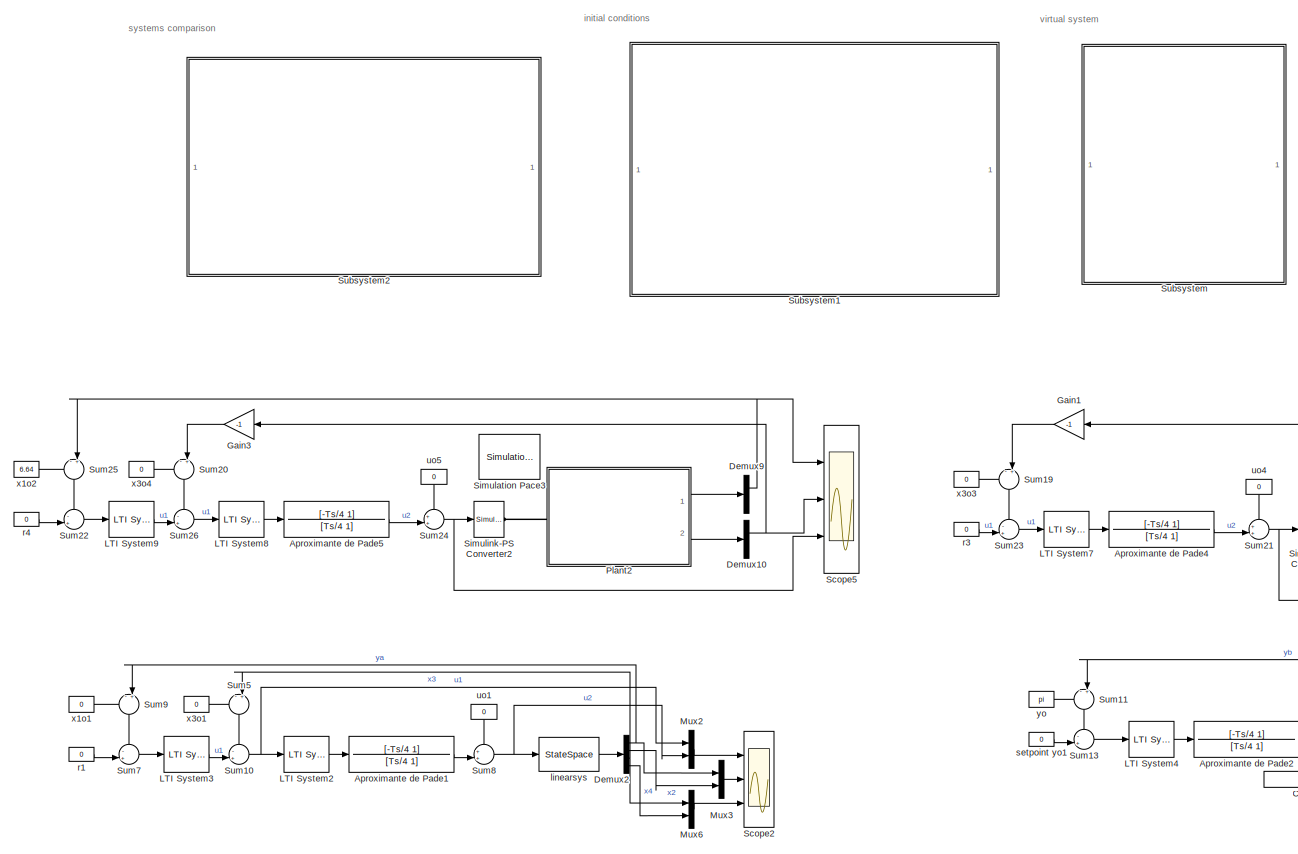
[diagram: root canvas - part 1/2, full width, middle band]
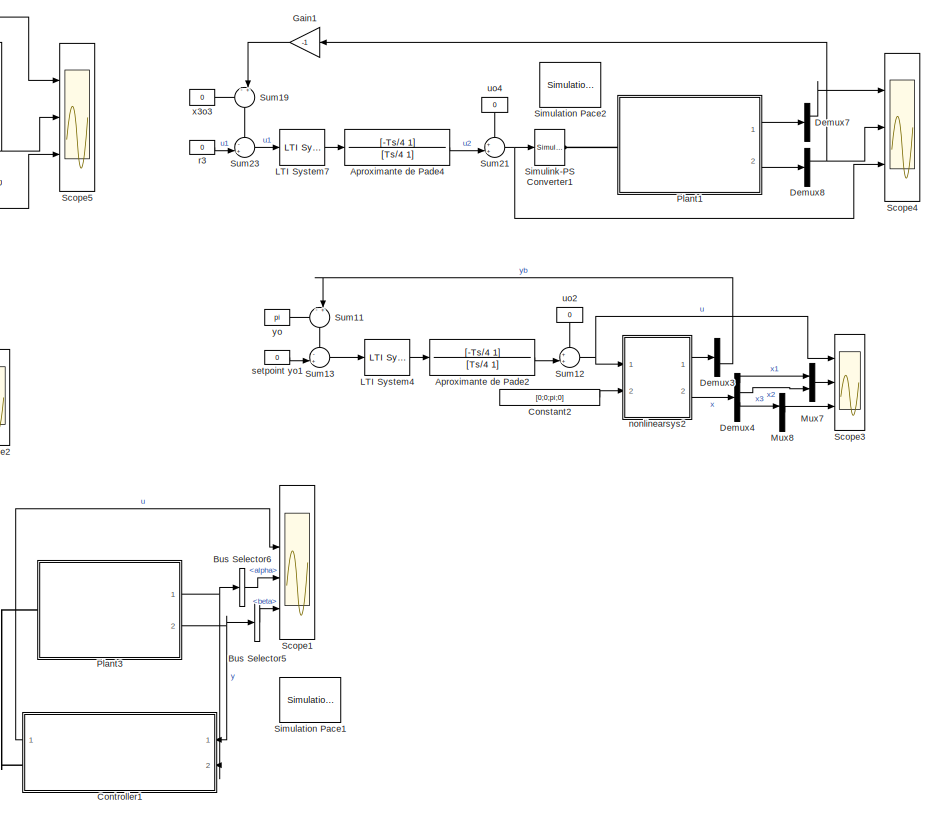
[diagram: root canvas - part 2/2, middle right region]
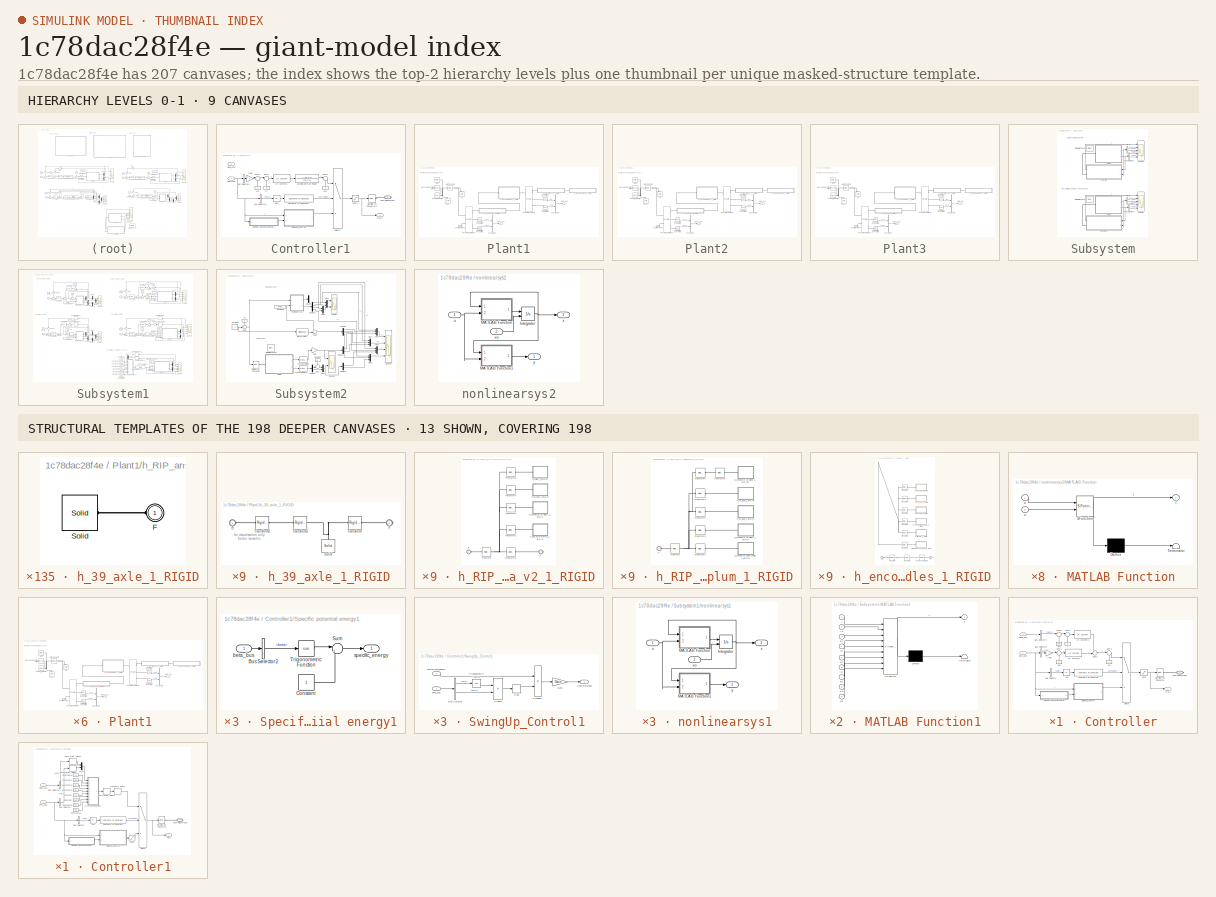
[diagram: thumbnail index - top-2 hierarchy levels (9 canvases) + 13 structural-template representatives of the remaining 198 canvases]
MODEL slx_1c78dac28f4e
KIND model
CONFIG AbsTol = auto
CONFIG EnableMultiTasking = off
CONFIG FixedStep = auto
CONFIG MaxStep = auto
CONFIG MinStep = auto
CONFIG RelTol = 1e-3
CONFIG SampleTimeConstraint = Unconstrained
CONFIG Solver = VariableStepAuto
CONFIG SolverName = VariableStepAuto
CONFIG StartTime = 0.0
CONFIG StopTime = 15
BLOCK [TransferFcn] Aproximante de Pade1
  Commented = on
  Denominator = [Ts/4 1]
  Numerator = [-Ts/4 1]
BLOCK [TransferFcn] Aproximante de Pade2
  Commented = on
  Denominator = [Ts/4 1]
  Numerator = [-Ts/4 1]
BLOCK [TransferFcn] Aproximante de Pade4
  Commented = on
  Denominator = [Ts/4 1]
  Numerator = [-Ts/4 1]
BLOCK [TransferFcn] Aproximante de Pade5
  Commented = on
  Denominator = [Ts/4 1]
  Numerator = [-Ts/4 1]
BLOCK [BusSelector] Bus Selector5
  Commented = on
  OutputAsBus = off
  OutputSignals = beta
  Ports = [1, 1]
BLOCK [BusSelector] Bus Selector6
  Commented = on
  OutputAsBus = off
  OutputSignals = alpha
  Ports = [1, 1]
BLOCK [Constant] Constant2
  Commented = on
  Value = [0;0;pi;0]
BLOCK [SubSystem] Controller1
  Commented = on
  Ports = [2, 1, 0, 0, 0, 0, 1]
  RequestExecContextInheritance = off
BLOCK [Abs] Controller1/Abs1
  SaturateOnIntegerOverflow = off
BLOCK [TransferFcn] Controller1/Aproximante de Pade2
  Denominator = [Ts/4 1]
  Numerator = [-Ts/4 1]
BLOCK [BusSelector] Controller1/Bus Selector3
  OutputAsBus = off
  OutputSignals = beta
  Ports = [1, 1]
BLOCK [BusSelector] Controller1/Bus Selector4
  OutputAsBus = off
  OutputSignals = beta
  Ports = [1, 1]
BLOCK [Reference] Controller1/Compare To Constant1  REF=simulink/Logic and Bit
Operations/Compare
To Constant
  Ports = [1, 1]
  SourceBlock = simulink/Logic and Bit\nOperations/Compare\nTo Constant
  SourceProductBaseCode = SL
  SourceProductName = Simulink
  SourceType = Compare To Constant
BLOCK [PMIOPort] Controller1/ControlledTorque
  Side = Right
BLOCK [Gain] Controller1/Gain
  Gain = -1
  OutDataTypeStr = Inherit: Inherit via internal rule
  ParamDataTypeStr = Inherit: Inherit via internal rule
  SaturateOnIntegerOverflow = off
BLOCK [Reference] Controller1/LTI System2  REF=cstblocks/LTI System
  Ports = [1, 1]
  SourceBlock = cstblocks/LTI System
  SourceProductBaseCode = CT
  SourceProductName = Control System Toolbox
  SourceType = LTI Block
BLOCK [Saturate] Controller1/Limit1
  InputPortMap = u0
  LowerLimit = -0.1e3
  Ports = [1, 1]
  UpperLimit = 0.1e3
BLOCK [Outport] Controller1/Out1
  IconDisplay = Port number
BLOCK [Reference] Controller1/Simulink-PS Converter1  REF=nesl_utility/Simulink-PS
Converter
  Ports = [1, 0, 0, 0, 0, 0, 1]
  SourceBlock = nesl_utility/Simulink-PS\nConverter
  SourceProductBaseCode = SS
  SourceProductName = Simscape
  SourceType = Simulink-PS\nConverter
BLOCK [SubSystem] Controller1/Specific potential energy1
  Ports = [1, 1]
  RequestExecContextInheritance = off
BLOCK [BusSelector] Controller1/Specific potential energy1/Bus Selector2
  OutputAsBus = off
  OutputSignals = beta
  Ports = [1, 1]
BLOCK [Constant] Controller1/Specific potential energy1/Constant
BLOCK [Sum] Controller1/Specific potential energy1/Sum
  IconShape = round
  InputSameDT = off
  Inputs = |+-
  OutDataTypeStr = Inherit: Inherit via internal rule
  Ports = [2, 1]
  SaturateOnIntegerOverflow = off
BLOCK [Trigonometry] Controller1/Specific potential energy1/Trigonometric Function
  Operator = cos
  Ports = [1, 1]
BLOCK [Inport] Controller1/Specific potential energy1/beta_bus
  IconDisplay = Port number
BLOCK [Outport] Controller1/Specific potential energy1/specific_energy
  IconDisplay = Port number
BLOCK [Sum] Controller1/Sum4
  IconShape = round
  InputSameDT = off
  Inputs = |+-
  OutDataTypeStr = Inherit: Inherit via internal rule
  Ports = [2, 1]
  SaturateOnIntegerOverflow = off
BLOCK [Sum] Controller1/Sum5
  IconShape = round
  InputSameDT = off
  Inputs = |-+
  OutDataTypeStr = Inherit: Inherit via internal rule
  Ports = [2, 1]
  SaturateOnIntegerOverflow = off
BLOCK [Sum] Controller1/Sum6
  IconShape = round
  InputSameDT = off
  Inputs = |++
  OutDataTypeStr = Inherit: Inherit via internal rule
  Ports = [2, 1]
  SaturateOnIntegerOverflow = off
BLOCK [SubSystem] Controller1/SwingUp_Control1
  Ports = [2, 1]
  RequestExecContextInheritance = off
BLOCK [BusSelector] Controller1/SwingUp_Control1/Bus Selector
  OutputAsBus = off
  OutputSignals = beta,dbeta
  Ports = [1, 2]
BLOCK [Outport] Controller1/SwingUp_Control1/ControlOutput
  IconDisplay = Port number
BLOCK [Gain] Controller1/SwingUp_Control1/Gain
  Gain = Gain
  OutDataTypeStr = Inherit: Inherit via internal rule
  ParamDataTypeStr = Inherit: Inherit via internal rule
  SaturateOnIntegerOverflow = off
BLOCK [Product] Controller1/SwingUp_Control1/Product
  InputSameDT = off
  OutDataTypeStr = Inherit: Inherit via internal rule
  Ports = [2, 1]
  RndMeth = Floor
  SaturateOnIntegerOverflow = off
BLOCK [Product] Controller1/SwingUp_Control1/Product1
  InputSameDT = off
  OutDataTypeStr = Inherit: Inherit via internal rule
  Ports = [2, 1]
  RndMeth = Floor
  SaturateOnIntegerOverflow = off
BLOCK [Signum] Controller1/SwingUp_Control1/Sign
BLOCK [Trigonometry] Controller1/SwingUp_Control1/Trigonometric Function
  Operator = cos
  Ports = [1, 1]
BLOCK [Inport] Controller1/SwingUp_Control1/beta_bus
  IconDisplay = Port number
BLOCK [Inport] Controller1/SwingUp_Control1/normalized_energy
  IconDisplay = Port number
  Port = 2
BLOCK [Switch] Controller1/Switch1
  Criteria = u2 > Threshold
  InputSameDT = off
  SaturateOnIntegerOverflow = off
BLOCK [Inport] Controller1/alpha_bus
  IconDisplay = Port number
  Port = 2
BLOCK [Inport] Controller1/beta_bus
  IconDisplay = Port number
BLOCK [Constant] Controller1/r1
  Value = 0
BLOCK [Constant] Controller1/uo1
  Value = 0
BLOCK [Constant] Controller1/yo1
  Value = 0
BLOCK [Demux] Demux10
  Commented = on
  DisplayOption = bar
  Outputs = 2
  Ports = [1, 2]
BLOCK [Demux] Demux2
  Commented = on
  DisplayOption = bar
  Ports = [1, 4]
BLOCK [Demux] Demux3
  Commented = on
  DisplayOption = bar
  Outputs = 2
  Ports = [1, 2]
BLOCK [Demux] Demux4
  Commented = on
  DisplayOption = bar
  Ports = [1, 4]
BLOCK [Demux] Demux7
  Commented = on
  DisplayOption = bar
  Outputs = 2
  Ports = [1, 2]
BLOCK [Demux] Demux8
  Commented = on
  DisplayOption = bar
  Outputs = 2
  Ports = [1, 2]
BLOCK [Demux] Demux9
  Commented = on
  DisplayOption = bar
  Outputs = 2
  Ports = [1, 2]
BLOCK [Gain] Gain1
  Commented = on
  Gain = -1
  OutDataTypeStr = Inherit: Inherit via internal rule
  ParamDataTypeStr = Inherit: Inherit via internal rule
  SaturateOnIntegerOverflow = off
BLOCK [Gain] Gain3
  Commented = on
  Gain = -1
  OutDataTypeStr = Inherit: Inherit via internal rule
  ParamDataTypeStr = Inherit: Inherit via internal rule
  SaturateOnIntegerOverflow = off
BLOCK [Reference] LTI System2  REF=cstblocks/LTI System
  Commented = on
  Ports = [1, 1]
  SourceBlock = cstblocks/LTI System
  SourceProductBaseCode = CT
  SourceProductName = Control System Toolbox
  SourceType = LTI Block
BLOCK [Reference] LTI System3  REF=cstblocks/LTI System
  Commented = on
  Ports = [1, 1]
  SourceBlock = cstblocks/LTI System
  SourceProductBaseCode = CT
  SourceProductName = Control System Toolbox
  SourceType = LTI Block
BLOCK [Reference] LTI System4  REF=cstblocks/LTI System
  Commented = on
  Ports = [1, 1]
  SourceBlock = cstblocks/LTI System
  SourceProductBaseCode = CT
  SourceProductName = Control System Toolbox
  SourceType = LTI Block
BLOCK [Reference] LTI System7  REF=cstblocks/LTI System
  Commented = on
  Ports = [1, 1]
  SourceBlock = cstblocks/LTI System
  SourceProductBaseCode = CT
  SourceProductName = Control System Toolbox
  SourceType = LTI Block
BLOCK [Reference] LTI System8  REF=cstblocks/LTI System
  Commented = on
  Ports = [1, 1]
  SourceBlock = cstblocks/LTI System
  SourceProductBaseCode = CT
  SourceProductName = Control System Toolbox
  SourceType = LTI Block
BLOCK [Reference] LTI System9  REF=cstblocks/LTI System
  Commented = on
  Ports = [1, 1]
  SourceBlock = cstblocks/LTI System
  SourceProductBaseCode = CT
  SourceProductName = Control System Toolbox
  SourceType = LTI Block
BLOCK [Mux] Mux2
  Commented = on
  DisplayOption = bar
  Inputs = 2
  Ports = [2, 1]
BLOCK [Mux] Mux3
  Commented = on
  DisplayOption = bar
  Inputs = 2
  Ports = [2, 1]
BLOCK [Mux] Mux6
  Commented = on
  DisplayOption = bar
  Inputs = 2
  Ports = [2, 1]
BLOCK [Mux] Mux7
  Commented = on
  DisplayOption = bar
  Inputs = 2
  Ports = [2, 1]
BLOCK [Mux] Mux8
  Commented = on
  DisplayOption = bar
  Inputs = 2
  Ports = [2, 1]
BLOCK [SubSystem] Plant1
  Commented = on
  Ports = [0, 2, 0, 0, 0, 1]
  RequestExecContextInheritance = off
BLOCK [Reference] Plant1/Base  REF=sm_lib/Body Elements/Solid
  Ports = [0, 0, 0, 0, 0, 0, 1]
  SourceBlock = sm_lib/Body Elements/Solid
  SourceProductBaseCode = MS
  SourceProductName = Simscape Multibody
  SourceType = Solid
BLOCK [BusCreator] Plant1/Bus Creator
  DisplayOption = bar
  InheritFromInputs = on
  Inputs = 2
  Ports = [2, 1]
BLOCK [BusCreator] Plant1/Bus Creator1
  DisplayOption = bar
  InheritFromInputs = on
  Inputs = 2
  Ports = [2, 1]
BLOCK [PMIOPort] Plant1/ControlleTorque
  Side = Left
BLOCK [Reference] Plant1/MechanismConfiguration  REF=sm_lib/Utilities/Mechanism
Configuration
  Ports = [0, 0, 0, 0, 0, 0, 1]
  SourceBlock = sm_lib/Utilities/Mechanism\nConfiguration
  SourceProductBaseCode = MS
  SourceProductName = Simscape Multibody
  SourceType = Mechanism\nConfiguration
BLOCK [Reference] Plant1/PS-Simulink Converter  REF=nesl_utility/PS-Simulink
Converter
  Ports = [0, 1, 0, 0, 0, 1]
  SourceBlock = nesl_utility/PS-Simulink\nConverter
  SourceProductBaseCode = SS
  SourceProductName = Simscape
  SourceType = PS-Simulink\nConverter
BLOCK [Reference] Plant1/PS-Simulink Converter1  REF=nesl_utility/PS-Simulink
Converter
  Ports = [0, 1, 0, 0, 0, 1]
  SourceBlock = nesl_utility/PS-Simulink\nConverter
  SourceProductBaseCode = SS
  SourceProductName = Simscape
  SourceType = PS-Simulink\nConverter
BLOCK [Reference] Plant1/PS-Simulink Converter2  REF=nesl_utility/PS-Simulink
Converter
  Ports = [0, 1, 0, 0, 0, 1]
  SourceBlock = nesl_utility/PS-Simulink\nConverter
  SourceProductBaseCode = SS
  SourceProductName = Simscape
  SourceType = PS-Simulink\nConverter
BLOCK [Reference] Plant1/PS-Simulink Converter4  REF=nesl_utility/PS-Simulink
Converter
  Ports = [0, 1, 0, 0, 0, 1]
  SourceBlock = nesl_utility/PS-Simulink\nConverter
  SourceProductBaseCode = SS
  SourceProductName = Simscape
  SourceType = PS-Simulink\nConverter
BLOCK [Reference] Plant1/Pin  REF=sm_lib/Body Elements/Solid
  Ports = [0, 0, 0, 0, 0, 0, 1]
  SourceBlock = sm_lib/Body Elements/Solid
  SourceProductBaseCode = MS
  SourceProductName = Simscape Multibody
  SourceType = Solid
BLOCK [Reference] Plant1/Revolute Joint alpha  REF=sm_lib/Joints/Revolute Joint
  Ports = [0, 0, 0, 0, 0, 2, 3]
  SourceBlock = sm_lib/Joints/Revolute Joint
  SourceProductBaseCode = MS
  SourceProductName = Simscape Multibody
  SourceType = Revolute Joint
BLOCK [Reference] Plant1/Revolute Joint beta  REF=sm_lib/Joints/Revolute Joint
  Ports = [0, 0, 0, 0, 0, 2, 3]
  SourceBlock = sm_lib/Joints/Revolute Joint
  SourceProductBaseCode = MS
  SourceProductName = Simscape Multibody
  SourceType = Revolute Joint
BLOCK [Reference] Plant1/Rigid Transform  REF=sm_lib/Frames and
Transforms/Rigid
Transform
  Ports = [0, 0, 0, 0, 0, 1, 1]
  SourceBlock = sm_lib/Frames and\nTransforms/Rigid\nTransform
  SourceProductBaseCode = MS
  SourceProductName = Simscape Multibody
  SourceType = Rigid\nTransform
BLOCK [Reference] Plant1/Solver Configuration  REF=nesl_utility/Solver
Configuration
  Ports = [0, 0, 0, 0, 0, 0, 1]
  SourceBlock = nesl_utility/Solver\nConfiguration
  SourceProductBaseCode = SS
  SourceProductName = Simscape
  SourceType = Solver\nConfiguration
BLOCK [Reference] Plant1/World  REF=sm_lib/Frames and
Transforms/World Frame
  Ports = [0, 0, 0, 0, 0, 0, 1]
  SourceBlock = sm_lib/Frames and\nTransforms/World Frame
  SourceProductBaseCode = MS
  SourceProductName = Simscape Multibody
  SourceType = World Frame
BLOCK [Outport] Plant1/alpha_bus
  IconDisplay = Port number
BLOCK [Outport] Plant1/beta_bus
  IconDisplay = Port number
  Port = 2
BLOCK [SubSystem] Plant1/h_39_axle_1_RIGID
  Ports = [0, 0, 0, 0, 0, 1, 1]
  RequestExecContextInheritance = off
BLOCK [PMIOPort] Plant1/h_39_axle_1_RIGID/B
  Side = Left
BLOCK [PMIOPort] Plant1/h_39_axle_1_RIGID/F
  Port = 2
  Side = Right
BLOCK [Reference] Plant1/h_39_axle_1_RIGID/Solid  REF=sm_lib/Body Elements/Solid
  Ports = [0, 0, 0, 0, 0, 0, 1]
  SourceBlock = sm_lib/Body Elements/Solid
  SourceProductBaseCode = MS
  SourceProductName = Simscape Multibody
  SourceType = Solid
BLOCK [Reference] Plant1/h_39_axle_1_RIGID/Transform  REF=sm_lib/Frames and
Transforms/Rigid
Transform
  Ports = [0, 0, 0, 0, 0, 1, 1]
  SourceBlock = sm_lib/Frames and\nTransforms/Rigid\nTransform
  SourceProductBaseCode = MS
  SourceProductName = Simscape Multibody
  SourceType = Rigid\nTransform
BLOCK [Reference] Plant1/h_39_axle_1_RIGID/Transform1  REF=sm_lib/Frames and
Transforms/Rigid
Transform
  Ports = [0, 0, 0, 0, 0, 1, 1]
  SourceBlock = sm_lib/Frames and\nTransforms/Rigid\nTransform
  SourceProductBaseCode = MS
  SourceProductName = Simscape Multibody
  SourceType = Rigid\nTransform
BLOCK [Reference] Plant1/h_39_axle_1_RIGID/Transform2  REF=sm_lib/Frames and
Transforms/Rigid
Transform
  Ports = [0, 0, 0, 0, 0, 1, 1]
  SourceBlock = sm_lib/Frames and\nTransforms/Rigid\nTransform
  SourceProductBaseCode = MS
  SourceProductName = Simscape Multibody
  SourceType = Rigid\nTransform
BLOCK [SubSystem] Plant1/h_RIP_arm_v2_1_RIGID
  Ports = [0, 0, 0, 0, 0, 1, 1]
  RequestExecContextInheritance = off
BLOCK [PMIOPort] Plant1/h_RIP_arm_v2_1_RIGID/B
  Side = Left
BLOCK [PMIOPort] Plant1/h_RIP_arm_v2_1_RIGID/F
  Port = 2
  Side = Right
BLOCK [Reference] Plant1/h_RIP_arm_v2_1_RIGID/Transform  REF=sm_lib/Frames and
Transforms/Rigid
Transform
  Ports = [0, 0, 0, 0, 0, 1, 1]
  SourceBlock = sm_lib/Frames and\nTransforms/Rigid\nTransform
  SourceProductBaseCode = MS
  SourceProductName = Simscape Multibody
  SourceType = Rigid\nTransform
BLOCK [Reference] Plant1/h_RIP_arm_v2_1_RIGID/Transform1  REF=sm_lib/Frames and
Transforms/Rigid
Transform
  Ports = [0, 0, 0, 0, 0, 1, 1]
  SourceBlock = sm_lib/Frames and\nTransforms/Rigid\nTransform
  SourceProductBaseCode = MS
  SourceProductName = Simscape Multibody
  SourceType = Rigid\nTransform
BLOCK [Reference] Plant1/h_RIP_arm_v2_1_RIGID/Transform2  REF=sm_lib/Frames and
Transforms/Rigid
Transform
  Ports = [0, 0, 0, 0, 0, 1, 1]
  SourceBlock = sm_lib/Frames and\nTransforms/Rigid\nTransform
  SourceProductBaseCode = MS
  SourceProductName = Simscape Multibody
  SourceType = Rigid\nTransform
BLOCK [Reference] Plant1/h_RIP_arm_v2_1_RIGID/Transform3  REF=sm_lib/Frames and
Transforms/Rigid
Transform
  Ports = [0, 0, 0, 0, 0, 1, 1]
  SourceBlock = sm_lib/Frames and\nTransforms/Rigid\nTransform
  SourceProductBaseCode = MS
  SourceProductName = Simscape Multibody
  SourceType = Rigid\nTransform
BLOCK [Reference] Plant1/h_RIP_arm_v2_1_RIGID/Transform4  REF=sm_lib/Frames and
Transforms/Rigid
Transform
  Ports = [0, 0, 0, 0, 0, 1, 1]
  SourceBlock = sm_lib/Frames and\nTransforms/Rigid\nTransform
  SourceProductBaseCode = MS
  SourceProductName = Simscape Multibody
  SourceType = Rigid\nTransform
BLOCK [Reference] Plant1/h_RIP_arm_v2_1_RIGID/Transform5  REF=sm_lib/Frames and
Transforms/Rigid
Transform
  Ports = [0, 0, 0, 0, 0, 1, 1]
  SourceBlock = sm_lib/Frames and\nTransforms/Rigid\nTransform
  SourceProductBaseCode = MS
  SourceProductName = Simscape Multibody
  SourceType = Rigid\nTransform
BLOCK [SubSystem] Plant1/h_RIP_arm_v2_1_RIGID/h_39_axle_1_RIGID
  Ports = [0, 0, 0, 0, 0, 1]
  RequestExecContextInheritance = off
BLOCK [PMIOPort] Plant1/h_RIP_arm_v2_1_RIGID/h_39_axle_1_RIGID/F
  Side = Left
BLOCK [Reference] Plant1/h_RIP_arm_v2_1_RIGID/h_39_axle_1_RIGID/Solid  REF=sm_lib/Body Elements/Solid
  Ports = [0, 0, 0, 0, 0, 0, 1]
  SourceBlock = sm_lib/Body Elements/Solid
  SourceProductBaseCode = MS
  SourceProductName = Simscape Multibody
  SourceType = Solid
BLOCK [SubSystem] Plant1/h_RIP_arm_v2_1_RIGID/h_axle_asymmetric_1_RIGID
  Ports = [0, 0, 0, 0, 0, 1]
  RequestExecContextInheritance = off
BLOCK [PMIOPort] Plant1/h_RIP_arm_v2_1_RIGID/h_axle_asymmetric_1_RIGID/F
  Side = Left
BLOCK [Reference] Plant1/h_RIP_arm_v2_1_RIGID/h_axle_asymmetric_1_RIGID/Solid  REF=sm_lib/Body Elements/Solid
  Ports = [0, 0, 0, 0, 0, 0, 1]
  SourceBlock = sm_lib/Body Elements/Solid
  SourceProductBaseCode = MS
  SourceProductName = Simscape Multibody
  SourceType = Solid
BLOCK [SubSystem] Plant1/h_RIP_arm_v2_1_RIGID/h_collar_1_RIGID
  Ports = [0, 0, 0, 0, 0, 1]
  RequestExecContextInheritance = off
BLOCK [PMIOPort] Plant1/h_RIP_arm_v2_1_RIGID/h_collar_1_RIGID/F
  Side = Left
BLOCK [Reference] Plant1/h_RIP_arm_v2_1_RIGID/h_collar_1_RIGID/Solid  REF=sm_lib/Body Elements/Solid
  Ports = [0, 0, 0, 0, 0, 0, 1]
  SourceBlock = sm_lib/Body Elements/Solid
  SourceProductBaseCode = MS
  SourceProductName = Simscape Multibody
  SourceType = Solid
BLOCK [SubSystem] Plant1/h_RIP_arm_v2_1_RIGID/h_connector_straight_1_RIGID
  Ports = [0, 0, 0, 0, 0, 1]
  RequestExecContextInheritance = off
BLOCK [PMIOPort] Plant1/h_RIP_arm_v2_1_RIGID/h_connector_straight_1_RIGID/F
  Side = Left
BLOCK [Reference] Plant1/h_RIP_arm_v2_1_RIGID/h_connector_straight_1_RIGID/Solid  REF=sm_lib/Body Elements/Solid
  Ports = [0, 0, 0, 0, 0, 0, 1]
  SourceBlock = sm_lib/Body Elements/Solid
  SourceProductBaseCode = MS
  SourceProductName = Simscape Multibody
  SourceType = Solid
BLOCK [SubSystem] Plant1/h_RIP_pendulum_1_RIGID
  Ports = [0, 0, 0, 0, 0, 1]
  RequestExecContextInheritance = off
BLOCK [PMIOPort] Plant1/h_RIP_pendulum_1_RIGID/F
  Side = Left
BLOCK [Reference] Plant1/h_RIP_pendulum_1_RIGID/Transform  REF=sm_lib/Frames and
Transforms/Rigid
Transform
  Ports = [0, 0, 0, 0, 0, 1, 1]
  SourceBlock = sm_lib/Frames and\nTransforms/Rigid\nTransform
  SourceProductBaseCode = MS
  SourceProductName = Simscape Multibody
  SourceType = Rigid\nTransform
BLOCK [Reference] Plant1/h_RIP_pendulum_1_RIGID/Transform1  REF=sm_lib/Frames and
Transforms/Rigid
Transform
  Ports = [0, 0, 0, 0, 0, 1, 1]
  SourceBlock = sm_lib/Frames and\nTransforms/Rigid\nTransform
  SourceProductBaseCode = MS
  SourceProductName = Simscape Multibody
  SourceType = Rigid\nTransform
BLOCK [Reference] Plant1/h_RIP_pendulum_1_RIGID/Transform2  REF=sm_lib/Frames and
Transforms/Rigid
Transform
  Ports = [0, 0, 0, 0, 0, 1, 1]
  SourceBlock = sm_lib/Frames and\nTransforms/Rigid\nTransform
  SourceProductBaseCode = MS
  SourceProductName = Simscape Multibody
  SourceType = Rigid\nTransform
BLOCK [Reference] Plant1/h_RIP_pendulum_1_RIGID/Transform3  REF=sm_lib/Frames and
Transforms/Rigid
Transform
  Ports = [0, 0, 0, 0, 0, 1, 1]
  SourceBlock = sm_lib/Frames and\nTransforms/Rigid\nTransform
  SourceProductBaseCode = MS
  SourceProductName = Simscape Multibody
  SourceType = Rigid\nTransform
BLOCK [Reference] Plant1/h_RIP_pendulum_1_RIGID/Transform4  REF=sm_lib/Frames and
Transforms/Rigid
Transform
  Ports = [0, 0, 0, 0, 0, 1, 1]
  SourceBlock = sm_lib/Frames and\nTransforms/Rigid\nTransform
  SourceProductBaseCode = MS
  SourceProductName = Simscape Multibody
  SourceType = Rigid\nTransform
BLOCK [Reference] Plant1/h_RIP_pendulum_1_RIGID/Transform5  REF=sm_lib/Frames and
Transforms/Rigid
Transform
  Ports = [0, 0, 0, 0, 0, 1, 1]
  SourceBlock = sm_lib/Frames and\nTransforms/Rigid\nTransform
  SourceProductBaseCode = MS
  SourceProductName = Simscape Multibody
  SourceType = Rigid\nTransform
BLOCK [Reference] Plant1/h_RIP_pendulum_1_RIGID/Transform6  REF=sm_lib/Frames and
Transforms/Rigid
Transform
  Ports = [0, 0, 0, 0, 0, 1, 1]
  SourceBlock = sm_lib/Frames and\nTransforms/Rigid\nTransform
  SourceProductBaseCode = MS
  SourceProductName = Simscape Multibody
  SourceType = Rigid\nTransform
BLOCK [SubSystem] Plant1/h_RIP_pendulum_1_RIGID/h_10_axle_1_RIGID
  Ports = [0, 0, 0, 0, 0, 1]
  RequestExecContextInheritance = off
BLOCK [PMIOPort] Plant1/h_RIP_pendulum_1_RIGID/h_10_axle_1_RIGID/F
  Side = Left
BLOCK [Reference] Plant1/h_RIP_pendulum_1_RIGID/h_10_axle_1_RIGID/Solid  REF=sm_lib/Body Elements/Solid
  Ports = [0, 0, 0, 0, 0, 0, 1]
  SourceBlock = sm_lib/Body Elements/Solid
  SourceProductBaseCode = MS
  SourceProductName = Simscape Multibody
  SourceType = Solid
BLOCK [SubSystem] Plant1/h_RIP_pendulum_1_RIGID/h_79_axle_1_RIGID
  Ports = [0, 0, 0, 0, 0, 1]
  RequestExecContextInheritance = off
BLOCK [PMIOPort] Plant1/h_RIP_pendulum_1_RIGID/h_79_axle_1_RIGID/F
  Side = Left
BLOCK [Reference] Plant1/h_RIP_pendulum_1_RIGID/h_79_axle_1_RIGID/Solid  REF=sm_lib/Body Elements/Solid
  Ports = [0, 0, 0, 0, 0, 0, 1]
  SourceBlock = sm_lib/Body Elements/Solid
  SourceProductBaseCode = MS
  SourceProductName = Simscape Multibody
  SourceType = Solid
BLOCK [SubSystem] Plant1/h_RIP_pendulum_1_RIGID/h_connector_right_angle_1_RIGID
  Ports = [0, 0, 0, 0, 0, 1]
  RequestExecContextInheritance = off
BLOCK [PMIOPort] Plant1/h_RIP_pendulum_1_RIGID/h_connector_right_angle_1_RIGID/F
  Side = Left
BLOCK [Reference] Plant1/h_RIP_pendulum_1_RIGID/h_connector_right_angle_1_RIGID/Solid  REF=sm_lib/Body Elements/Solid
  Ports = [0, 0, 0, 0, 0, 0, 1]
  SourceBlock = sm_lib/Body Elements/Solid
  SourceProductBaseCode = MS
  SourceProductName = Simscape Multibody
  SourceType = Solid
BLOCK [SubSystem] Plant1/h_RIP_pendulum_1_RIGID/h_connector_straight_1_RIGID
  Ports = [0, 0, 0, 0, 0, 1]
  RequestExecContextInheritance = off
BLOCK [PMIOPort] Plant1/h_RIP_pendulum_1_RIGID/h_connector_straight_1_RIGID/F
  Side = Left
BLOCK [Reference] Plant1/h_RIP_pendulum_1_RIGID/h_connector_straight_1_RIGID/Solid  REF=sm_lib/Body Elements/Solid
  Ports = [0, 0, 0, 0, 0, 0, 1]
  SourceBlock = sm_lib/Body Elements/Solid
  SourceProductBaseCode = MS
  SourceProductName = Simscape Multibody
  SourceType = Solid
BLOCK [SubSystem] Plant1/h_RIP_pendulum_1_RIGID/h_connector_straight_1_RIGID1
  Ports = [0, 0, 0, 0, 0, 1]
  RequestExecContextInheritance = off
BLOCK [PMIOPort] Plant1/h_RIP_pendulum_1_RIGID/h_connector_straight_1_RIGID1/F
  Side = Left
BLOCK [Reference] Plant1/h_RIP_pendulum_1_RIGID/h_connector_straight_1_RIGID1/Solid  REF=sm_lib/Body Elements/Solid
  Ports = [0, 0, 0, 0, 0, 0, 1]
  SourceBlock = sm_lib/Body Elements/Solid
  SourceProductBaseCode = MS
  SourceProductName = Simscape Multibody
  SourceType = Solid
BLOCK [SubSystem] Plant1/h_encoderaxles_1_RIGID
  Ports = [0, 0, 0, 0, 0, 1, 1]
  RequestExecContextInheritance = off
BLOCK [PMIOPort] Plant1/h_encoderaxles_1_RIGID/B
  Side = Left
BLOCK [Reference] Plant1/h_encoderaxles_1_RIGID/Design_Correction  REF=sm_lib/Frames and
Transforms/Rigid
Transform
  Ports = [0, 0, 0, 0, 0, 1, 1]
  SourceBlock = sm_lib/Frames and\nTransforms/Rigid\nTransform
  SourceProductBaseCode = MS
  SourceProductName = Simscape Multibody
  SourceType = Rigid\nTransform
BLOCK [PMIOPort] Plant1/h_encoderaxles_1_RIGID/F
  Port = 2
  Side = Right
BLOCK [Reference] Plant1/h_encoderaxles_1_RIGID/Transform  REF=sm_lib/Frames and
Transforms/Rigid
Transform
  Ports = [0, 0, 0, 0, 0, 1, 1]
  SourceBlock = sm_lib/Frames and\nTransforms/Rigid\nTransform
  SourceProductBaseCode = MS
  SourceProductName = Simscape Multibody
  SourceType = Rigid\nTransform
BLOCK [Reference] Plant1/h_encoderaxles_1_RIGID/Transform1  REF=sm_lib/Frames and
Transforms/Rigid
Transform
  Ports = [0, 0, 0, 0, 0, 1, 1]
  SourceBlock = sm_lib/Frames and\nTransforms/Rigid\nTransform
  SourceProductBaseCode = MS
  SourceProductName = Simscape Multibody
  SourceType = Rigid\nTransform
BLOCK [Reference] Plant1/h_encoderaxles_1_RIGID/Transform2  REF=sm_lib/Frames and
Transforms/Rigid
Transform
  Ports = [0, 0, 0, 0, 0, 1, 1]
  SourceBlock = sm_lib/Frames and\nTransforms/Rigid\nTransform
  SourceProductBaseCode = MS
  SourceProductName = Simscape Multibody
  SourceType = Rigid\nTransform
BLOCK [Reference] Plant1/h_encoderaxles_1_RIGID/Transform3  REF=sm_lib/Frames and
Transforms/Rigid
Transform
  Ports = [0, 0, 0, 0, 0, 1, 1]
  SourceBlock = sm_lib/Frames and\nTransforms/Rigid\nTransform
  SourceProductBaseCode = MS
  SourceProductName = Simscape Multibody
  SourceType = Rigid\nTransform
BLOCK [Reference] Plant1/h_encoderaxles_1_RIGID/Transform4  REF=sm_lib/Frames and
Transforms/Rigid
Transform
  Ports = [0, 0, 0, 0, 0, 1, 1]
  SourceBlock = sm_lib/Frames and\nTransforms/Rigid\nTransform
  SourceProductBaseCode = MS
  SourceProductName = Simscape Multibody
  SourceType = Rigid\nTransform
BLOCK [Reference] Plant1/h_encoderaxles_1_RIGID/Transform5  REF=sm_lib/Frames and
Transforms/Rigid
Transform
  Ports = [0, 0, 0, 0, 0, 1, 1]
  SourceBlock = sm_lib/Frames and\nTransforms/Rigid\nTransform
  SourceProductBaseCode = MS
  SourceProductName = Simscape Multibody
  SourceType = Rigid\nTransform
BLOCK [Reference] Plant1/h_encoderaxles_1_RIGID/Transform6  REF=sm_lib/Frames and
Transforms/Rigid
Transform
  Ports = [0, 0, 0, 0, 0, 1, 1]
  SourceBlock = sm_lib/Frames and\nTransforms/Rigid\nTransform
  SourceProductBaseCode = MS
  SourceProductName = Simscape Multibody
  SourceType = Rigid\nTransform
BLOCK [Reference] Plant1/h_encoderaxles_1_RIGID/Transform7  REF=sm_lib/Frames and
Transforms/Rigid
Transform
  Ports = [0, 0, 0, 0, 0, 1, 1]
  SourceBlock = sm_lib/Frames and\nTransforms/Rigid\nTransform
  SourceProductBaseCode = MS
  SourceProductName = Simscape Multibody
  SourceType = Rigid\nTransform
BLOCK [SubSystem] Plant1/h_encoderaxles_1_RIGID/connector_right_angle_1_RIGID
  Ports = [0, 0, 0, 0, 0, 1]
  RequestExecContextInheritance = off
BLOCK [PMIOPort] Plant1/h_encoderaxles_1_RIGID/connector_right_angle_1_RIGID/F
  Side = Left
BLOCK [Reference] Plant1/h_encoderaxles_1_RIGID/connector_right_angle_1_RIGID/Solid  REF=sm_lib/Body Elements/Solid
  Ports = [0, 0, 0, 0, 0, 0, 1]
  SourceBlock = sm_lib/Body Elements/Solid
  SourceProductBaseCode = MS
  SourceProductName = Simscape Multibody
  SourceType = Solid
BLOCK [SubSystem] Plant1/h_encoderaxles_1_RIGID/glidewheel_encoder_2_RIGID
  Ports = [0, 0, 0, 0, 0, 1]
  RequestExecContextInheritance = off
BLOCK [PMIOPort] Plant1/h_encoderaxles_1_RIGID/glidewheel_encoder_2_RIGID/F
  Side = Left
BLOCK [Reference] Plant1/h_encoderaxles_1_RIGID/glidewheel_encoder_2_RIGID/Solid  REF=sm_lib/Body Elements/Solid
  Ports = [0, 0, 0, 0, 0, 0, 1]
  SourceBlock = sm_lib/Body Elements/Solid
  SourceProductBaseCode = MS
  SourceProductName = Simscape Multibody
  SourceType = Solid
BLOCK [SubSystem] Plant1/h_encoderaxles_1_RIGID/h_triangle_1_RIGID
  Ports = [0, 0, 0, 0, 0, 1]
  RequestExecContextInheritance = off
BLOCK [PMIOPort] Plant1/h_encoderaxles_1_RIGID/h_triangle_1_RIGID/F
  Side = Left
BLOCK [Reference] Plant1/h_encoderaxles_1_RIGID/h_triangle_1_RIGID/Solid  REF=sm_lib/Body Elements/Solid
  Ports = [0, 0, 0, 0, 0, 0, 1]
  SourceBlock = sm_lib/Body Elements/Solid
  SourceProductBaseCode = MS
  SourceProductName = Simscape Multibody
  SourceType = Solid
BLOCK [SubSystem] Plant1/h_encoderaxles_1_RIGID/x86_axle_4_RIGID
  Ports = [0, 0, 0, 0, 0, 1]
  RequestExecContextInheritance = off
BLOCK [PMIOPort] Plant1/h_encoderaxles_1_RIGID/x86_axle_4_RIGID/F
  Side = Left
BLOCK [Reference] Plant1/h_encoderaxles_1_RIGID/x86_axle_4_RIGID/Solid  REF=sm_lib/Body Elements/Solid
  Ports = [0, 0, 0, 0, 0, 0, 1]
  SourceBlock = sm_lib/Body Elements/Solid
  SourceProductBaseCode = MS
  SourceProductName = Simscape Multibody
  SourceType = Solid
BLOCK [SubSystem] Plant1/h_encoderaxles_1_RIGID/x86_axle_5_RIGID
  Ports = [0, 0, 0, 0, 0, 1]
  RequestExecContextInheritance = off
BLOCK [PMIOPort] Plant1/h_encoderaxles_1_RIGID/x86_axle_5_RIGID/F
  Side = Left
BLOCK [Reference] Plant1/h_encoderaxles_1_RIGID/x86_axle_5_RIGID/Solid  REF=sm_lib/Body Elements/Solid
  Ports = [0, 0, 0, 0, 0, 0, 1]
  SourceBlock = sm_lib/Body Elements/Solid
  SourceProductBaseCode = MS
  SourceProductName = Simscape Multibody
  SourceType = Solid
BLOCK [SubSystem] Plant1/h_encoderaxles_1_RIGID/x86_axle_6_RIGID
  Ports = [0, 0, 0, 0, 0, 1]
  RequestExecContextInheritance = off
BLOCK [PMIOPort] Plant1/h_encoderaxles_1_RIGID/x86_axle_6_RIGID/F
  Side = Left
BLOCK [Reference] Plant1/h_encoderaxles_1_RIGID/x86_axle_6_RIGID/Solid  REF=sm_lib/Body Elements/Solid
  Ports = [0, 0, 0, 0, 0, 0, 1]
  SourceBlock = sm_lib/Body Elements/Solid
  SourceProductBaseCode = MS
  SourceProductName = Simscape Multibody
  SourceType = Solid
BLOCK [SubSystem] Plant2
  Commented = on
  Ports = [0, 2, 0, 0, 0, 1]
  RequestExecContextInheritance = off
BLOCK [Reference] Plant2/Base  REF=sm_lib/Body Elements/Solid
  Ports = [0, 0, 0, 0, 0, 0, 1]
  SourceBlock = sm_lib/Body Elements/Solid
  SourceProductBaseCode = MS
  SourceProductName = Simscape Multibody
  SourceType = Solid
BLOCK [BusCreator] Plant2/Bus Creator
  DisplayOption = bar
  InheritFromInputs = on
  Inputs = 2
  Ports = [2, 1]
BLOCK [BusCreator] Plant2/Bus Creator1
  DisplayOption = bar
  InheritFromInputs = on
  Inputs = 2
  Ports = [2, 1]
BLOCK [PMIOPort] Plant2/ControlleTorque
  Side = Left
BLOCK [Reference] Plant2/MechanismConfiguration  REF=sm_lib/Utilities/Mechanism
Configuration
  Ports = [0, 0, 0, 0, 0, 0, 1]
  SourceBlock = sm_lib/Utilities/Mechanism\nConfiguration
  SourceProductBaseCode = MS
  SourceProductName = Simscape Multibody
  SourceType = Mechanism\nConfiguration
BLOCK [Reference] Plant2/PS-Simulink Converter  REF=nesl_utility/PS-Simulink
Converter
  Ports = [0, 1, 0, 0, 0, 1]
  SourceBlock = nesl_utility/PS-Simulink\nConverter
  SourceProductBaseCode = SS
  SourceProductName = Simscape
  SourceType = PS-Simulink\nConverter
BLOCK [Reference] Plant2/PS-Simulink Converter1  REF=nesl_utility/PS-Simulink
Converter
  Ports = [0, 1, 0, 0, 0, 1]
  SourceBlock = nesl_utility/PS-Simulink\nConverter
  SourceProductBaseCode = SS
  SourceProductName = Simscape
  SourceType = PS-Simulink\nConverter
BLOCK [Reference] Plant2/PS-Simulink Converter2  REF=nesl_utility/PS-Simulink
Converter
  Ports = [0, 1, 0, 0, 0, 1]
  SourceBlock = nesl_utility/PS-Simulink\nConverter
  SourceProductBaseCode = SS
  SourceProductName = Simscape
  SourceType = PS-Simulink\nConverter
BLOCK [Reference] Plant2/PS-Simulink Converter4  REF=nesl_utility/PS-Simulink
Converter
  Ports = [0, 1, 0, 0, 0, 1]
  SourceBlock = nesl_utility/PS-Simulink\nConverter
  SourceProductBaseCode = SS
  SourceProductName = Simscape
  SourceType = PS-Simulink\nConverter
BLOCK [Reference] Plant2/Pin  REF=sm_lib/Body Elements/Solid
  Ports = [0, 0, 0, 0, 0, 0, 1]
  SourceBlock = sm_lib/Body Elements/Solid
  SourceProductBaseCode = MS
  SourceProductName = Simscape Multibody
  SourceType = Solid
BLOCK [Reference] Plant2/Revolute Joint alpha  REF=sm_lib/Joints/Revolute Joint
  Ports = [0, 0, 0, 0, 0, 2, 3]
  SourceBlock = sm_lib/Joints/Revolute Joint
  SourceProductBaseCode = MS
  SourceProductName = Simscape Multibody
  SourceType = Revolute Joint
BLOCK [Reference] Plant2/Revolute Joint beta  REF=sm_lib/Joints/Revolute Joint
  Ports = [0, 0, 0, 0, 0, 2, 3]
  SourceBlock = sm_lib/Joints/Revolute Joint
  SourceProductBaseCode = MS
  SourceProductName = Simscape Multibody
  SourceType = Revolute Joint
BLOCK [Reference] Plant2/Rigid Transform  REF=sm_lib/Frames and
Transforms/Rigid
Transform
  Ports = [0, 0, 0, 0, 0, 1, 1]
  SourceBlock = sm_lib/Frames and\nTransforms/Rigid\nTransform
  SourceProductBaseCode = MS
  SourceProductName = Simscape Multibody
  SourceType = Rigid\nTransform
BLOCK [Reference] Plant2/Solver Configuration  REF=nesl_utility/Solver
Configuration
  Ports = [0, 0, 0, 0, 0, 0, 1]
  SourceBlock = nesl_utility/Solver\nConfiguration
  SourceProductBaseCode = SS
  SourceProductName = Simscape
  SourceType = Solver\nConfiguration
BLOCK [Reference] Plant2/World  REF=sm_lib/Frames and
Transforms/World Frame
  Ports = [0, 0, 0, 0, 0, 0, 1]
  SourceBlock = sm_lib/Frames and\nTransforms/World Frame
  SourceProductBaseCode = MS
  SourceProductName = Simscape Multibody
  SourceType = World Frame
BLOCK [Outport] Plant2/alpha_bus
  IconDisplay = Port number
BLOCK [Outport] Plant2/beta_bus
  IconDisplay = Port number
  Port = 2
BLOCK [SubSystem] Plant2/h_39_axle_1_RIGID
  Ports = [0, 0, 0, 0, 0, 1, 1]
  RequestExecContextInheritance = off
BLOCK [PMIOPort] Plant2/h_39_axle_1_RIGID/B
  Side = Left
BLOCK [PMIOPort] Plant2/h_39_axle_1_RIGID/F
  Port = 2
  Side = Right
BLOCK [Reference] Plant2/h_39_axle_1_RIGID/Solid  REF=sm_lib/Body Elements/Solid
  Ports = [0, 0, 0, 0, 0, 0, 1]
  SourceBlock = sm_lib/Body Elements/Solid
  SourceProductBaseCode = MS
  SourceProductName = Simscape Multibody
  SourceType = Solid
BLOCK [Reference] Plant2/h_39_axle_1_RIGID/Transform  REF=sm_lib/Frames and
Transforms/Rigid
Transform
  Ports = [0, 0, 0, 0, 0, 1, 1]
  SourceBlock = sm_lib/Frames and\nTransforms/Rigid\nTransform
  SourceProductBaseCode = MS
  SourceProductName = Simscape Multibody
  SourceType = Rigid\nTransform
BLOCK [Reference] Plant2/h_39_axle_1_RIGID/Transform1  REF=sm_lib/Frames and
Transforms/Rigid
Transform
  Ports = [0, 0, 0, 0, 0, 1, 1]
  SourceBlock = sm_lib/Frames and\nTransforms/Rigid\nTransform
  SourceProductBaseCode = MS
  SourceProductName = Simscape Multibody
  SourceType = Rigid\nTransform
BLOCK [Reference] Plant2/h_39_axle_1_RIGID/Transform2  REF=sm_lib/Frames and
Transforms/Rigid
Transform
  Ports = [0, 0, 0, 0, 0, 1, 1]
  SourceBlock = sm_lib/Frames and\nTransforms/Rigid\nTransform
  SourceProductBaseCode = MS
  SourceProductName = Simscape Multibody
  SourceType = Rigid\nTransform
BLOCK [SubSystem] Plant2/h_RIP_arm_v2_1_RIGID
  Ports = [0, 0, 0, 0, 0, 1, 1]
  RequestExecContextInheritance = off
BLOCK [PMIOPort] Plant2/h_RIP_arm_v2_1_RIGID/B
  Side = Left
BLOCK [PMIOPort] Plant2/h_RIP_arm_v2_1_RIGID/F
  Port = 2
  Side = Right
BLOCK [Reference] Plant2/h_RIP_arm_v2_1_RIGID/Transform  REF=sm_lib/Frames and
Transforms/Rigid
Transform
  Ports = [0, 0, 0, 0, 0, 1, 1]
  SourceBlock = sm_lib/Frames and\nTransforms/Rigid\nTransform
  SourceProductBaseCode = MS
  SourceProductName = Simscape Multibody
  SourceType = Rigid\nTransform
BLOCK [Reference] Plant2/h_RIP_arm_v2_1_RIGID/Transform1  REF=sm_lib/Frames and
Transforms/Rigid
Transform
  Ports = [0, 0, 0, 0, 0, 1, 1]
  SourceBlock = sm_lib/Frames and\nTransforms/Rigid\nTransform
  SourceProductBaseCode = MS
  SourceProductName = Simscape Multibody
  SourceType = Rigid\nTransform
BLOCK [Reference] Plant2/h_RIP_arm_v2_1_RIGID/Transform2  REF=sm_lib/Frames and
Transforms/Rigid
Transform
  Ports = [0, 0, 0, 0, 0, 1, 1]
  SourceBlock = sm_lib/Frames and\nTransforms/Rigid\nTransform
  SourceProductBaseCode = MS
  SourceProductName = Simscape Multibody
  SourceType = Rigid\nTransform
BLOCK [Reference] Plant2/h_RIP_arm_v2_1_RIGID/Transform3  REF=sm_lib/Frames and
Transforms/Rigid
Transform
  Ports = [0, 0, 0, 0, 0, 1, 1]
  SourceBlock = sm_lib/Frames and\nTransforms/Rigid\nTransform
  SourceProductBaseCode = MS
  SourceProductName = Simscape Multibody
  SourceType = Rigid\nTransform
BLOCK [Reference] Plant2/h_RIP_arm_v2_1_RIGID/Transform4  REF=sm_lib/Frames and
Transforms/Rigid
Transform
  Ports = [0, 0, 0, 0, 0, 1, 1]
  SourceBlock = sm_lib/Frames and\nTransforms/Rigid\nTransform
  SourceProductBaseCode = MS
  SourceProductName = Simscape Multibody
  SourceType = Rigid\nTransform
BLOCK [Reference] Plant2/h_RIP_arm_v2_1_RIGID/Transform5  REF=sm_lib/Frames and
Transforms/Rigid
Transform
  Ports = [0, 0, 0, 0, 0, 1, 1]
  SourceBlock = sm_lib/Frames and\nTransforms/Rigid\nTransform
  SourceProductBaseCode = MS
  SourceProductName = Simscape Multibody
  SourceType = Rigid\nTransform
BLOCK [SubSystem] Plant2/h_RIP_arm_v2_1_RIGID/h_39_axle_1_RIGID
  Ports = [0, 0, 0, 0, 0, 1]
  RequestExecContextInheritance = off
BLOCK [PMIOPort] Plant2/h_RIP_arm_v2_1_RIGID/h_39_axle_1_RIGID/F
  Side = Left
BLOCK [Reference] Plant2/h_RIP_arm_v2_1_RIGID/h_39_axle_1_RIGID/Solid  REF=sm_lib/Body Elements/Solid
  Ports = [0, 0, 0, 0, 0, 0, 1]
  SourceBlock = sm_lib/Body Elements/Solid
  SourceProductBaseCode = MS
  SourceProductName = Simscape Multibody
  SourceType = Solid
BLOCK [SubSystem] Plant2/h_RIP_arm_v2_1_RIGID/h_axle_asymmetric_1_RIGID
  Ports = [0, 0, 0, 0, 0, 1]
  RequestExecContextInheritance = off
BLOCK [PMIOPort] Plant2/h_RIP_arm_v2_1_RIGID/h_axle_asymmetric_1_RIGID/F
  Side = Left
BLOCK [Reference] Plant2/h_RIP_arm_v2_1_RIGID/h_axle_asymmetric_1_RIGID/Solid  REF=sm_lib/Body Elements/Solid
  Ports = [0, 0, 0, 0, 0, 0, 1]
  SourceBlock = sm_lib/Body Elements/Solid
  SourceProductBaseCode = MS
  SourceProductName = Simscape Multibody
  SourceType = Solid
BLOCK [SubSystem] Plant2/h_RIP_arm_v2_1_RIGID/h_collar_1_RIGID
  Ports = [0, 0, 0, 0, 0, 1]
  RequestExecContextInheritance = off
BLOCK [PMIOPort] Plant2/h_RIP_arm_v2_1_RIGID/h_collar_1_RIGID/F
  Side = Left
BLOCK [Reference] Plant2/h_RIP_arm_v2_1_RIGID/h_collar_1_RIGID/Solid  REF=sm_lib/Body Elements/Solid
  Ports = [0, 0, 0, 0, 0, 0, 1]
  SourceBlock = sm_lib/Body Elements/Solid
  SourceProductBaseCode = MS
  SourceProductName = Simscape Multibody
  SourceType = Solid
BLOCK [SubSystem] Plant2/h_RIP_arm_v2_1_RIGID/h_connector_straight_1_RIGID
  Ports = [0, 0, 0, 0, 0, 1]
  RequestExecContextInheritance = off
BLOCK [PMIOPort] Plant2/h_RIP_arm_v2_1_RIGID/h_connector_straight_1_RIGID/F
  Side = Left
BLOCK [Reference] Plant2/h_RIP_arm_v2_1_RIGID/h_connector_straight_1_RIGID/Solid  REF=sm_lib/Body Elements/Solid
  Ports = [0, 0, 0, 0, 0, 0, 1]
  SourceBlock = sm_lib/Body Elements/Solid
  SourceProductBaseCode = MS
  SourceProductName = Simscape Multibody
  SourceType = Solid
BLOCK [SubSystem] Plant2/h_RIP_pendulum_1_RIGID
  Ports = [0, 0, 0, 0, 0, 1]
  RequestExecContextInheritance = off
BLOCK [PMIOPort] Plant2/h_RIP_pendulum_1_RIGID/F
  Side = Left
BLOCK [Reference] Plant2/h_RIP_pendulum_1_RIGID/Transform  REF=sm_lib/Frames and
Transforms/Rigid
Transform
  Ports = [0, 0, 0, 0, 0, 1, 1]
  SourceBlock = sm_lib/Frames and\nTransforms/Rigid\nTransform
  SourceProductBaseCode = MS
  SourceProductName = Simscape Multibody
  SourceType = Rigid\nTransform
BLOCK [Reference] Plant2/h_RIP_pendulum_1_RIGID/Transform1  REF=sm_lib/Frames and
Transforms/Rigid
Transform
  Ports = [0, 0, 0, 0, 0, 1, 1]
  SourceBlock = sm_lib/Frames and\nTransforms/Rigid\nTransform
  SourceProductBaseCode = MS
  SourceProductName = Simscape Multibody
  SourceType = Rigid\nTransform
BLOCK [Reference] Plant2/h_RIP_pendulum_1_RIGID/Transform2  REF=sm_lib/Frames and
Transforms/Rigid
Transform
  Ports = [0, 0, 0, 0, 0, 1, 1]
  SourceBlock = sm_lib/Frames and\nTransforms/Rigid\nTransform
  SourceProductBaseCode = MS
  SourceProductName = Simscape Multibody
  SourceType = Rigid\nTransform
BLOCK [Reference] Plant2/h_RIP_pendulum_1_RIGID/Transform3  REF=sm_lib/Frames and
Transforms/Rigid
Transform
  Ports = [0, 0, 0, 0, 0, 1, 1]
  SourceBlock = sm_lib/Frames and\nTransforms/Rigid\nTransform
  SourceProductBaseCode = MS
  SourceProductName = Simscape Multibody
  SourceType = Rigid\nTransform
BLOCK [Reference] Plant2/h_RIP_pendulum_1_RIGID/Transform4  REF=sm_lib/Frames and
Transforms/Rigid
Transform
  Ports = [0, 0, 0, 0, 0, 1, 1]
  SourceBlock = sm_lib/Frames and\nTransforms/Rigid\nTransform
  SourceProductBaseCode = MS
  SourceProductName = Simscape Multibody
  SourceType = Rigid\nTransform
BLOCK [Reference] Plant2/h_RIP_pendulum_1_RIGID/Transform5  REF=sm_lib/Frames and
Transforms/Rigid
Transform
  Ports = [0, 0, 0, 0, 0, 1, 1]
  SourceBlock = sm_lib/Frames and\nTransforms/Rigid\nTransform
  SourceProductBaseCode = MS
  SourceProductName = Simscape Multibody
  SourceType = Rigid\nTransform
BLOCK [Reference] Plant2/h_RIP_pendulum_1_RIGID/Transform6  REF=sm_lib/Frames and
Transforms/Rigid
Transform
  Ports = [0, 0, 0, 0, 0, 1, 1]
  SourceBlock = sm_lib/Frames and\nTransforms/Rigid\nTransform
  SourceProductBaseCode = MS
  SourceProductName = Simscape Multibody
  SourceType = Rigid\nTransform
BLOCK [SubSystem] Plant2/h_RIP_pendulum_1_RIGID/h_10_axle_1_RIGID
  Ports = [0, 0, 0, 0, 0, 1]
  RequestExecContextInheritance = off
BLOCK [PMIOPort] Plant2/h_RIP_pendulum_1_RIGID/h_10_axle_1_RIGID/F
  Side = Left
BLOCK [Reference] Plant2/h_RIP_pendulum_1_RIGID/h_10_axle_1_RIGID/Solid  REF=sm_lib/Body Elements/Solid
  Ports = [0, 0, 0, 0, 0, 0, 1]
  SourceBlock = sm_lib/Body Elements/Solid
  SourceProductBaseCode = MS
  SourceProductName = Simscape Multibody
  SourceType = Solid
BLOCK [SubSystem] Plant2/h_RIP_pendulum_1_RIGID/h_79_axle_1_RIGID
  Ports = [0, 0, 0, 0, 0, 1]
  RequestExecContextInheritance = off
BLOCK [PMIOPort] Plant2/h_RIP_pendulum_1_RIGID/h_79_axle_1_RIGID/F
  Side = Left
BLOCK [Reference] Plant2/h_RIP_pendulum_1_RIGID/h_79_axle_1_RIGID/Solid  REF=sm_lib/Body Elements/Solid
  Ports = [0, 0, 0, 0, 0, 0, 1]
  SourceBlock = sm_lib/Body Elements/Solid
  SourceProductBaseCode = MS
  SourceProductName = Simscape Multibody
  SourceType = Solid
BLOCK [SubSystem] Plant2/h_RIP_pendulum_1_RIGID/h_connector_right_angle_1_RIGID
  Ports = [0, 0, 0, 0, 0, 1]
  RequestExecContextInheritance = off
BLOCK [PMIOPort] Plant2/h_RIP_pendulum_1_RIGID/h_connector_right_angle_1_RIGID/F
  Side = Left
BLOCK [Reference] Plant2/h_RIP_pendulum_1_RIGID/h_connector_right_angle_1_RIGID/Solid  REF=sm_lib/Body Elements/Solid
  Ports = [0, 0, 0, 0, 0, 0, 1]
  SourceBlock = sm_lib/Body Elements/Solid
  SourceProductBaseCode = MS
  SourceProductName = Simscape Multibody
  SourceType = Solid
BLOCK [SubSystem] Plant2/h_RIP_pendulum_1_RIGID/h_connector_straight_1_RIGID
  Ports = [0, 0, 0, 0, 0, 1]
  RequestExecContextInheritance = off
BLOCK [PMIOPort] Plant2/h_RIP_pendulum_1_RIGID/h_connector_straight_1_RIGID/F
  Side = Left
BLOCK [Reference] Plant2/h_RIP_pendulum_1_RIGID/h_connector_straight_1_RIGID/Solid  REF=sm_lib/Body Elements/Solid
  Ports = [0, 0, 0, 0, 0, 0, 1]
  SourceBlock = sm_lib/Body Elements/Solid
  SourceProductBaseCode = MS
  SourceProductName = Simscape Multibody
  SourceType = Solid
BLOCK [SubSystem] Plant2/h_RIP_pendulum_1_RIGID/h_connector_straight_1_RIGID1
  Ports = [0, 0, 0, 0, 0, 1]
  RequestExecContextInheritance = off
BLOCK [PMIOPort] Plant2/h_RIP_pendulum_1_RIGID/h_connector_straight_1_RIGID1/F
  Side = Left
BLOCK [Reference] Plant2/h_RIP_pendulum_1_RIGID/h_connector_straight_1_RIGID1/Solid  REF=sm_lib/Body Elements/Solid
  Ports = [0, 0, 0, 0, 0, 0, 1]
  SourceBlock = sm_lib/Body Elements/Solid
  SourceProductBaseCode = MS
  SourceProductName = Simscape Multibody
  SourceType = Solid
BLOCK [SubSystem] Plant2/h_encoderaxles_1_RIGID
  Ports = [0, 0, 0, 0, 0, 1, 1]
  RequestExecContextInheritance = off
BLOCK [PMIOPort] Plant2/h_encoderaxles_1_RIGID/B
  Side = Left
BLOCK [Reference] Plant2/h_encoderaxles_1_RIGID/Design_Correction  REF=sm_lib/Frames and
Transforms/Rigid
Transform
  Ports = [0, 0, 0, 0, 0, 1, 1]
  SourceBlock = sm_lib/Frames and\nTransforms/Rigid\nTransform
  SourceProductBaseCode = MS
  SourceProductName = Simscape Multibody
  SourceType = Rigid\nTransform
BLOCK [PMIOPort] Plant2/h_encoderaxles_1_RIGID/F
  Port = 2
  Side = Right
BLOCK [Reference] Plant2/h_encoderaxles_1_RIGID/Transform  REF=sm_lib/Frames and
Transforms/Rigid
Transform
  Ports = [0, 0, 0, 0, 0, 1, 1]
  SourceBlock = sm_lib/Frames and\nTransforms/Rigid\nTransform
  SourceProductBaseCode = MS
  SourceProductName = Simscape Multibody
  SourceType = Rigid\nTransform
BLOCK [Reference] Plant2/h_encoderaxles_1_RIGID/Transform1  REF=sm_lib/Frames and
Transforms/Rigid
Transform
  Ports = [0, 0, 0, 0, 0, 1, 1]
  SourceBlock = sm_lib/Frames and\nTransforms/Rigid\nTransform
  SourceProductBaseCode = MS
  SourceProductName = Simscape Multibody
  SourceType = Rigid\nTransform
BLOCK [Reference] Plant2/h_encoderaxles_1_RIGID/Transform2  REF=sm_lib/Frames and
Transforms/Rigid
Transform
  Ports = [0, 0, 0, 0, 0, 1, 1]
  SourceBlock = sm_lib/Frames and\nTransforms/Rigid\nTransform
  SourceProductBaseCode = MS
  SourceProductName = Simscape Multibody
  SourceType = Rigid\nTransform
BLOCK [Reference] Plant2/h_encoderaxles_1_RIGID/Transform3  REF=sm_lib/Frames and
Transforms/Rigid
Transform
  Ports = [0, 0, 0, 0, 0, 1, 1]
  SourceBlock = sm_lib/Frames and\nTransforms/Rigid\nTransform
  SourceProductBaseCode = MS
  SourceProductName = Simscape Multibody
  SourceType = Rigid\nTransform
BLOCK [Reference] Plant2/h_encoderaxles_1_RIGID/Transform4  REF=sm_lib/Frames and
Transforms/Rigid
Transform
  Ports = [0, 0, 0, 0, 0, 1, 1]
  SourceBlock = sm_lib/Frames and\nTransforms/Rigid\nTransform
  SourceProductBaseCode = MS
  SourceProductName = Simscape Multibody
  SourceType = Rigid\nTransform
BLOCK [Reference] Plant2/h_encoderaxles_1_RIGID/Transform5  REF=sm_lib/Frames and
Transforms/Rigid
Transform
  Ports = [0, 0, 0, 0, 0, 1, 1]
  SourceBlock = sm_lib/Frames and\nTransforms/Rigid\nTransform
  SourceProductBaseCode = MS
  SourceProductName = Simscape Multibody
  SourceType = Rigid\nTransform
BLOCK [Reference] Plant2/h_encoderaxles_1_RIGID/Transform6  REF=sm_lib/Frames and
Transforms/Rigid
Transform
  Ports = [0, 0, 0, 0, 0, 1, 1]
  SourceBlock = sm_lib/Frames and\nTransforms/Rigid\nTransform
  SourceProductBaseCode = MS
  SourceProductName = Simscape Multibody
  SourceType = Rigid\nTransform
BLOCK [Reference] Plant2/h_encoderaxles_1_RIGID/Transform7  REF=sm_lib/Frames and
Transforms/Rigid
Transform
  Ports = [0, 0, 0, 0, 0, 1, 1]
  SourceBlock = sm_lib/Frames and\nTransforms/Rigid\nTransform
  SourceProductBaseCode = MS
  SourceProductName = Simscape Multibody
  SourceType = Rigid\nTransform
BLOCK [SubSystem] Plant2/h_encoderaxles_1_RIGID/connector_right_angle_1_RIGID
  Ports = [0, 0, 0, 0, 0, 1]
  RequestExecContextInheritance = off
BLOCK [PMIOPort] Plant2/h_encoderaxles_1_RIGID/connector_right_angle_1_RIGID/F
  Side = Left
BLOCK [Reference] Plant2/h_encoderaxles_1_RIGID/connector_right_angle_1_RIGID/Solid  REF=sm_lib/Body Elements/Solid
  Ports = [0, 0, 0, 0, 0, 0, 1]
  SourceBlock = sm_lib/Body Elements/Solid
  SourceProductBaseCode = MS
  SourceProductName = Simscape Multibody
  SourceType = Solid
BLOCK [SubSystem] Plant2/h_encoderaxles_1_RIGID/glidewheel_encoder_2_RIGID
  Ports = [0, 0, 0, 0, 0, 1]
  RequestExecContextInheritance = off
BLOCK [PMIOPort] Plant2/h_encoderaxles_1_RIGID/glidewheel_encoder_2_RIGID/F
  Side = Left
BLOCK [Reference] Plant2/h_encoderaxles_1_RIGID/glidewheel_encoder_2_RIGID/Solid  REF=sm_lib/Body Elements/Solid
  Ports = [0, 0, 0, 0, 0, 0, 1]
  SourceBlock = sm_lib/Body Elements/Solid
  SourceProductBaseCode = MS
  SourceProductName = Simscape Multibody
  SourceType = Solid
BLOCK [SubSystem] Plant2/h_encoderaxles_1_RIGID/h_triangle_1_RIGID
  Ports = [0, 0, 0, 0, 0, 1]
  RequestExecContextInheritance = off
BLOCK [PMIOPort] Plant2/h_encoderaxles_1_RIGID/h_triangle_1_RIGID/F
  Side = Left
BLOCK [Reference] Plant2/h_encoderaxles_1_RIGID/h_triangle_1_RIGID/Solid  REF=sm_lib/Body Elements/Solid
  Ports = [0, 0, 0, 0, 0, 0, 1]
  SourceBlock = sm_lib/Body Elements/Solid
  SourceProductBaseCode = MS
  SourceProductName = Simscape Multibody
  SourceType = Solid
BLOCK [SubSystem] Plant2/h_encoderaxles_1_RIGID/x86_axle_4_RIGID
  Ports = [0, 0, 0, 0, 0, 1]
  RequestExecContextInheritance = off
BLOCK [PMIOPort] Plant2/h_encoderaxles_1_RIGID/x86_axle_4_RIGID/F
  Side = Left
BLOCK [Reference] Plant2/h_encoderaxles_1_RIGID/x86_axle_4_RIGID/Solid  REF=sm_lib/Body Elements/Solid
  Ports = [0, 0, 0, 0, 0, 0, 1]
  SourceBlock = sm_lib/Body Elements/Solid
  SourceProductBaseCode = MS
  SourceProductName = Simscape Multibody
  SourceType = Solid
BLOCK [SubSystem] Plant2/h_encoderaxles_1_RIGID/x86_axle_5_RIGID
  Ports = [0, 0, 0, 0, 0, 1]
  RequestExecContextInheritance = off
BLOCK [PMIOPort] Plant2/h_encoderaxles_1_RIGID/x86_axle_5_RIGID/F
  Side = Left
BLOCK [Reference] Plant2/h_encoderaxles_1_RIGID/x86_axle_5_RIGID/Solid  REF=sm_lib/Body Elements/Solid
  Ports = [0, 0, 0, 0, 0, 0, 1]
  SourceBlock = sm_lib/Body Elements/Solid
  SourceProductBaseCode = MS
  SourceProductName = Simscape Multibody
  SourceType = Solid
BLOCK [SubSystem] Plant2/h_encoderaxles_1_RIGID/x86_axle_6_RIGID
  Ports = [0, 0, 0, 0, 0, 1]
  RequestExecContextInheritance = off
BLOCK [PMIOPort] Plant2/h_encoderaxles_1_RIGID/x86_axle_6_RIGID/F
  Side = Left
BLOCK [Reference] Plant2/h_encoderaxles_1_RIGID/x86_axle_6_RIGID/Solid  REF=sm_lib/Body Elements/Solid
  Ports = [0, 0, 0, 0, 0, 0, 1]
  SourceBlock = sm_lib/Body Elements/Solid
  SourceProductBaseCode = MS
  SourceProductName = Simscape Multibody
  SourceType = Solid
BLOCK [SubSystem] Plant3
  Commented = on
  Ports = [0, 2, 0, 0, 0, 1]
  RequestExecContextInheritance = off
BLOCK [Reference] Plant3/Base  REF=sm_lib/Body Elements/Solid
  Ports = [0, 0, 0, 0, 0, 0, 1]
  SourceBlock = sm_lib/Body Elements/Solid
  SourceProductBaseCode = MS
  SourceProductName = Simscape Multibody
  SourceType = Solid
BLOCK [BusCreator] Plant3/Bus Creator
  DisplayOption = bar
  InheritFromInputs = on
  Inputs = 2
  Ports = [2, 1]
BLOCK [BusCreator] Plant3/Bus Creator1
  DisplayOption = bar
  InheritFromInputs = on
  Inputs = 2
  Ports = [2, 1]
BLOCK [PMIOPort] Plant3/ControlleTorque
  Side = Left
BLOCK [Reference] Plant3/MechanismConfiguration  REF=sm_lib/Utilities/Mechanism
Configuration
  Ports = [0, 0, 0, 0, 0, 0, 1]
  SourceBlock = sm_lib/Utilities/Mechanism\nConfiguration
  SourceProductBaseCode = MS
  SourceProductName = Simscape Multibody
  SourceType = Mechanism\nConfiguration
BLOCK [Reference] Plant3/PS-Simulink Converter  REF=nesl_utility/PS-Simulink
Converter
  Ports = [0, 1, 0, 0, 0, 1]
  SourceBlock = nesl_utility/PS-Simulink\nConverter
  SourceProductBaseCode = SS
  SourceProductName = Simscape
  SourceType = PS-Simulink\nConverter
BLOCK [Reference] Plant3/PS-Simulink Converter1  REF=nesl_utility/PS-Simulink
Converter
  Ports = [0, 1, 0, 0, 0, 1]
  SourceBlock = nesl_utility/PS-Simulink\nConverter
  SourceProductBaseCode = SS
  SourceProductName = Simscape
  SourceType = PS-Simulink\nConverter
BLOCK [Reference] Plant3/PS-Simulink Converter2  REF=nesl_utility/PS-Simulink
Converter
  Ports = [0, 1, 0, 0, 0, 1]
  SourceBlock = nesl_utility/PS-Simulink\nConverter
  SourceProductBaseCode = SS
  SourceProductName = Simscape
  SourceType = PS-Simulink\nConverter
BLOCK [Reference] Plant3/PS-Simulink Converter4  REF=nesl_utility/PS-Simulink
Converter
  Ports = [0, 1, 0, 0, 0, 1]
  SourceBlock = nesl_utility/PS-Simulink\nConverter
  SourceProductBaseCode = SS
  SourceProductName = Simscape
  SourceType = PS-Simulink\nConverter
BLOCK [Reference] Plant3/Pin  REF=sm_lib/Body Elements/Solid
  Ports = [0, 0, 0, 0, 0, 0, 1]
  SourceBlock = sm_lib/Body Elements/Solid
  SourceProductBaseCode = MS
  SourceProductName = Simscape Multibody
  SourceType = Solid
BLOCK [Reference] Plant3/Revolute Joint alpha  REF=sm_lib/Joints/Revolute Joint
  Ports = [0, 0, 0, 0, 0, 2, 3]
  SourceBlock = sm_lib/Joints/Revolute Joint
  SourceProductBaseCode = MS
  SourceProductName = Simscape Multibody
  SourceType = Revolute Joint
BLOCK [Reference] Plant3/Revolute Joint beta  REF=sm_lib/Joints/Revolute Joint
  Ports = [0, 0, 0, 0, 0, 2, 3]
  SourceBlock = sm_lib/Joints/Revolute Joint
  SourceProductBaseCode = MS
  SourceProductName = Simscape Multibody
  SourceType = Revolute Joint
BLOCK [Reference] Plant3/Rigid Transform  REF=sm_lib/Frames and
Transforms/Rigid
Transform
  Ports = [0, 0, 0, 0, 0, 1, 1]
  SourceBlock = sm_lib/Frames and\nTransforms/Rigid\nTransform
  SourceProductBaseCode = MS
  SourceProductName = Simscape Multibody
  SourceType = Rigid\nTransform
BLOCK [Reference] Plant3/Solver Configuration  REF=nesl_utility/Solver
Configuration
  Ports = [0, 0, 0, 0, 0, 0, 1]
  SourceBlock = nesl_utility/Solver\nConfiguration
  SourceProductBaseCode = SS
  SourceProductName = Simscape
  SourceType = Solver\nConfiguration
BLOCK [Reference] Plant3/World  REF=sm_lib/Frames and
Transforms/World Frame
  Ports = [0, 0, 0, 0, 0, 0, 1]
  SourceBlock = sm_lib/Frames and\nTransforms/World Frame
  SourceProductBaseCode = MS
  SourceProductName = Simscape Multibody
  SourceType = World Frame
BLOCK [Outport] Plant3/alpha_bus
  IconDisplay = Port number
BLOCK [Outport] Plant3/beta_bus
  IconDisplay = Port number
  Port = 2
BLOCK [SubSystem] Plant3/h_39_axle_1_RIGID
  Ports = [0, 0, 0, 0, 0, 1, 1]
  RequestExecContextInheritance = off
BLOCK [PMIOPort] Plant3/h_39_axle_1_RIGID/B
  Side = Left
BLOCK [PMIOPort] Plant3/h_39_axle_1_RIGID/F
  Port = 2
  Side = Right
BLOCK [Reference] Plant3/h_39_axle_1_RIGID/Solid  REF=sm_lib/Body Elements/Solid
  Ports = [0, 0, 0, 0, 0, 0, 1]
  SourceBlock = sm_lib/Body Elements/Solid
  SourceProductBaseCode = MS
  SourceProductName = Simscape Multibody
  SourceType = Solid
BLOCK [Reference] Plant3/h_39_axle_1_RIGID/Transform  REF=sm_lib/Frames and
Transforms/Rigid
Transform
  Ports = [0, 0, 0, 0, 0, 1, 1]
  SourceBlock = sm_lib/Frames and\nTransforms/Rigid\nTransform
  SourceProductBaseCode = MS
  SourceProductName = Simscape Multibody
  SourceType = Rigid\nTransform
BLOCK [Reference] Plant3/h_39_axle_1_RIGID/Transform1  REF=sm_lib/Frames and
Transforms/Rigid
Transform
  Ports = [0, 0, 0, 0, 0, 1, 1]
  SourceBlock = sm_lib/Frames and\nTransforms/Rigid\nTransform
  SourceProductBaseCode = MS
  SourceProductName = Simscape Multibody
  SourceType = Rigid\nTransform
BLOCK [Reference] Plant3/h_39_axle_1_RIGID/Transform2  REF=sm_lib/Frames and
Transforms/Rigid
Transform
  Ports = [0, 0, 0, 0, 0, 1, 1]
  SourceBlock = sm_lib/Frames and\nTransforms/Rigid\nTransform
  SourceProductBaseCode = MS
  SourceProductName = Simscape Multibody
  SourceType = Rigid\nTransform
BLOCK [SubSystem] Plant3/h_RIP_arm_v2_1_RIGID
  Ports = [0, 0, 0, 0, 0, 1, 1]
  RequestExecContextInheritance = off
BLOCK [PMIOPort] Plant3/h_RIP_arm_v2_1_RIGID/B
  Side = Left
BLOCK [PMIOPort] Plant3/h_RIP_arm_v2_1_RIGID/F
  Port = 2
  Side = Right
BLOCK [Reference] Plant3/h_RIP_arm_v2_1_RIGID/Transform  REF=sm_lib/Frames and
Transforms/Rigid
Transform
  Ports = [0, 0, 0, 0, 0, 1, 1]
  SourceBlock = sm_lib/Frames and\nTransforms/Rigid\nTransform
  SourceProductBaseCode = MS
  SourceProductName = Simscape Multibody
  SourceType = Rigid\nTransform
BLOCK [Reference] Plant3/h_RIP_arm_v2_1_RIGID/Transform1  REF=sm_lib/Frames and
Transforms/Rigid
Transform
  Ports = [0, 0, 0, 0, 0, 1, 1]
  SourceBlock = sm_lib/Frames and\nTransforms/Rigid\nTransform
  SourceProductBaseCode = MS
  SourceProductName = Simscape Multibody
  SourceType = Rigid\nTransform
BLOCK [Reference] Plant3/h_RIP_arm_v2_1_RIGID/Transform2  REF=sm_lib/Frames and
Transforms/Rigid
Transform
  Ports = [0, 0, 0, 0, 0, 1, 1]
  SourceBlock = sm_lib/Frames and\nTransforms/Rigid\nTransform
  SourceProductBaseCode = MS
  SourceProductName = Simscape Multibody
  SourceType = Rigid\nTransform
BLOCK [Reference] Plant3/h_RIP_arm_v2_1_RIGID/Transform3  REF=sm_lib/Frames and
Transforms/Rigid
Transform
  Ports = [0, 0, 0, 0, 0, 1, 1]
  SourceBlock = sm_lib/Frames and\nTransforms/Rigid\nTransform
  SourceProductBaseCode = MS
  SourceProductName = Simscape Multibody
  SourceType = Rigid\nTransform
BLOCK [Reference] Plant3/h_RIP_arm_v2_1_RIGID/Transform4  REF=sm_lib/Frames and
Transforms/Rigid
Transform
  Ports = [0, 0, 0, 0, 0, 1, 1]
  SourceBlock = sm_lib/Frames and\nTransforms/Rigid\nTransform
  SourceProductBaseCode = MS
  SourceProductName = Simscape Multibody
  SourceType = Rigid\nTransform
BLOCK [Reference] Plant3/h_RIP_arm_v2_1_RIGID/Transform5  REF=sm_lib/Frames and
Transforms/Rigid
Transform
  Ports = [0, 0, 0, 0, 0, 1, 1]
  SourceBlock = sm_lib/Frames and\nTransforms/Rigid\nTransform
  SourceProductBaseCode = MS
  SourceProductName = Simscape Multibody
  SourceType = Rigid\nTransform
BLOCK [SubSystem] Plant3/h_RIP_arm_v2_1_RIGID/h_39_axle_1_RIGID
  Ports = [0, 0, 0, 0, 0, 1]
  RequestExecContextInheritance = off
BLOCK [PMIOPort] Plant3/h_RIP_arm_v2_1_RIGID/h_39_axle_1_RIGID/F
  Side = Left
BLOCK [Reference] Plant3/h_RIP_arm_v2_1_RIGID/h_39_axle_1_RIGID/Solid  REF=sm_lib/Body Elements/Solid
  Ports = [0, 0, 0, 0, 0, 0, 1]
  SourceBlock = sm_lib/Body Elements/Solid
  SourceProductBaseCode = MS
  SourceProductName = Simscape Multibody
  SourceType = Solid
BLOCK [SubSystem] Plant3/h_RIP_arm_v2_1_RIGID/h_axle_asymmetric_1_RIGID
  Ports = [0, 0, 0, 0, 0, 1]
  RequestExecContextInheritance = off
BLOCK [PMIOPort] Plant3/h_RIP_arm_v2_1_RIGID/h_axle_asymmetric_1_RIGID/F
  Side = Left
BLOCK [Reference] Plant3/h_RIP_arm_v2_1_RIGID/h_axle_asymmetric_1_RIGID/Solid  REF=sm_lib/Body Elements/Solid
  Ports = [0, 0, 0, 0, 0, 0, 1]
  SourceBlock = sm_lib/Body Elements/Solid
  SourceProductBaseCode = MS
  SourceProductName = Simscape Multibody
  SourceType = Solid
BLOCK [SubSystem] Plant3/h_RIP_arm_v2_1_RIGID/h_collar_1_RIGID
  Ports = [0, 0, 0, 0, 0, 1]
  RequestExecContextInheritance = off
BLOCK [PMIOPort] Plant3/h_RIP_arm_v2_1_RIGID/h_collar_1_RIGID/F
  Side = Left
BLOCK [Reference] Plant3/h_RIP_arm_v2_1_RIGID/h_collar_1_RIGID/Solid  REF=sm_lib/Body Elements/Solid
  Ports = [0, 0, 0, 0, 0, 0, 1]
  SourceBlock = sm_lib/Body Elements/Solid
  SourceProductBaseCode = MS
  SourceProductName = Simscape Multibody
  SourceType = Solid
BLOCK [SubSystem] Plant3/h_RIP_arm_v2_1_RIGID/h_connector_straight_1_RIGID
  Ports = [0, 0, 0, 0, 0, 1]
  RequestExecContextInheritance = off
BLOCK [PMIOPort] Plant3/h_RIP_arm_v2_1_RIGID/h_connector_straight_1_RIGID/F
  Side = Left
BLOCK [Reference] Plant3/h_RIP_arm_v2_1_RIGID/h_connector_straight_1_RIGID/Solid  REF=sm_lib/Body Elements/Solid
  Ports = [0, 0, 0, 0, 0, 0, 1]
  SourceBlock = sm_lib/Body Elements/Solid
  SourceProductBaseCode = MS
  SourceProductName = Simscape Multibody
  SourceType = Solid
BLOCK [SubSystem] Plant3/h_RIP_pendulum_1_RIGID
  Ports = [0, 0, 0, 0, 0, 1]
  RequestExecContextInheritance = off
BLOCK [PMIOPort] Plant3/h_RIP_pendulum_1_RIGID/F
  Side = Left
BLOCK [Reference] Plant3/h_RIP_pendulum_1_RIGID/Transform  REF=sm_lib/Frames and
Transforms/Rigid
Transform
  Ports = [0, 0, 0, 0, 0, 1, 1]
  SourceBlock = sm_lib/Frames and\nTransforms/Rigid\nTransform
  SourceProductBaseCode = MS
  SourceProductName = Simscape Multibody
  SourceType = Rigid\nTransform
BLOCK [Reference] Plant3/h_RIP_pendulum_1_RIGID/Transform1  REF=sm_lib/Frames and
Transforms/Rigid
Transform
  Ports = [0, 0, 0, 0, 0, 1, 1]
  SourceBlock = sm_lib/Frames and\nTransforms/Rigid\nTransform
  SourceProductBaseCode = MS
  SourceProductName = Simscape Multibody
  SourceType = Rigid\nTransform
BLOCK [Reference] Plant3/h_RIP_pendulum_1_RIGID/Transform2  REF=sm_lib/Frames and
Transforms/Rigid
Transform
  Ports = [0, 0, 0, 0, 0, 1, 1]
  SourceBlock = sm_lib/Frames and\nTransforms/Rigid\nTransform
  SourceProductBaseCode = MS
  SourceProductName = Simscape Multibody
  SourceType = Rigid\nTransform
BLOCK [Reference] Plant3/h_RIP_pendulum_1_RIGID/Transform3  REF=sm_lib/Frames and
Transforms/Rigid
Transform
  Ports = [0, 0, 0, 0, 0, 1, 1]
  SourceBlock = sm_lib/Frames and\nTransforms/Rigid\nTransform
  SourceProductBaseCode = MS
  SourceProductName = Simscape Multibody
  SourceType = Rigid\nTransform
BLOCK [Reference] Plant3/h_RIP_pendulum_1_RIGID/Transform4  REF=sm_lib/Frames and
Transforms/Rigid
Transform
  Ports = [0, 0, 0, 0, 0, 1, 1]
  SourceBlock = sm_lib/Frames and\nTransforms/Rigid\nTransform
  SourceProductBaseCode = MS
  SourceProductName = Simscape Multibody
  SourceType = Rigid\nTransform
BLOCK [Reference] Plant3/h_RIP_pendulum_1_RIGID/Transform5  REF=sm_lib/Frames and
Transforms/Rigid
Transform
  Ports = [0, 0, 0, 0, 0, 1, 1]
  SourceBlock = sm_lib/Frames and\nTransforms/Rigid\nTransform
  SourceProductBaseCode = MS
  SourceProductName = Simscape Multibody
  SourceType = Rigid\nTransform
BLOCK [Reference] Plant3/h_RIP_pendulum_1_RIGID/Transform6  REF=sm_lib/Frames and
Transforms/Rigid
Transform
  Ports = [0, 0, 0, 0, 0, 1, 1]
  SourceBlock = sm_lib/Frames and\nTransforms/Rigid\nTransform
  SourceProductBaseCode = MS
  SourceProductName = Simscape Multibody
  SourceType = Rigid\nTransform
BLOCK [SubSystem] Plant3/h_RIP_pendulum_1_RIGID/h_10_axle_1_RIGID
  Ports = [0, 0, 0, 0, 0, 1]
  RequestExecContextInheritance = off
BLOCK [PMIOPort] Plant3/h_RIP_pendulum_1_RIGID/h_10_axle_1_RIGID/F
  Side = Left
BLOCK [Reference] Plant3/h_RIP_pendulum_1_RIGID/h_10_axle_1_RIGID/Solid  REF=sm_lib/Body Elements/Solid
  Ports = [0, 0, 0, 0, 0, 0, 1]
  SourceBlock = sm_lib/Body Elements/Solid
  SourceProductBaseCode = MS
  SourceProductName = Simscape Multibody
  SourceType = Solid
BLOCK [SubSystem] Plant3/h_RIP_pendulum_1_RIGID/h_79_axle_1_RIGID
  Ports = [0, 0, 0, 0, 0, 1]
  RequestExecContextInheritance = off
BLOCK [PMIOPort] Plant3/h_RIP_pendulum_1_RIGID/h_79_axle_1_RIGID/F
  Side = Left
BLOCK [Reference] Plant3/h_RIP_pendulum_1_RIGID/h_79_axle_1_RIGID/Solid  REF=sm_lib/Body Elements/Solid
  Ports = [0, 0, 0, 0, 0, 0, 1]
  SourceBlock = sm_lib/Body Elements/Solid
  SourceProductBaseCode = MS
  SourceProductName = Simscape Multibody
  SourceType = Solid
BLOCK [SubSystem] Plant3/h_RIP_pendulum_1_RIGID/h_connector_right_angle_1_RIGID
  Ports = [0, 0, 0, 0, 0, 1]
  RequestExecContextInheritance = off
BLOCK [PMIOPort] Plant3/h_RIP_pendulum_1_RIGID/h_connector_right_angle_1_RIGID/F
  Side = Left
BLOCK [Reference] Plant3/h_RIP_pendulum_1_RIGID/h_connector_right_angle_1_RIGID/Solid  REF=sm_lib/Body Elements/Solid
  Ports = [0, 0, 0, 0, 0, 0, 1]
  SourceBlock = sm_lib/Body Elements/Solid
  SourceProductBaseCode = MS
  SourceProductName = Simscape Multibody
  SourceType = Solid
BLOCK [SubSystem] Plant3/h_RIP_pendulum_1_RIGID/h_connector_straight_1_RIGID
  Ports = [0, 0, 0, 0, 0, 1]
  RequestExecContextInheritance = off
BLOCK [PMIOPort] Plant3/h_RIP_pendulum_1_RIGID/h_connector_straight_1_RIGID/F
  Side = Left
BLOCK [Reference] Plant3/h_RIP_pendulum_1_RIGID/h_connector_straight_1_RIGID/Solid  REF=sm_lib/Body Elements/Solid
  Ports = [0, 0, 0, 0, 0, 0, 1]
  SourceBlock = sm_lib/Body Elements/Solid
  SourceProductBaseCode = MS
  SourceProductName = Simscape Multibody
  SourceType = Solid
BLOCK [SubSystem] Plant3/h_RIP_pendulum_1_RIGID/h_connector_straight_1_RIGID1
  Ports = [0, 0, 0, 0, 0, 1]
  RequestExecContextInheritance = off
BLOCK [PMIOPort] Plant3/h_RIP_pendulum_1_RIGID/h_connector_straight_1_RIGID1/F
  Side = Left
BLOCK [Reference] Plant3/h_RIP_pendulum_1_RIGID/h_connector_straight_1_RIGID1/Solid  REF=sm_lib/Body Elements/Solid
  Ports = [0, 0, 0, 0, 0, 0, 1]
  SourceBlock = sm_lib/Body Elements/Solid
  SourceProductBaseCode = MS
  SourceProductName = Simscape Multibody
  SourceType = Solid
BLOCK [SubSystem] Plant3/h_encoderaxles_1_RIGID
  Ports = [0, 0, 0, 0, 0, 1, 1]
  RequestExecContextInheritance = off
BLOCK [PMIOPort] Plant3/h_encoderaxles_1_RIGID/B
  Side = Left
BLOCK [Reference] Plant3/h_encoderaxles_1_RIGID/Design_Correction  REF=sm_lib/Frames and
Transforms/Rigid
Transform
  Ports = [0, 0, 0, 0, 0, 1, 1]
  SourceBlock = sm_lib/Frames and\nTransforms/Rigid\nTransform
  SourceProductBaseCode = MS
  SourceProductName = Simscape Multibody
  SourceType = Rigid\nTransform
BLOCK [PMIOPort] Plant3/h_encoderaxles_1_RIGID/F
  Port = 2
  Side = Right
BLOCK [Reference] Plant3/h_encoderaxles_1_RIGID/Transform  REF=sm_lib/Frames and
Transforms/Rigid
Transform
  Ports = [0, 0, 0, 0, 0, 1, 1]
  SourceBlock = sm_lib/Frames and\nTransforms/Rigid\nTransform
  SourceProductBaseCode = MS
  SourceProductName = Simscape Multibody
  SourceType = Rigid\nTransform
BLOCK [Reference] Plant3/h_encoderaxles_1_RIGID/Transform1  REF=sm_lib/Frames and
Transforms/Rigid
Transform
  Ports = [0, 0, 0, 0, 0, 1, 1]
  SourceBlock = sm_lib/Frames and\nTransforms/Rigid\nTransform
  SourceProductBaseCode = MS
  SourceProductName = Simscape Multibody
  SourceType = Rigid\nTransform
BLOCK [Reference] Plant3/h_encoderaxles_1_RIGID/Transform2  REF=sm_lib/Frames and
Transforms/Rigid
Transform
  Ports = [0, 0, 0, 0, 0, 1, 1]
  SourceBlock = sm_lib/Frames and\nTransforms/Rigid\nTransform
  SourceProductBaseCode = MS
  SourceProductName = Simscape Multibody
  SourceType = Rigid\nTransform
BLOCK [Reference] Plant3/h_encoderaxles_1_RIGID/Transform3  REF=sm_lib/Frames and
Transforms/Rigid
Transform
  Ports = [0, 0, 0, 0, 0, 1, 1]
  SourceBlock = sm_lib/Frames and\nTransforms/Rigid\nTransform
  SourceProductBaseCode = MS
  SourceProductName = Simscape Multibody
  SourceType = Rigid\nTransform
BLOCK [Reference] Plant3/h_encoderaxles_1_RIGID/Transform4  REF=sm_lib/Frames and
Transforms/Rigid
Transform
  Ports = [0, 0, 0, 0, 0, 1, 1]
  SourceBlock = sm_lib/Frames and\nTransforms/Rigid\nTransform
  SourceProductBaseCode = MS
  SourceProductName = Simscape Multibody
  SourceType = Rigid\nTransform
BLOCK [Reference] Plant3/h_encoderaxles_1_RIGID/Transform5  REF=sm_lib/Frames and
Transforms/Rigid
Transform
  Ports = [0, 0, 0, 0, 0, 1, 1]
  SourceBlock = sm_lib/Frames and\nTransforms/Rigid\nTransform
  SourceProductBaseCode = MS
  SourceProductName = Simscape Multibody
  SourceType = Rigid\nTransform
BLOCK [Reference] Plant3/h_encoderaxles_1_RIGID/Transform6  REF=sm_lib/Frames and
Transforms/Rigid
Transform
  Ports = [0, 0, 0, 0, 0, 1, 1]
  SourceBlock = sm_lib/Frames and\nTransforms/Rigid\nTransform
  SourceProductBaseCode = MS
  SourceProductName = Simscape Multibody
  SourceType = Rigid\nTransform
BLOCK [Reference] Plant3/h_encoderaxles_1_RIGID/Transform7  REF=sm_lib/Frames and
Transforms/Rigid
Transform
  Ports = [0, 0, 0, 0, 0, 1, 1]
  SourceBlock = sm_lib/Frames and\nTransforms/Rigid\nTransform
  SourceProductBaseCode = MS
  SourceProductName = Simscape Multibody
  SourceType = Rigid\nTransform
BLOCK [SubSystem] Plant3/h_encoderaxles_1_RIGID/connector_right_angle_1_RIGID
  Ports = [0, 0, 0, 0, 0, 1]
  RequestExecContextInheritance = off
BLOCK [PMIOPort] Plant3/h_encoderaxles_1_RIGID/connector_right_angle_1_RIGID/F
  Side = Left
BLOCK [Reference] Plant3/h_encoderaxles_1_RIGID/connector_right_angle_1_RIGID/Solid  REF=sm_lib/Body Elements/Solid
  Ports = [0, 0, 0, 0, 0, 0, 1]
  SourceBlock = sm_lib/Body Elements/Solid
  SourceProductBaseCode = MS
  SourceProductName = Simscape Multibody
  SourceType = Solid
BLOCK [SubSystem] Plant3/h_encoderaxles_1_RIGID/glidewheel_encoder_2_RIGID
  Ports = [0, 0, 0, 0, 0, 1]
  RequestExecContextInheritance = off
BLOCK [PMIOPort] Plant3/h_encoderaxles_1_RIGID/glidewheel_encoder_2_RIGID/F
  Side = Left
BLOCK [Reference] Plant3/h_encoderaxles_1_RIGID/glidewheel_encoder_2_RIGID/Solid  REF=sm_lib/Body Elements/Solid
  Ports = [0, 0, 0, 0, 0, 0, 1]
  SourceBlock = sm_lib/Body Elements/Solid
  SourceProductBaseCode = MS
  SourceProductName = Simscape Multibody
  SourceType = Solid
BLOCK [SubSystem] Plant3/h_encoderaxles_1_RIGID/h_triangle_1_RIGID
  Ports = [0, 0, 0, 0, 0, 1]
  RequestExecContextInheritance = off
BLOCK [PMIOPort] Plant3/h_encoderaxles_1_RIGID/h_triangle_1_RIGID/F
  Side = Left
BLOCK [Reference] Plant3/h_encoderaxles_1_RIGID/h_triangle_1_RIGID/Solid  REF=sm_lib/Body Elements/Solid
  Ports = [0, 0, 0, 0, 0, 0, 1]
  SourceBlock = sm_lib/Body Elements/Solid
  SourceProductBaseCode = MS
  SourceProductName = Simscape Multibody
  SourceType = Solid
BLOCK [SubSystem] Plant3/h_encoderaxles_1_RIGID/x86_axle_4_RIGID
  Ports = [0, 0, 0, 0, 0, 1]
  RequestExecContextInheritance = off
BLOCK [PMIOPort] Plant3/h_encoderaxles_1_RIGID/x86_axle_4_RIGID/F
  Side = Left
BLOCK [Reference] Plant3/h_encoderaxles_1_RIGID/x86_axle_4_RIGID/Solid  REF=sm_lib/Body Elements/Solid
  Ports = [0, 0, 0, 0, 0, 0, 1]
  SourceBlock = sm_lib/Body Elements/Solid
  SourceProductBaseCode = MS
  SourceProductName = Simscape Multibody
  SourceType = Solid
BLOCK [SubSystem] Plant3/h_encoderaxles_1_RIGID/x86_axle_5_RIGID
  Ports = [0, 0, 0, 0, 0, 1]
  RequestExecContextInheritance = off
BLOCK [PMIOPort] Plant3/h_encoderaxles_1_RIGID/x86_axle_5_RIGID/F
  Side = Left
BLOCK [Reference] Plant3/h_encoderaxles_1_RIGID/x86_axle_5_RIGID/Solid  REF=sm_lib/Body Elements/Solid
  Ports = [0, 0, 0, 0, 0, 0, 1]
  SourceBlock = sm_lib/Body Elements/Solid
  SourceProductBaseCode = MS
  SourceProductName = Simscape Multibody
  SourceType = Solid
BLOCK [SubSystem] Plant3/h_encoderaxles_1_RIGID/x86_axle_6_RIGID
  Ports = [0, 0, 0, 0, 0, 1]
  RequestExecContextInheritance = off
BLOCK [PMIOPort] Plant3/h_encoderaxles_1_RIGID/x86_axle_6_RIGID/F
  Side = Left
BLOCK [Reference] Plant3/h_encoderaxles_1_RIGID/x86_axle_6_RIGID/Solid  REF=sm_lib/Body Elements/Solid
  Ports = [0, 0, 0, 0, 0, 0, 1]
  SourceBlock = sm_lib/Body Elements/Solid
  SourceProductBaseCode = MS
  SourceProductName = Simscape Multibody
  SourceType = Solid
BLOCK [Scope] Scope1
  Commented = on
  Floating = off
  NumInputPorts = 4
  Ports = [4]
  ScopeSpecificationString = Simulink.scopes.TimeScopeBlockCfg('CurrentConfiguration', extmgr.ConfigurationSet(extmgr.Configuration('Core','General UI',true),extmgr.Configuration('Core','Source UI',true),extmgr.Configuration('Sources','WiredSimulink',true,'DataLoggingVariableName','ScopeData2'),extmgr.Configuration('Visuals','Time Domain',true,'SerializedDisplays',{struct('MinYLimReal','-0.76919','MaxYLimReal','0.86945','YLab...<+1669ch>
BLOCK [Scope] Scope2
  Commented = on
  Floating = off
  NumInputPorts = 3
  Ports = [3]
  ScopeSpecificationString = Simulink.scopes.TimeScopeBlockCfg('CurrentConfiguration', extmgr.ConfigurationSet(extmgr.Configuration('Core','General UI',true),extmgr.Configuration('Core','Source UI',true),extmgr.Configuration('Sources','WiredSimulink',true,'DataLoggingVariableName','ScopeData2'),extmgr.Configuration('Visuals','Time Domain',true,'SerializedDisplays',{struct('MinYLimReal','-0.00002','MaxYLimReal','0.00014','YLab...<+2901ch>
BLOCK [Scope] Scope3
  Commented = on
  Floating = off
  NumInputPorts = 3
  Ports = [3]
  ScopeSpecificationString = Simulink.scopes.TimeScopeBlockCfg('CurrentConfiguration', extmgr.ConfigurationSet(extmgr.Configuration('Core','General UI',true),extmgr.Configuration('Core','Source UI',true),extmgr.Configuration('Sources','WiredSimulink',true,'DataLoggingVariableName','ScopeData3'),extmgr.Configuration('Visuals','Time Domain',true,'SerializedDisplays',{struct('MinYLimReal','-1324.45249','MaxYLimReal','508.38029',...<+2862ch>
BLOCK [Scope] Scope4
  Commented = on
  Floating = off
  NumInputPorts = 3
  Ports = [3]
  ScopeSpecificationString = Simulink.scopes.TimeScopeBlockCfg('CurrentConfiguration', extmgr.ConfigurationSet(extmgr.Configuration('Core','General UI',true),extmgr.Configuration('Core','Source UI',true),extmgr.Configuration('Sources','WiredSimulink',true,'DataLoggingVariableName','ScopeData1'),extmgr.Configuration('Visuals','Time Domain',true,'SerializedDisplays',{struct('MinYLimReal','-0.00033','MaxYLimReal','0.00004','YLab...<+2787ch>
BLOCK [Scope] Scope5
  Commented = on
  Floating = off
  NumInputPorts = 3
  Ports = [3]
  ScopeSpecificationString = Simulink.scopes.TimeScopeBlockCfg('CurrentConfiguration', extmgr.ConfigurationSet(extmgr.Configuration('Core','General UI',true),extmgr.Configuration('Core','Source UI',true),extmgr.Configuration('Sources','WiredSimulink',true,'DataLoggingVariableName','ScopeData1'),extmgr.Configuration('Visuals','Time Domain',true,'SerializedDisplays',{struct('MinYLimReal','6.31954','MaxYLimReal','9.48543','YLabe...<+2803ch>
BLOCK [Reference] Simulation Pace1  REF=aerolibanimutils/Simulation Pace
  AttributesFormatString = %<SimulationPace> sec/sec
  Commented = on
  Ports = []
  SourceBlock = aerolibanimutils/Simulation Pace
  SourceProductBaseCode = AE
  SourceProductName = Aerospace Blockset
  SourceType = Simulation Pace
BLOCK [Reference] Simulation Pace2  REF=aerolibanimutils/Simulation Pace
  AttributesFormatString = %<SimulationPace> sec/sec
  Commented = on
  Ports = []
  SourceBlock = aerolibanimutils/Simulation Pace
  SourceProductBaseCode = AE
  SourceProductName = Aerospace Blockset
  SourceType = Simulation Pace
BLOCK [Reference] Simulation Pace3  REF=aerolibanimutils/Simulation Pace
  AttributesFormatString = %<SimulationPace> sec/sec
  Commented = on
  Ports = []
  SourceBlock = aerolibanimutils/Simulation Pace
  SourceProductBaseCode = AE
  SourceProductName = Aerospace Blockset
  SourceType = Simulation Pace
BLOCK [Reference] Simulink-PS Converter1  REF=nesl_utility/Simulink-PS
Converter
  Commented = on
  Ports = [1, 0, 0, 0, 0, 0, 1]
  SourceBlock = nesl_utility/Simulink-PS\nConverter
  SourceProductBaseCode = SS
  SourceProductName = Simscape
  SourceType = Simulink-PS\nConverter
BLOCK [Reference] Simulink-PS Converter2  REF=nesl_utility/Simulink-PS
Converter
  Commented = on
  Ports = [1, 0, 0, 0, 0, 0, 1]
  SourceBlock = nesl_utility/Simulink-PS\nConverter
  SourceProductBaseCode = SS
  SourceProductName = Simscape
  SourceType = Simulink-PS\nConverter
BLOCK [SubSystem] Subsystem
  Ports = []
  RequestExecContextInheritance = off
BLOCK [BusSelector] Subsystem/Bus Selector1
  Commented = on
  OutputAsBus = off
  OutputSignals = beta,dbeta
  Ports = [1, 2]
BLOCK [BusSelector] Subsystem/Bus Selector2
  Commented = on
  OutputAsBus = off
  OutputSignals = alpha,dalpha
  Ports = [1, 2]
BLOCK [BusSelector] Subsystem/Bus Selector3
  OutputAsBus = off
  OutputSignals = beta,dbeta
  Ports = [1, 2]
BLOCK [BusSelector] Subsystem/Bus Selector4
  OutputAsBus = off
  OutputSignals = alpha,dalpha
  Ports = [1, 2]
BLOCK [SubSystem] Subsystem/Controller
  Commented = on
  Ports = [2, 1, 0, 0, 0, 0, 1]
  RequestExecContextInheritance = off
BLOCK [Abs] Subsystem/Controller/Abs
  SaturateOnIntegerOverflow = off
BLOCK [BusSelector] Subsystem/Controller/Bus Selector
  OutputAsBus = off
  OutputSignals = beta
  Ports = [1, 1]
BLOCK [BusSelector] Subsystem/Controller/Bus Selector1
  OutputAsBus = off
  OutputSignals = beta
  Ports = [1, 1]
BLOCK [BusSelector] Subsystem/Controller/Bus Selector4
  OutputAsBus = off
  OutputSignals = alpha
  Ports = [1, 1]
BLOCK [Reference] Subsystem/Controller/Compare To Constant  REF=simulink/Logic and Bit
Operations/Compare
To Constant
  Ports = [1, 1]
  SourceBlock = simulink/Logic and Bit\nOperations/Compare\nTo Constant
  SourceProductBaseCode = SL
  SourceProductName = Simulink
  SourceType = Compare To Constant
BLOCK [PMIOPort] Subsystem/Controller/ControlledTorque
  Side = Right
BLOCK [Gain] Subsystem/Controller/Gain
  Gain = -1
  OutDataTypeStr = Inherit: Inherit via internal rule
  ParamDataTypeStr = Inherit: Inherit via internal rule
  SaturateOnIntegerOverflow = off
BLOCK [Reference] Subsystem/Controller/LTI System1  REF=cstblocks/LTI System
  Ports = [1, 1]
  SourceBlock = cstblocks/LTI System
  SourceProductBaseCode = CT
  SourceProductName = Control System Toolbox
  SourceType = LTI Block
BLOCK [Reference] Subsystem/Controller/LTI System3  REF=cstblocks/LTI System
  Ports = [1, 1]
  SourceBlock = cstblocks/LTI System
  SourceProductBaseCode = CT
  SourceProductName = Control System Toolbox
  SourceType = LTI Block
BLOCK [Saturate] Subsystem/Controller/Limit
  InputPortMap = u0
  LowerLimit = -0.1e3
  Ports = [1, 1]
  UpperLimit = 0.1e3
BLOCK [Outport] Subsystem/Controller/Out1
  IconDisplay = Port number
BLOCK [Reference] Subsystem/Controller/Simulink-PS Converter  REF=nesl_utility/Simulink-PS
Converter
  Ports = [1, 0, 0, 0, 0, 0, 1]
  SourceBlock = nesl_utility/Simulink-PS\nConverter
  SourceProductBaseCode = SS
  SourceProductName = Simscape
  SourceType = Simulink-PS\nConverter
BLOCK [SubSystem] Subsystem/Controller/Specific potential energy
  Ports = [1, 1]
  RequestExecContextInheritance = off
BLOCK [BusSelector] Subsystem/Controller/Specific potential energy/Bus Selector2
  OutputAsBus = off
  OutputSignals = beta
  Ports = [1, 1]
BLOCK [Constant] Subsystem/Controller/Specific potential energy/Constant
BLOCK [Sum] Subsystem/Controller/Specific potential energy/Sum
  IconShape = round
  InputSameDT = off
  Inputs = |+-
  OutDataTypeStr = Inherit: Inherit via internal rule
  Ports = [2, 1]
  SaturateOnIntegerOverflow = off
BLOCK [Trigonometry] Subsystem/Controller/Specific potential energy/Trigonometric Function
  Operator = cos
  Ports = [1, 1]
BLOCK [Inport] Subsystem/Controller/Specific potential energy/beta_bus
  IconDisplay = Port number
BLOCK [Outport] Subsystem/Controller/Specific potential energy/specific_energy
  IconDisplay = Port number
BLOCK [Sum] Subsystem/Controller/Sum1
  IconShape = round
  InputSameDT = off
  Inputs = |+-
  OutDataTypeStr = Inherit: Inherit via internal rule
  Ports = [2, 1]
  SaturateOnIntegerOverflow = off
BLOCK [Sum] Subsystem/Controller/Sum2
  IconShape = round
  InputSameDT = off
  Inputs = +-|
  OutDataTypeStr = Inherit: Inherit via internal rule
  Ports = [2, 1]
  SaturateOnIntegerOverflow = off
BLOCK [Sum] Subsystem/Controller/Sum3
  IconShape = round
  InputSameDT = off
  Inputs = |++
  OutDataTypeStr = Inherit: Inherit via internal rule
  Ports = [2, 1]
  SaturateOnIntegerOverflow = off
BLOCK [Sum] Subsystem/Controller/Sum7
  IconShape = round
  InputSameDT = off
  Inputs = |-+
  OutDataTypeStr = Inherit: Inherit via internal rule
  Ports = [2, 1]
  SaturateOnIntegerOverflow = off
BLOCK [Sum] Subsystem/Controller/Sum8
  IconShape = round
  InputSameDT = off
  Inputs = |+-
  OutDataTypeStr = Inherit: Inherit via internal rule
  Ports = [2, 1]
  SaturateOnIntegerOverflow = off
BLOCK [SubSystem] Subsystem/Controller/SwingUp_Control
  Ports = [2, 1]
  RequestExecContextInheritance = off
BLOCK [BusSelector] Subsystem/Controller/SwingUp_Control/Bus Selector
  OutputAsBus = off
  OutputSignals = beta,dbeta
  Ports = [1, 2]
BLOCK [Outport] Subsystem/Controller/SwingUp_Control/ControlOutput
  IconDisplay = Port number
BLOCK [Gain] Subsystem/Controller/SwingUp_Control/Gain
  Gain = Gain
  OutDataTypeStr = Inherit: Inherit via internal rule
  ParamDataTypeStr = Inherit: Inherit via internal rule
  SaturateOnIntegerOverflow = off
BLOCK [Product] Subsystem/Controller/SwingUp_Control/Product
  InputSameDT = off
  OutDataTypeStr = Inherit: Inherit via internal rule
  Ports = [2, 1]
  RndMeth = Floor
  SaturateOnIntegerOverflow = off
BLOCK [Product] Subsystem/Controller/SwingUp_Control/Product1
  InputSameDT = off
  OutDataTypeStr = Inherit: Inherit via internal rule
  Ports = [2, 1]
  RndMeth = Floor
  SaturateOnIntegerOverflow = off
BLOCK [Signum] Subsystem/Controller/SwingUp_Control/Sign
BLOCK [Trigonometry] Subsystem/Controller/SwingUp_Control/Trigonometric Function
  Operator = cos
  Ports = [1, 1]
BLOCK [Inport] Subsystem/Controller/SwingUp_Control/beta_bus
  IconDisplay = Port number
BLOCK [Inport] Subsystem/Controller/SwingUp_Control/normalized_energy
  IconDisplay = Port number
  Port = 2
BLOCK [Switch] Subsystem/Controller/Switch
  Criteria = u2 > Threshold
  InputSameDT = off
  SaturateOnIntegerOverflow = off
BLOCK [Inport] Subsystem/Controller/alpha_bus
  IconDisplay = Port number
  Port = 2
BLOCK [Inport] Subsystem/Controller/beta_bus
  IconDisplay = Port number
BLOCK [Constant] Subsystem/Controller/r
  Value = 0
BLOCK [Constant] Subsystem/Controller/uo
  Value = 0
BLOCK [Constant] Subsystem/Controller/xo1
  Value = 6.64
BLOCK [Constant] Subsystem/Controller/xo3
  Value = 0
BLOCK [SubSystem] Subsystem/Controller1
  Ports = [2, 1, 0, 0, 0, 0, 1]
  RequestExecContextInheritance = off
BLOCK [Abs] Subsystem/Controller1/Abs
  SaturateOnIntegerOverflow = off
BLOCK [BusSelector] Subsystem/Controller1/Bus Selector
  OutputAsBus = off
  OutputSignals = beta
  Ports = [1, 1]
BLOCK [BusSelector] Subsystem/Controller1/Bus Selector1
  OutputAsBus = off
  OutputSignals = beta
  Ports = [1, 1]
BLOCK [BusSelector] Subsystem/Controller1/Bus Selector4
  OutputAsBus = off
  OutputSignals = alpha
  Ports = [1, 1]
BLOCK [Reference] Subsystem/Controller1/Compare To Constant  REF=simulink/Logic and Bit
Operations/Compare
To Constant
  Ports = [1, 1]
  SourceBlock = simulink/Logic and Bit\nOperations/Compare\nTo Constant
  SourceProductBaseCode = SL
  SourceProductName = Simulink
  SourceType = Compare To Constant
BLOCK [Constant] Subsystem/Controller1/Constant1
  Value = A2
BLOCK [Constant] Subsystem/Controller1/Constant11
  Value = B1
BLOCK [Constant] Subsystem/Controller1/Constant12
  Value = C1
BLOCK [Constant] Subsystem/Controller1/Constant13
  Value = D1
BLOCK [Constant] Subsystem/Controller1/Constant14
  Value = A1
BLOCK [Constant] Subsystem/Controller1/Constant15
  Value = C2
BLOCK [Constant] Subsystem/Controller1/Constant16
  Value = D2
BLOCK [Constant] Subsystem/Controller1/Constant2
  Value = B2
BLOCK [PMIOPort] Subsystem/Controller1/ControlledTorque
  Side = Right
BLOCK [Saturate] Subsystem/Controller1/Limit
  InputPortMap = u0
  LowerLimit = -0.1e3
  Ports = [1, 1]
  UpperLimit = 0.1e3
BLOCK [SubSystem] Subsystem/Controller1/MATLAB Function1
  ErrorFcn = Stateflow.Translate.translate
  PermitHierarchicalResolution = ExplicitOnly
  Ports = [9, 1]
  RequestExecContextInheritance = off
  SFBlockType = MATLAB Function
  TreatAsAtomicUnit = on
BLOCK [Demux] Subsystem/Controller1/MATLAB Function1/ Demux 
  Outputs = 1
  Ports = [1, 1]
BLOCK [S-Function] Subsystem/Controller1/MATLAB Function1/ SFunction 
  EnableBusSupport = on
  FunctionName = sf_sfun
  PortCounts = [9 2]
  Ports = [9, 2]
  SFcnIsStateOwnerBlock = off
  SFunctionDeploymentMode = off
  Tag = Stateflow S-Function furutapendulumsim2 4
BLOCK [Terminator] Subsystem/Controller1/MATLAB Function1/ Terminator 
BLOCK [Inport] Subsystem/Controller1/MATLAB Function1/A1
  IconDisplay = Port number
  Port = 2
BLOCK [Inport] Subsystem/Controller1/MATLAB Function1/A2
  IconDisplay = Port number
  Port = 6
BLOCK [Inport] Subsystem/Controller1/MATLAB Function1/B1
  IconDisplay = Port number
  Port = 3
BLOCK [Inport] Subsystem/Controller1/MATLAB Function1/B2
  IconDisplay = Port number
  Port = 7
BLOCK [Inport] Subsystem/Controller1/MATLAB Function1/C1
  IconDisplay = Port number
  Port = 4
BLOCK [Inport] Subsystem/Controller1/MATLAB Function1/C2
  IconDisplay = Port number
  Port = 8
BLOCK [Inport] Subsystem/Controller1/MATLAB Function1/D1
  IconDisplay = Port number
  Port = 5
BLOCK [Inport] Subsystem/Controller1/MATLAB Function1/D2
  IconDisplay = Port number
  Port = 9
BLOCK [Outport] Subsystem/Controller1/MATLAB Function1/u
  IconDisplay = Port number
BLOCK [Inport] Subsystem/Controller1/MATLAB Function1/y
  IconDisplay = Port number
BLOCK [Mux] Subsystem/Controller1/Mux1
  DisplayOption = bar
  Inputs = 2
  Ports = [2, 1]
BLOCK [Outport] Subsystem/Controller1/Out1
  IconDisplay = Port number
BLOCK [Reference] Subsystem/Controller1/Simulink-PS Converter  REF=nesl_utility/Simulink-PS
Converter
  Ports = [1, 0, 0, 0, 0, 0, 1]
  SourceBlock = nesl_utility/Simulink-PS\nConverter
  SourceProductBaseCode = SS
  SourceProductName = Simscape
  SourceType = Simulink-PS\nConverter
BLOCK [SubSystem] Subsystem/Controller1/Specific potential energy
  Ports = [1, 1]
  RequestExecContextInheritance = off
BLOCK [BusSelector] Subsystem/Controller1/Specific potential energy/Bus Selector2
  OutputAsBus = off
  OutputSignals = beta
  Ports = [1, 1]
BLOCK [Constant] Subsystem/Controller1/Specific potential energy/Constant
BLOCK [Sum] Subsystem/Controller1/Specific potential energy/Sum
  IconShape = round
  InputSameDT = off
  Inputs = |+-
  OutDataTypeStr = Inherit: Inherit via internal rule
  Ports = [2, 1]
  SaturateOnIntegerOverflow = off
BLOCK [Trigonometry] Subsystem/Controller1/Specific potential energy/Trigonometric Function
  Operator = cos
  Ports = [1, 1]
BLOCK [Inport] Subsystem/Controller1/Specific potential energy/beta_bus
  IconDisplay = Port number
BLOCK [Outport] Subsystem/Controller1/Specific potential energy/specific_energy
  IconDisplay = Port number
BLOCK [SubSystem] Subsystem/Controller1/SwingUp_Control
  Ports = [2, 1]
  RequestExecContextInheritance = off
BLOCK [BusSelector] Subsystem/Controller1/SwingUp_Control/Bus Selector
  OutputAsBus = off
  OutputSignals = beta,dbeta
  Ports = [1, 2]
BLOCK [Outport] Subsystem/Controller1/SwingUp_Control/ControlOutput
  IconDisplay = Port number
BLOCK [Gain] Subsystem/Controller1/SwingUp_Control/Gain
  Gain = Gain
  OutDataTypeStr = Inherit: Inherit via internal rule
  ParamDataTypeStr = Inherit: Inherit via internal rule
  SaturateOnIntegerOverflow = off
BLOCK [Product] Subsystem/Controller1/SwingUp_Control/Product
  InputSameDT = off
  OutDataTypeStr = Inherit: Inherit via internal rule
  Ports = [2, 1]
  RndMeth = Floor
  SaturateOnIntegerOverflow = off
BLOCK [Product] Subsystem/Controller1/SwingUp_Control/Product1
  InputSameDT = off
  OutDataTypeStr = Inherit: Inherit via internal rule
  Ports = [2, 1]
  RndMeth = Floor
  SaturateOnIntegerOverflow = off
BLOCK [Signum] Subsystem/Controller1/SwingUp_Control/Sign
BLOCK [Trigonometry] Subsystem/Controller1/SwingUp_Control/Trigonometric Function
  Operator = cos
  Ports = [1, 1]
BLOCK [Inport] Subsystem/Controller1/SwingUp_Control/beta_bus
  IconDisplay = Port number
BLOCK [Inport] Subsystem/Controller1/SwingUp_Control/normalized_energy
  IconDisplay = Port number
  Port = 2
BLOCK [Switch] Subsystem/Controller1/Switch
  Criteria = u2 > Threshold
  InputSameDT = off
  SaturateOnIntegerOverflow = off
BLOCK [TransportDelay] Subsystem/Controller1/Transport Delay1
  DelayTime = Ts
  Ports = [1, 1]
BLOCK [ZeroOrderHold] Subsystem/Controller1/Zero-Order Hold10
  SampleTime = Ts
BLOCK [ZeroOrderHold] Subsystem/Controller1/Zero-Order Hold11
  SampleTime = Ts
BLOCK [ZeroOrderHold] Subsystem/Controller1/Zero-Order Hold12
  SampleTime = Ts
BLOCK [Inport] Subsystem/Controller1/alpha_bus
  IconDisplay = Port number
  Port = 2
BLOCK [Inport] Subsystem/Controller1/beta_bus
  IconDisplay = Port number
BLOCK [SubSystem] Subsystem/Plant1
  Commented = on
  Ports = [0, 2, 0, 0, 0, 1]
  RequestExecContextInheritance = off
BLOCK [Reference] Subsystem/Plant1/Base  REF=sm_lib/Body Elements/Solid
  Ports = [0, 0, 0, 0, 0, 0, 1]
  SourceBlock = sm_lib/Body Elements/Solid
  SourceProductBaseCode = MS
  SourceProductName = Simscape Multibody
  SourceType = Solid
BLOCK [BusCreator] Subsystem/Plant1/Bus Creator
  DisplayOption = bar
  InheritFromInputs = on
  Inputs = 2
  Ports = [2, 1]
BLOCK [BusCreator] Subsystem/Plant1/Bus Creator1
  DisplayOption = bar
  InheritFromInputs = on
  Inputs = 2
  Ports = [2, 1]
BLOCK [PMIOPort] Subsystem/Plant1/ControlleTorque
  Side = Left
BLOCK [Reference] Subsystem/Plant1/MechanismConfiguration  REF=sm_lib/Utilities/Mechanism
Configuration
  Ports = [0, 0, 0, 0, 0, 0, 1]
  SourceBlock = sm_lib/Utilities/Mechanism\nConfiguration
  SourceProductBaseCode = MS
  SourceProductName = Simscape Multibody
  SourceType = Mechanism\nConfiguration
BLOCK [Reference] Subsystem/Plant1/PS-Simulink Converter  REF=nesl_utility/PS-Simulink
Converter
  Ports = [0, 1, 0, 0, 0, 1]
  SourceBlock = nesl_utility/PS-Simulink\nConverter
  SourceProductBaseCode = SS
  SourceProductName = Simscape
  SourceType = PS-Simulink\nConverter
BLOCK [Reference] Subsystem/Plant1/PS-Simulink Converter1  REF=nesl_utility/PS-Simulink
Converter
  Ports = [0, 1, 0, 0, 0, 1]
  SourceBlock = nesl_utility/PS-Simulink\nConverter
  SourceProductBaseCode = SS
  SourceProductName = Simscape
  SourceType = PS-Simulink\nConverter
BLOCK [Reference] Subsystem/Plant1/PS-Simulink Converter2  REF=nesl_utility/PS-Simulink
Converter
  Ports = [0, 1, 0, 0, 0, 1]
  SourceBlock = nesl_utility/PS-Simulink\nConverter
  SourceProductBaseCode = SS
  SourceProductName = Simscape
  SourceType = PS-Simulink\nConverter
BLOCK [Reference] Subsystem/Plant1/PS-Simulink Converter4  REF=nesl_utility/PS-Simulink
Converter
  Ports = [0, 1, 0, 0, 0, 1]
  SourceBlock = nesl_utility/PS-Simulink\nConverter
  SourceProductBaseCode = SS
  SourceProductName = Simscape
  SourceType = PS-Simulink\nConverter
BLOCK [Reference] Subsystem/Plant1/Pin  REF=sm_lib/Body Elements/Solid
  Ports = [0, 0, 0, 0, 0, 0, 1]
  SourceBlock = sm_lib/Body Elements/Solid
  SourceProductBaseCode = MS
  SourceProductName = Simscape Multibody
  SourceType = Solid
BLOCK [Reference] Subsystem/Plant1/Revolute Joint alpha  REF=sm_lib/Joints/Revolute Joint
  Ports = [0, 0, 0, 0, 0, 2, 3]
  SourceBlock = sm_lib/Joints/Revolute Joint
  SourceProductBaseCode = MS
  SourceProductName = Simscape Multibody
  SourceType = Revolute Joint
BLOCK [Reference] Subsystem/Plant1/Revolute Joint beta  REF=sm_lib/Joints/Revolute Joint
  Ports = [0, 0, 0, 0, 0, 2, 3]
  SourceBlock = sm_lib/Joints/Revolute Joint
  SourceProductBaseCode = MS
  SourceProductName = Simscape Multibody
  SourceType = Revolute Joint
BLOCK [Reference] Subsystem/Plant1/Rigid Transform  REF=sm_lib/Frames and
Transforms/Rigid
Transform
  Ports = [0, 0, 0, 0, 0, 1, 1]
  SourceBlock = sm_lib/Frames and\nTransforms/Rigid\nTransform
  SourceProductBaseCode = MS
  SourceProductName = Simscape Multibody
  SourceType = Rigid\nTransform
BLOCK [Reference] Subsystem/Plant1/Solver Configuration  REF=nesl_utility/Solver
Configuration
  Ports = [0, 0, 0, 0, 0, 0, 1]
  SourceBlock = nesl_utility/Solver\nConfiguration
  SourceProductBaseCode = SS
  SourceProductName = Simscape
  SourceType = Solver\nConfiguration
BLOCK [Reference] Subsystem/Plant1/World  REF=sm_lib/Frames and
Transforms/World Frame
  Ports = [0, 0, 0, 0, 0, 0, 1]
  SourceBlock = sm_lib/Frames and\nTransforms/World Frame
  SourceProductBaseCode = MS
  SourceProductName = Simscape Multibody
  SourceType = World Frame
BLOCK [Outport] Subsystem/Plant1/alpha_bus
  IconDisplay = Port number
BLOCK [Outport] Subsystem/Plant1/beta_bus
  IconDisplay = Port number
  Port = 2
BLOCK [SubSystem] Subsystem/Plant1/h_39_axle_1_RIGID
  Ports = [0, 0, 0, 0, 0, 1, 1]
  RequestExecContextInheritance = off
BLOCK [PMIOPort] Subsystem/Plant1/h_39_axle_1_RIGID/B
  Side = Left
BLOCK [PMIOPort] Subsystem/Plant1/h_39_axle_1_RIGID/F
  Port = 2
  Side = Right
BLOCK [Reference] Subsystem/Plant1/h_39_axle_1_RIGID/Solid  REF=sm_lib/Body Elements/Solid
  Ports = [0, 0, 0, 0, 0, 0, 1]
  SourceBlock = sm_lib/Body Elements/Solid
  SourceProductBaseCode = MS
  SourceProductName = Simscape Multibody
  SourceType = Solid
BLOCK [Reference] Subsystem/Plant1/h_39_axle_1_RIGID/Transform  REF=sm_lib/Frames and
Transforms/Rigid
Transform
  Ports = [0, 0, 0, 0, 0, 1, 1]
  SourceBlock = sm_lib/Frames and\nTransforms/Rigid\nTransform
  SourceProductBaseCode = MS
  SourceProductName = Simscape Multibody
  SourceType = Rigid\nTransform
BLOCK [Reference] Subsystem/Plant1/h_39_axle_1_RIGID/Transform1  REF=sm_lib/Frames and
Transforms/Rigid
Transform
  Ports = [0, 0, 0, 0, 0, 1, 1]
  SourceBlock = sm_lib/Frames and\nTransforms/Rigid\nTransform
  SourceProductBaseCode = MS
  SourceProductName = Simscape Multibody
  SourceType = Rigid\nTransform
BLOCK [Reference] Subsystem/Plant1/h_39_axle_1_RIGID/Transform2  REF=sm_lib/Frames and
Transforms/Rigid
Transform
  Ports = [0, 0, 0, 0, 0, 1, 1]
  SourceBlock = sm_lib/Frames and\nTransforms/Rigid\nTransform
  SourceProductBaseCode = MS
  SourceProductName = Simscape Multibody
  SourceType = Rigid\nTransform
BLOCK [SubSystem] Subsystem/Plant1/h_RIP_arm_v2_1_RIGID
  Ports = [0, 0, 0, 0, 0, 1, 1]
  RequestExecContextInheritance = off
BLOCK [PMIOPort] Subsystem/Plant1/h_RIP_arm_v2_1_RIGID/B
  Side = Left
BLOCK [PMIOPort] Subsystem/Plant1/h_RIP_arm_v2_1_RIGID/F
  Port = 2
  Side = Right
BLOCK [Reference] Subsystem/Plant1/h_RIP_arm_v2_1_RIGID/Transform  REF=sm_lib/Frames and
Transforms/Rigid
Transform
  Ports = [0, 0, 0, 0, 0, 1, 1]
  SourceBlock = sm_lib/Frames and\nTransforms/Rigid\nTransform
  SourceProductBaseCode = MS
  SourceProductName = Simscape Multibody
  SourceType = Rigid\nTransform
BLOCK [Reference] Subsystem/Plant1/h_RIP_arm_v2_1_RIGID/Transform1  REF=sm_lib/Frames and
Transforms/Rigid
Transform
  Ports = [0, 0, 0, 0, 0, 1, 1]
  SourceBlock = sm_lib/Frames and\nTransforms/Rigid\nTransform
  SourceProductBaseCode = MS
  SourceProductName = Simscape Multibody
  SourceType = Rigid\nTransform
BLOCK [Reference] Subsystem/Plant1/h_RIP_arm_v2_1_RIGID/Transform2  REF=sm_lib/Frames and
Transforms/Rigid
Transform
  Ports = [0, 0, 0, 0, 0, 1, 1]
  SourceBlock = sm_lib/Frames and\nTransforms/Rigid\nTransform
  SourceProductBaseCode = MS
  SourceProductName = Simscape Multibody
  SourceType = Rigid\nTransform
BLOCK [Reference] Subsystem/Plant1/h_RIP_arm_v2_1_RIGID/Transform3  REF=sm_lib/Frames and
Transforms/Rigid
Transform
  Ports = [0, 0, 0, 0, 0, 1, 1]
  SourceBlock = sm_lib/Frames and\nTransforms/Rigid\nTransform
  SourceProductBaseCode = MS
  SourceProductName = Simscape Multibody
  SourceType = Rigid\nTransform
BLOCK [Reference] Subsystem/Plant1/h_RIP_arm_v2_1_RIGID/Transform4  REF=sm_lib/Frames and
Transforms/Rigid
Transform
  Ports = [0, 0, 0, 0, 0, 1, 1]
  SourceBlock = sm_lib/Frames and\nTransforms/Rigid\nTransform
  SourceProductBaseCode = MS
  SourceProductName = Simscape Multibody
  SourceType = Rigid\nTransform
BLOCK [Reference] Subsystem/Plant1/h_RIP_arm_v2_1_RIGID/Transform5  REF=sm_lib/Frames and
Transforms/Rigid
Transform
  Ports = [0, 0, 0, 0, 0, 1, 1]
  SourceBlock = sm_lib/Frames and\nTransforms/Rigid\nTransform
  SourceProductBaseCode = MS
  SourceProductName = Simscape Multibody
  SourceType = Rigid\nTransform
BLOCK [SubSystem] Subsystem/Plant1/h_RIP_arm_v2_1_RIGID/h_39_axle_1_RIGID
  Ports = [0, 0, 0, 0, 0, 1]
  RequestExecContextInheritance = off
BLOCK [PMIOPort] Subsystem/Plant1/h_RIP_arm_v2_1_RIGID/h_39_axle_1_RIGID/F
  Side = Left
BLOCK [Reference] Subsystem/Plant1/h_RIP_arm_v2_1_RIGID/h_39_axle_1_RIGID/Solid  REF=sm_lib/Body Elements/Solid
  Ports = [0, 0, 0, 0, 0, 0, 1]
  SourceBlock = sm_lib/Body Elements/Solid
  SourceProductBaseCode = MS
  SourceProductName = Simscape Multibody
  SourceType = Solid
BLOCK [SubSystem] Subsystem/Plant1/h_RIP_arm_v2_1_RIGID/h_axle_asymmetric_1_RIGID
  Ports = [0, 0, 0, 0, 0, 1]
  RequestExecContextInheritance = off
BLOCK [PMIOPort] Subsystem/Plant1/h_RIP_arm_v2_1_RIGID/h_axle_asymmetric_1_RIGID/F
  Side = Left
BLOCK [Reference] Subsystem/Plant1/h_RIP_arm_v2_1_RIGID/h_axle_asymmetric_1_RIGID/Solid  REF=sm_lib/Body Elements/Solid
  Ports = [0, 0, 0, 0, 0, 0, 1]
  SourceBlock = sm_lib/Body Elements/Solid
  SourceProductBaseCode = MS
  SourceProductName = Simscape Multibody
  SourceType = Solid
BLOCK [SubSystem] Subsystem/Plant1/h_RIP_arm_v2_1_RIGID/h_collar_1_RIGID
  Ports = [0, 0, 0, 0, 0, 1]
  RequestExecContextInheritance = off
BLOCK [PMIOPort] Subsystem/Plant1/h_RIP_arm_v2_1_RIGID/h_collar_1_RIGID/F
  Side = Left
BLOCK [Reference] Subsystem/Plant1/h_RIP_arm_v2_1_RIGID/h_collar_1_RIGID/Solid  REF=sm_lib/Body Elements/Solid
  Ports = [0, 0, 0, 0, 0, 0, 1]
  SourceBlock = sm_lib/Body Elements/Solid
  SourceProductBaseCode = MS
  SourceProductName = Simscape Multibody
  SourceType = Solid
BLOCK [SubSystem] Subsystem/Plant1/h_RIP_arm_v2_1_RIGID/h_connector_straight_1_RIGID
  Ports = [0, 0, 0, 0, 0, 1]
  RequestExecContextInheritance = off
BLOCK [PMIOPort] Subsystem/Plant1/h_RIP_arm_v2_1_RIGID/h_connector_straight_1_RIGID/F
  Side = Left
BLOCK [Reference] Subsystem/Plant1/h_RIP_arm_v2_1_RIGID/h_connector_straight_1_RIGID/Solid  REF=sm_lib/Body Elements/Solid
  Ports = [0, 0, 0, 0, 0, 0, 1]
  SourceBlock = sm_lib/Body Elements/Solid
  SourceProductBaseCode = MS
  SourceProductName = Simscape Multibody
  SourceType = Solid
BLOCK [SubSystem] Subsystem/Plant1/h_RIP_pendulum_1_RIGID
  Ports = [0, 0, 0, 0, 0, 1]
  RequestExecContextInheritance = off
BLOCK [PMIOPort] Subsystem/Plant1/h_RIP_pendulum_1_RIGID/F
  Side = Left
BLOCK [Reference] Subsystem/Plant1/h_RIP_pendulum_1_RIGID/Transform  REF=sm_lib/Frames and
Transforms/Rigid
Transform
  Ports = [0, 0, 0, 0, 0, 1, 1]
  SourceBlock = sm_lib/Frames and\nTransforms/Rigid\nTransform
  SourceProductBaseCode = MS
  SourceProductName = Simscape Multibody
  SourceType = Rigid\nTransform
BLOCK [Reference] Subsystem/Plant1/h_RIP_pendulum_1_RIGID/Transform1  REF=sm_lib/Frames and
Transforms/Rigid
Transform
  Ports = [0, 0, 0, 0, 0, 1, 1]
  SourceBlock = sm_lib/Frames and\nTransforms/Rigid\nTransform
  SourceProductBaseCode = MS
  SourceProductName = Simscape Multibody
  SourceType = Rigid\nTransform
BLOCK [Reference] Subsystem/Plant1/h_RIP_pendulum_1_RIGID/Transform2  REF=sm_lib/Frames and
Transforms/Rigid
Transform
  Ports = [0, 0, 0, 0, 0, 1, 1]
  SourceBlock = sm_lib/Frames and\nTransforms/Rigid\nTransform
  SourceProductBaseCode = MS
  SourceProductName = Simscape Multibody
  SourceType = Rigid\nTransform
BLOCK [Reference] Subsystem/Plant1/h_RIP_pendulum_1_RIGID/Transform3  REF=sm_lib/Frames and
Transforms/Rigid
Transform
  Ports = [0, 0, 0, 0, 0, 1, 1]
  SourceBlock = sm_lib/Frames and\nTransforms/Rigid\nTransform
  SourceProductBaseCode = MS
  SourceProductName = Simscape Multibody
  SourceType = Rigid\nTransform
BLOCK [Reference] Subsystem/Plant1/h_RIP_pendulum_1_RIGID/Transform4  REF=sm_lib/Frames and
Transforms/Rigid
Transform
  Ports = [0, 0, 0, 0, 0, 1, 1]
  SourceBlock = sm_lib/Frames and\nTransforms/Rigid\nTransform
  SourceProductBaseCode = MS
  SourceProductName = Simscape Multibody
  SourceType = Rigid\nTransform
BLOCK [Reference] Subsystem/Plant1/h_RIP_pendulum_1_RIGID/Transform5  REF=sm_lib/Frames and
Transforms/Rigid
Transform
  Ports = [0, 0, 0, 0, 0, 1, 1]
  SourceBlock = sm_lib/Frames and\nTransforms/Rigid\nTransform
  SourceProductBaseCode = MS
  SourceProductName = Simscape Multibody
  SourceType = Rigid\nTransform
BLOCK [Reference] Subsystem/Plant1/h_RIP_pendulum_1_RIGID/Transform6  REF=sm_lib/Frames and
Transforms/Rigid
Transform
  Ports = [0, 0, 0, 0, 0, 1, 1]
  SourceBlock = sm_lib/Frames and\nTransforms/Rigid\nTransform
  SourceProductBaseCode = MS
  SourceProductName = Simscape Multibody
  SourceType = Rigid\nTransform
BLOCK [SubSystem] Subsystem/Plant1/h_RIP_pendulum_1_RIGID/h_10_axle_1_RIGID
  Ports = [0, 0, 0, 0, 0, 1]
  RequestExecContextInheritance = off
BLOCK [PMIOPort] Subsystem/Plant1/h_RIP_pendulum_1_RIGID/h_10_axle_1_RIGID/F
  Side = Left
BLOCK [Reference] Subsystem/Plant1/h_RIP_pendulum_1_RIGID/h_10_axle_1_RIGID/Solid  REF=sm_lib/Body Elements/Solid
  Ports = [0, 0, 0, 0, 0, 0, 1]
  SourceBlock = sm_lib/Body Elements/Solid
  SourceProductBaseCode = MS
  SourceProductName = Simscape Multibody
  SourceType = Solid
BLOCK [SubSystem] Subsystem/Plant1/h_RIP_pendulum_1_RIGID/h_79_axle_1_RIGID
  Ports = [0, 0, 0, 0, 0, 1]
  RequestExecContextInheritance = off
BLOCK [PMIOPort] Subsystem/Plant1/h_RIP_pendulum_1_RIGID/h_79_axle_1_RIGID/F
  Side = Left
BLOCK [Reference] Subsystem/Plant1/h_RIP_pendulum_1_RIGID/h_79_axle_1_RIGID/Solid  REF=sm_lib/Body Elements/Solid
  Ports = [0, 0, 0, 0, 0, 0, 1]
  SourceBlock = sm_lib/Body Elements/Solid
  SourceProductBaseCode = MS
  SourceProductName = Simscape Multibody
  SourceType = Solid
BLOCK [SubSystem] Subsystem/Plant1/h_RIP_pendulum_1_RIGID/h_connector_right_angle_1_RIGID
  Ports = [0, 0, 0, 0, 0, 1]
  RequestExecContextInheritance = off
BLOCK [PMIOPort] Subsystem/Plant1/h_RIP_pendulum_1_RIGID/h_connector_right_angle_1_RIGID/F
  Side = Left
BLOCK [Reference] Subsystem/Plant1/h_RIP_pendulum_1_RIGID/h_connector_right_angle_1_RIGID/Solid  REF=sm_lib/Body Elements/Solid
  Ports = [0, 0, 0, 0, 0, 0, 1]
  SourceBlock = sm_lib/Body Elements/Solid
  SourceProductBaseCode = MS
  SourceProductName = Simscape Multibody
  SourceType = Solid
BLOCK [SubSystem] Subsystem/Plant1/h_RIP_pendulum_1_RIGID/h_connector_straight_1_RIGID
  Ports = [0, 0, 0, 0, 0, 1]
  RequestExecContextInheritance = off
BLOCK [PMIOPort] Subsystem/Plant1/h_RIP_pendulum_1_RIGID/h_connector_straight_1_RIGID/F
  Side = Left
BLOCK [Reference] Subsystem/Plant1/h_RIP_pendulum_1_RIGID/h_connector_straight_1_RIGID/Solid  REF=sm_lib/Body Elements/Solid
  Ports = [0, 0, 0, 0, 0, 0, 1]
  SourceBlock = sm_lib/Body Elements/Solid
  SourceProductBaseCode = MS
  SourceProductName = Simscape Multibody
  SourceType = Solid
BLOCK [SubSystem] Subsystem/Plant1/h_RIP_pendulum_1_RIGID/h_connector_straight_1_RIGID1
  Ports = [0, 0, 0, 0, 0, 1]
  RequestExecContextInheritance = off
BLOCK [PMIOPort] Subsystem/Plant1/h_RIP_pendulum_1_RIGID/h_connector_straight_1_RIGID1/F
  Side = Left
BLOCK [Reference] Subsystem/Plant1/h_RIP_pendulum_1_RIGID/h_connector_straight_1_RIGID1/Solid  REF=sm_lib/Body Elements/Solid
  Ports = [0, 0, 0, 0, 0, 0, 1]
  SourceBlock = sm_lib/Body Elements/Solid
  SourceProductBaseCode = MS
  SourceProductName = Simscape Multibody
  SourceType = Solid
BLOCK [SubSystem] Subsystem/Plant1/h_encoderaxles_1_RIGID
  Ports = [0, 0, 0, 0, 0, 1, 1]
  RequestExecContextInheritance = off
BLOCK [PMIOPort] Subsystem/Plant1/h_encoderaxles_1_RIGID/B
  Side = Left
BLOCK [Reference] Subsystem/Plant1/h_encoderaxles_1_RIGID/Design_Correction  REF=sm_lib/Frames and
Transforms/Rigid
Transform
  Ports = [0, 0, 0, 0, 0, 1, 1]
  SourceBlock = sm_lib/Frames and\nTransforms/Rigid\nTransform
  SourceProductBaseCode = MS
  SourceProductName = Simscape Multibody
  SourceType = Rigid\nTransform
BLOCK [PMIOPort] Subsystem/Plant1/h_encoderaxles_1_RIGID/F
  Port = 2
  Side = Right
BLOCK [Reference] Subsystem/Plant1/h_encoderaxles_1_RIGID/Transform  REF=sm_lib/Frames and
Transforms/Rigid
Transform
  Ports = [0, 0, 0, 0, 0, 1, 1]
  SourceBlock = sm_lib/Frames and\nTransforms/Rigid\nTransform
  SourceProductBaseCode = MS
  SourceProductName = Simscape Multibody
  SourceType = Rigid\nTransform
BLOCK [Reference] Subsystem/Plant1/h_encoderaxles_1_RIGID/Transform1  REF=sm_lib/Frames and
Transforms/Rigid
Transform
  Ports = [0, 0, 0, 0, 0, 1, 1]
  SourceBlock = sm_lib/Frames and\nTransforms/Rigid\nTransform
  SourceProductBaseCode = MS
  SourceProductName = Simscape Multibody
  SourceType = Rigid\nTransform
BLOCK [Reference] Subsystem/Plant1/h_encoderaxles_1_RIGID/Transform2  REF=sm_lib/Frames and
Transforms/Rigid
Transform
  Ports = [0, 0, 0, 0, 0, 1, 1]
  SourceBlock = sm_lib/Frames and\nTransforms/Rigid\nTransform
  SourceProductBaseCode = MS
  SourceProductName = Simscape Multibody
  SourceType = Rigid\nTransform
BLOCK [Reference] Subsystem/Plant1/h_encoderaxles_1_RIGID/Transform3  REF=sm_lib/Frames and
Transforms/Rigid
Transform
  Ports = [0, 0, 0, 0, 0, 1, 1]
  SourceBlock = sm_lib/Frames and\nTransforms/Rigid\nTransform
  SourceProductBaseCode = MS
  SourceProductName = Simscape Multibody
  SourceType = Rigid\nTransform
BLOCK [Reference] Subsystem/Plant1/h_encoderaxles_1_RIGID/Transform4  REF=sm_lib/Frames and
Transforms/Rigid
Transform
  Ports = [0, 0, 0, 0, 0, 1, 1]
  SourceBlock = sm_lib/Frames and\nTransforms/Rigid\nTransform
  SourceProductBaseCode = MS
  SourceProductName = Simscape Multibody
  SourceType = Rigid\nTransform
BLOCK [Reference] Subsystem/Plant1/h_encoderaxles_1_RIGID/Transform5  REF=sm_lib/Frames and
Transforms/Rigid
Transform
  Ports = [0, 0, 0, 0, 0, 1, 1]
  SourceBlock = sm_lib/Frames and\nTransforms/Rigid\nTransform
  SourceProductBaseCode = MS
  SourceProductName = Simscape Multibody
  SourceType = Rigid\nTransform
BLOCK [Reference] Subsystem/Plant1/h_encoderaxles_1_RIGID/Transform6  REF=sm_lib/Frames and
Transforms/Rigid
Transform
  Ports = [0, 0, 0, 0, 0, 1, 1]
  SourceBlock = sm_lib/Frames and\nTransforms/Rigid\nTransform
  SourceProductBaseCode = MS
  SourceProductName = Simscape Multibody
  SourceType = Rigid\nTransform
BLOCK [Reference] Subsystem/Plant1/h_encoderaxles_1_RIGID/Transform7  REF=sm_lib/Frames and
Transforms/Rigid
Transform
  Ports = [0, 0, 0, 0, 0, 1, 1]
  SourceBlock = sm_lib/Frames and\nTransforms/Rigid\nTransform
  SourceProductBaseCode = MS
  SourceProductName = Simscape Multibody
  SourceType = Rigid\nTransform
BLOCK [SubSystem] Subsystem/Plant1/h_encoderaxles_1_RIGID/connector_right_angle_1_RIGID
  Ports = [0, 0, 0, 0, 0, 1]
  RequestExecContextInheritance = off
BLOCK [PMIOPort] Subsystem/Plant1/h_encoderaxles_1_RIGID/connector_right_angle_1_RIGID/F
  Side = Left
BLOCK [Reference] Subsystem/Plant1/h_encoderaxles_1_RIGID/connector_right_angle_1_RIGID/Solid  REF=sm_lib/Body Elements/Solid
  Ports = [0, 0, 0, 0, 0, 0, 1]
  SourceBlock = sm_lib/Body Elements/Solid
  SourceProductBaseCode = MS
  SourceProductName = Simscape Multibody
  SourceType = Solid
BLOCK [SubSystem] Subsystem/Plant1/h_encoderaxles_1_RIGID/glidewheel_encoder_2_RIGID
  Ports = [0, 0, 0, 0, 0, 1]
  RequestExecContextInheritance = off
BLOCK [PMIOPort] Subsystem/Plant1/h_encoderaxles_1_RIGID/glidewheel_encoder_2_RIGID/F
  Side = Left
BLOCK [Reference] Subsystem/Plant1/h_encoderaxles_1_RIGID/glidewheel_encoder_2_RIGID/Solid  REF=sm_lib/Body Elements/Solid
  Ports = [0, 0, 0, 0, 0, 0, 1]
  SourceBlock = sm_lib/Body Elements/Solid
  SourceProductBaseCode = MS
  SourceProductName = Simscape Multibody
  SourceType = Solid
BLOCK [SubSystem] Subsystem/Plant1/h_encoderaxles_1_RIGID/h_triangle_1_RIGID
  Ports = [0, 0, 0, 0, 0, 1]
  RequestExecContextInheritance = off
BLOCK [PMIOPort] Subsystem/Plant1/h_encoderaxles_1_RIGID/h_triangle_1_RIGID/F
  Side = Left
BLOCK [Reference] Subsystem/Plant1/h_encoderaxles_1_RIGID/h_triangle_1_RIGID/Solid  REF=sm_lib/Body Elements/Solid
  Ports = [0, 0, 0, 0, 0, 0, 1]
  SourceBlock = sm_lib/Body Elements/Solid
  SourceProductBaseCode = MS
  SourceProductName = Simscape Multibody
  SourceType = Solid
BLOCK [SubSystem] Subsystem/Plant1/h_encoderaxles_1_RIGID/x86_axle_4_RIGID
  Ports = [0, 0, 0, 0, 0, 1]
  RequestExecContextInheritance = off
BLOCK [PMIOPort] Subsystem/Plant1/h_encoderaxles_1_RIGID/x86_axle_4_RIGID/F
  Side = Left
BLOCK [Reference] Subsystem/Plant1/h_encoderaxles_1_RIGID/x86_axle_4_RIGID/Solid  REF=sm_lib/Body Elements/Solid
  Ports = [0, 0, 0, 0, 0, 0, 1]
  SourceBlock = sm_lib/Body Elements/Solid
  SourceProductBaseCode = MS
  SourceProductName = Simscape Multibody
  SourceType = Solid
BLOCK [SubSystem] Subsystem/Plant1/h_encoderaxles_1_RIGID/x86_axle_5_RIGID
  Ports = [0, 0, 0, 0, 0, 1]
  RequestExecContextInheritance = off
BLOCK [PMIOPort] Subsystem/Plant1/h_encoderaxles_1_RIGID/x86_axle_5_RIGID/F
  Side = Left
BLOCK [Reference] Subsystem/Plant1/h_encoderaxles_1_RIGID/x86_axle_5_RIGID/Solid  REF=sm_lib/Body Elements/Solid
  Ports = [0, 0, 0, 0, 0, 0, 1]
  SourceBlock = sm_lib/Body Elements/Solid
  SourceProductBaseCode = MS
  SourceProductName = Simscape Multibody
  SourceType = Solid
BLOCK [SubSystem] Subsystem/Plant1/h_encoderaxles_1_RIGID/x86_axle_6_RIGID
  Ports = [0, 0, 0, 0, 0, 1]
  RequestExecContextInheritance = off
BLOCK [PMIOPort] Subsystem/Plant1/h_encoderaxles_1_RIGID/x86_axle_6_RIGID/F
  Side = Left
BLOCK [Reference] Subsystem/Plant1/h_encoderaxles_1_RIGID/x86_axle_6_RIGID/Solid  REF=sm_lib/Body Elements/Solid
  Ports = [0, 0, 0, 0, 0, 0, 1]
  SourceBlock = sm_lib/Body Elements/Solid
  SourceProductBaseCode = MS
  SourceProductName = Simscape Multibody
  SourceType = Solid
BLOCK [SubSystem] Subsystem/Plant2
  Ports = [0, 2, 0, 0, 0, 1]
  RequestExecContextInheritance = off
BLOCK [Reference] Subsystem/Plant2/Base  REF=sm_lib/Body Elements/Solid
  Ports = [0, 0, 0, 0, 0, 0, 1]
  SourceBlock = sm_lib/Body Elements/Solid
  SourceProductBaseCode = MS
  SourceProductName = Simscape Multibody
  SourceType = Solid
BLOCK [BusCreator] Subsystem/Plant2/Bus Creator
  DisplayOption = bar
  InheritFromInputs = on
  Inputs = 2
  Ports = [2, 1]
BLOCK [BusCreator] Subsystem/Plant2/Bus Creator1
  DisplayOption = bar
  InheritFromInputs = on
  Inputs = 2
  Ports = [2, 1]
BLOCK [PMIOPort] Subsystem/Plant2/ControlleTorque
  Side = Left
BLOCK [Reference] Subsystem/Plant2/MechanismConfiguration  REF=sm_lib/Utilities/Mechanism
Configuration
  Ports = [0, 0, 0, 0, 0, 0, 1]
  SourceBlock = sm_lib/Utilities/Mechanism\nConfiguration
  SourceProductBaseCode = MS
  SourceProductName = Simscape Multibody
  SourceType = Mechanism\nConfiguration
BLOCK [Reference] Subsystem/Plant2/PS-Simulink Converter  REF=nesl_utility/PS-Simulink
Converter
  Ports = [0, 1, 0, 0, 0, 1]
  SourceBlock = nesl_utility/PS-Simulink\nConverter
  SourceProductBaseCode = SS
  SourceProductName = Simscape
  SourceType = PS-Simulink\nConverter
BLOCK [Reference] Subsystem/Plant2/PS-Simulink Converter1  REF=nesl_utility/PS-Simulink
Converter
  Ports = [0, 1, 0, 0, 0, 1]
  SourceBlock = nesl_utility/PS-Simulink\nConverter
  SourceProductBaseCode = SS
  SourceProductName = Simscape
  SourceType = PS-Simulink\nConverter
BLOCK [Reference] Subsystem/Plant2/PS-Simulink Converter2  REF=nesl_utility/PS-Simulink
Converter
  Ports = [0, 1, 0, 0, 0, 1]
  SourceBlock = nesl_utility/PS-Simulink\nConverter
  SourceProductBaseCode = SS
  SourceProductName = Simscape
  SourceType = PS-Simulink\nConverter
BLOCK [Reference] Subsystem/Plant2/PS-Simulink Converter4  REF=nesl_utility/PS-Simulink
Converter
  Ports = [0, 1, 0, 0, 0, 1]
  SourceBlock = nesl_utility/PS-Simulink\nConverter
  SourceProductBaseCode = SS
  SourceProductName = Simscape
  SourceType = PS-Simulink\nConverter
BLOCK [Reference] Subsystem/Plant2/Pin  REF=sm_lib/Body Elements/Solid
  Ports = [0, 0, 0, 0, 0, 0, 1]
  SourceBlock = sm_lib/Body Elements/Solid
  SourceProductBaseCode = MS
  SourceProductName = Simscape Multibody
  SourceType = Solid
BLOCK [Reference] Subsystem/Plant2/Revolute Joint alpha  REF=sm_lib/Joints/Revolute Joint
  Ports = [0, 0, 0, 0, 0, 2, 3]
  SourceBlock = sm_lib/Joints/Revolute Joint
  SourceProductBaseCode = MS
  SourceProductName = Simscape Multibody
  SourceType = Revolute Joint
BLOCK [Reference] Subsystem/Plant2/Revolute Joint beta  REF=sm_lib/Joints/Revolute Joint
  Ports = [0, 0, 0, 0, 0, 2, 3]
  SourceBlock = sm_lib/Joints/Revolute Joint
  SourceProductBaseCode = MS
  SourceProductName = Simscape Multibody
  SourceType = Revolute Joint
BLOCK [Reference] Subsystem/Plant2/Rigid Transform  REF=sm_lib/Frames and
Transforms/Rigid
Transform
  Ports = [0, 0, 0, 0, 0, 1, 1]
  SourceBlock = sm_lib/Frames and\nTransforms/Rigid\nTransform
  SourceProductBaseCode = MS
  SourceProductName = Simscape Multibody
  SourceType = Rigid\nTransform
BLOCK [Reference] Subsystem/Plant2/Solver Configuration  REF=nesl_utility/Solver
Configuration
  Ports = [0, 0, 0, 0, 0, 0, 1]
  SourceBlock = nesl_utility/Solver\nConfiguration
  SourceProductBaseCode = SS
  SourceProductName = Simscape
  SourceType = Solver\nConfiguration
BLOCK [Reference] Subsystem/Plant2/World  REF=sm_lib/Frames and
Transforms/World Frame
  Ports = [0, 0, 0, 0, 0, 0, 1]
  SourceBlock = sm_lib/Frames and\nTransforms/World Frame
  SourceProductBaseCode = MS
  SourceProductName = Simscape Multibody
  SourceType = World Frame
BLOCK [Outport] Subsystem/Plant2/alpha_bus
  IconDisplay = Port number
BLOCK [Outport] Subsystem/Plant2/beta_bus
  IconDisplay = Port number
  Port = 2
BLOCK [SubSystem] Subsystem/Plant2/h_39_axle_1_RIGID
  Ports = [0, 0, 0, 0, 0, 1, 1]
  RequestExecContextInheritance = off
BLOCK [PMIOPort] Subsystem/Plant2/h_39_axle_1_RIGID/B
  Side = Left
BLOCK [PMIOPort] Subsystem/Plant2/h_39_axle_1_RIGID/F
  Port = 2
  Side = Right
BLOCK [Reference] Subsystem/Plant2/h_39_axle_1_RIGID/Solid  REF=sm_lib/Body Elements/Solid
  Ports = [0, 0, 0, 0, 0, 0, 1]
  SourceBlock = sm_lib/Body Elements/Solid
  SourceProductBaseCode = MS
  SourceProductName = Simscape Multibody
  SourceType = Solid
BLOCK [Reference] Subsystem/Plant2/h_39_axle_1_RIGID/Transform  REF=sm_lib/Frames and
Transforms/Rigid
Transform
  Ports = [0, 0, 0, 0, 0, 1, 1]
  SourceBlock = sm_lib/Frames and\nTransforms/Rigid\nTransform
  SourceProductBaseCode = MS
  SourceProductName = Simscape Multibody
  SourceType = Rigid\nTransform
BLOCK [Reference] Subsystem/Plant2/h_39_axle_1_RIGID/Transform1  REF=sm_lib/Frames and
Transforms/Rigid
Transform
  Ports = [0, 0, 0, 0, 0, 1, 1]
  SourceBlock = sm_lib/Frames and\nTransforms/Rigid\nTransform
  SourceProductBaseCode = MS
  SourceProductName = Simscape Multibody
  SourceType = Rigid\nTransform
BLOCK [Reference] Subsystem/Plant2/h_39_axle_1_RIGID/Transform2  REF=sm_lib/Frames and
Transforms/Rigid
Transform
  Ports = [0, 0, 0, 0, 0, 1, 1]
  SourceBlock = sm_lib/Frames and\nTransforms/Rigid\nTransform
  SourceProductBaseCode = MS
  SourceProductName = Simscape Multibody
  SourceType = Rigid\nTransform
BLOCK [SubSystem] Subsystem/Plant2/h_RIP_arm_v2_1_RIGID
  Ports = [0, 0, 0, 0, 0, 1, 1]
  RequestExecContextInheritance = off
BLOCK [PMIOPort] Subsystem/Plant2/h_RIP_arm_v2_1_RIGID/B
  Side = Left
BLOCK [PMIOPort] Subsystem/Plant2/h_RIP_arm_v2_1_RIGID/F
  Port = 2
  Side = Right
BLOCK [Reference] Subsystem/Plant2/h_RIP_arm_v2_1_RIGID/Transform  REF=sm_lib/Frames and
Transforms/Rigid
Transform
  Ports = [0, 0, 0, 0, 0, 1, 1]
  SourceBlock = sm_lib/Frames and\nTransforms/Rigid\nTransform
  SourceProductBaseCode = MS
  SourceProductName = Simscape Multibody
  SourceType = Rigid\nTransform
BLOCK [Reference] Subsystem/Plant2/h_RIP_arm_v2_1_RIGID/Transform1  REF=sm_lib/Frames and
Transforms/Rigid
Transform
  Ports = [0, 0, 0, 0, 0, 1, 1]
  SourceBlock = sm_lib/Frames and\nTransforms/Rigid\nTransform
  SourceProductBaseCode = MS
  SourceProductName = Simscape Multibody
  SourceType = Rigid\nTransform
BLOCK [Reference] Subsystem/Plant2/h_RIP_arm_v2_1_RIGID/Transform2  REF=sm_lib/Frames and
Transforms/Rigid
Transform
  Ports = [0, 0, 0, 0, 0, 1, 1]
  SourceBlock = sm_lib/Frames and\nTransforms/Rigid\nTransform
  SourceProductBaseCode = MS
  SourceProductName = Simscape Multibody
  SourceType = Rigid\nTransform
BLOCK [Reference] Subsystem/Plant2/h_RIP_arm_v2_1_RIGID/Transform3  REF=sm_lib/Frames and
Transforms/Rigid
Transform
  Ports = [0, 0, 0, 0, 0, 1, 1]
  SourceBlock = sm_lib/Frames and\nTransforms/Rigid\nTransform
  SourceProductBaseCode = MS
  SourceProductName = Simscape Multibody
  SourceType = Rigid\nTransform
BLOCK [Reference] Subsystem/Plant2/h_RIP_arm_v2_1_RIGID/Transform4  REF=sm_lib/Frames and
Transforms/Rigid
Transform
  Ports = [0, 0, 0, 0, 0, 1, 1]
  SourceBlock = sm_lib/Frames and\nTransforms/Rigid\nTransform
  SourceProductBaseCode = MS
  SourceProductName = Simscape Multibody
  SourceType = Rigid\nTransform
BLOCK [Reference] Subsystem/Plant2/h_RIP_arm_v2_1_RIGID/Transform5  REF=sm_lib/Frames and
Transforms/Rigid
Transform
  Ports = [0, 0, 0, 0, 0, 1, 1]
  SourceBlock = sm_lib/Frames and\nTransforms/Rigid\nTransform
  SourceProductBaseCode = MS
  SourceProductName = Simscape Multibody
  SourceType = Rigid\nTransform
BLOCK [SubSystem] Subsystem/Plant2/h_RIP_arm_v2_1_RIGID/h_39_axle_1_RIGID
  Ports = [0, 0, 0, 0, 0, 1]
  RequestExecContextInheritance = off
BLOCK [PMIOPort] Subsystem/Plant2/h_RIP_arm_v2_1_RIGID/h_39_axle_1_RIGID/F
  Side = Left
BLOCK [Reference] Subsystem/Plant2/h_RIP_arm_v2_1_RIGID/h_39_axle_1_RIGID/Solid  REF=sm_lib/Body Elements/Solid
  Ports = [0, 0, 0, 0, 0, 0, 1]
  SourceBlock = sm_lib/Body Elements/Solid
  SourceProductBaseCode = MS
  SourceProductName = Simscape Multibody
  SourceType = Solid
BLOCK [SubSystem] Subsystem/Plant2/h_RIP_arm_v2_1_RIGID/h_axle_asymmetric_1_RIGID
  Ports = [0, 0, 0, 0, 0, 1]
  RequestExecContextInheritance = off
BLOCK [PMIOPort] Subsystem/Plant2/h_RIP_arm_v2_1_RIGID/h_axle_asymmetric_1_RIGID/F
  Side = Left
BLOCK [Reference] Subsystem/Plant2/h_RIP_arm_v2_1_RIGID/h_axle_asymmetric_1_RIGID/Solid  REF=sm_lib/Body Elements/Solid
  Ports = [0, 0, 0, 0, 0, 0, 1]
  SourceBlock = sm_lib/Body Elements/Solid
  SourceProductBaseCode = MS
  SourceProductName = Simscape Multibody
  SourceType = Solid
BLOCK [SubSystem] Subsystem/Plant2/h_RIP_arm_v2_1_RIGID/h_collar_1_RIGID
  Ports = [0, 0, 0, 0, 0, 1]
  RequestExecContextInheritance = off
BLOCK [PMIOPort] Subsystem/Plant2/h_RIP_arm_v2_1_RIGID/h_collar_1_RIGID/F
  Side = Left
BLOCK [Reference] Subsystem/Plant2/h_RIP_arm_v2_1_RIGID/h_collar_1_RIGID/Solid  REF=sm_lib/Body Elements/Solid
  Ports = [0, 0, 0, 0, 0, 0, 1]
  SourceBlock = sm_lib/Body Elements/Solid
  SourceProductBaseCode = MS
  SourceProductName = Simscape Multibody
  SourceType = Solid
BLOCK [SubSystem] Subsystem/Plant2/h_RIP_arm_v2_1_RIGID/h_connector_straight_1_RIGID
  Ports = [0, 0, 0, 0, 0, 1]
  RequestExecContextInheritance = off
BLOCK [PMIOPort] Subsystem/Plant2/h_RIP_arm_v2_1_RIGID/h_connector_straight_1_RIGID/F
  Side = Left
BLOCK [Reference] Subsystem/Plant2/h_RIP_arm_v2_1_RIGID/h_connector_straight_1_RIGID/Solid  REF=sm_lib/Body Elements/Solid
  Ports = [0, 0, 0, 0, 0, 0, 1]
  SourceBlock = sm_lib/Body Elements/Solid
  SourceProductBaseCode = MS
  SourceProductName = Simscape Multibody
  SourceType = Solid
BLOCK [SubSystem] Subsystem/Plant2/h_RIP_pendulum_1_RIGID
  Ports = [0, 0, 0, 0, 0, 1]
  RequestExecContextInheritance = off
BLOCK [PMIOPort] Subsystem/Plant2/h_RIP_pendulum_1_RIGID/F
  Side = Left
BLOCK [Reference] Subsystem/Plant2/h_RIP_pendulum_1_RIGID/Transform  REF=sm_lib/Frames and
Transforms/Rigid
Transform
  Ports = [0, 0, 0, 0, 0, 1, 1]
  SourceBlock = sm_lib/Frames and\nTransforms/Rigid\nTransform
  SourceProductBaseCode = MS
  SourceProductName = Simscape Multibody
  SourceType = Rigid\nTransform
BLOCK [Reference] Subsystem/Plant2/h_RIP_pendulum_1_RIGID/Transform1  REF=sm_lib/Frames and
Transforms/Rigid
Transform
  Ports = [0, 0, 0, 0, 0, 1, 1]
  SourceBlock = sm_lib/Frames and\nTransforms/Rigid\nTransform
  SourceProductBaseCode = MS
  SourceProductName = Simscape Multibody
  SourceType = Rigid\nTransform
BLOCK [Reference] Subsystem/Plant2/h_RIP_pendulum_1_RIGID/Transform2  REF=sm_lib/Frames and
Transforms/Rigid
Transform
  Ports = [0, 0, 0, 0, 0, 1, 1]
  SourceBlock = sm_lib/Frames and\nTransforms/Rigid\nTransform
  SourceProductBaseCode = MS
  SourceProductName = Simscape Multibody
  SourceType = Rigid\nTransform
BLOCK [Reference] Subsystem/Plant2/h_RIP_pendulum_1_RIGID/Transform3  REF=sm_lib/Frames and
Transforms/Rigid
Transform
  Ports = [0, 0, 0, 0, 0, 1, 1]
  SourceBlock = sm_lib/Frames and\nTransforms/Rigid\nTransform
  SourceProductBaseCode = MS
  SourceProductName = Simscape Multibody
  SourceType = Rigid\nTransform
BLOCK [Reference] Subsystem/Plant2/h_RIP_pendulum_1_RIGID/Transform4  REF=sm_lib/Frames and
Transforms/Rigid
Transform
  Ports = [0, 0, 0, 0, 0, 1, 1]
  SourceBlock = sm_lib/Frames and\nTransforms/Rigid\nTransform
  SourceProductBaseCode = MS
  SourceProductName = Simscape Multibody
  SourceType = Rigid\nTransform
BLOCK [Reference] Subsystem/Plant2/h_RIP_pendulum_1_RIGID/Transform5  REF=sm_lib/Frames and
Transforms/Rigid
Transform
  Ports = [0, 0, 0, 0, 0, 1, 1]
  SourceBlock = sm_lib/Frames and\nTransforms/Rigid\nTransform
  SourceProductBaseCode = MS
  SourceProductName = Simscape Multibody
  SourceType = Rigid\nTransform
BLOCK [Reference] Subsystem/Plant2/h_RIP_pendulum_1_RIGID/Transform6  REF=sm_lib/Frames and
Transforms/Rigid
Transform
  Ports = [0, 0, 0, 0, 0, 1, 1]
  SourceBlock = sm_lib/Frames and\nTransforms/Rigid\nTransform
  SourceProductBaseCode = MS
  SourceProductName = Simscape Multibody
  SourceType = Rigid\nTransform
BLOCK [SubSystem] Subsystem/Plant2/h_RIP_pendulum_1_RIGID/h_10_axle_1_RIGID
  Ports = [0, 0, 0, 0, 0, 1]
  RequestExecContextInheritance = off
BLOCK [PMIOPort] Subsystem/Plant2/h_RIP_pendulum_1_RIGID/h_10_axle_1_RIGID/F
  Side = Left
BLOCK [Reference] Subsystem/Plant2/h_RIP_pendulum_1_RIGID/h_10_axle_1_RIGID/Solid  REF=sm_lib/Body Elements/Solid
  Ports = [0, 0, 0, 0, 0, 0, 1]
  SourceBlock = sm_lib/Body Elements/Solid
  SourceProductBaseCode = MS
  SourceProductName = Simscape Multibody
  SourceType = Solid
BLOCK [SubSystem] Subsystem/Plant2/h_RIP_pendulum_1_RIGID/h_79_axle_1_RIGID
  Ports = [0, 0, 0, 0, 0, 1]
  RequestExecContextInheritance = off
BLOCK [PMIOPort] Subsystem/Plant2/h_RIP_pendulum_1_RIGID/h_79_axle_1_RIGID/F
  Side = Left
BLOCK [Reference] Subsystem/Plant2/h_RIP_pendulum_1_RIGID/h_79_axle_1_RIGID/Solid  REF=sm_lib/Body Elements/Solid
  Ports = [0, 0, 0, 0, 0, 0, 1]
  SourceBlock = sm_lib/Body Elements/Solid
  SourceProductBaseCode = MS
  SourceProductName = Simscape Multibody
  SourceType = Solid
BLOCK [SubSystem] Subsystem/Plant2/h_RIP_pendulum_1_RIGID/h_connector_right_angle_1_RIGID
  Ports = [0, 0, 0, 0, 0, 1]
  RequestExecContextInheritance = off
BLOCK [PMIOPort] Subsystem/Plant2/h_RIP_pendulum_1_RIGID/h_connector_right_angle_1_RIGID/F
  Side = Left
BLOCK [Reference] Subsystem/Plant2/h_RIP_pendulum_1_RIGID/h_connector_right_angle_1_RIGID/Solid  REF=sm_lib/Body Elements/Solid
  Ports = [0, 0, 0, 0, 0, 0, 1]
  SourceBlock = sm_lib/Body Elements/Solid
  SourceProductBaseCode = MS
  SourceProductName = Simscape Multibody
  SourceType = Solid
BLOCK [SubSystem] Subsystem/Plant2/h_RIP_pendulum_1_RIGID/h_connector_straight_1_RIGID
  Ports = [0, 0, 0, 0, 0, 1]
  RequestExecContextInheritance = off
BLOCK [PMIOPort] Subsystem/Plant2/h_RIP_pendulum_1_RIGID/h_connector_straight_1_RIGID/F
  Side = Left
BLOCK [Reference] Subsystem/Plant2/h_RIP_pendulum_1_RIGID/h_connector_straight_1_RIGID/Solid  REF=sm_lib/Body Elements/Solid
  Ports = [0, 0, 0, 0, 0, 0, 1]
  SourceBlock = sm_lib/Body Elements/Solid
  SourceProductBaseCode = MS
  SourceProductName = Simscape Multibody
  SourceType = Solid
BLOCK [SubSystem] Subsystem/Plant2/h_RIP_pendulum_1_RIGID/h_connector_straight_1_RIGID1
  Ports = [0, 0, 0, 0, 0, 1]
  RequestExecContextInheritance = off
BLOCK [PMIOPort] Subsystem/Plant2/h_RIP_pendulum_1_RIGID/h_connector_straight_1_RIGID1/F
  Side = Left
BLOCK [Reference] Subsystem/Plant2/h_RIP_pendulum_1_RIGID/h_connector_straight_1_RIGID1/Solid  REF=sm_lib/Body Elements/Solid
  Ports = [0, 0, 0, 0, 0, 0, 1]
  SourceBlock = sm_lib/Body Elements/Solid
  SourceProductBaseCode = MS
  SourceProductName = Simscape Multibody
  SourceType = Solid
BLOCK [SubSystem] Subsystem/Plant2/h_encoderaxles_1_RIGID
  Ports = [0, 0, 0, 0, 0, 1, 1]
  RequestExecContextInheritance = off
BLOCK [PMIOPort] Subsystem/Plant2/h_encoderaxles_1_RIGID/B
  Side = Left
BLOCK [Reference] Subsystem/Plant2/h_encoderaxles_1_RIGID/Design_Correction  REF=sm_lib/Frames and
Transforms/Rigid
Transform
  Ports = [0, 0, 0, 0, 0, 1, 1]
  SourceBlock = sm_lib/Frames and\nTransforms/Rigid\nTransform
  SourceProductBaseCode = MS
  SourceProductName = Simscape Multibody
  SourceType = Rigid\nTransform
BLOCK [PMIOPort] Subsystem/Plant2/h_encoderaxles_1_RIGID/F
  Port = 2
  Side = Right
BLOCK [Reference] Subsystem/Plant2/h_encoderaxles_1_RIGID/Transform  REF=sm_lib/Frames and
Transforms/Rigid
Transform
  Ports = [0, 0, 0, 0, 0, 1, 1]
  SourceBlock = sm_lib/Frames and\nTransforms/Rigid\nTransform
  SourceProductBaseCode = MS
  SourceProductName = Simscape Multibody
  SourceType = Rigid\nTransform
BLOCK [Reference] Subsystem/Plant2/h_encoderaxles_1_RIGID/Transform1  REF=sm_lib/Frames and
Transforms/Rigid
Transform
  Ports = [0, 0, 0, 0, 0, 1, 1]
  SourceBlock = sm_lib/Frames and\nTransforms/Rigid\nTransform
  SourceProductBaseCode = MS
  SourceProductName = Simscape Multibody
  SourceType = Rigid\nTransform
BLOCK [Reference] Subsystem/Plant2/h_encoderaxles_1_RIGID/Transform2  REF=sm_lib/Frames and
Transforms/Rigid
Transform
  Ports = [0, 0, 0, 0, 0, 1, 1]
  SourceBlock = sm_lib/Frames and\nTransforms/Rigid\nTransform
  SourceProductBaseCode = MS
  SourceProductName = Simscape Multibody
  SourceType = Rigid\nTransform
BLOCK [Reference] Subsystem/Plant2/h_encoderaxles_1_RIGID/Transform3  REF=sm_lib/Frames and
Transforms/Rigid
Transform
  Ports = [0, 0, 0, 0, 0, 1, 1]
  SourceBlock = sm_lib/Frames and\nTransforms/Rigid\nTransform
  SourceProductBaseCode = MS
  SourceProductName = Simscape Multibody
  SourceType = Rigid\nTransform
BLOCK [Reference] Subsystem/Plant2/h_encoderaxles_1_RIGID/Transform4  REF=sm_lib/Frames and
Transforms/Rigid
Transform
  Ports = [0, 0, 0, 0, 0, 1, 1]
  SourceBlock = sm_lib/Frames and\nTransforms/Rigid\nTransform
  SourceProductBaseCode = MS
  SourceProductName = Simscape Multibody
  SourceType = Rigid\nTransform
BLOCK [Reference] Subsystem/Plant2/h_encoderaxles_1_RIGID/Transform5  REF=sm_lib/Frames and
Transforms/Rigid
Transform
  Ports = [0, 0, 0, 0, 0, 1, 1]
  SourceBlock = sm_lib/Frames and\nTransforms/Rigid\nTransform
  SourceProductBaseCode = MS
  SourceProductName = Simscape Multibody
  SourceType = Rigid\nTransform
BLOCK [Reference] Subsystem/Plant2/h_encoderaxles_1_RIGID/Transform6  REF=sm_lib/Frames and
Transforms/Rigid
Transform
  Ports = [0, 0, 0, 0, 0, 1, 1]
  SourceBlock = sm_lib/Frames and\nTransforms/Rigid\nTransform
  SourceProductBaseCode = MS
  SourceProductName = Simscape Multibody
  SourceType = Rigid\nTransform
BLOCK [Reference] Subsystem/Plant2/h_encoderaxles_1_RIGID/Transform7  REF=sm_lib/Frames and
Transforms/Rigid
Transform
  Ports = [0, 0, 0, 0, 0, 1, 1]
  SourceBlock = sm_lib/Frames and\nTransforms/Rigid\nTransform
  SourceProductBaseCode = MS
  SourceProductName = Simscape Multibody
  SourceType = Rigid\nTransform
BLOCK [SubSystem] Subsystem/Plant2/h_encoderaxles_1_RIGID/connector_right_angle_1_RIGID
  Ports = [0, 0, 0, 0, 0, 1]
  RequestExecContextInheritance = off
BLOCK [PMIOPort] Subsystem/Plant2/h_encoderaxles_1_RIGID/connector_right_angle_1_RIGID/F
  Side = Left
BLOCK [Reference] Subsystem/Plant2/h_encoderaxles_1_RIGID/connector_right_angle_1_RIGID/Solid  REF=sm_lib/Body Elements/Solid
  Ports = [0, 0, 0, 0, 0, 0, 1]
  SourceBlock = sm_lib/Body Elements/Solid
  SourceProductBaseCode = MS
  SourceProductName = Simscape Multibody
  SourceType = Solid
BLOCK [SubSystem] Subsystem/Plant2/h_encoderaxles_1_RIGID/glidewheel_encoder_2_RIGID
  Ports = [0, 0, 0, 0, 0, 1]
  RequestExecContextInheritance = off
BLOCK [PMIOPort] Subsystem/Plant2/h_encoderaxles_1_RIGID/glidewheel_encoder_2_RIGID/F
  Side = Left
BLOCK [Reference] Subsystem/Plant2/h_encoderaxles_1_RIGID/glidewheel_encoder_2_RIGID/Solid  REF=sm_lib/Body Elements/Solid
  Ports = [0, 0, 0, 0, 0, 0, 1]
  SourceBlock = sm_lib/Body Elements/Solid
  SourceProductBaseCode = MS
  SourceProductName = Simscape Multibody
  SourceType = Solid
BLOCK [SubSystem] Subsystem/Plant2/h_encoderaxles_1_RIGID/h_triangle_1_RIGID
  Ports = [0, 0, 0, 0, 0, 1]
  RequestExecContextInheritance = off
BLOCK [PMIOPort] Subsystem/Plant2/h_encoderaxles_1_RIGID/h_triangle_1_RIGID/F
  Side = Left
BLOCK [Reference] Subsystem/Plant2/h_encoderaxles_1_RIGID/h_triangle_1_RIGID/Solid  REF=sm_lib/Body Elements/Solid
  Ports = [0, 0, 0, 0, 0, 0, 1]
  SourceBlock = sm_lib/Body Elements/Solid
  SourceProductBaseCode = MS
  SourceProductName = Simscape Multibody
  SourceType = Solid
BLOCK [SubSystem] Subsystem/Plant2/h_encoderaxles_1_RIGID/x86_axle_4_RIGID
  Ports = [0, 0, 0, 0, 0, 1]
  RequestExecContextInheritance = off
BLOCK [PMIOPort] Subsystem/Plant2/h_encoderaxles_1_RIGID/x86_axle_4_RIGID/F
  Side = Left
BLOCK [Reference] Subsystem/Plant2/h_encoderaxles_1_RIGID/x86_axle_4_RIGID/Solid  REF=sm_lib/Body Elements/Solid
  Ports = [0, 0, 0, 0, 0, 0, 1]
  SourceBlock = sm_lib/Body Elements/Solid
  SourceProductBaseCode = MS
  SourceProductName = Simscape Multibody
  SourceType = Solid
BLOCK [SubSystem] Subsystem/Plant2/h_encoderaxles_1_RIGID/x86_axle_5_RIGID
  Ports = [0, 0, 0, 0, 0, 1]
  RequestExecContextInheritance = off
BLOCK [PMIOPort] Subsystem/Plant2/h_encoderaxles_1_RIGID/x86_axle_5_RIGID/F
  Side = Left
BLOCK [Reference] Subsystem/Plant2/h_encoderaxles_1_RIGID/x86_axle_5_RIGID/Solid  REF=sm_lib/Body Elements/Solid
  Ports = [0, 0, 0, 0, 0, 0, 1]
  SourceBlock = sm_lib/Body Elements/Solid
  SourceProductBaseCode = MS
  SourceProductName = Simscape Multibody
  SourceType = Solid
BLOCK [SubSystem] Subsystem/Plant2/h_encoderaxles_1_RIGID/x86_axle_6_RIGID
  Ports = [0, 0, 0, 0, 0, 1]
  RequestExecContextInheritance = off
BLOCK [PMIOPort] Subsystem/Plant2/h_encoderaxles_1_RIGID/x86_axle_6_RIGID/F
  Side = Left
BLOCK [Reference] Subsystem/Plant2/h_encoderaxles_1_RIGID/x86_axle_6_RIGID/Solid  REF=sm_lib/Body Elements/Solid
  Ports = [0, 0, 0, 0, 0, 0, 1]
  SourceBlock = sm_lib/Body Elements/Solid
  SourceProductBaseCode = MS
  SourceProductName = Simscape Multibody
  SourceType = Solid
BLOCK [Scope] Subsystem/Scope1
  Floating = off
  NumInputPorts = 5
  Ports = [5]
  ScopeSpecificationString = Simulink.scopes.TimeScopeBlockCfg('CurrentConfiguration', extmgr.ConfigurationSet(extmgr.Configuration('Core','General UI',true),extmgr.Configuration('Core','Source UI',true),extmgr.Configuration('Sources','WiredSimulink',true,'DataLoggingVariableName','ScopeData3'),extmgr.Configuration('Visuals','Time Domain',true,'SerializedDisplays',{struct('MinYLimReal','-5','MaxYLimReal','10','YLabelReal','',...<+1663ch>
BLOCK [Scope] Subsystem/Scope2
  Commented = on
  Floating = off
  NumInputPorts = 5
  Ports = [5]
  ScopeSpecificationString = Simulink.scopes.TimeScopeBlockCfg('CurrentConfiguration', extmgr.ConfigurationSet(extmgr.Configuration('Core','General UI',true),extmgr.Configuration('Core','Source UI',true),extmgr.Configuration('Sources','WiredSimulink',true,'DataLoggingVariableName','ScopeData1'),extmgr.Configuration('Visuals','Time Domain',true,'SerializedDisplays',{struct('MinYLimReal','-5','MaxYLimReal','10','YLabelReal','',...<+1688ch>
BLOCK [Reference] Subsystem/Simulation Pace1  REF=aerolibanimutils/Simulation Pace
  AttributesFormatString = %<SimulationPace> sec/sec
  Ports = []
  SourceBlock = aerolibanimutils/Simulation Pace
  SourceProductBaseCode = AE
  SourceProductName = Aerospace Blockset
  SourceType = Simulation Pace
BLOCK [Reference] Subsystem/Simulation Pace6  REF=aerolibanimutils/Simulation Pace
  AttributesFormatString = %<SimulationPace> sec/sec
  Commented = on
  Ports = []
  SourceBlock = aerolibanimutils/Simulation Pace
  SourceProductBaseCode = AE
  SourceProductName = Aerospace Blockset
  SourceType = Simulation Pace
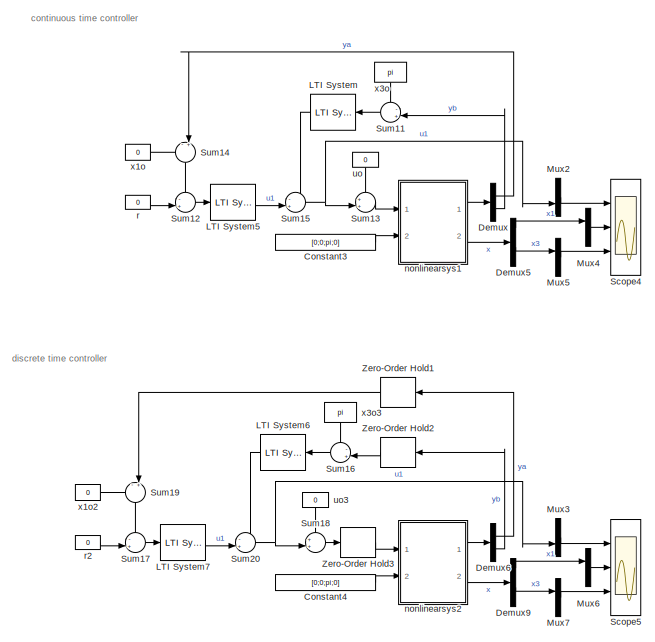
[diagram: Subsystem1 - part 1/2, middle left region]
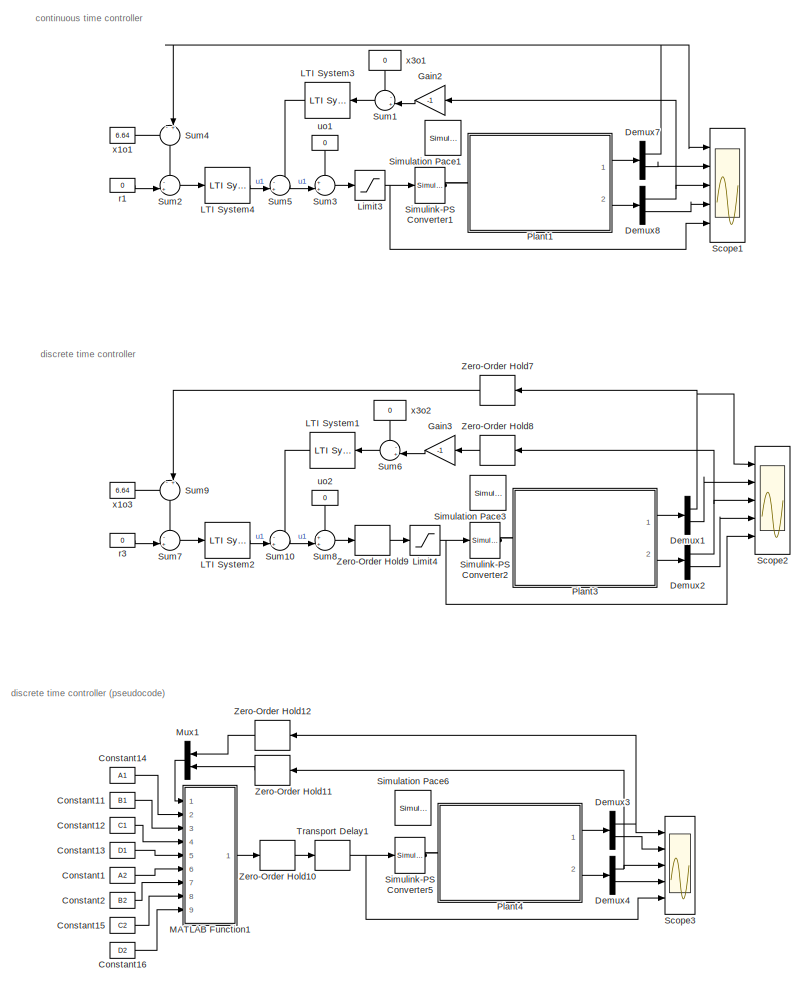
[diagram: Subsystem1 - part 2/2, right side, full height]
BLOCK [SubSystem] Subsystem1
  Commented = on
  Ports = []
  RequestExecContextInheritance = off
BLOCK [Constant] Subsystem1/Constant1
  Value = A2
BLOCK [Constant] Subsystem1/Constant11
  Value = B1
BLOCK [Constant] Subsystem1/Constant12
  Value = C1
BLOCK [Constant] Subsystem1/Constant13
  Value = D1
BLOCK [Constant] Subsystem1/Constant14
  Value = A1
BLOCK [Constant] Subsystem1/Constant15
  Value = C2
BLOCK [Constant] Subsystem1/Constant16
  Value = D2
BLOCK [Constant] Subsystem1/Constant2
  Value = B2
BLOCK [Constant] Subsystem1/Constant3
  Commented = on
  Value = [0;0;pi;0]
BLOCK [Constant] Subsystem1/Constant4
  Commented = on
  Value = [0;0;pi;0]
BLOCK [Demux] Subsystem1/Demux
  Commented = on
  DisplayOption = bar
  Outputs = 2
  Ports = [1, 2]
BLOCK [Demux] Subsystem1/Demux1
  Commented = on
  DisplayOption = bar
  Outputs = 2
  Ports = [1, 2]
BLOCK [Demux] Subsystem1/Demux2
  Commented = on
  DisplayOption = bar
  Outputs = 2
  Ports = [1, 2]
BLOCK [Demux] Subsystem1/Demux3
  DisplayOption = bar
  Outputs = 2
  Ports = [1, 2]
BLOCK [Demux] Subsystem1/Demux4
  DisplayOption = bar
  Outputs = 2
  Ports = [1, 2]
BLOCK [Demux] Subsystem1/Demux5
  Commented = on
  DisplayOption = bar
  Ports = [1, 4]
BLOCK [Demux] Subsystem1/Demux6
  Commented = on
  DisplayOption = bar
  Outputs = 2
  Ports = [1, 2]
BLOCK [Demux] Subsystem1/Demux7
  Commented = on
  DisplayOption = bar
  Outputs = 2
  Ports = [1, 2]
BLOCK [Demux] Subsystem1/Demux8
  Commented = on
  DisplayOption = bar
  Outputs = 2
  Ports = [1, 2]
BLOCK [Demux] Subsystem1/Demux9
  Commented = on
  DisplayOption = bar
  Ports = [1, 4]
BLOCK [Gain] Subsystem1/Gain2
  Commented = on
  Gain = -1
  OutDataTypeStr = Inherit: Inherit via internal rule
  ParamDataTypeStr = Inherit: Inherit via internal rule
  SaturateOnIntegerOverflow = off
BLOCK [Gain] Subsystem1/Gain3
  Commented = on
  Gain = -1
  OutDataTypeStr = Inherit: Inherit via internal rule
  ParamDataTypeStr = Inherit: Inherit via internal rule
  SaturateOnIntegerOverflow = off
BLOCK [Reference] Subsystem1/LTI System  REF=cstblocks/LTI System
  Commented = on
  Ports = [1, 1]
  SourceBlock = cstblocks/LTI System
  SourceProductBaseCode = CT
  SourceProductName = Control System Toolbox
  SourceType = LTI Block
BLOCK [Reference] Subsystem1/LTI System1  REF=cstblocks/LTI System
  Commented = on
  Ports = [1, 1]
  SourceBlock = cstblocks/LTI System
  SourceProductBaseCode = CT
  SourceProductName = Control System Toolbox
  SourceType = LTI Block
BLOCK [Reference] Subsystem1/LTI System2  REF=cstblocks/LTI System
  Commented = on
  Ports = [1, 1]
  SourceBlock = cstblocks/LTI System
  SourceProductBaseCode = CT
  SourceProductName = Control System Toolbox
  SourceType = LTI Block
BLOCK [Reference] Subsystem1/LTI System3  REF=cstblocks/LTI System
  Commented = on
  Ports = [1, 1]
  SourceBlock = cstblocks/LTI System
  SourceProductBaseCode = CT
  SourceProductName = Control System Toolbox
  SourceType = LTI Block
BLOCK [Reference] Subsystem1/LTI System4  REF=cstblocks/LTI System
  Commented = on
  Ports = [1, 1]
  SourceBlock = cstblocks/LTI System
  SourceProductBaseCode = CT
  SourceProductName = Control System Toolbox
  SourceType = LTI Block
BLOCK [Reference] Subsystem1/LTI System5  REF=cstblocks/LTI System
  Commented = on
  Ports = [1, 1]
  SourceBlock = cstblocks/LTI System
  SourceProductBaseCode = CT
  SourceProductName = Control System Toolbox
  SourceType = LTI Block
BLOCK [Reference] Subsystem1/LTI System6  REF=cstblocks/LTI System
  Commented = on
  Ports = [1, 1]
  SourceBlock = cstblocks/LTI System
  SourceProductBaseCode = CT
  SourceProductName = Control System Toolbox
  SourceType = LTI Block
BLOCK [Reference] Subsystem1/LTI System7  REF=cstblocks/LTI System
  Commented = on
  Ports = [1, 1]
  SourceBlock = cstblocks/LTI System
  SourceProductBaseCode = CT
  SourceProductName = Control System Toolbox
  SourceType = LTI Block
BLOCK [Saturate] Subsystem1/Limit3
  Commented = on
  InputPortMap = u0
  LowerLimit = -0.1e3
  Ports = [1, 1]
  UpperLimit = 0.1e3
BLOCK [Saturate] Subsystem1/Limit4
  Commented = on
  InputPortMap = u0
  LowerLimit = -0.1e3
  Ports = [1, 1]
  UpperLimit = 0.1e3
BLOCK [SubSystem] Subsystem1/MATLAB Function1
  ErrorFcn = Stateflow.Translate.translate
  PermitHierarchicalResolution = ExplicitOnly
  Ports = [9, 1]
  RequestExecContextInheritance = off
  SFBlockType = MATLAB Function
  TreatAsAtomicUnit = on
BLOCK [Demux] Subsystem1/MATLAB Function1/ Demux 
  Outputs = 1
  Ports = [1, 1]
BLOCK [S-Function] Subsystem1/MATLAB Function1/ SFunction 
  EnableBusSupport = on
  FunctionName = sf_sfun
  PortCounts = [9 2]
  Ports = [9, 2]
  SFcnIsStateOwnerBlock = off
  SFunctionDeploymentMode = off
  Tag = Stateflow S-Function furutapendulumsim2 1
BLOCK [Terminator] Subsystem1/MATLAB Function1/ Terminator 
BLOCK [Inport] Subsystem1/MATLAB Function1/A1
  IconDisplay = Port number
  Port = 2
BLOCK [Inport] Subsystem1/MATLAB Function1/A2
  IconDisplay = Port number
  Port = 6
BLOCK [Inport] Subsystem1/MATLAB Function1/B1
  IconDisplay = Port number
  Port = 3
BLOCK [Inport] Subsystem1/MATLAB Function1/B2
  IconDisplay = Port number
  Port = 7
BLOCK [Inport] Subsystem1/MATLAB Function1/C1
  IconDisplay = Port number
  Port = 4
BLOCK [Inport] Subsystem1/MATLAB Function1/C2
  IconDisplay = Port number
  Port = 8
BLOCK [Inport] Subsystem1/MATLAB Function1/D1
  IconDisplay = Port number
  Port = 5
BLOCK [Inport] Subsystem1/MATLAB Function1/D2
  IconDisplay = Port number
  Port = 9
BLOCK [Outport] Subsystem1/MATLAB Function1/u
  IconDisplay = Port number
BLOCK [Inport] Subsystem1/MATLAB Function1/y
  IconDisplay = Port number
BLOCK [Mux] Subsystem1/Mux1
  DisplayOption = bar
  Inputs = 2
  Ports = [2, 1]
BLOCK [Mux] Subsystem1/Mux2
  Commented = on
  DisplayOption = bar
  Inputs = 2
  Ports = [2, 1]
BLOCK [Mux] Subsystem1/Mux3
  Commented = on
  DisplayOption = bar
  Inputs = 2
  Ports = [2, 1]
BLOCK [Mux] Subsystem1/Mux4
  Commented = on
  DisplayOption = bar
  Inputs = 2
  Ports = [2, 1]
BLOCK [Mux] Subsystem1/Mux5
  Commented = on
  DisplayOption = bar
  Inputs = 2
  Ports = [2, 1]
BLOCK [Mux] Subsystem1/Mux6
  Commented = on
  DisplayOption = bar
  Inputs = 2
  Ports = [2, 1]
BLOCK [Mux] Subsystem1/Mux7
  Commented = on
  DisplayOption = bar
  Inputs = 2
  Ports = [2, 1]
BLOCK [SubSystem] Subsystem1/Plant1
  Commented = on
  Ports = [0, 2, 0, 0, 0, 1]
  RequestExecContextInheritance = off
BLOCK [Reference] Subsystem1/Plant1/Base  REF=sm_lib/Body Elements/Solid
  Ports = [0, 0, 0, 0, 0, 0, 1]
  SourceBlock = sm_lib/Body Elements/Solid
  SourceProductBaseCode = MS
  SourceProductName = Simscape Multibody
  SourceType = Solid
BLOCK [BusCreator] Subsystem1/Plant1/Bus Creator
  DisplayOption = bar
  InheritFromInputs = on
  Inputs = 2
  Ports = [2, 1]
BLOCK [BusCreator] Subsystem1/Plant1/Bus Creator1
  DisplayOption = bar
  InheritFromInputs = on
  Inputs = 2
  Ports = [2, 1]
BLOCK [PMIOPort] Subsystem1/Plant1/ControlleTorque
  Side = Left
BLOCK [Reference] Subsystem1/Plant1/MechanismConfiguration  REF=sm_lib/Utilities/Mechanism
Configuration
  Ports = [0, 0, 0, 0, 0, 0, 1]
  SourceBlock = sm_lib/Utilities/Mechanism\nConfiguration
  SourceProductBaseCode = MS
  SourceProductName = Simscape Multibody
  SourceType = Mechanism\nConfiguration
BLOCK [Reference] Subsystem1/Plant1/PS-Simulink Converter  REF=nesl_utility/PS-Simulink
Converter
  Ports = [0, 1, 0, 0, 0, 1]
  SourceBlock = nesl_utility/PS-Simulink\nConverter
  SourceProductBaseCode = SS
  SourceProductName = Simscape
  SourceType = PS-Simulink\nConverter
BLOCK [Reference] Subsystem1/Plant1/PS-Simulink Converter1  REF=nesl_utility/PS-Simulink
Converter
  Ports = [0, 1, 0, 0, 0, 1]
  SourceBlock = nesl_utility/PS-Simulink\nConverter
  SourceProductBaseCode = SS
  SourceProductName = Simscape
  SourceType = PS-Simulink\nConverter
BLOCK [Reference] Subsystem1/Plant1/PS-Simulink Converter2  REF=nesl_utility/PS-Simulink
Converter
  Ports = [0, 1, 0, 0, 0, 1]
  SourceBlock = nesl_utility/PS-Simulink\nConverter
  SourceProductBaseCode = SS
  SourceProductName = Simscape
  SourceType = PS-Simulink\nConverter
BLOCK [Reference] Subsystem1/Plant1/PS-Simulink Converter4  REF=nesl_utility/PS-Simulink
Converter
  Ports = [0, 1, 0, 0, 0, 1]
  SourceBlock = nesl_utility/PS-Simulink\nConverter
  SourceProductBaseCode = SS
  SourceProductName = Simscape
  SourceType = PS-Simulink\nConverter
BLOCK [Reference] Subsystem1/Plant1/Pin  REF=sm_lib/Body Elements/Solid
  Ports = [0, 0, 0, 0, 0, 0, 1]
  SourceBlock = sm_lib/Body Elements/Solid
  SourceProductBaseCode = MS
  SourceProductName = Simscape Multibody
  SourceType = Solid
BLOCK [Reference] Subsystem1/Plant1/Revolute Joint alpha  REF=sm_lib/Joints/Revolute Joint
  Ports = [0, 0, 0, 0, 0, 2, 3]
  SourceBlock = sm_lib/Joints/Revolute Joint
  SourceProductBaseCode = MS
  SourceProductName = Simscape Multibody
  SourceType = Revolute Joint
BLOCK [Reference] Subsystem1/Plant1/Revolute Joint beta  REF=sm_lib/Joints/Revolute Joint
  Ports = [0, 0, 0, 0, 0, 2, 3]
  SourceBlock = sm_lib/Joints/Revolute Joint
  SourceProductBaseCode = MS
  SourceProductName = Simscape Multibody
  SourceType = Revolute Joint
BLOCK [Reference] Subsystem1/Plant1/Rigid Transform  REF=sm_lib/Frames and
Transforms/Rigid
Transform
  Ports = [0, 0, 0, 0, 0, 1, 1]
  SourceBlock = sm_lib/Frames and\nTransforms/Rigid\nTransform
  SourceProductBaseCode = MS
  SourceProductName = Simscape Multibody
  SourceType = Rigid\nTransform
BLOCK [Reference] Subsystem1/Plant1/Solver Configuration  REF=nesl_utility/Solver
Configuration
  Ports = [0, 0, 0, 0, 0, 0, 1]
  SourceBlock = nesl_utility/Solver\nConfiguration
  SourceProductBaseCode = SS
  SourceProductName = Simscape
  SourceType = Solver\nConfiguration
BLOCK [Reference] Subsystem1/Plant1/World  REF=sm_lib/Frames and
Transforms/World Frame
  Ports = [0, 0, 0, 0, 0, 0, 1]
  SourceBlock = sm_lib/Frames and\nTransforms/World Frame
  SourceProductBaseCode = MS
  SourceProductName = Simscape Multibody
  SourceType = World Frame
BLOCK [Outport] Subsystem1/Plant1/alpha_bus
  IconDisplay = Port number
BLOCK [Outport] Subsystem1/Plant1/beta_bus
  IconDisplay = Port number
  Port = 2
BLOCK [SubSystem] Subsystem1/Plant1/h_39_axle_1_RIGID
  Ports = [0, 0, 0, 0, 0, 1, 1]
  RequestExecContextInheritance = off
BLOCK [PMIOPort] Subsystem1/Plant1/h_39_axle_1_RIGID/B
  Side = Left
BLOCK [PMIOPort] Subsystem1/Plant1/h_39_axle_1_RIGID/F
  Port = 2
  Side = Right
BLOCK [Reference] Subsystem1/Plant1/h_39_axle_1_RIGID/Solid  REF=sm_lib/Body Elements/Solid
  Ports = [0, 0, 0, 0, 0, 0, 1]
  SourceBlock = sm_lib/Body Elements/Solid
  SourceProductBaseCode = MS
  SourceProductName = Simscape Multibody
  SourceType = Solid
BLOCK [Reference] Subsystem1/Plant1/h_39_axle_1_RIGID/Transform  REF=sm_lib/Frames and
Transforms/Rigid
Transform
  Ports = [0, 0, 0, 0, 0, 1, 1]
  SourceBlock = sm_lib/Frames and\nTransforms/Rigid\nTransform
  SourceProductBaseCode = MS
  SourceProductName = Simscape Multibody
  SourceType = Rigid\nTransform
BLOCK [Reference] Subsystem1/Plant1/h_39_axle_1_RIGID/Transform1  REF=sm_lib/Frames and
Transforms/Rigid
Transform
  Ports = [0, 0, 0, 0, 0, 1, 1]
  SourceBlock = sm_lib/Frames and\nTransforms/Rigid\nTransform
  SourceProductBaseCode = MS
  SourceProductName = Simscape Multibody
  SourceType = Rigid\nTransform
BLOCK [Reference] Subsystem1/Plant1/h_39_axle_1_RIGID/Transform2  REF=sm_lib/Frames and
Transforms/Rigid
Transform
  Ports = [0, 0, 0, 0, 0, 1, 1]
  SourceBlock = sm_lib/Frames and\nTransforms/Rigid\nTransform
  SourceProductBaseCode = MS
  SourceProductName = Simscape Multibody
  SourceType = Rigid\nTransform
BLOCK [SubSystem] Subsystem1/Plant1/h_RIP_arm_v2_1_RIGID
  Ports = [0, 0, 0, 0, 0, 1, 1]
  RequestExecContextInheritance = off
BLOCK [PMIOPort] Subsystem1/Plant1/h_RIP_arm_v2_1_RIGID/B
  Side = Left
BLOCK [PMIOPort] Subsystem1/Plant1/h_RIP_arm_v2_1_RIGID/F
  Port = 2
  Side = Right
BLOCK [Reference] Subsystem1/Plant1/h_RIP_arm_v2_1_RIGID/Transform  REF=sm_lib/Frames and
Transforms/Rigid
Transform
  Ports = [0, 0, 0, 0, 0, 1, 1]
  SourceBlock = sm_lib/Frames and\nTransforms/Rigid\nTransform
  SourceProductBaseCode = MS
  SourceProductName = Simscape Multibody
  SourceType = Rigid\nTransform
BLOCK [Reference] Subsystem1/Plant1/h_RIP_arm_v2_1_RIGID/Transform1  REF=sm_lib/Frames and
Transforms/Rigid
Transform
  Ports = [0, 0, 0, 0, 0, 1, 1]
  SourceBlock = sm_lib/Frames and\nTransforms/Rigid\nTransform
  SourceProductBaseCode = MS
  SourceProductName = Simscape Multibody
  SourceType = Rigid\nTransform
BLOCK [Reference] Subsystem1/Plant1/h_RIP_arm_v2_1_RIGID/Transform2  REF=sm_lib/Frames and
Transforms/Rigid
Transform
  Ports = [0, 0, 0, 0, 0, 1, 1]
  SourceBlock = sm_lib/Frames and\nTransforms/Rigid\nTransform
  SourceProductBaseCode = MS
  SourceProductName = Simscape Multibody
  SourceType = Rigid\nTransform
BLOCK [Reference] Subsystem1/Plant1/h_RIP_arm_v2_1_RIGID/Transform3  REF=sm_lib/Frames and
Transforms/Rigid
Transform
  Ports = [0, 0, 0, 0, 0, 1, 1]
  SourceBlock = sm_lib/Frames and\nTransforms/Rigid\nTransform
  SourceProductBaseCode = MS
  SourceProductName = Simscape Multibody
  SourceType = Rigid\nTransform
BLOCK [Reference] Subsystem1/Plant1/h_RIP_arm_v2_1_RIGID/Transform4  REF=sm_lib/Frames and
Transforms/Rigid
Transform
  Ports = [0, 0, 0, 0, 0, 1, 1]
  SourceBlock = sm_lib/Frames and\nTransforms/Rigid\nTransform
  SourceProductBaseCode = MS
  SourceProductName = Simscape Multibody
  SourceType = Rigid\nTransform
BLOCK [Reference] Subsystem1/Plant1/h_RIP_arm_v2_1_RIGID/Transform5  REF=sm_lib/Frames and
Transforms/Rigid
Transform
  Ports = [0, 0, 0, 0, 0, 1, 1]
  SourceBlock = sm_lib/Frames and\nTransforms/Rigid\nTransform
  SourceProductBaseCode = MS
  SourceProductName = Simscape Multibody
  SourceType = Rigid\nTransform
BLOCK [SubSystem] Subsystem1/Plant1/h_RIP_arm_v2_1_RIGID/h_39_axle_1_RIGID
  Ports = [0, 0, 0, 0, 0, 1]
  RequestExecContextInheritance = off
BLOCK [PMIOPort] Subsystem1/Plant1/h_RIP_arm_v2_1_RIGID/h_39_axle_1_RIGID/F
  Side = Left
BLOCK [Reference] Subsystem1/Plant1/h_RIP_arm_v2_1_RIGID/h_39_axle_1_RIGID/Solid  REF=sm_lib/Body Elements/Solid
  Ports = [0, 0, 0, 0, 0, 0, 1]
  SourceBlock = sm_lib/Body Elements/Solid
  SourceProductBaseCode = MS
  SourceProductName = Simscape Multibody
  SourceType = Solid
BLOCK [SubSystem] Subsystem1/Plant1/h_RIP_arm_v2_1_RIGID/h_axle_asymmetric_1_RIGID
  Ports = [0, 0, 0, 0, 0, 1]
  RequestExecContextInheritance = off
BLOCK [PMIOPort] Subsystem1/Plant1/h_RIP_arm_v2_1_RIGID/h_axle_asymmetric_1_RIGID/F
  Side = Left
BLOCK [Reference] Subsystem1/Plant1/h_RIP_arm_v2_1_RIGID/h_axle_asymmetric_1_RIGID/Solid  REF=sm_lib/Body Elements/Solid
  Ports = [0, 0, 0, 0, 0, 0, 1]
  SourceBlock = sm_lib/Body Elements/Solid
  SourceProductBaseCode = MS
  SourceProductName = Simscape Multibody
  SourceType = Solid
BLOCK [SubSystem] Subsystem1/Plant1/h_RIP_arm_v2_1_RIGID/h_collar_1_RIGID
  Ports = [0, 0, 0, 0, 0, 1]
  RequestExecContextInheritance = off
BLOCK [PMIOPort] Subsystem1/Plant1/h_RIP_arm_v2_1_RIGID/h_collar_1_RIGID/F
  Side = Left
BLOCK [Reference] Subsystem1/Plant1/h_RIP_arm_v2_1_RIGID/h_collar_1_RIGID/Solid  REF=sm_lib/Body Elements/Solid
  Ports = [0, 0, 0, 0, 0, 0, 1]
  SourceBlock = sm_lib/Body Elements/Solid
  SourceProductBaseCode = MS
  SourceProductName = Simscape Multibody
  SourceType = Solid
BLOCK [SubSystem] Subsystem1/Plant1/h_RIP_arm_v2_1_RIGID/h_connector_straight_1_RIGID
  Ports = [0, 0, 0, 0, 0, 1]
  RequestExecContextInheritance = off
BLOCK [PMIOPort] Subsystem1/Plant1/h_RIP_arm_v2_1_RIGID/h_connector_straight_1_RIGID/F
  Side = Left
BLOCK [Reference] Subsystem1/Plant1/h_RIP_arm_v2_1_RIGID/h_connector_straight_1_RIGID/Solid  REF=sm_lib/Body Elements/Solid
  Ports = [0, 0, 0, 0, 0, 0, 1]
  SourceBlock = sm_lib/Body Elements/Solid
  SourceProductBaseCode = MS
  SourceProductName = Simscape Multibody
  SourceType = Solid
BLOCK [SubSystem] Subsystem1/Plant1/h_RIP_pendulum_1_RIGID
  Ports = [0, 0, 0, 0, 0, 1]
  RequestExecContextInheritance = off
BLOCK [PMIOPort] Subsystem1/Plant1/h_RIP_pendulum_1_RIGID/F
  Side = Left
BLOCK [Reference] Subsystem1/Plant1/h_RIP_pendulum_1_RIGID/Transform  REF=sm_lib/Frames and
Transforms/Rigid
Transform
  Ports = [0, 0, 0, 0, 0, 1, 1]
  SourceBlock = sm_lib/Frames and\nTransforms/Rigid\nTransform
  SourceProductBaseCode = MS
  SourceProductName = Simscape Multibody
  SourceType = Rigid\nTransform
BLOCK [Reference] Subsystem1/Plant1/h_RIP_pendulum_1_RIGID/Transform1  REF=sm_lib/Frames and
Transforms/Rigid
Transform
  Ports = [0, 0, 0, 0, 0, 1, 1]
  SourceBlock = sm_lib/Frames and\nTransforms/Rigid\nTransform
  SourceProductBaseCode = MS
  SourceProductName = Simscape Multibody
  SourceType = Rigid\nTransform
BLOCK [Reference] Subsystem1/Plant1/h_RIP_pendulum_1_RIGID/Transform2  REF=sm_lib/Frames and
Transforms/Rigid
Transform
  Ports = [0, 0, 0, 0, 0, 1, 1]
  SourceBlock = sm_lib/Frames and\nTransforms/Rigid\nTransform
  SourceProductBaseCode = MS
  SourceProductName = Simscape Multibody
  SourceType = Rigid\nTransform
BLOCK [Reference] Subsystem1/Plant1/h_RIP_pendulum_1_RIGID/Transform3  REF=sm_lib/Frames and
Transforms/Rigid
Transform
  Ports = [0, 0, 0, 0, 0, 1, 1]
  SourceBlock = sm_lib/Frames and\nTransforms/Rigid\nTransform
  SourceProductBaseCode = MS
  SourceProductName = Simscape Multibody
  SourceType = Rigid\nTransform
BLOCK [Reference] Subsystem1/Plant1/h_RIP_pendulum_1_RIGID/Transform4  REF=sm_lib/Frames and
Transforms/Rigid
Transform
  Ports = [0, 0, 0, 0, 0, 1, 1]
  SourceBlock = sm_lib/Frames and\nTransforms/Rigid\nTransform
  SourceProductBaseCode = MS
  SourceProductName = Simscape Multibody
  SourceType = Rigid\nTransform
BLOCK [Reference] Subsystem1/Plant1/h_RIP_pendulum_1_RIGID/Transform5  REF=sm_lib/Frames and
Transforms/Rigid
Transform
  Ports = [0, 0, 0, 0, 0, 1, 1]
  SourceBlock = sm_lib/Frames and\nTransforms/Rigid\nTransform
  SourceProductBaseCode = MS
  SourceProductName = Simscape Multibody
  SourceType = Rigid\nTransform
BLOCK [Reference] Subsystem1/Plant1/h_RIP_pendulum_1_RIGID/Transform6  REF=sm_lib/Frames and
Transforms/Rigid
Transform
  Ports = [0, 0, 0, 0, 0, 1, 1]
  SourceBlock = sm_lib/Frames and\nTransforms/Rigid\nTransform
  SourceProductBaseCode = MS
  SourceProductName = Simscape Multibody
  SourceType = Rigid\nTransform
BLOCK [SubSystem] Subsystem1/Plant1/h_RIP_pendulum_1_RIGID/h_10_axle_1_RIGID
  Ports = [0, 0, 0, 0, 0, 1]
  RequestExecContextInheritance = off
BLOCK [PMIOPort] Subsystem1/Plant1/h_RIP_pendulum_1_RIGID/h_10_axle_1_RIGID/F
  Side = Left
BLOCK [Reference] Subsystem1/Plant1/h_RIP_pendulum_1_RIGID/h_10_axle_1_RIGID/Solid  REF=sm_lib/Body Elements/Solid
  Ports = [0, 0, 0, 0, 0, 0, 1]
  SourceBlock = sm_lib/Body Elements/Solid
  SourceProductBaseCode = MS
  SourceProductName = Simscape Multibody
  SourceType = Solid
BLOCK [SubSystem] Subsystem1/Plant1/h_RIP_pendulum_1_RIGID/h_79_axle_1_RIGID
  Ports = [0, 0, 0, 0, 0, 1]
  RequestExecContextInheritance = off
BLOCK [PMIOPort] Subsystem1/Plant1/h_RIP_pendulum_1_RIGID/h_79_axle_1_RIGID/F
  Side = Left
BLOCK [Reference] Subsystem1/Plant1/h_RIP_pendulum_1_RIGID/h_79_axle_1_RIGID/Solid  REF=sm_lib/Body Elements/Solid
  Ports = [0, 0, 0, 0, 0, 0, 1]
  SourceBlock = sm_lib/Body Elements/Solid
  SourceProductBaseCode = MS
  SourceProductName = Simscape Multibody
  SourceType = Solid
BLOCK [SubSystem] Subsystem1/Plant1/h_RIP_pendulum_1_RIGID/h_connector_right_angle_1_RIGID
  Ports = [0, 0, 0, 0, 0, 1]
  RequestExecContextInheritance = off
BLOCK [PMIOPort] Subsystem1/Plant1/h_RIP_pendulum_1_RIGID/h_connector_right_angle_1_RIGID/F
  Side = Left
BLOCK [Reference] Subsystem1/Plant1/h_RIP_pendulum_1_RIGID/h_connector_right_angle_1_RIGID/Solid  REF=sm_lib/Body Elements/Solid
  Ports = [0, 0, 0, 0, 0, 0, 1]
  SourceBlock = sm_lib/Body Elements/Solid
  SourceProductBaseCode = MS
  SourceProductName = Simscape Multibody
  SourceType = Solid
BLOCK [SubSystem] Subsystem1/Plant1/h_RIP_pendulum_1_RIGID/h_connector_straight_1_RIGID
  Ports = [0, 0, 0, 0, 0, 1]
  RequestExecContextInheritance = off
BLOCK [PMIOPort] Subsystem1/Plant1/h_RIP_pendulum_1_RIGID/h_connector_straight_1_RIGID/F
  Side = Left
BLOCK [Reference] Subsystem1/Plant1/h_RIP_pendulum_1_RIGID/h_connector_straight_1_RIGID/Solid  REF=sm_lib/Body Elements/Solid
  Ports = [0, 0, 0, 0, 0, 0, 1]
  SourceBlock = sm_lib/Body Elements/Solid
  SourceProductBaseCode = MS
  SourceProductName = Simscape Multibody
  SourceType = Solid
BLOCK [SubSystem] Subsystem1/Plant1/h_RIP_pendulum_1_RIGID/h_connector_straight_1_RIGID1
  Ports = [0, 0, 0, 0, 0, 1]
  RequestExecContextInheritance = off
BLOCK [PMIOPort] Subsystem1/Plant1/h_RIP_pendulum_1_RIGID/h_connector_straight_1_RIGID1/F
  Side = Left
BLOCK [Reference] Subsystem1/Plant1/h_RIP_pendulum_1_RIGID/h_connector_straight_1_RIGID1/Solid  REF=sm_lib/Body Elements/Solid
  Ports = [0, 0, 0, 0, 0, 0, 1]
  SourceBlock = sm_lib/Body Elements/Solid
  SourceProductBaseCode = MS
  SourceProductName = Simscape Multibody
  SourceType = Solid
BLOCK [SubSystem] Subsystem1/Plant1/h_encoderaxles_1_RIGID
  Ports = [0, 0, 0, 0, 0, 1, 1]
  RequestExecContextInheritance = off
BLOCK [PMIOPort] Subsystem1/Plant1/h_encoderaxles_1_RIGID/B
  Side = Left
BLOCK [Reference] Subsystem1/Plant1/h_encoderaxles_1_RIGID/Design_Correction  REF=sm_lib/Frames and
Transforms/Rigid
Transform
  Ports = [0, 0, 0, 0, 0, 1, 1]
  SourceBlock = sm_lib/Frames and\nTransforms/Rigid\nTransform
  SourceProductBaseCode = MS
  SourceProductName = Simscape Multibody
  SourceType = Rigid\nTransform
BLOCK [PMIOPort] Subsystem1/Plant1/h_encoderaxles_1_RIGID/F
  Port = 2
  Side = Right
BLOCK [Reference] Subsystem1/Plant1/h_encoderaxles_1_RIGID/Transform  REF=sm_lib/Frames and
Transforms/Rigid
Transform
  Ports = [0, 0, 0, 0, 0, 1, 1]
  SourceBlock = sm_lib/Frames and\nTransforms/Rigid\nTransform
  SourceProductBaseCode = MS
  SourceProductName = Simscape Multibody
  SourceType = Rigid\nTransform
BLOCK [Reference] Subsystem1/Plant1/h_encoderaxles_1_RIGID/Transform1  REF=sm_lib/Frames and
Transforms/Rigid
Transform
  Ports = [0, 0, 0, 0, 0, 1, 1]
  SourceBlock = sm_lib/Frames and\nTransforms/Rigid\nTransform
  SourceProductBaseCode = MS
  SourceProductName = Simscape Multibody
  SourceType = Rigid\nTransform
BLOCK [Reference] Subsystem1/Plant1/h_encoderaxles_1_RIGID/Transform2  REF=sm_lib/Frames and
Transforms/Rigid
Transform
  Ports = [0, 0, 0, 0, 0, 1, 1]
  SourceBlock = sm_lib/Frames and\nTransforms/Rigid\nTransform
  SourceProductBaseCode = MS
  SourceProductName = Simscape Multibody
  SourceType = Rigid\nTransform
BLOCK [Reference] Subsystem1/Plant1/h_encoderaxles_1_RIGID/Transform3  REF=sm_lib/Frames and
Transforms/Rigid
Transform
  Ports = [0, 0, 0, 0, 0, 1, 1]
  SourceBlock = sm_lib/Frames and\nTransforms/Rigid\nTransform
  SourceProductBaseCode = MS
  SourceProductName = Simscape Multibody
  SourceType = Rigid\nTransform
BLOCK [Reference] Subsystem1/Plant1/h_encoderaxles_1_RIGID/Transform4  REF=sm_lib/Frames and
Transforms/Rigid
Transform
  Ports = [0, 0, 0, 0, 0, 1, 1]
  SourceBlock = sm_lib/Frames and\nTransforms/Rigid\nTransform
  SourceProductBaseCode = MS
  SourceProductName = Simscape Multibody
  SourceType = Rigid\nTransform
BLOCK [Reference] Subsystem1/Plant1/h_encoderaxles_1_RIGID/Transform5  REF=sm_lib/Frames and
Transforms/Rigid
Transform
  Ports = [0, 0, 0, 0, 0, 1, 1]
  SourceBlock = sm_lib/Frames and\nTransforms/Rigid\nTransform
  SourceProductBaseCode = MS
  SourceProductName = Simscape Multibody
  SourceType = Rigid\nTransform
BLOCK [Reference] Subsystem1/Plant1/h_encoderaxles_1_RIGID/Transform6  REF=sm_lib/Frames and
Transforms/Rigid
Transform
  Ports = [0, 0, 0, 0, 0, 1, 1]
  SourceBlock = sm_lib/Frames and\nTransforms/Rigid\nTransform
  SourceProductBaseCode = MS
  SourceProductName = Simscape Multibody
  SourceType = Rigid\nTransform
BLOCK [Reference] Subsystem1/Plant1/h_encoderaxles_1_RIGID/Transform7  REF=sm_lib/Frames and
Transforms/Rigid
Transform
  Ports = [0, 0, 0, 0, 0, 1, 1]
  SourceBlock = sm_lib/Frames and\nTransforms/Rigid\nTransform
  SourceProductBaseCode = MS
  SourceProductName = Simscape Multibody
  SourceType = Rigid\nTransform
BLOCK [SubSystem] Subsystem1/Plant1/h_encoderaxles_1_RIGID/connector_right_angle_1_RIGID
  Ports = [0, 0, 0, 0, 0, 1]
  RequestExecContextInheritance = off
BLOCK [PMIOPort] Subsystem1/Plant1/h_encoderaxles_1_RIGID/connector_right_angle_1_RIGID/F
  Side = Left
BLOCK [Reference] Subsystem1/Plant1/h_encoderaxles_1_RIGID/connector_right_angle_1_RIGID/Solid  REF=sm_lib/Body Elements/Solid
  Ports = [0, 0, 0, 0, 0, 0, 1]
  SourceBlock = sm_lib/Body Elements/Solid
  SourceProductBaseCode = MS
  SourceProductName = Simscape Multibody
  SourceType = Solid
BLOCK [SubSystem] Subsystem1/Plant1/h_encoderaxles_1_RIGID/glidewheel_encoder_2_RIGID
  Ports = [0, 0, 0, 0, 0, 1]
  RequestExecContextInheritance = off
BLOCK [PMIOPort] Subsystem1/Plant1/h_encoderaxles_1_RIGID/glidewheel_encoder_2_RIGID/F
  Side = Left
BLOCK [Reference] Subsystem1/Plant1/h_encoderaxles_1_RIGID/glidewheel_encoder_2_RIGID/Solid  REF=sm_lib/Body Elements/Solid
  Ports = [0, 0, 0, 0, 0, 0, 1]
  SourceBlock = sm_lib/Body Elements/Solid
  SourceProductBaseCode = MS
  SourceProductName = Simscape Multibody
  SourceType = Solid
BLOCK [SubSystem] Subsystem1/Plant1/h_encoderaxles_1_RIGID/h_triangle_1_RIGID
  Ports = [0, 0, 0, 0, 0, 1]
  RequestExecContextInheritance = off
BLOCK [PMIOPort] Subsystem1/Plant1/h_encoderaxles_1_RIGID/h_triangle_1_RIGID/F
  Side = Left
BLOCK [Reference] Subsystem1/Plant1/h_encoderaxles_1_RIGID/h_triangle_1_RIGID/Solid  REF=sm_lib/Body Elements/Solid
  Ports = [0, 0, 0, 0, 0, 0, 1]
  SourceBlock = sm_lib/Body Elements/Solid
  SourceProductBaseCode = MS
  SourceProductName = Simscape Multibody
  SourceType = Solid
BLOCK [SubSystem] Subsystem1/Plant1/h_encoderaxles_1_RIGID/x86_axle_4_RIGID
  Ports = [0, 0, 0, 0, 0, 1]
  RequestExecContextInheritance = off
BLOCK [PMIOPort] Subsystem1/Plant1/h_encoderaxles_1_RIGID/x86_axle_4_RIGID/F
  Side = Left
BLOCK [Reference] Subsystem1/Plant1/h_encoderaxles_1_RIGID/x86_axle_4_RIGID/Solid  REF=sm_lib/Body Elements/Solid
  Ports = [0, 0, 0, 0, 0, 0, 1]
  SourceBlock = sm_lib/Body Elements/Solid
  SourceProductBaseCode = MS
  SourceProductName = Simscape Multibody
  SourceType = Solid
BLOCK [SubSystem] Subsystem1/Plant1/h_encoderaxles_1_RIGID/x86_axle_5_RIGID
  Ports = [0, 0, 0, 0, 0, 1]
  RequestExecContextInheritance = off
BLOCK [PMIOPort] Subsystem1/Plant1/h_encoderaxles_1_RIGID/x86_axle_5_RIGID/F
  Side = Left
BLOCK [Reference] Subsystem1/Plant1/h_encoderaxles_1_RIGID/x86_axle_5_RIGID/Solid  REF=sm_lib/Body Elements/Solid
  Ports = [0, 0, 0, 0, 0, 0, 1]
  SourceBlock = sm_lib/Body Elements/Solid
  SourceProductBaseCode = MS
  SourceProductName = Simscape Multibody
  SourceType = Solid
BLOCK [SubSystem] Subsystem1/Plant1/h_encoderaxles_1_RIGID/x86_axle_6_RIGID
  Ports = [0, 0, 0, 0, 0, 1]
  RequestExecContextInheritance = off
BLOCK [PMIOPort] Subsystem1/Plant1/h_encoderaxles_1_RIGID/x86_axle_6_RIGID/F
  Side = Left
BLOCK [Reference] Subsystem1/Plant1/h_encoderaxles_1_RIGID/x86_axle_6_RIGID/Solid  REF=sm_lib/Body Elements/Solid
  Ports = [0, 0, 0, 0, 0, 0, 1]
  SourceBlock = sm_lib/Body Elements/Solid
  SourceProductBaseCode = MS
  SourceProductName = Simscape Multibody
  SourceType = Solid
BLOCK [SubSystem] Subsystem1/Plant3
  Commented = on
  Ports = [0, 2, 0, 0, 0, 1]
  RequestExecContextInheritance = off
BLOCK [Reference] Subsystem1/Plant3/Base  REF=sm_lib/Body Elements/Solid
  Ports = [0, 0, 0, 0, 0, 0, 1]
  SourceBlock = sm_lib/Body Elements/Solid
  SourceProductBaseCode = MS
  SourceProductName = Simscape Multibody
  SourceType = Solid
BLOCK [BusCreator] Subsystem1/Plant3/Bus Creator
  DisplayOption = bar
  InheritFromInputs = on
  Inputs = 2
  Ports = [2, 1]
BLOCK [BusCreator] Subsystem1/Plant3/Bus Creator1
  DisplayOption = bar
  InheritFromInputs = on
  Inputs = 2
  Ports = [2, 1]
BLOCK [PMIOPort] Subsystem1/Plant3/ControlleTorque
  Side = Left
BLOCK [Reference] Subsystem1/Plant3/MechanismConfiguration  REF=sm_lib/Utilities/Mechanism
Configuration
  Ports = [0, 0, 0, 0, 0, 0, 1]
  SourceBlock = sm_lib/Utilities/Mechanism\nConfiguration
  SourceProductBaseCode = MS
  SourceProductName = Simscape Multibody
  SourceType = Mechanism\nConfiguration
BLOCK [Reference] Subsystem1/Plant3/PS-Simulink Converter  REF=nesl_utility/PS-Simulink
Converter
  Ports = [0, 1, 0, 0, 0, 1]
  SourceBlock = nesl_utility/PS-Simulink\nConverter
  SourceProductBaseCode = SS
  SourceProductName = Simscape
  SourceType = PS-Simulink\nConverter
BLOCK [Reference] Subsystem1/Plant3/PS-Simulink Converter1  REF=nesl_utility/PS-Simulink
Converter
  Ports = [0, 1, 0, 0, 0, 1]
  SourceBlock = nesl_utility/PS-Simulink\nConverter
  SourceProductBaseCode = SS
  SourceProductName = Simscape
  SourceType = PS-Simulink\nConverter
BLOCK [Reference] Subsystem1/Plant3/PS-Simulink Converter2  REF=nesl_utility/PS-Simulink
Converter
  Ports = [0, 1, 0, 0, 0, 1]
  SourceBlock = nesl_utility/PS-Simulink\nConverter
  SourceProductBaseCode = SS
  SourceProductName = Simscape
  SourceType = PS-Simulink\nConverter
BLOCK [Reference] Subsystem1/Plant3/PS-Simulink Converter4  REF=nesl_utility/PS-Simulink
Converter
  Ports = [0, 1, 0, 0, 0, 1]
  SourceBlock = nesl_utility/PS-Simulink\nConverter
  SourceProductBaseCode = SS
  SourceProductName = Simscape
  SourceType = PS-Simulink\nConverter
BLOCK [Reference] Subsystem1/Plant3/Pin  REF=sm_lib/Body Elements/Solid
  Ports = [0, 0, 0, 0, 0, 0, 1]
  SourceBlock = sm_lib/Body Elements/Solid
  SourceProductBaseCode = MS
  SourceProductName = Simscape Multibody
  SourceType = Solid
BLOCK [Reference] Subsystem1/Plant3/Revolute Joint alpha  REF=sm_lib/Joints/Revolute Joint
  Ports = [0, 0, 0, 0, 0, 2, 3]
  SourceBlock = sm_lib/Joints/Revolute Joint
  SourceProductBaseCode = MS
  SourceProductName = Simscape Multibody
  SourceType = Revolute Joint
BLOCK [Reference] Subsystem1/Plant3/Revolute Joint beta  REF=sm_lib/Joints/Revolute Joint
  Ports = [0, 0, 0, 0, 0, 2, 3]
  SourceBlock = sm_lib/Joints/Revolute Joint
  SourceProductBaseCode = MS
  SourceProductName = Simscape Multibody
  SourceType = Revolute Joint
BLOCK [Reference] Subsystem1/Plant3/Rigid Transform  REF=sm_lib/Frames and
Transforms/Rigid
Transform
  Ports = [0, 0, 0, 0, 0, 1, 1]
  SourceBlock = sm_lib/Frames and\nTransforms/Rigid\nTransform
  SourceProductBaseCode = MS
  SourceProductName = Simscape Multibody
  SourceType = Rigid\nTransform
BLOCK [Reference] Subsystem1/Plant3/Solver Configuration  REF=nesl_utility/Solver
Configuration
  Ports = [0, 0, 0, 0, 0, 0, 1]
  SourceBlock = nesl_utility/Solver\nConfiguration
  SourceProductBaseCode = SS
  SourceProductName = Simscape
  SourceType = Solver\nConfiguration
BLOCK [Reference] Subsystem1/Plant3/World  REF=sm_lib/Frames and
Transforms/World Frame
  Ports = [0, 0, 0, 0, 0, 0, 1]
  SourceBlock = sm_lib/Frames and\nTransforms/World Frame
  SourceProductBaseCode = MS
  SourceProductName = Simscape Multibody
  SourceType = World Frame
BLOCK [Outport] Subsystem1/Plant3/alpha_bus
  IconDisplay = Port number
BLOCK [Outport] Subsystem1/Plant3/beta_bus
  IconDisplay = Port number
  Port = 2
BLOCK [SubSystem] Subsystem1/Plant3/h_39_axle_1_RIGID
  Ports = [0, 0, 0, 0, 0, 1, 1]
  RequestExecContextInheritance = off
BLOCK [PMIOPort] Subsystem1/Plant3/h_39_axle_1_RIGID/B
  Side = Left
BLOCK [PMIOPort] Subsystem1/Plant3/h_39_axle_1_RIGID/F
  Port = 2
  Side = Right
BLOCK [Reference] Subsystem1/Plant3/h_39_axle_1_RIGID/Solid  REF=sm_lib/Body Elements/Solid
  Ports = [0, 0, 0, 0, 0, 0, 1]
  SourceBlock = sm_lib/Body Elements/Solid
  SourceProductBaseCode = MS
  SourceProductName = Simscape Multibody
  SourceType = Solid
BLOCK [Reference] Subsystem1/Plant3/h_39_axle_1_RIGID/Transform  REF=sm_lib/Frames and
Transforms/Rigid
Transform
  Ports = [0, 0, 0, 0, 0, 1, 1]
  SourceBlock = sm_lib/Frames and\nTransforms/Rigid\nTransform
  SourceProductBaseCode = MS
  SourceProductName = Simscape Multibody
  SourceType = Rigid\nTransform
BLOCK [Reference] Subsystem1/Plant3/h_39_axle_1_RIGID/Transform1  REF=sm_lib/Frames and
Transforms/Rigid
Transform
  Ports = [0, 0, 0, 0, 0, 1, 1]
  SourceBlock = sm_lib/Frames and\nTransforms/Rigid\nTransform
  SourceProductBaseCode = MS
  SourceProductName = Simscape Multibody
  SourceType = Rigid\nTransform
BLOCK [Reference] Subsystem1/Plant3/h_39_axle_1_RIGID/Transform2  REF=sm_lib/Frames and
Transforms/Rigid
Transform
  Ports = [0, 0, 0, 0, 0, 1, 1]
  SourceBlock = sm_lib/Frames and\nTransforms/Rigid\nTransform
  SourceProductBaseCode = MS
  SourceProductName = Simscape Multibody
  SourceType = Rigid\nTransform
BLOCK [SubSystem] Subsystem1/Plant3/h_RIP_arm_v2_1_RIGID
  Ports = [0, 0, 0, 0, 0, 1, 1]
  RequestExecContextInheritance = off
BLOCK [PMIOPort] Subsystem1/Plant3/h_RIP_arm_v2_1_RIGID/B
  Side = Left
BLOCK [PMIOPort] Subsystem1/Plant3/h_RIP_arm_v2_1_RIGID/F
  Port = 2
  Side = Right
BLOCK [Reference] Subsystem1/Plant3/h_RIP_arm_v2_1_RIGID/Transform  REF=sm_lib/Frames and
Transforms/Rigid
Transform
  Ports = [0, 0, 0, 0, 0, 1, 1]
  SourceBlock = sm_lib/Frames and\nTransforms/Rigid\nTransform
  SourceProductBaseCode = MS
  SourceProductName = Simscape Multibody
  SourceType = Rigid\nTransform
BLOCK [Reference] Subsystem1/Plant3/h_RIP_arm_v2_1_RIGID/Transform1  REF=sm_lib/Frames and
Transforms/Rigid
Transform
  Ports = [0, 0, 0, 0, 0, 1, 1]
  SourceBlock = sm_lib/Frames and\nTransforms/Rigid\nTransform
  SourceProductBaseCode = MS
  SourceProductName = Simscape Multibody
  SourceType = Rigid\nTransform
BLOCK [Reference] Subsystem1/Plant3/h_RIP_arm_v2_1_RIGID/Transform2  REF=sm_lib/Frames and
Transforms/Rigid
Transform
  Ports = [0, 0, 0, 0, 0, 1, 1]
  SourceBlock = sm_lib/Frames and\nTransforms/Rigid\nTransform
  SourceProductBaseCode = MS
  SourceProductName = Simscape Multibody
  SourceType = Rigid\nTransform
BLOCK [Reference] Subsystem1/Plant3/h_RIP_arm_v2_1_RIGID/Transform3  REF=sm_lib/Frames and
Transforms/Rigid
Transform
  Ports = [0, 0, 0, 0, 0, 1, 1]
  SourceBlock = sm_lib/Frames and\nTransforms/Rigid\nTransform
  SourceProductBaseCode = MS
  SourceProductName = Simscape Multibody
  SourceType = Rigid\nTransform
BLOCK [Reference] Subsystem1/Plant3/h_RIP_arm_v2_1_RIGID/Transform4  REF=sm_lib/Frames and
Transforms/Rigid
Transform
  Ports = [0, 0, 0, 0, 0, 1, 1]
  SourceBlock = sm_lib/Frames and\nTransforms/Rigid\nTransform
  SourceProductBaseCode = MS
  SourceProductName = Simscape Multibody
  SourceType = Rigid\nTransform
BLOCK [Reference] Subsystem1/Plant3/h_RIP_arm_v2_1_RIGID/Transform5  REF=sm_lib/Frames and
Transforms/Rigid
Transform
  Ports = [0, 0, 0, 0, 0, 1, 1]
  SourceBlock = sm_lib/Frames and\nTransforms/Rigid\nTransform
  SourceProductBaseCode = MS
  SourceProductName = Simscape Multibody
  SourceType = Rigid\nTransform
BLOCK [SubSystem] Subsystem1/Plant3/h_RIP_arm_v2_1_RIGID/h_39_axle_1_RIGID
  Ports = [0, 0, 0, 0, 0, 1]
  RequestExecContextInheritance = off
BLOCK [PMIOPort] Subsystem1/Plant3/h_RIP_arm_v2_1_RIGID/h_39_axle_1_RIGID/F
  Side = Left
BLOCK [Reference] Subsystem1/Plant3/h_RIP_arm_v2_1_RIGID/h_39_axle_1_RIGID/Solid  REF=sm_lib/Body Elements/Solid
  Ports = [0, 0, 0, 0, 0, 0, 1]
  SourceBlock = sm_lib/Body Elements/Solid
  SourceProductBaseCode = MS
  SourceProductName = Simscape Multibody
  SourceType = Solid
BLOCK [SubSystem] Subsystem1/Plant3/h_RIP_arm_v2_1_RIGID/h_axle_asymmetric_1_RIGID
  Ports = [0, 0, 0, 0, 0, 1]
  RequestExecContextInheritance = off
BLOCK [PMIOPort] Subsystem1/Plant3/h_RIP_arm_v2_1_RIGID/h_axle_asymmetric_1_RIGID/F
  Side = Left
BLOCK [Reference] Subsystem1/Plant3/h_RIP_arm_v2_1_RIGID/h_axle_asymmetric_1_RIGID/Solid  REF=sm_lib/Body Elements/Solid
  Ports = [0, 0, 0, 0, 0, 0, 1]
  SourceBlock = sm_lib/Body Elements/Solid
  SourceProductBaseCode = MS
  SourceProductName = Simscape Multibody
  SourceType = Solid
BLOCK [SubSystem] Subsystem1/Plant3/h_RIP_arm_v2_1_RIGID/h_collar_1_RIGID
  Ports = [0, 0, 0, 0, 0, 1]
  RequestExecContextInheritance = off
BLOCK [PMIOPort] Subsystem1/Plant3/h_RIP_arm_v2_1_RIGID/h_collar_1_RIGID/F
  Side = Left
BLOCK [Reference] Subsystem1/Plant3/h_RIP_arm_v2_1_RIGID/h_collar_1_RIGID/Solid  REF=sm_lib/Body Elements/Solid
  Ports = [0, 0, 0, 0, 0, 0, 1]
  SourceBlock = sm_lib/Body Elements/Solid
  SourceProductBaseCode = MS
  SourceProductName = Simscape Multibody
  SourceType = Solid
BLOCK [SubSystem] Subsystem1/Plant3/h_RIP_arm_v2_1_RIGID/h_connector_straight_1_RIGID
  Ports = [0, 0, 0, 0, 0, 1]
  RequestExecContextInheritance = off
BLOCK [PMIOPort] Subsystem1/Plant3/h_RIP_arm_v2_1_RIGID/h_connector_straight_1_RIGID/F
  Side = Left
BLOCK [Reference] Subsystem1/Plant3/h_RIP_arm_v2_1_RIGID/h_connector_straight_1_RIGID/Solid  REF=sm_lib/Body Elements/Solid
  Ports = [0, 0, 0, 0, 0, 0, 1]
  SourceBlock = sm_lib/Body Elements/Solid
  SourceProductBaseCode = MS
  SourceProductName = Simscape Multibody
  SourceType = Solid
BLOCK [SubSystem] Subsystem1/Plant3/h_RIP_pendulum_1_RIGID
  Ports = [0, 0, 0, 0, 0, 1]
  RequestExecContextInheritance = off
BLOCK [PMIOPort] Subsystem1/Plant3/h_RIP_pendulum_1_RIGID/F
  Side = Left
BLOCK [Reference] Subsystem1/Plant3/h_RIP_pendulum_1_RIGID/Transform  REF=sm_lib/Frames and
Transforms/Rigid
Transform
  Ports = [0, 0, 0, 0, 0, 1, 1]
  SourceBlock = sm_lib/Frames and\nTransforms/Rigid\nTransform
  SourceProductBaseCode = MS
  SourceProductName = Simscape Multibody
  SourceType = Rigid\nTransform
BLOCK [Reference] Subsystem1/Plant3/h_RIP_pendulum_1_RIGID/Transform1  REF=sm_lib/Frames and
Transforms/Rigid
Transform
  Ports = [0, 0, 0, 0, 0, 1, 1]
  SourceBlock = sm_lib/Frames and\nTransforms/Rigid\nTransform
  SourceProductBaseCode = MS
  SourceProductName = Simscape Multibody
  SourceType = Rigid\nTransform
BLOCK [Reference] Subsystem1/Plant3/h_RIP_pendulum_1_RIGID/Transform2  REF=sm_lib/Frames and
Transforms/Rigid
Transform
  Ports = [0, 0, 0, 0, 0, 1, 1]
  SourceBlock = sm_lib/Frames and\nTransforms/Rigid\nTransform
  SourceProductBaseCode = MS
  SourceProductName = Simscape Multibody
  SourceType = Rigid\nTransform
BLOCK [Reference] Subsystem1/Plant3/h_RIP_pendulum_1_RIGID/Transform3  REF=sm_lib/Frames and
Transforms/Rigid
Transform
  Ports = [0, 0, 0, 0, 0, 1, 1]
  SourceBlock = sm_lib/Frames and\nTransforms/Rigid\nTransform
  SourceProductBaseCode = MS
  SourceProductName = Simscape Multibody
  SourceType = Rigid\nTransform
BLOCK [Reference] Subsystem1/Plant3/h_RIP_pendulum_1_RIGID/Transform4  REF=sm_lib/Frames and
Transforms/Rigid
Transform
  Ports = [0, 0, 0, 0, 0, 1, 1]
  SourceBlock = sm_lib/Frames and\nTransforms/Rigid\nTransform
  SourceProductBaseCode = MS
  SourceProductName = Simscape Multibody
  SourceType = Rigid\nTransform
BLOCK [Reference] Subsystem1/Plant3/h_RIP_pendulum_1_RIGID/Transform5  REF=sm_lib/Frames and
Transforms/Rigid
Transform
  Ports = [0, 0, 0, 0, 0, 1, 1]
  SourceBlock = sm_lib/Frames and\nTransforms/Rigid\nTransform
  SourceProductBaseCode = MS
  SourceProductName = Simscape Multibody
  SourceType = Rigid\nTransform
BLOCK [Reference] Subsystem1/Plant3/h_RIP_pendulum_1_RIGID/Transform6  REF=sm_lib/Frames and
Transforms/Rigid
Transform
  Ports = [0, 0, 0, 0, 0, 1, 1]
  SourceBlock = sm_lib/Frames and\nTransforms/Rigid\nTransform
  SourceProductBaseCode = MS
  SourceProductName = Simscape Multibody
  SourceType = Rigid\nTransform
BLOCK [SubSystem] Subsystem1/Plant3/h_RIP_pendulum_1_RIGID/h_10_axle_1_RIGID
  Ports = [0, 0, 0, 0, 0, 1]
  RequestExecContextInheritance = off
BLOCK [PMIOPort] Subsystem1/Plant3/h_RIP_pendulum_1_RIGID/h_10_axle_1_RIGID/F
  Side = Left
BLOCK [Reference] Subsystem1/Plant3/h_RIP_pendulum_1_RIGID/h_10_axle_1_RIGID/Solid  REF=sm_lib/Body Elements/Solid
  Ports = [0, 0, 0, 0, 0, 0, 1]
  SourceBlock = sm_lib/Body Elements/Solid
  SourceProductBaseCode = MS
  SourceProductName = Simscape Multibody
  SourceType = Solid
BLOCK [SubSystem] Subsystem1/Plant3/h_RIP_pendulum_1_RIGID/h_79_axle_1_RIGID
  Ports = [0, 0, 0, 0, 0, 1]
  RequestExecContextInheritance = off
BLOCK [PMIOPort] Subsystem1/Plant3/h_RIP_pendulum_1_RIGID/h_79_axle_1_RIGID/F
  Side = Left
BLOCK [Reference] Subsystem1/Plant3/h_RIP_pendulum_1_RIGID/h_79_axle_1_RIGID/Solid  REF=sm_lib/Body Elements/Solid
  Ports = [0, 0, 0, 0, 0, 0, 1]
  SourceBlock = sm_lib/Body Elements/Solid
  SourceProductBaseCode = MS
  SourceProductName = Simscape Multibody
  SourceType = Solid
BLOCK [SubSystem] Subsystem1/Plant3/h_RIP_pendulum_1_RIGID/h_connector_right_angle_1_RIGID
  Ports = [0, 0, 0, 0, 0, 1]
  RequestExecContextInheritance = off
BLOCK [PMIOPort] Subsystem1/Plant3/h_RIP_pendulum_1_RIGID/h_connector_right_angle_1_RIGID/F
  Side = Left
BLOCK [Reference] Subsystem1/Plant3/h_RIP_pendulum_1_RIGID/h_connector_right_angle_1_RIGID/Solid  REF=sm_lib/Body Elements/Solid
  Ports = [0, 0, 0, 0, 0, 0, 1]
  SourceBlock = sm_lib/Body Elements/Solid
  SourceProductBaseCode = MS
  SourceProductName = Simscape Multibody
  SourceType = Solid
BLOCK [SubSystem] Subsystem1/Plant3/h_RIP_pendulum_1_RIGID/h_connector_straight_1_RIGID
  Ports = [0, 0, 0, 0, 0, 1]
  RequestExecContextInheritance = off
BLOCK [PMIOPort] Subsystem1/Plant3/h_RIP_pendulum_1_RIGID/h_connector_straight_1_RIGID/F
  Side = Left
BLOCK [Reference] Subsystem1/Plant3/h_RIP_pendulum_1_RIGID/h_connector_straight_1_RIGID/Solid  REF=sm_lib/Body Elements/Solid
  Ports = [0, 0, 0, 0, 0, 0, 1]
  SourceBlock = sm_lib/Body Elements/Solid
  SourceProductBaseCode = MS
  SourceProductName = Simscape Multibody
  SourceType = Solid
BLOCK [SubSystem] Subsystem1/Plant3/h_RIP_pendulum_1_RIGID/h_connector_straight_1_RIGID1
  Ports = [0, 0, 0, 0, 0, 1]
  RequestExecContextInheritance = off
BLOCK [PMIOPort] Subsystem1/Plant3/h_RIP_pendulum_1_RIGID/h_connector_straight_1_RIGID1/F
  Side = Left
BLOCK [Reference] Subsystem1/Plant3/h_RIP_pendulum_1_RIGID/h_connector_straight_1_RIGID1/Solid  REF=sm_lib/Body Elements/Solid
  Ports = [0, 0, 0, 0, 0, 0, 1]
  SourceBlock = sm_lib/Body Elements/Solid
  SourceProductBaseCode = MS
  SourceProductName = Simscape Multibody
  SourceType = Solid
BLOCK [SubSystem] Subsystem1/Plant3/h_encoderaxles_1_RIGID
  Ports = [0, 0, 0, 0, 0, 1, 1]
  RequestExecContextInheritance = off
BLOCK [PMIOPort] Subsystem1/Plant3/h_encoderaxles_1_RIGID/B
  Side = Left
BLOCK [Reference] Subsystem1/Plant3/h_encoderaxles_1_RIGID/Design_Correction  REF=sm_lib/Frames and
Transforms/Rigid
Transform
  Ports = [0, 0, 0, 0, 0, 1, 1]
  SourceBlock = sm_lib/Frames and\nTransforms/Rigid\nTransform
  SourceProductBaseCode = MS
  SourceProductName = Simscape Multibody
  SourceType = Rigid\nTransform
BLOCK [PMIOPort] Subsystem1/Plant3/h_encoderaxles_1_RIGID/F
  Port = 2
  Side = Right
BLOCK [Reference] Subsystem1/Plant3/h_encoderaxles_1_RIGID/Transform  REF=sm_lib/Frames and
Transforms/Rigid
Transform
  Ports = [0, 0, 0, 0, 0, 1, 1]
  SourceBlock = sm_lib/Frames and\nTransforms/Rigid\nTransform
  SourceProductBaseCode = MS
  SourceProductName = Simscape Multibody
  SourceType = Rigid\nTransform
BLOCK [Reference] Subsystem1/Plant3/h_encoderaxles_1_RIGID/Transform1  REF=sm_lib/Frames and
Transforms/Rigid
Transform
  Ports = [0, 0, 0, 0, 0, 1, 1]
  SourceBlock = sm_lib/Frames and\nTransforms/Rigid\nTransform
  SourceProductBaseCode = MS
  SourceProductName = Simscape Multibody
  SourceType = Rigid\nTransform
BLOCK [Reference] Subsystem1/Plant3/h_encoderaxles_1_RIGID/Transform2  REF=sm_lib/Frames and
Transforms/Rigid
Transform
  Ports = [0, 0, 0, 0, 0, 1, 1]
  SourceBlock = sm_lib/Frames and\nTransforms/Rigid\nTransform
  SourceProductBaseCode = MS
  SourceProductName = Simscape Multibody
  SourceType = Rigid\nTransform
BLOCK [Reference] Subsystem1/Plant3/h_encoderaxles_1_RIGID/Transform3  REF=sm_lib/Frames and
Transforms/Rigid
Transform
  Ports = [0, 0, 0, 0, 0, 1, 1]
  SourceBlock = sm_lib/Frames and\nTransforms/Rigid\nTransform
  SourceProductBaseCode = MS
  SourceProductName = Simscape Multibody
  SourceType = Rigid\nTransform
BLOCK [Reference] Subsystem1/Plant3/h_encoderaxles_1_RIGID/Transform4  REF=sm_lib/Frames and
Transforms/Rigid
Transform
  Ports = [0, 0, 0, 0, 0, 1, 1]
  SourceBlock = sm_lib/Frames and\nTransforms/Rigid\nTransform
  SourceProductBaseCode = MS
  SourceProductName = Simscape Multibody
  SourceType = Rigid\nTransform
BLOCK [Reference] Subsystem1/Plant3/h_encoderaxles_1_RIGID/Transform5  REF=sm_lib/Frames and
Transforms/Rigid
Transform
  Ports = [0, 0, 0, 0, 0, 1, 1]
  SourceBlock = sm_lib/Frames and\nTransforms/Rigid\nTransform
  SourceProductBaseCode = MS
  SourceProductName = Simscape Multibody
  SourceType = Rigid\nTransform
BLOCK [Reference] Subsystem1/Plant3/h_encoderaxles_1_RIGID/Transform6  REF=sm_lib/Frames and
Transforms/Rigid
Transform
  Ports = [0, 0, 0, 0, 0, 1, 1]
  SourceBlock = sm_lib/Frames and\nTransforms/Rigid\nTransform
  SourceProductBaseCode = MS
  SourceProductName = Simscape Multibody
  SourceType = Rigid\nTransform
BLOCK [Reference] Subsystem1/Plant3/h_encoderaxles_1_RIGID/Transform7  REF=sm_lib/Frames and
Transforms/Rigid
Transform
  Ports = [0, 0, 0, 0, 0, 1, 1]
  SourceBlock = sm_lib/Frames and\nTransforms/Rigid\nTransform
  SourceProductBaseCode = MS
  SourceProductName = Simscape Multibody
  SourceType = Rigid\nTransform
BLOCK [SubSystem] Subsystem1/Plant3/h_encoderaxles_1_RIGID/connector_right_angle_1_RIGID
  Ports = [0, 0, 0, 0, 0, 1]
  RequestExecContextInheritance = off
BLOCK [PMIOPort] Subsystem1/Plant3/h_encoderaxles_1_RIGID/connector_right_angle_1_RIGID/F
  Side = Left
BLOCK [Reference] Subsystem1/Plant3/h_encoderaxles_1_RIGID/connector_right_angle_1_RIGID/Solid  REF=sm_lib/Body Elements/Solid
  Ports = [0, 0, 0, 0, 0, 0, 1]
  SourceBlock = sm_lib/Body Elements/Solid
  SourceProductBaseCode = MS
  SourceProductName = Simscape Multibody
  SourceType = Solid
BLOCK [SubSystem] Subsystem1/Plant3/h_encoderaxles_1_RIGID/glidewheel_encoder_2_RIGID
  Ports = [0, 0, 0, 0, 0, 1]
  RequestExecContextInheritance = off
BLOCK [PMIOPort] Subsystem1/Plant3/h_encoderaxles_1_RIGID/glidewheel_encoder_2_RIGID/F
  Side = Left
BLOCK [Reference] Subsystem1/Plant3/h_encoderaxles_1_RIGID/glidewheel_encoder_2_RIGID/Solid  REF=sm_lib/Body Elements/Solid
  Ports = [0, 0, 0, 0, 0, 0, 1]
  SourceBlock = sm_lib/Body Elements/Solid
  SourceProductBaseCode = MS
  SourceProductName = Simscape Multibody
  SourceType = Solid
BLOCK [SubSystem] Subsystem1/Plant3/h_encoderaxles_1_RIGID/h_triangle_1_RIGID
  Ports = [0, 0, 0, 0, 0, 1]
  RequestExecContextInheritance = off
BLOCK [PMIOPort] Subsystem1/Plant3/h_encoderaxles_1_RIGID/h_triangle_1_RIGID/F
  Side = Left
BLOCK [Reference] Subsystem1/Plant3/h_encoderaxles_1_RIGID/h_triangle_1_RIGID/Solid  REF=sm_lib/Body Elements/Solid
  Ports = [0, 0, 0, 0, 0, 0, 1]
  SourceBlock = sm_lib/Body Elements/Solid
  SourceProductBaseCode = MS
  SourceProductName = Simscape Multibody
  SourceType = Solid
BLOCK [SubSystem] Subsystem1/Plant3/h_encoderaxles_1_RIGID/x86_axle_4_RIGID
  Ports = [0, 0, 0, 0, 0, 1]
  RequestExecContextInheritance = off
BLOCK [PMIOPort] Subsystem1/Plant3/h_encoderaxles_1_RIGID/x86_axle_4_RIGID/F
  Side = Left
BLOCK [Reference] Subsystem1/Plant3/h_encoderaxles_1_RIGID/x86_axle_4_RIGID/Solid  REF=sm_lib/Body Elements/Solid
  Ports = [0, 0, 0, 0, 0, 0, 1]
  SourceBlock = sm_lib/Body Elements/Solid
  SourceProductBaseCode = MS
  SourceProductName = Simscape Multibody
  SourceType = Solid
BLOCK [SubSystem] Subsystem1/Plant3/h_encoderaxles_1_RIGID/x86_axle_5_RIGID
  Ports = [0, 0, 0, 0, 0, 1]
  RequestExecContextInheritance = off
BLOCK [PMIOPort] Subsystem1/Plant3/h_encoderaxles_1_RIGID/x86_axle_5_RIGID/F
  Side = Left
BLOCK [Reference] Subsystem1/Plant3/h_encoderaxles_1_RIGID/x86_axle_5_RIGID/Solid  REF=sm_lib/Body Elements/Solid
  Ports = [0, 0, 0, 0, 0, 0, 1]
  SourceBlock = sm_lib/Body Elements/Solid
  SourceProductBaseCode = MS
  SourceProductName = Simscape Multibody
  SourceType = Solid
BLOCK [SubSystem] Subsystem1/Plant3/h_encoderaxles_1_RIGID/x86_axle_6_RIGID
  Ports = [0, 0, 0, 0, 0, 1]
  RequestExecContextInheritance = off
BLOCK [PMIOPort] Subsystem1/Plant3/h_encoderaxles_1_RIGID/x86_axle_6_RIGID/F
  Side = Left
BLOCK [Reference] Subsystem1/Plant3/h_encoderaxles_1_RIGID/x86_axle_6_RIGID/Solid  REF=sm_lib/Body Elements/Solid
  Ports = [0, 0, 0, 0, 0, 0, 1]
  SourceBlock = sm_lib/Body Elements/Solid
  SourceProductBaseCode = MS
  SourceProductName = Simscape Multibody
  SourceType = Solid
BLOCK [SubSystem] Subsystem1/Plant4
  Ports = [0, 2, 0, 0, 0, 1]
  RequestExecContextInheritance = off
BLOCK [Reference] Subsystem1/Plant4/Base  REF=sm_lib/Body Elements/Solid
  Ports = [0, 0, 0, 0, 0, 0, 1]
  SourceBlock = sm_lib/Body Elements/Solid
  SourceProductBaseCode = MS
  SourceProductName = Simscape Multibody
  SourceType = Solid
BLOCK [BusCreator] Subsystem1/Plant4/Bus Creator
  DisplayOption = bar
  InheritFromInputs = on
  Inputs = 2
  Ports = [2, 1]
BLOCK [BusCreator] Subsystem1/Plant4/Bus Creator1
  DisplayOption = bar
  InheritFromInputs = on
  Inputs = 2
  Ports = [2, 1]
BLOCK [PMIOPort] Subsystem1/Plant4/ControlleTorque
  Side = Left
BLOCK [Reference] Subsystem1/Plant4/MechanismConfiguration  REF=sm_lib/Utilities/Mechanism
Configuration
  Ports = [0, 0, 0, 0, 0, 0, 1]
  SourceBlock = sm_lib/Utilities/Mechanism\nConfiguration
  SourceProductBaseCode = MS
  SourceProductName = Simscape Multibody
  SourceType = Mechanism\nConfiguration
BLOCK [Reference] Subsystem1/Plant4/PS-Simulink Converter  REF=nesl_utility/PS-Simulink
Converter
  Ports = [0, 1, 0, 0, 0, 1]
  SourceBlock = nesl_utility/PS-Simulink\nConverter
  SourceProductBaseCode = SS
  SourceProductName = Simscape
  SourceType = PS-Simulink\nConverter
BLOCK [Reference] Subsystem1/Plant4/PS-Simulink Converter1  REF=nesl_utility/PS-Simulink
Converter
  Ports = [0, 1, 0, 0, 0, 1]
  SourceBlock = nesl_utility/PS-Simulink\nConverter
  SourceProductBaseCode = SS
  SourceProductName = Simscape
  SourceType = PS-Simulink\nConverter
BLOCK [Reference] Subsystem1/Plant4/PS-Simulink Converter2  REF=nesl_utility/PS-Simulink
Converter
  Ports = [0, 1, 0, 0, 0, 1]
  SourceBlock = nesl_utility/PS-Simulink\nConverter
  SourceProductBaseCode = SS
  SourceProductName = Simscape
  SourceType = PS-Simulink\nConverter
BLOCK [Reference] Subsystem1/Plant4/PS-Simulink Converter4  REF=nesl_utility/PS-Simulink
Converter
  Ports = [0, 1, 0, 0, 0, 1]
  SourceBlock = nesl_utility/PS-Simulink\nConverter
  SourceProductBaseCode = SS
  SourceProductName = Simscape
  SourceType = PS-Simulink\nConverter
BLOCK [Reference] Subsystem1/Plant4/Pin  REF=sm_lib/Body Elements/Solid
  Ports = [0, 0, 0, 0, 0, 0, 1]
  SourceBlock = sm_lib/Body Elements/Solid
  SourceProductBaseCode = MS
  SourceProductName = Simscape Multibody
  SourceType = Solid
BLOCK [Reference] Subsystem1/Plant4/Revolute Joint alpha  REF=sm_lib/Joints/Revolute Joint
  Ports = [0, 0, 0, 0, 0, 2, 3]
  SourceBlock = sm_lib/Joints/Revolute Joint
  SourceProductBaseCode = MS
  SourceProductName = Simscape Multibody
  SourceType = Revolute Joint
BLOCK [Reference] Subsystem1/Plant4/Revolute Joint beta  REF=sm_lib/Joints/Revolute Joint
  Ports = [0, 0, 0, 0, 0, 2, 3]
  SourceBlock = sm_lib/Joints/Revolute Joint
  SourceProductBaseCode = MS
  SourceProductName = Simscape Multibody
  SourceType = Revolute Joint
BLOCK [Reference] Subsystem1/Plant4/Rigid Transform  REF=sm_lib/Frames and
Transforms/Rigid
Transform
  Ports = [0, 0, 0, 0, 0, 1, 1]
  SourceBlock = sm_lib/Frames and\nTransforms/Rigid\nTransform
  SourceProductBaseCode = MS
  SourceProductName = Simscape Multibody
  SourceType = Rigid\nTransform
BLOCK [Reference] Subsystem1/Plant4/Solver Configuration  REF=nesl_utility/Solver
Configuration
  Ports = [0, 0, 0, 0, 0, 0, 1]
  SourceBlock = nesl_utility/Solver\nConfiguration
  SourceProductBaseCode = SS
  SourceProductName = Simscape
  SourceType = Solver\nConfiguration
BLOCK [Reference] Subsystem1/Plant4/World  REF=sm_lib/Frames and
Transforms/World Frame
  Ports = [0, 0, 0, 0, 0, 0, 1]
  SourceBlock = sm_lib/Frames and\nTransforms/World Frame
  SourceProductBaseCode = MS
  SourceProductName = Simscape Multibody
  SourceType = World Frame
BLOCK [Outport] Subsystem1/Plant4/alpha_bus
  IconDisplay = Port number
BLOCK [Outport] Subsystem1/Plant4/beta_bus
  IconDisplay = Port number
  Port = 2
BLOCK [SubSystem] Subsystem1/Plant4/h_39_axle_1_RIGID
  Ports = [0, 0, 0, 0, 0, 1, 1]
  RequestExecContextInheritance = off
BLOCK [PMIOPort] Subsystem1/Plant4/h_39_axle_1_RIGID/B
  Side = Left
BLOCK [PMIOPort] Subsystem1/Plant4/h_39_axle_1_RIGID/F
  Port = 2
  Side = Right
BLOCK [Reference] Subsystem1/Plant4/h_39_axle_1_RIGID/Solid  REF=sm_lib/Body Elements/Solid
  Ports = [0, 0, 0, 0, 0, 0, 1]
  SourceBlock = sm_lib/Body Elements/Solid
  SourceProductBaseCode = MS
  SourceProductName = Simscape Multibody
  SourceType = Solid
BLOCK [Reference] Subsystem1/Plant4/h_39_axle_1_RIGID/Transform  REF=sm_lib/Frames and
Transforms/Rigid
Transform
  Ports = [0, 0, 0, 0, 0, 1, 1]
  SourceBlock = sm_lib/Frames and\nTransforms/Rigid\nTransform
  SourceProductBaseCode = MS
  SourceProductName = Simscape Multibody
  SourceType = Rigid\nTransform
BLOCK [Reference] Subsystem1/Plant4/h_39_axle_1_RIGID/Transform1  REF=sm_lib/Frames and
Transforms/Rigid
Transform
  Ports = [0, 0, 0, 0, 0, 1, 1]
  SourceBlock = sm_lib/Frames and\nTransforms/Rigid\nTransform
  SourceProductBaseCode = MS
  SourceProductName = Simscape Multibody
  SourceType = Rigid\nTransform
BLOCK [Reference] Subsystem1/Plant4/h_39_axle_1_RIGID/Transform2  REF=sm_lib/Frames and
Transforms/Rigid
Transform
  Ports = [0, 0, 0, 0, 0, 1, 1]
  SourceBlock = sm_lib/Frames and\nTransforms/Rigid\nTransform
  SourceProductBaseCode = MS
  SourceProductName = Simscape Multibody
  SourceType = Rigid\nTransform
BLOCK [SubSystem] Subsystem1/Plant4/h_RIP_arm_v2_1_RIGID
  Ports = [0, 0, 0, 0, 0, 1, 1]
  RequestExecContextInheritance = off
BLOCK [PMIOPort] Subsystem1/Plant4/h_RIP_arm_v2_1_RIGID/B
  Side = Left
BLOCK [PMIOPort] Subsystem1/Plant4/h_RIP_arm_v2_1_RIGID/F
  Port = 2
  Side = Right
BLOCK [Reference] Subsystem1/Plant4/h_RIP_arm_v2_1_RIGID/Transform  REF=sm_lib/Frames and
Transforms/Rigid
Transform
  Ports = [0, 0, 0, 0, 0, 1, 1]
  SourceBlock = sm_lib/Frames and\nTransforms/Rigid\nTransform
  SourceProductBaseCode = MS
  SourceProductName = Simscape Multibody
  SourceType = Rigid\nTransform
BLOCK [Reference] Subsystem1/Plant4/h_RIP_arm_v2_1_RIGID/Transform1  REF=sm_lib/Frames and
Transforms/Rigid
Transform
  Ports = [0, 0, 0, 0, 0, 1, 1]
  SourceBlock = sm_lib/Frames and\nTransforms/Rigid\nTransform
  SourceProductBaseCode = MS
  SourceProductName = Simscape Multibody
  SourceType = Rigid\nTransform
BLOCK [Reference] Subsystem1/Plant4/h_RIP_arm_v2_1_RIGID/Transform2  REF=sm_lib/Frames and
Transforms/Rigid
Transform
  Ports = [0, 0, 0, 0, 0, 1, 1]
  SourceBlock = sm_lib/Frames and\nTransforms/Rigid\nTransform
  SourceProductBaseCode = MS
  SourceProductName = Simscape Multibody
  SourceType = Rigid\nTransform
BLOCK [Reference] Subsystem1/Plant4/h_RIP_arm_v2_1_RIGID/Transform3  REF=sm_lib/Frames and
Transforms/Rigid
Transform
  Ports = [0, 0, 0, 0, 0, 1, 1]
  SourceBlock = sm_lib/Frames and\nTransforms/Rigid\nTransform
  SourceProductBaseCode = MS
  SourceProductName = Simscape Multibody
  SourceType = Rigid\nTransform
BLOCK [Reference] Subsystem1/Plant4/h_RIP_arm_v2_1_RIGID/Transform4  REF=sm_lib/Frames and
Transforms/Rigid
Transform
  Ports = [0, 0, 0, 0, 0, 1, 1]
  SourceBlock = sm_lib/Frames and\nTransforms/Rigid\nTransform
  SourceProductBaseCode = MS
  SourceProductName = Simscape Multibody
  SourceType = Rigid\nTransform
BLOCK [Reference] Subsystem1/Plant4/h_RIP_arm_v2_1_RIGID/Transform5  REF=sm_lib/Frames and
Transforms/Rigid
Transform
  Ports = [0, 0, 0, 0, 0, 1, 1]
  SourceBlock = sm_lib/Frames and\nTransforms/Rigid\nTransform
  SourceProductBaseCode = MS
  SourceProductName = Simscape Multibody
  SourceType = Rigid\nTransform
BLOCK [SubSystem] Subsystem1/Plant4/h_RIP_arm_v2_1_RIGID/h_39_axle_1_RIGID
  Ports = [0, 0, 0, 0, 0, 1]
  RequestExecContextInheritance = off
BLOCK [PMIOPort] Subsystem1/Plant4/h_RIP_arm_v2_1_RIGID/h_39_axle_1_RIGID/F
  Side = Left
BLOCK [Reference] Subsystem1/Plant4/h_RIP_arm_v2_1_RIGID/h_39_axle_1_RIGID/Solid  REF=sm_lib/Body Elements/Solid
  Ports = [0, 0, 0, 0, 0, 0, 1]
  SourceBlock = sm_lib/Body Elements/Solid
  SourceProductBaseCode = MS
  SourceProductName = Simscape Multibody
  SourceType = Solid
BLOCK [SubSystem] Subsystem1/Plant4/h_RIP_arm_v2_1_RIGID/h_axle_asymmetric_1_RIGID
  Ports = [0, 0, 0, 0, 0, 1]
  RequestExecContextInheritance = off
BLOCK [PMIOPort] Subsystem1/Plant4/h_RIP_arm_v2_1_RIGID/h_axle_asymmetric_1_RIGID/F
  Side = Left
BLOCK [Reference] Subsystem1/Plant4/h_RIP_arm_v2_1_RIGID/h_axle_asymmetric_1_RIGID/Solid  REF=sm_lib/Body Elements/Solid
  Ports = [0, 0, 0, 0, 0, 0, 1]
  SourceBlock = sm_lib/Body Elements/Solid
  SourceProductBaseCode = MS
  SourceProductName = Simscape Multibody
  SourceType = Solid
BLOCK [SubSystem] Subsystem1/Plant4/h_RIP_arm_v2_1_RIGID/h_collar_1_RIGID
  Ports = [0, 0, 0, 0, 0, 1]
  RequestExecContextInheritance = off
BLOCK [PMIOPort] Subsystem1/Plant4/h_RIP_arm_v2_1_RIGID/h_collar_1_RIGID/F
  Side = Left
BLOCK [Reference] Subsystem1/Plant4/h_RIP_arm_v2_1_RIGID/h_collar_1_RIGID/Solid  REF=sm_lib/Body Elements/Solid
  Ports = [0, 0, 0, 0, 0, 0, 1]
  SourceBlock = sm_lib/Body Elements/Solid
  SourceProductBaseCode = MS
  SourceProductName = Simscape Multibody
  SourceType = Solid
BLOCK [SubSystem] Subsystem1/Plant4/h_RIP_arm_v2_1_RIGID/h_connector_straight_1_RIGID
  Ports = [0, 0, 0, 0, 0, 1]
  RequestExecContextInheritance = off
BLOCK [PMIOPort] Subsystem1/Plant4/h_RIP_arm_v2_1_RIGID/h_connector_straight_1_RIGID/F
  Side = Left
BLOCK [Reference] Subsystem1/Plant4/h_RIP_arm_v2_1_RIGID/h_connector_straight_1_RIGID/Solid  REF=sm_lib/Body Elements/Solid
  Ports = [0, 0, 0, 0, 0, 0, 1]
  SourceBlock = sm_lib/Body Elements/Solid
  SourceProductBaseCode = MS
  SourceProductName = Simscape Multibody
  SourceType = Solid
BLOCK [SubSystem] Subsystem1/Plant4/h_RIP_pendulum_1_RIGID
  Ports = [0, 0, 0, 0, 0, 1]
  RequestExecContextInheritance = off
BLOCK [PMIOPort] Subsystem1/Plant4/h_RIP_pendulum_1_RIGID/F
  Side = Left
BLOCK [Reference] Subsystem1/Plant4/h_RIP_pendulum_1_RIGID/Transform  REF=sm_lib/Frames and
Transforms/Rigid
Transform
  Ports = [0, 0, 0, 0, 0, 1, 1]
  SourceBlock = sm_lib/Frames and\nTransforms/Rigid\nTransform
  SourceProductBaseCode = MS
  SourceProductName = Simscape Multibody
  SourceType = Rigid\nTransform
BLOCK [Reference] Subsystem1/Plant4/h_RIP_pendulum_1_RIGID/Transform1  REF=sm_lib/Frames and
Transforms/Rigid
Transform
  Ports = [0, 0, 0, 0, 0, 1, 1]
  SourceBlock = sm_lib/Frames and\nTransforms/Rigid\nTransform
  SourceProductBaseCode = MS
  SourceProductName = Simscape Multibody
  SourceType = Rigid\nTransform
BLOCK [Reference] Subsystem1/Plant4/h_RIP_pendulum_1_RIGID/Transform2  REF=sm_lib/Frames and
Transforms/Rigid
Transform
  Ports = [0, 0, 0, 0, 0, 1, 1]
  SourceBlock = sm_lib/Frames and\nTransforms/Rigid\nTransform
  SourceProductBaseCode = MS
  SourceProductName = Simscape Multibody
  SourceType = Rigid\nTransform
BLOCK [Reference] Subsystem1/Plant4/h_RIP_pendulum_1_RIGID/Transform3  REF=sm_lib/Frames and
Transforms/Rigid
Transform
  Ports = [0, 0, 0, 0, 0, 1, 1]
  SourceBlock = sm_lib/Frames and\nTransforms/Rigid\nTransform
  SourceProductBaseCode = MS
  SourceProductName = Simscape Multibody
  SourceType = Rigid\nTransform
BLOCK [Reference] Subsystem1/Plant4/h_RIP_pendulum_1_RIGID/Transform4  REF=sm_lib/Frames and
Transforms/Rigid
Transform
  Ports = [0, 0, 0, 0, 0, 1, 1]
  SourceBlock = sm_lib/Frames and\nTransforms/Rigid\nTransform
  SourceProductBaseCode = MS
  SourceProductName = Simscape Multibody
  SourceType = Rigid\nTransform
BLOCK [Reference] Subsystem1/Plant4/h_RIP_pendulum_1_RIGID/Transform5  REF=sm_lib/Frames and
Transforms/Rigid
Transform
  Ports = [0, 0, 0, 0, 0, 1, 1]
  SourceBlock = sm_lib/Frames and\nTransforms/Rigid\nTransform
  SourceProductBaseCode = MS
  SourceProductName = Simscape Multibody
  SourceType = Rigid\nTransform
BLOCK [Reference] Subsystem1/Plant4/h_RIP_pendulum_1_RIGID/Transform6  REF=sm_lib/Frames and
Transforms/Rigid
Transform
  Ports = [0, 0, 0, 0, 0, 1, 1]
  SourceBlock = sm_lib/Frames and\nTransforms/Rigid\nTransform
  SourceProductBaseCode = MS
  SourceProductName = Simscape Multibody
  SourceType = Rigid\nTransform
BLOCK [SubSystem] Subsystem1/Plant4/h_RIP_pendulum_1_RIGID/h_10_axle_1_RIGID
  Ports = [0, 0, 0, 0, 0, 1]
  RequestExecContextInheritance = off
BLOCK [PMIOPort] Subsystem1/Plant4/h_RIP_pendulum_1_RIGID/h_10_axle_1_RIGID/F
  Side = Left
BLOCK [Reference] Subsystem1/Plant4/h_RIP_pendulum_1_RIGID/h_10_axle_1_RIGID/Solid  REF=sm_lib/Body Elements/Solid
  Ports = [0, 0, 0, 0, 0, 0, 1]
  SourceBlock = sm_lib/Body Elements/Solid
  SourceProductBaseCode = MS
  SourceProductName = Simscape Multibody
  SourceType = Solid
BLOCK [SubSystem] Subsystem1/Plant4/h_RIP_pendulum_1_RIGID/h_79_axle_1_RIGID
  Ports = [0, 0, 0, 0, 0, 1]
  RequestExecContextInheritance = off
BLOCK [PMIOPort] Subsystem1/Plant4/h_RIP_pendulum_1_RIGID/h_79_axle_1_RIGID/F
  Side = Left
BLOCK [Reference] Subsystem1/Plant4/h_RIP_pendulum_1_RIGID/h_79_axle_1_RIGID/Solid  REF=sm_lib/Body Elements/Solid
  Ports = [0, 0, 0, 0, 0, 0, 1]
  SourceBlock = sm_lib/Body Elements/Solid
  SourceProductBaseCode = MS
  SourceProductName = Simscape Multibody
  SourceType = Solid
BLOCK [SubSystem] Subsystem1/Plant4/h_RIP_pendulum_1_RIGID/h_connector_right_angle_1_RIGID
  Ports = [0, 0, 0, 0, 0, 1]
  RequestExecContextInheritance = off
BLOCK [PMIOPort] Subsystem1/Plant4/h_RIP_pendulum_1_RIGID/h_connector_right_angle_1_RIGID/F
  Side = Left
BLOCK [Reference] Subsystem1/Plant4/h_RIP_pendulum_1_RIGID/h_connector_right_angle_1_RIGID/Solid  REF=sm_lib/Body Elements/Solid
  Ports = [0, 0, 0, 0, 0, 0, 1]
  SourceBlock = sm_lib/Body Elements/Solid
  SourceProductBaseCode = MS
  SourceProductName = Simscape Multibody
  SourceType = Solid
BLOCK [SubSystem] Subsystem1/Plant4/h_RIP_pendulum_1_RIGID/h_connector_straight_1_RIGID
  Ports = [0, 0, 0, 0, 0, 1]
  RequestExecContextInheritance = off
BLOCK [PMIOPort] Subsystem1/Plant4/h_RIP_pendulum_1_RIGID/h_connector_straight_1_RIGID/F
  Side = Left
BLOCK [Reference] Subsystem1/Plant4/h_RIP_pendulum_1_RIGID/h_connector_straight_1_RIGID/Solid  REF=sm_lib/Body Elements/Solid
  Ports = [0, 0, 0, 0, 0, 0, 1]
  SourceBlock = sm_lib/Body Elements/Solid
  SourceProductBaseCode = MS
  SourceProductName = Simscape Multibody
  SourceType = Solid
BLOCK [SubSystem] Subsystem1/Plant4/h_RIP_pendulum_1_RIGID/h_connector_straight_1_RIGID1
  Ports = [0, 0, 0, 0, 0, 1]
  RequestExecContextInheritance = off
BLOCK [PMIOPort] Subsystem1/Plant4/h_RIP_pendulum_1_RIGID/h_connector_straight_1_RIGID1/F
  Side = Left
BLOCK [Reference] Subsystem1/Plant4/h_RIP_pendulum_1_RIGID/h_connector_straight_1_RIGID1/Solid  REF=sm_lib/Body Elements/Solid
  Ports = [0, 0, 0, 0, 0, 0, 1]
  SourceBlock = sm_lib/Body Elements/Solid
  SourceProductBaseCode = MS
  SourceProductName = Simscape Multibody
  SourceType = Solid
BLOCK [SubSystem] Subsystem1/Plant4/h_encoderaxles_1_RIGID
  Ports = [0, 0, 0, 0, 0, 1, 1]
  RequestExecContextInheritance = off
BLOCK [PMIOPort] Subsystem1/Plant4/h_encoderaxles_1_RIGID/B
  Side = Left
BLOCK [Reference] Subsystem1/Plant4/h_encoderaxles_1_RIGID/Design_Correction  REF=sm_lib/Frames and
Transforms/Rigid
Transform
  Ports = [0, 0, 0, 0, 0, 1, 1]
  SourceBlock = sm_lib/Frames and\nTransforms/Rigid\nTransform
  SourceProductBaseCode = MS
  SourceProductName = Simscape Multibody
  SourceType = Rigid\nTransform
BLOCK [PMIOPort] Subsystem1/Plant4/h_encoderaxles_1_RIGID/F
  Port = 2
  Side = Right
BLOCK [Reference] Subsystem1/Plant4/h_encoderaxles_1_RIGID/Transform  REF=sm_lib/Frames and
Transforms/Rigid
Transform
  Ports = [0, 0, 0, 0, 0, 1, 1]
  SourceBlock = sm_lib/Frames and\nTransforms/Rigid\nTransform
  SourceProductBaseCode = MS
  SourceProductName = Simscape Multibody
  SourceType = Rigid\nTransform
BLOCK [Reference] Subsystem1/Plant4/h_encoderaxles_1_RIGID/Transform1  REF=sm_lib/Frames and
Transforms/Rigid
Transform
  Ports = [0, 0, 0, 0, 0, 1, 1]
  SourceBlock = sm_lib/Frames and\nTransforms/Rigid\nTransform
  SourceProductBaseCode = MS
  SourceProductName = Simscape Multibody
  SourceType = Rigid\nTransform
BLOCK [Reference] Subsystem1/Plant4/h_encoderaxles_1_RIGID/Transform2  REF=sm_lib/Frames and
Transforms/Rigid
Transform
  Ports = [0, 0, 0, 0, 0, 1, 1]
  SourceBlock = sm_lib/Frames and\nTransforms/Rigid\nTransform
  SourceProductBaseCode = MS
  SourceProductName = Simscape Multibody
  SourceType = Rigid\nTransform
BLOCK [Reference] Subsystem1/Plant4/h_encoderaxles_1_RIGID/Transform3  REF=sm_lib/Frames and
Transforms/Rigid
Transform
  Ports = [0, 0, 0, 0, 0, 1, 1]
  SourceBlock = sm_lib/Frames and\nTransforms/Rigid\nTransform
  SourceProductBaseCode = MS
  SourceProductName = Simscape Multibody
  SourceType = Rigid\nTransform
BLOCK [Reference] Subsystem1/Plant4/h_encoderaxles_1_RIGID/Transform4  REF=sm_lib/Frames and
Transforms/Rigid
Transform
  Ports = [0, 0, 0, 0, 0, 1, 1]
  SourceBlock = sm_lib/Frames and\nTransforms/Rigid\nTransform
  SourceProductBaseCode = MS
  SourceProductName = Simscape Multibody
  SourceType = Rigid\nTransform
BLOCK [Reference] Subsystem1/Plant4/h_encoderaxles_1_RIGID/Transform5  REF=sm_lib/Frames and
Transforms/Rigid
Transform
  Ports = [0, 0, 0, 0, 0, 1, 1]
  SourceBlock = sm_lib/Frames and\nTransforms/Rigid\nTransform
  SourceProductBaseCode = MS
  SourceProductName = Simscape Multibody
  SourceType = Rigid\nTransform
BLOCK [Reference] Subsystem1/Plant4/h_encoderaxles_1_RIGID/Transform6  REF=sm_lib/Frames and
Transforms/Rigid
Transform
  Ports = [0, 0, 0, 0, 0, 1, 1]
  SourceBlock = sm_lib/Frames and\nTransforms/Rigid\nTransform
  SourceProductBaseCode = MS
  SourceProductName = Simscape Multibody
  SourceType = Rigid\nTransform
BLOCK [Reference] Subsystem1/Plant4/h_encoderaxles_1_RIGID/Transform7  REF=sm_lib/Frames and
Transforms/Rigid
Transform
  Ports = [0, 0, 0, 0, 0, 1, 1]
  SourceBlock = sm_lib/Frames and\nTransforms/Rigid\nTransform
  SourceProductBaseCode = MS
  SourceProductName = Simscape Multibody
  SourceType = Rigid\nTransform
BLOCK [SubSystem] Subsystem1/Plant4/h_encoderaxles_1_RIGID/connector_right_angle_1_RIGID
  Ports = [0, 0, 0, 0, 0, 1]
  RequestExecContextInheritance = off
BLOCK [PMIOPort] Subsystem1/Plant4/h_encoderaxles_1_RIGID/connector_right_angle_1_RIGID/F
  Side = Left
BLOCK [Reference] Subsystem1/Plant4/h_encoderaxles_1_RIGID/connector_right_angle_1_RIGID/Solid  REF=sm_lib/Body Elements/Solid
  Ports = [0, 0, 0, 0, 0, 0, 1]
  SourceBlock = sm_lib/Body Elements/Solid
  SourceProductBaseCode = MS
  SourceProductName = Simscape Multibody
  SourceType = Solid
BLOCK [SubSystem] Subsystem1/Plant4/h_encoderaxles_1_RIGID/glidewheel_encoder_2_RIGID
  Ports = [0, 0, 0, 0, 0, 1]
  RequestExecContextInheritance = off
BLOCK [PMIOPort] Subsystem1/Plant4/h_encoderaxles_1_RIGID/glidewheel_encoder_2_RIGID/F
  Side = Left
BLOCK [Reference] Subsystem1/Plant4/h_encoderaxles_1_RIGID/glidewheel_encoder_2_RIGID/Solid  REF=sm_lib/Body Elements/Solid
  Ports = [0, 0, 0, 0, 0, 0, 1]
  SourceBlock = sm_lib/Body Elements/Solid
  SourceProductBaseCode = MS
  SourceProductName = Simscape Multibody
  SourceType = Solid
BLOCK [SubSystem] Subsystem1/Plant4/h_encoderaxles_1_RIGID/h_triangle_1_RIGID
  Ports = [0, 0, 0, 0, 0, 1]
  RequestExecContextInheritance = off
BLOCK [PMIOPort] Subsystem1/Plant4/h_encoderaxles_1_RIGID/h_triangle_1_RIGID/F
  Side = Left
BLOCK [Reference] Subsystem1/Plant4/h_encoderaxles_1_RIGID/h_triangle_1_RIGID/Solid  REF=sm_lib/Body Elements/Solid
  Ports = [0, 0, 0, 0, 0, 0, 1]
  SourceBlock = sm_lib/Body Elements/Solid
  SourceProductBaseCode = MS
  SourceProductName = Simscape Multibody
  SourceType = Solid
BLOCK [SubSystem] Subsystem1/Plant4/h_encoderaxles_1_RIGID/x86_axle_4_RIGID
  Ports = [0, 0, 0, 0, 0, 1]
  RequestExecContextInheritance = off
BLOCK [PMIOPort] Subsystem1/Plant4/h_encoderaxles_1_RIGID/x86_axle_4_RIGID/F
  Side = Left
BLOCK [Reference] Subsystem1/Plant4/h_encoderaxles_1_RIGID/x86_axle_4_RIGID/Solid  REF=sm_lib/Body Elements/Solid
  Ports = [0, 0, 0, 0, 0, 0, 1]
  SourceBlock = sm_lib/Body Elements/Solid
  SourceProductBaseCode = MS
  SourceProductName = Simscape Multibody
  SourceType = Solid
BLOCK [SubSystem] Subsystem1/Plant4/h_encoderaxles_1_RIGID/x86_axle_5_RIGID
  Ports = [0, 0, 0, 0, 0, 1]
  RequestExecContextInheritance = off
BLOCK [PMIOPort] Subsystem1/Plant4/h_encoderaxles_1_RIGID/x86_axle_5_RIGID/F
  Side = Left
BLOCK [Reference] Subsystem1/Plant4/h_encoderaxles_1_RIGID/x86_axle_5_RIGID/Solid  REF=sm_lib/Body Elements/Solid
  Ports = [0, 0, 0, 0, 0, 0, 1]
  SourceBlock = sm_lib/Body Elements/Solid
  SourceProductBaseCode = MS
  SourceProductName = Simscape Multibody
  SourceType = Solid
BLOCK [SubSystem] Subsystem1/Plant4/h_encoderaxles_1_RIGID/x86_axle_6_RIGID
  Ports = [0, 0, 0, 0, 0, 1]
  RequestExecContextInheritance = off
BLOCK [PMIOPort] Subsystem1/Plant4/h_encoderaxles_1_RIGID/x86_axle_6_RIGID/F
  Side = Left
BLOCK [Reference] Subsystem1/Plant4/h_encoderaxles_1_RIGID/x86_axle_6_RIGID/Solid  REF=sm_lib/Body Elements/Solid
  Ports = [0, 0, 0, 0, 0, 0, 1]
  SourceBlock = sm_lib/Body Elements/Solid
  SourceProductBaseCode = MS
  SourceProductName = Simscape Multibody
  SourceType = Solid
BLOCK [Scope] Subsystem1/Scope1
  Commented = on
  Floating = off
  NumInputPorts = 5
  Ports = [5]
  ScopeSpecificationString = Simulink.scopes.TimeScopeBlockCfg('CurrentConfiguration', extmgr.ConfigurationSet(extmgr.Configuration('Core','General UI',true),extmgr.Configuration('Core','Source UI',true),extmgr.Configuration('Sources','WiredSimulink',true,'DataLoggingVariableName','ScopeData4'),extmgr.Configuration('Visuals','Time Domain',true,'SerializedDisplays',{struct('MinYLimReal','-14.7178','MaxYLimReal','57.54198','YLa...<+1586ch>
BLOCK [Scope] Subsystem1/Scope2
  Commented = on
  Floating = off
  NumInputPorts = 5
  Ports = [5]
  ScopeSpecificationString = Simulink.scopes.TimeScopeBlockCfg('CurrentConfiguration', extmgr.ConfigurationSet(extmgr.Configuration('Core','General UI',true),extmgr.Configuration('Core','Source UI',true),extmgr.Configuration('Sources','WiredSimulink',true,'DataLoggingVariableName','ScopeData5'),extmgr.Configuration('Visuals','Time Domain',true,'SerializedDisplays',{struct('MinYLimReal','-39.33433','MaxYLimReal','68.0534','YLa...<+1584ch>
BLOCK [Scope] Subsystem1/Scope3
  Floating = off
  NumInputPorts = 5
  Ports = [5]
  ScopeSpecificationString = Simulink.scopes.TimeScopeBlockCfg('CurrentConfiguration', extmgr.ConfigurationSet(extmgr.Configuration('Core','General UI',true),extmgr.Configuration('Core','Source UI',true),extmgr.Configuration('Sources','WiredSimulink',true,'DataLoggingVariableName','ScopeData6'),extmgr.Configuration('Visuals','Time Domain',true,'SerializedDisplays',{struct('MinYLimReal','-14.35243','MaxYLimReal','40.77671','YL...<+1712ch>
BLOCK [Scope] Subsystem1/Scope4
  Commented = on
  Floating = off
  NumInputPorts = 3
  Ports = [3]
  ScopeSpecificationString = Simulink.scopes.TimeScopeBlockCfg('CurrentConfiguration', extmgr.ConfigurationSet(extmgr.Configuration('Core','General UI',true),extmgr.Configuration('Core','Source UI',true),extmgr.Configuration('Sources','WiredSimulink',true,'DataLoggingVariableName','ScopeData1'),extmgr.Configuration('Visuals','Time Domain',true,'SerializedDisplays',{struct('MinYLimReal','-0.0000006','MaxYLimReal','0.0000006','...<+2911ch>
BLOCK [Scope] Subsystem1/Scope5
  Commented = on
  Floating = off
  NumInputPorts = 3
  Ports = [3]
  ScopeSpecificationString = Simulink.scopes.TimeScopeBlockCfg('CurrentConfiguration', extmgr.ConfigurationSet(extmgr.Configuration('Core','General UI',true),extmgr.Configuration('Core','Source UI',true),extmgr.Configuration('Sources','WiredSimulink',true,'DataLoggingVariableName','ScopeData1'),extmgr.Configuration('Visuals','Time Domain',true,'SerializedDisplays',{struct('MinYLimReal','-27507.04421','MaxYLimReal','3056.39278...<+2918ch>
BLOCK [Reference] Subsystem1/Simulation Pace1  REF=aerolibanimutils/Simulation Pace
  AttributesFormatString = %<SimulationPace> sec/sec
  Commented = on
  Ports = []
  SourceBlock = aerolibanimutils/Simulation Pace
  SourceProductBaseCode = AE
  SourceProductName = Aerospace Blockset
  SourceType = Simulation Pace
BLOCK [Reference] Subsystem1/Simulation Pace3  REF=aerolibanimutils/Simulation Pace
  AttributesFormatString = %<SimulationPace> sec/sec
  Commented = on
  Ports = []
  SourceBlock = aerolibanimutils/Simulation Pace
  SourceProductBaseCode = AE
  SourceProductName = Aerospace Blockset
  SourceType = Simulation Pace
BLOCK [Reference] Subsystem1/Simulation Pace6  REF=aerolibanimutils/Simulation Pace
  AttributesFormatString = %<SimulationPace> sec/sec
  Ports = []
  SourceBlock = aerolibanimutils/Simulation Pace
  SourceProductBaseCode = AE
  SourceProductName = Aerospace Blockset
  SourceType = Simulation Pace
BLOCK [Reference] Subsystem1/Simulink-PS Converter1  REF=nesl_utility/Simulink-PS
Converter
  Commented = on
  Ports = [1, 0, 0, 0, 0, 0, 1]
  SourceBlock = nesl_utility/Simulink-PS\nConverter
  SourceProductBaseCode = SS
  SourceProductName = Simscape
  SourceType = Simulink-PS\nConverter
BLOCK [Reference] Subsystem1/Simulink-PS Converter2  REF=nesl_utility/Simulink-PS
Converter
  Commented = on
  Ports = [1, 0, 0, 0, 0, 0, 1]
  SourceBlock = nesl_utility/Simulink-PS\nConverter
  SourceProductBaseCode = SS
  SourceProductName = Simscape
  SourceType = Simulink-PS\nConverter
BLOCK [Reference] Subsystem1/Simulink-PS Converter5  REF=nesl_utility/Simulink-PS
Converter
  Ports = [1, 0, 0, 0, 0, 0, 1]
  SourceBlock = nesl_utility/Simulink-PS\nConverter
  SourceProductBaseCode = SS
  SourceProductName = Simscape
  SourceType = Simulink-PS\nConverter
BLOCK [Sum] Subsystem1/Sum1
  Commented = on
  IconShape = round
  InputSameDT = off
  Inputs = -+|
  OutDataTypeStr = Inherit: Inherit via internal rule
  Ports = [2, 1]
  SaturateOnIntegerOverflow = off
BLOCK [Sum] Subsystem1/Sum10
  Commented = on
  IconShape = round
  InputSameDT = off
  Inputs = -+|
  OutDataTypeStr = Inherit: Inherit via internal rule
  Ports = [2, 1]
  SaturateOnIntegerOverflow = off
BLOCK [Sum] Subsystem1/Sum11
  Commented = on
  IconShape = round
  InputSameDT = off
  Inputs = -+|
  OutDataTypeStr = Inherit: Inherit via internal rule
  Ports = [2, 1]
  SaturateOnIntegerOverflow = off
BLOCK [Sum] Subsystem1/Sum12
  Commented = on
  IconShape = round
  InputSameDT = off
  Inputs = -+|
  OutDataTypeStr = Inherit: Inherit via internal rule
  Ports = [2, 1]
  SaturateOnIntegerOverflow = off
BLOCK [Sum] Subsystem1/Sum13
  Commented = on
  IconShape = round
  InputSameDT = off
  Inputs = ++|
  OutDataTypeStr = Inherit: Inherit via internal rule
  Ports = [2, 1]
  SaturateOnIntegerOverflow = off
BLOCK [Sum] Subsystem1/Sum14
  Commented = on
  IconShape = round
  InputSameDT = off
  Inputs = -+|
  OutDataTypeStr = Inherit: Inherit via internal rule
  Ports = [2, 1]
  SaturateOnIntegerOverflow = off
BLOCK [Sum] Subsystem1/Sum15
  Commented = on
  IconShape = round
  InputSameDT = off
  Inputs = -+|
  OutDataTypeStr = Inherit: Inherit via internal rule
  Ports = [2, 1]
  SaturateOnIntegerOverflow = off
BLOCK [Sum] Subsystem1/Sum16
  Commented = on
  IconShape = round
  InputSameDT = off
  Inputs = -+|
  OutDataTypeStr = Inherit: Inherit via internal rule
  Ports = [2, 1]
  SaturateOnIntegerOverflow = off
BLOCK [Sum] Subsystem1/Sum17
  Commented = on
  IconShape = round
  InputSameDT = off
  Inputs = -+|
  OutDataTypeStr = Inherit: Inherit via internal rule
  Ports = [2, 1]
  SaturateOnIntegerOverflow = off
BLOCK [Sum] Subsystem1/Sum18
  Commented = on
  IconShape = round
  InputSameDT = off
  Inputs = ++|
  OutDataTypeStr = Inherit: Inherit via internal rule
  Ports = [2, 1]
  SaturateOnIntegerOverflow = off
BLOCK [Sum] Subsystem1/Sum19
  Commented = on
  IconShape = round
  InputSameDT = off
  Inputs = -+|
  OutDataTypeStr = Inherit: Inherit via internal rule
  Ports = [2, 1]
  SaturateOnIntegerOverflow = off
BLOCK [Sum] Subsystem1/Sum2
  Commented = on
  IconShape = round
  InputSameDT = off
  Inputs = -+|
  OutDataTypeStr = Inherit: Inherit via internal rule
  Ports = [2, 1]
  SaturateOnIntegerOverflow = off
BLOCK [Sum] Subsystem1/Sum20
  Commented = on
  IconShape = round
  InputSameDT = off
  Inputs = -+|
  OutDataTypeStr = Inherit: Inherit via internal rule
  Ports = [2, 1]
  SaturateOnIntegerOverflow = off
BLOCK [Sum] Subsystem1/Sum3
  Commented = on
  IconShape = round
  InputSameDT = off
  Inputs = ++|
  OutDataTypeStr = Inherit: Inherit via internal rule
  Ports = [2, 1]
  SaturateOnIntegerOverflow = off
BLOCK [Sum] Subsystem1/Sum4
  Commented = on
  IconShape = round
  InputSameDT = off
  Inputs = -+|
  OutDataTypeStr = Inherit: Inherit via internal rule
  Ports = [2, 1]
  SaturateOnIntegerOverflow = off
BLOCK [Sum] Subsystem1/Sum5
  Commented = on
  IconShape = round
  InputSameDT = off
  Inputs = -+|
  OutDataTypeStr = Inherit: Inherit via internal rule
  Ports = [2, 1]
  SaturateOnIntegerOverflow = off
BLOCK [Sum] Subsystem1/Sum6
  Commented = on
  IconShape = round
  InputSameDT = off
  Inputs = -+|
  OutDataTypeStr = Inherit: Inherit via internal rule
  Ports = [2, 1]
  SaturateOnIntegerOverflow = off
BLOCK [Sum] Subsystem1/Sum7
  Commented = on
  IconShape = round
  InputSameDT = off
  Inputs = -+|
  OutDataTypeStr = Inherit: Inherit via internal rule
  Ports = [2, 1]
  SaturateOnIntegerOverflow = off
BLOCK [Sum] Subsystem1/Sum8
  Commented = on
  IconShape = round
  InputSameDT = off
  Inputs = ++|
  OutDataTypeStr = Inherit: Inherit via internal rule
  Ports = [2, 1]
  SaturateOnIntegerOverflow = off
BLOCK [Sum] Subsystem1/Sum9
  Commented = on
  IconShape = round
  InputSameDT = off
  Inputs = -+|
  OutDataTypeStr = Inherit: Inherit via internal rule
  Ports = [2, 1]
  SaturateOnIntegerOverflow = off
BLOCK [TransportDelay] Subsystem1/Transport Delay1
  DelayTime = Ts
  Ports = [1, 1]
BLOCK [ZeroOrderHold] Subsystem1/Zero-Order Hold1
  Commented = on
  SampleTime = Ts
BLOCK [ZeroOrderHold] Subsystem1/Zero-Order Hold10
  SampleTime = Ts
BLOCK [ZeroOrderHold] Subsystem1/Zero-Order Hold11
  SampleTime = Ts
BLOCK [ZeroOrderHold] Subsystem1/Zero-Order Hold12
  SampleTime = Ts
BLOCK [ZeroOrderHold] Subsystem1/Zero-Order Hold2
  Commented = on
  SampleTime = Ts
BLOCK [ZeroOrderHold] Subsystem1/Zero-Order Hold3
  Commented = on
  SampleTime = Ts
BLOCK [ZeroOrderHold] Subsystem1/Zero-Order Hold7
  Commented = on
  SampleTime = Ts
BLOCK [ZeroOrderHold] Subsystem1/Zero-Order Hold8
  Commented = on
  SampleTime = Ts
BLOCK [ZeroOrderHold] Subsystem1/Zero-Order Hold9
  Commented = on
  SampleTime = Ts
BLOCK [SubSystem] Subsystem1/nonlinearsys1
  Commented = on
  Ports = [2, 2]
  RequestExecContextInheritance = off
BLOCK [Integrator] Subsystem1/nonlinearsys1/Integrator
  InitialCondition = [0;0;0.5]
  InitialConditionSource = external
  Ports = [2, 1]
BLOCK [SubSystem] Subsystem1/nonlinearsys1/MATLAB Function
  ErrorFcn = Stateflow.Translate.translate
  PermitHierarchicalResolution = ExplicitOnly
  Ports = [2, 1]
  RequestExecContextInheritance = off
  SFBlockType = MATLAB Function
  TreatAsAtomicUnit = on
BLOCK [Demux] Subsystem1/nonlinearsys1/MATLAB Function/ Demux 
  Outputs = 1
  Ports = [1, 1]
BLOCK [S-Function] Subsystem1/nonlinearsys1/MATLAB Function/ SFunction 
  EnableBusSupport = on
  FunctionName = sf_sfun
  PortCounts = [2 2]
  Ports = [2, 2]
  SFcnIsStateOwnerBlock = off
  SFunctionDeploymentMode = off
  Tag = Stateflow S-Function furutapendulumsim2 5
BLOCK [Terminator] Subsystem1/nonlinearsys1/MATLAB Function/ Terminator 
BLOCK [Outport] Subsystem1/nonlinearsys1/MATLAB Function/f
  IconDisplay = Port number
BLOCK [Inport] Subsystem1/nonlinearsys1/MATLAB Function/u
  IconDisplay = Port number
  Port = 2
BLOCK [Inport] Subsystem1/nonlinearsys1/MATLAB Function/x
  IconDisplay = Port number
BLOCK [SubSystem] Subsystem1/nonlinearsys1/MATLAB Function1
  ErrorFcn = Stateflow.Translate.translate
  PermitHierarchicalResolution = ExplicitOnly
  Ports = [2, 1]
  RequestExecContextInheritance = off
  SFBlockType = MATLAB Function
  TreatAsAtomicUnit = on
BLOCK [Demux] Subsystem1/nonlinearsys1/MATLAB Function1/ Demux 
  Outputs = 1
  Ports = [1, 1]
BLOCK [S-Function] Subsystem1/nonlinearsys1/MATLAB Function1/ SFunction 
  EnableBusSupport = on
  FunctionName = sf_sfun
  PortCounts = [2 2]
  Ports = [2, 2]
  SFcnIsStateOwnerBlock = off
  SFunctionDeploymentMode = off
  Tag = Stateflow S-Function furutapendulumsim2 6
BLOCK [Terminator] Subsystem1/nonlinearsys1/MATLAB Function1/ Terminator 
BLOCK [Inport] Subsystem1/nonlinearsys1/MATLAB Function1/u
  IconDisplay = Port number
  Port = 2
BLOCK [Inport] Subsystem1/nonlinearsys1/MATLAB Function1/x
  IconDisplay = Port number
BLOCK [Outport] Subsystem1/nonlinearsys1/MATLAB Function1/y
  IconDisplay = Port number
BLOCK [Inport] Subsystem1/nonlinearsys1/u 
  IconDisplay = Port number
BLOCK [Outport] Subsystem1/nonlinearsys1/x
  IconDisplay = Port number
  Port = 2
BLOCK [Inport] Subsystem1/nonlinearsys1/xo
  IconDisplay = Port number
  Port = 2
BLOCK [Outport] Subsystem1/nonlinearsys1/y
  IconDisplay = Port number
BLOCK [SubSystem] Subsystem1/nonlinearsys2
  Commented = on
  Ports = [2, 2]
  RequestExecContextInheritance = off
BLOCK [Integrator] Subsystem1/nonlinearsys2/Integrator
  InitialCondition = [0;0;0.5]
  InitialConditionSource = external
  Ports = [2, 1]
BLOCK [SubSystem] Subsystem1/nonlinearsys2/MATLAB Function
  ErrorFcn = Stateflow.Translate.translate
  PermitHierarchicalResolution = ExplicitOnly
  Ports = [2, 1]
  RequestExecContextInheritance = off
  SFBlockType = MATLAB Function
  TreatAsAtomicUnit = on
BLOCK [Demux] Subsystem1/nonlinearsys2/MATLAB Function/ Demux 
  Outputs = 1
  Ports = [1, 1]
BLOCK [S-Function] Subsystem1/nonlinearsys2/MATLAB Function/ SFunction 
  EnableBusSupport = on
  FunctionName = sf_sfun
  PortCounts = [2 2]
  Ports = [2, 2]
  SFcnIsStateOwnerBlock = off
  SFunctionDeploymentMode = off
  Tag = Stateflow S-Function furutapendulumsim2 9
BLOCK [Terminator] Subsystem1/nonlinearsys2/MATLAB Function/ Terminator 
BLOCK [Outport] Subsystem1/nonlinearsys2/MATLAB Function/f
  IconDisplay = Port number
BLOCK [Inport] Subsystem1/nonlinearsys2/MATLAB Function/u
  IconDisplay = Port number
  Port = 2
BLOCK [Inport] Subsystem1/nonlinearsys2/MATLAB Function/x
  IconDisplay = Port number
BLOCK [SubSystem] Subsystem1/nonlinearsys2/MATLAB Function1
  ErrorFcn = Stateflow.Translate.translate
  PermitHierarchicalResolution = ExplicitOnly
  Ports = [2, 1]
  RequestExecContextInheritance = off
  SFBlockType = MATLAB Function
  TreatAsAtomicUnit = on
BLOCK [Demux] Subsystem1/nonlinearsys2/MATLAB Function1/ Demux 
  Outputs = 1
  Ports = [1, 1]
BLOCK [S-Function] Subsystem1/nonlinearsys2/MATLAB Function1/ SFunction 
  EnableBusSupport = on
  FunctionName = sf_sfun
  PortCounts = [2 2]
  Ports = [2, 2]
  SFcnIsStateOwnerBlock = off
  SFunctionDeploymentMode = off
  Tag = Stateflow S-Function furutapendulumsim2 10
BLOCK [Terminator] Subsystem1/nonlinearsys2/MATLAB Function1/ Terminator 
BLOCK [Inport] Subsystem1/nonlinearsys2/MATLAB Function1/u
  IconDisplay = Port number
  Port = 2
BLOCK [Inport] Subsystem1/nonlinearsys2/MATLAB Function1/x
  IconDisplay = Port number
BLOCK [Outport] Subsystem1/nonlinearsys2/MATLAB Function1/y
  IconDisplay = Port number
BLOCK [Inport] Subsystem1/nonlinearsys2/u 
  IconDisplay = Port number
BLOCK [Outport] Subsystem1/nonlinearsys2/x
  IconDisplay = Port number
  Port = 2
BLOCK [Inport] Subsystem1/nonlinearsys2/xo
  IconDisplay = Port number
  Port = 2
BLOCK [Outport] Subsystem1/nonlinearsys2/y
  IconDisplay = Port number
BLOCK [Constant] Subsystem1/r
  Commented = on
  Value = 0
BLOCK [Constant] Subsystem1/r1
  Commented = on
  Value = 0
BLOCK [Constant] Subsystem1/r2
  Commented = on
  Value = 0
BLOCK [Constant] Subsystem1/r3
  Commented = on
  Value = 0
BLOCK [Constant] Subsystem1/uo
  Commented = on
  Value = 0
BLOCK [Constant] Subsystem1/uo1
  Commented = on
  Value = 0
BLOCK [Constant] Subsystem1/uo2
  Commented = on
  Value = 0
BLOCK [Constant] Subsystem1/uo3
  Commented = on
  Value = 0
BLOCK [Constant] Subsystem1/x1o
  Commented = on
  Value = 0
BLOCK [Constant] Subsystem1/x1o1
  Commented = on
  Value = 6.64
BLOCK [Constant] Subsystem1/x1o2
  Commented = on
  Value = 0
BLOCK [Constant] Subsystem1/x1o3
  Commented = on
  Value = 6.64
BLOCK [Constant] Subsystem1/x3o
  Commented = on
  Value = pi
BLOCK [Constant] Subsystem1/x3o1
  Commented = on
  Value = 0
BLOCK [Constant] Subsystem1/x3o2
  Commented = on
  Value = 0
BLOCK [Constant] Subsystem1/x3o3
  Commented = on
  Value = pi
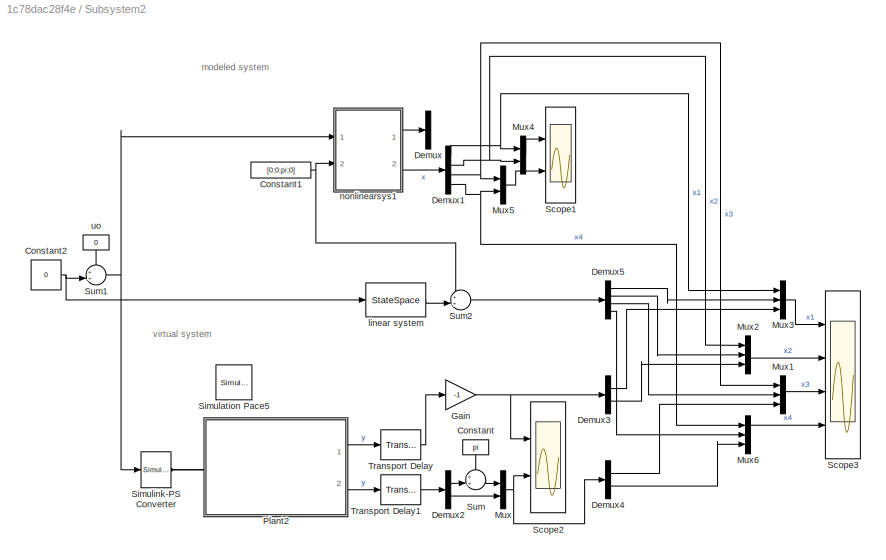
BLOCK [SubSystem] Subsystem2
  Commented = on
  Ports = []
  RequestExecContextInheritance = off
BLOCK [Constant] Subsystem2/Constant
  Value = pi
BLOCK [Constant] Subsystem2/Constant1
  Value = [0;0;pi;0]
BLOCK [Constant] Subsystem2/Constant2
  Value = 0
BLOCK [Demux] Subsystem2/Demux
  DisplayOption = bar
  Outputs = 2
  Ports = [1, 2]
BLOCK [Demux] Subsystem2/Demux1
  DisplayOption = bar
  Ports = [1, 4]
BLOCK [Demux] Subsystem2/Demux2
  DisplayOption = bar
  Outputs = 2
  Ports = [1, 2]
BLOCK [Demux] Subsystem2/Demux3
  DisplayOption = bar
  Outputs = 2
  Ports = [1, 2]
BLOCK [Demux] Subsystem2/Demux4
  DisplayOption = bar
  Outputs = 2
  Ports = [1, 2]
BLOCK [Demux] Subsystem2/Demux5
  DisplayOption = bar
  Ports = [1, 4]
BLOCK [Gain] Subsystem2/Gain
  Gain = -1
  Multiplication = Matrix(u*K)
  OutDataTypeStr = Inherit: Inherit via internal rule
  ParamDataTypeStr = Inherit: Inherit via internal rule
  SaturateOnIntegerOverflow = off
BLOCK [Mux] Subsystem2/Mux
  DisplayOption = bar
  Inputs = 2
  Ports = [2, 1]
BLOCK [Mux] Subsystem2/Mux1
  DisplayOption = bar
  Inputs = 3
  Ports = [3, 1]
BLOCK [Mux] Subsystem2/Mux2
  DisplayOption = bar
  Inputs = 3
  Ports = [3, 1]
BLOCK [Mux] Subsystem2/Mux3
  DisplayOption = bar
  Inputs = 3
  Ports = [3, 1]
BLOCK [Mux] Subsystem2/Mux4
  DisplayOption = bar
  Inputs = 2
  Ports = [2, 1]
BLOCK [Mux] Subsystem2/Mux5
  DisplayOption = bar
  Inputs = 2
  Ports = [2, 1]
BLOCK [Mux] Subsystem2/Mux6
  DisplayOption = bar
  Inputs = 3
  Ports = [3, 1]
BLOCK [SubSystem] Subsystem2/Plant2
  Ports = [0, 2, 0, 0, 0, 1]
  RequestExecContextInheritance = off
BLOCK [Reference] Subsystem2/Plant2/Base  REF=sm_lib/Body Elements/Solid
  Ports = [0, 0, 0, 0, 0, 0, 1]
  SourceBlock = sm_lib/Body Elements/Solid
  SourceProductBaseCode = MS
  SourceProductName = Simscape Multibody
  SourceType = Solid
BLOCK [BusCreator] Subsystem2/Plant2/Bus Creator
  DisplayOption = bar
  InheritFromInputs = on
  Inputs = 2
  Ports = [2, 1]
BLOCK [BusCreator] Subsystem2/Plant2/Bus Creator1
  DisplayOption = bar
  InheritFromInputs = on
  Inputs = 2
  Ports = [2, 1]
BLOCK [PMIOPort] Subsystem2/Plant2/ControlleTorque
  Side = Left
BLOCK [Reference] Subsystem2/Plant2/MechanismConfiguration  REF=sm_lib/Utilities/Mechanism
Configuration
  Ports = [0, 0, 0, 0, 0, 0, 1]
  SourceBlock = sm_lib/Utilities/Mechanism\nConfiguration
  SourceProductBaseCode = MS
  SourceProductName = Simscape Multibody
  SourceType = Mechanism\nConfiguration
BLOCK [Reference] Subsystem2/Plant2/PS-Simulink Converter  REF=nesl_utility/PS-Simulink
Converter
  Ports = [0, 1, 0, 0, 0, 1]
  SourceBlock = nesl_utility/PS-Simulink\nConverter
  SourceProductBaseCode = SS
  SourceProductName = Simscape
  SourceType = PS-Simulink\nConverter
BLOCK [Reference] Subsystem2/Plant2/PS-Simulink Converter1  REF=nesl_utility/PS-Simulink
Converter
  Ports = [0, 1, 0, 0, 0, 1]
  SourceBlock = nesl_utility/PS-Simulink\nConverter
  SourceProductBaseCode = SS
  SourceProductName = Simscape
  SourceType = PS-Simulink\nConverter
BLOCK [Reference] Subsystem2/Plant2/PS-Simulink Converter2  REF=nesl_utility/PS-Simulink
Converter
  Ports = [0, 1, 0, 0, 0, 1]
  SourceBlock = nesl_utility/PS-Simulink\nConverter
  SourceProductBaseCode = SS
  SourceProductName = Simscape
  SourceType = PS-Simulink\nConverter
BLOCK [Reference] Subsystem2/Plant2/PS-Simulink Converter4  REF=nesl_utility/PS-Simulink
Converter
  Ports = [0, 1, 0, 0, 0, 1]
  SourceBlock = nesl_utility/PS-Simulink\nConverter
  SourceProductBaseCode = SS
  SourceProductName = Simscape
  SourceType = PS-Simulink\nConverter
BLOCK [Reference] Subsystem2/Plant2/Pin  REF=sm_lib/Body Elements/Solid
  Ports = [0, 0, 0, 0, 0, 0, 1]
  SourceBlock = sm_lib/Body Elements/Solid
  SourceProductBaseCode = MS
  SourceProductName = Simscape Multibody
  SourceType = Solid
BLOCK [Reference] Subsystem2/Plant2/Revolute Joint alpha  REF=sm_lib/Joints/Revolute Joint
  Ports = [0, 0, 0, 0, 0, 2, 3]
  SourceBlock = sm_lib/Joints/Revolute Joint
  SourceProductBaseCode = MS
  SourceProductName = Simscape Multibody
  SourceType = Revolute Joint
BLOCK [Reference] Subsystem2/Plant2/Revolute Joint beta  REF=sm_lib/Joints/Revolute Joint
  Ports = [0, 0, 0, 0, 0, 2, 3]
  SourceBlock = sm_lib/Joints/Revolute Joint
  SourceProductBaseCode = MS
  SourceProductName = Simscape Multibody
  SourceType = Revolute Joint
BLOCK [Reference] Subsystem2/Plant2/Rigid Transform  REF=sm_lib/Frames and
Transforms/Rigid
Transform
  Ports = [0, 0, 0, 0, 0, 1, 1]
  SourceBlock = sm_lib/Frames and\nTransforms/Rigid\nTransform
  SourceProductBaseCode = MS
  SourceProductName = Simscape Multibody
  SourceType = Rigid\nTransform
BLOCK [Reference] Subsystem2/Plant2/Solver Configuration  REF=nesl_utility/Solver
Configuration
  Ports = [0, 0, 0, 0, 0, 0, 1]
  SourceBlock = nesl_utility/Solver\nConfiguration
  SourceProductBaseCode = SS
  SourceProductName = Simscape
  SourceType = Solver\nConfiguration
BLOCK [Reference] Subsystem2/Plant2/World  REF=sm_lib/Frames and
Transforms/World Frame
  Ports = [0, 0, 0, 0, 0, 0, 1]
  SourceBlock = sm_lib/Frames and\nTransforms/World Frame
  SourceProductBaseCode = MS
  SourceProductName = Simscape Multibody
  SourceType = World Frame
BLOCK [Outport] Subsystem2/Plant2/alpha_bus
  IconDisplay = Port number
BLOCK [Outport] Subsystem2/Plant2/beta_bus
  IconDisplay = Port number
  Port = 2
BLOCK [SubSystem] Subsystem2/Plant2/h_39_axle_1_RIGID
  Ports = [0, 0, 0, 0, 0, 1, 1]
  RequestExecContextInheritance = off
BLOCK [PMIOPort] Subsystem2/Plant2/h_39_axle_1_RIGID/B
  Side = Left
BLOCK [PMIOPort] Subsystem2/Plant2/h_39_axle_1_RIGID/F
  Port = 2
  Side = Right
BLOCK [Reference] Subsystem2/Plant2/h_39_axle_1_RIGID/Solid  REF=sm_lib/Body Elements/Solid
  Ports = [0, 0, 0, 0, 0, 0, 1]
  SourceBlock = sm_lib/Body Elements/Solid
  SourceProductBaseCode = MS
  SourceProductName = Simscape Multibody
  SourceType = Solid
BLOCK [Reference] Subsystem2/Plant2/h_39_axle_1_RIGID/Transform  REF=sm_lib/Frames and
Transforms/Rigid
Transform
  Ports = [0, 0, 0, 0, 0, 1, 1]
  SourceBlock = sm_lib/Frames and\nTransforms/Rigid\nTransform
  SourceProductBaseCode = MS
  SourceProductName = Simscape Multibody
  SourceType = Rigid\nTransform
BLOCK [Reference] Subsystem2/Plant2/h_39_axle_1_RIGID/Transform1  REF=sm_lib/Frames and
Transforms/Rigid
Transform
  Ports = [0, 0, 0, 0, 0, 1, 1]
  SourceBlock = sm_lib/Frames and\nTransforms/Rigid\nTransform
  SourceProductBaseCode = MS
  SourceProductName = Simscape Multibody
  SourceType = Rigid\nTransform
BLOCK [Reference] Subsystem2/Plant2/h_39_axle_1_RIGID/Transform2  REF=sm_lib/Frames and
Transforms/Rigid
Transform
  Ports = [0, 0, 0, 0, 0, 1, 1]
  SourceBlock = sm_lib/Frames and\nTransforms/Rigid\nTransform
  SourceProductBaseCode = MS
  SourceProductName = Simscape Multibody
  SourceType = Rigid\nTransform
BLOCK [SubSystem] Subsystem2/Plant2/h_RIP_arm_v2_1_RIGID
  Ports = [0, 0, 0, 0, 0, 1, 1]
  RequestExecContextInheritance = off
BLOCK [PMIOPort] Subsystem2/Plant2/h_RIP_arm_v2_1_RIGID/B
  Side = Left
BLOCK [PMIOPort] Subsystem2/Plant2/h_RIP_arm_v2_1_RIGID/F
  Port = 2
  Side = Right
BLOCK [Reference] Subsystem2/Plant2/h_RIP_arm_v2_1_RIGID/Transform  REF=sm_lib/Frames and
Transforms/Rigid
Transform
  Ports = [0, 0, 0, 0, 0, 1, 1]
  SourceBlock = sm_lib/Frames and\nTransforms/Rigid\nTransform
  SourceProductBaseCode = MS
  SourceProductName = Simscape Multibody
  SourceType = Rigid\nTransform
BLOCK [Reference] Subsystem2/Plant2/h_RIP_arm_v2_1_RIGID/Transform1  REF=sm_lib/Frames and
Transforms/Rigid
Transform
  Ports = [0, 0, 0, 0, 0, 1, 1]
  SourceBlock = sm_lib/Frames and\nTransforms/Rigid\nTransform
  SourceProductBaseCode = MS
  SourceProductName = Simscape Multibody
  SourceType = Rigid\nTransform
BLOCK [Reference] Subsystem2/Plant2/h_RIP_arm_v2_1_RIGID/Transform2  REF=sm_lib/Frames and
Transforms/Rigid
Transform
  Ports = [0, 0, 0, 0, 0, 1, 1]
  SourceBlock = sm_lib/Frames and\nTransforms/Rigid\nTransform
  SourceProductBaseCode = MS
  SourceProductName = Simscape Multibody
  SourceType = Rigid\nTransform
BLOCK [Reference] Subsystem2/Plant2/h_RIP_arm_v2_1_RIGID/Transform3  REF=sm_lib/Frames and
Transforms/Rigid
Transform
  Ports = [0, 0, 0, 0, 0, 1, 1]
  SourceBlock = sm_lib/Frames and\nTransforms/Rigid\nTransform
  SourceProductBaseCode = MS
  SourceProductName = Simscape Multibody
  SourceType = Rigid\nTransform
BLOCK [Reference] Subsystem2/Plant2/h_RIP_arm_v2_1_RIGID/Transform4  REF=sm_lib/Frames and
Transforms/Rigid
Transform
  Ports = [0, 0, 0, 0, 0, 1, 1]
  SourceBlock = sm_lib/Frames and\nTransforms/Rigid\nTransform
  SourceProductBaseCode = MS
  SourceProductName = Simscape Multibody
  SourceType = Rigid\nTransform
BLOCK [Reference] Subsystem2/Plant2/h_RIP_arm_v2_1_RIGID/Transform5  REF=sm_lib/Frames and
Transforms/Rigid
Transform
  Ports = [0, 0, 0, 0, 0, 1, 1]
  SourceBlock = sm_lib/Frames and\nTransforms/Rigid\nTransform
  SourceProductBaseCode = MS
  SourceProductName = Simscape Multibody
  SourceType = Rigid\nTransform
BLOCK [SubSystem] Subsystem2/Plant2/h_RIP_arm_v2_1_RIGID/h_39_axle_1_RIGID
  Ports = [0, 0, 0, 0, 0, 1]
  RequestExecContextInheritance = off
BLOCK [PMIOPort] Subsystem2/Plant2/h_RIP_arm_v2_1_RIGID/h_39_axle_1_RIGID/F
  Side = Left
BLOCK [Reference] Subsystem2/Plant2/h_RIP_arm_v2_1_RIGID/h_39_axle_1_RIGID/Solid  REF=sm_lib/Body Elements/Solid
  Ports = [0, 0, 0, 0, 0, 0, 1]
  SourceBlock = sm_lib/Body Elements/Solid
  SourceProductBaseCode = MS
  SourceProductName = Simscape Multibody
  SourceType = Solid
BLOCK [SubSystem] Subsystem2/Plant2/h_RIP_arm_v2_1_RIGID/h_axle_asymmetric_1_RIGID
  Ports = [0, 0, 0, 0, 0, 1]
  RequestExecContextInheritance = off
BLOCK [PMIOPort] Subsystem2/Plant2/h_RIP_arm_v2_1_RIGID/h_axle_asymmetric_1_RIGID/F
  Side = Left
BLOCK [Reference] Subsystem2/Plant2/h_RIP_arm_v2_1_RIGID/h_axle_asymmetric_1_RIGID/Solid  REF=sm_lib/Body Elements/Solid
  Ports = [0, 0, 0, 0, 0, 0, 1]
  SourceBlock = sm_lib/Body Elements/Solid
  SourceProductBaseCode = MS
  SourceProductName = Simscape Multibody
  SourceType = Solid
BLOCK [SubSystem] Subsystem2/Plant2/h_RIP_arm_v2_1_RIGID/h_collar_1_RIGID
  Ports = [0, 0, 0, 0, 0, 1]
  RequestExecContextInheritance = off
BLOCK [PMIOPort] Subsystem2/Plant2/h_RIP_arm_v2_1_RIGID/h_collar_1_RIGID/F
  Side = Left
BLOCK [Reference] Subsystem2/Plant2/h_RIP_arm_v2_1_RIGID/h_collar_1_RIGID/Solid  REF=sm_lib/Body Elements/Solid
  Ports = [0, 0, 0, 0, 0, 0, 1]
  SourceBlock = sm_lib/Body Elements/Solid
  SourceProductBaseCode = MS
  SourceProductName = Simscape Multibody
  SourceType = Solid
BLOCK [SubSystem] Subsystem2/Plant2/h_RIP_arm_v2_1_RIGID/h_connector_straight_1_RIGID
  Ports = [0, 0, 0, 0, 0, 1]
  RequestExecContextInheritance = off
BLOCK [PMIOPort] Subsystem2/Plant2/h_RIP_arm_v2_1_RIGID/h_connector_straight_1_RIGID/F
  Side = Left
BLOCK [Reference] Subsystem2/Plant2/h_RIP_arm_v2_1_RIGID/h_connector_straight_1_RIGID/Solid  REF=sm_lib/Body Elements/Solid
  Ports = [0, 0, 0, 0, 0, 0, 1]
  SourceBlock = sm_lib/Body Elements/Solid
  SourceProductBaseCode = MS
  SourceProductName = Simscape Multibody
  SourceType = Solid
BLOCK [SubSystem] Subsystem2/Plant2/h_RIP_pendulum_1_RIGID
  Ports = [0, 0, 0, 0, 0, 1]
  RequestExecContextInheritance = off
BLOCK [PMIOPort] Subsystem2/Plant2/h_RIP_pendulum_1_RIGID/F
  Side = Left
BLOCK [Reference] Subsystem2/Plant2/h_RIP_pendulum_1_RIGID/Transform  REF=sm_lib/Frames and
Transforms/Rigid
Transform
  Ports = [0, 0, 0, 0, 0, 1, 1]
  SourceBlock = sm_lib/Frames and\nTransforms/Rigid\nTransform
  SourceProductBaseCode = MS
  SourceProductName = Simscape Multibody
  SourceType = Rigid\nTransform
BLOCK [Reference] Subsystem2/Plant2/h_RIP_pendulum_1_RIGID/Transform1  REF=sm_lib/Frames and
Transforms/Rigid
Transform
  Ports = [0, 0, 0, 0, 0, 1, 1]
  SourceBlock = sm_lib/Frames and\nTransforms/Rigid\nTransform
  SourceProductBaseCode = MS
  SourceProductName = Simscape Multibody
  SourceType = Rigid\nTransform
BLOCK [Reference] Subsystem2/Plant2/h_RIP_pendulum_1_RIGID/Transform2  REF=sm_lib/Frames and
Transforms/Rigid
Transform
  Ports = [0, 0, 0, 0, 0, 1, 1]
  SourceBlock = sm_lib/Frames and\nTransforms/Rigid\nTransform
  SourceProductBaseCode = MS
  SourceProductName = Simscape Multibody
  SourceType = Rigid\nTransform
BLOCK [Reference] Subsystem2/Plant2/h_RIP_pendulum_1_RIGID/Transform3  REF=sm_lib/Frames and
Transforms/Rigid
Transform
  Ports = [0, 0, 0, 0, 0, 1, 1]
  SourceBlock = sm_lib/Frames and\nTransforms/Rigid\nTransform
  SourceProductBaseCode = MS
  SourceProductName = Simscape Multibody
  SourceType = Rigid\nTransform
BLOCK [Reference] Subsystem2/Plant2/h_RIP_pendulum_1_RIGID/Transform4  REF=sm_lib/Frames and
Transforms/Rigid
Transform
  Ports = [0, 0, 0, 0, 0, 1, 1]
  SourceBlock = sm_lib/Frames and\nTransforms/Rigid\nTransform
  SourceProductBaseCode = MS
  SourceProductName = Simscape Multibody
  SourceType = Rigid\nTransform
BLOCK [Reference] Subsystem2/Plant2/h_RIP_pendulum_1_RIGID/Transform5  REF=sm_lib/Frames and
Transforms/Rigid
Transform
  Ports = [0, 0, 0, 0, 0, 1, 1]
  SourceBlock = sm_lib/Frames and\nTransforms/Rigid\nTransform
  SourceProductBaseCode = MS
  SourceProductName = Simscape Multibody
  SourceType = Rigid\nTransform
BLOCK [Reference] Subsystem2/Plant2/h_RIP_pendulum_1_RIGID/Transform6  REF=sm_lib/Frames and
Transforms/Rigid
Transform
  Ports = [0, 0, 0, 0, 0, 1, 1]
  SourceBlock = sm_lib/Frames and\nTransforms/Rigid\nTransform
  SourceProductBaseCode = MS
  SourceProductName = Simscape Multibody
  SourceType = Rigid\nTransform
BLOCK [SubSystem] Subsystem2/Plant2/h_RIP_pendulum_1_RIGID/h_10_axle_1_RIGID
  Ports = [0, 0, 0, 0, 0, 1]
  RequestExecContextInheritance = off
BLOCK [PMIOPort] Subsystem2/Plant2/h_RIP_pendulum_1_RIGID/h_10_axle_1_RIGID/F
  Side = Left
BLOCK [Reference] Subsystem2/Plant2/h_RIP_pendulum_1_RIGID/h_10_axle_1_RIGID/Solid  REF=sm_lib/Body Elements/Solid
  Ports = [0, 0, 0, 0, 0, 0, 1]
  SourceBlock = sm_lib/Body Elements/Solid
  SourceProductBaseCode = MS
  SourceProductName = Simscape Multibody
  SourceType = Solid
BLOCK [SubSystem] Subsystem2/Plant2/h_RIP_pendulum_1_RIGID/h_79_axle_1_RIGID
  Ports = [0, 0, 0, 0, 0, 1]
  RequestExecContextInheritance = off
BLOCK [PMIOPort] Subsystem2/Plant2/h_RIP_pendulum_1_RIGID/h_79_axle_1_RIGID/F
  Side = Left
BLOCK [Reference] Subsystem2/Plant2/h_RIP_pendulum_1_RIGID/h_79_axle_1_RIGID/Solid  REF=sm_lib/Body Elements/Solid
  Ports = [0, 0, 0, 0, 0, 0, 1]
  SourceBlock = sm_lib/Body Elements/Solid
  SourceProductBaseCode = MS
  SourceProductName = Simscape Multibody
  SourceType = Solid
BLOCK [SubSystem] Subsystem2/Plant2/h_RIP_pendulum_1_RIGID/h_connector_right_angle_1_RIGID
  Ports = [0, 0, 0, 0, 0, 1]
  RequestExecContextInheritance = off
BLOCK [PMIOPort] Subsystem2/Plant2/h_RIP_pendulum_1_RIGID/h_connector_right_angle_1_RIGID/F
  Side = Left
BLOCK [Reference] Subsystem2/Plant2/h_RIP_pendulum_1_RIGID/h_connector_right_angle_1_RIGID/Solid  REF=sm_lib/Body Elements/Solid
  Ports = [0, 0, 0, 0, 0, 0, 1]
  SourceBlock = sm_lib/Body Elements/Solid
  SourceProductBaseCode = MS
  SourceProductName = Simscape Multibody
  SourceType = Solid
BLOCK [SubSystem] Subsystem2/Plant2/h_RIP_pendulum_1_RIGID/h_connector_straight_1_RIGID
  Ports = [0, 0, 0, 0, 0, 1]
  RequestExecContextInheritance = off
BLOCK [PMIOPort] Subsystem2/Plant2/h_RIP_pendulum_1_RIGID/h_connector_straight_1_RIGID/F
  Side = Left
BLOCK [Reference] Subsystem2/Plant2/h_RIP_pendulum_1_RIGID/h_connector_straight_1_RIGID/Solid  REF=sm_lib/Body Elements/Solid
  Ports = [0, 0, 0, 0, 0, 0, 1]
  SourceBlock = sm_lib/Body Elements/Solid
  SourceProductBaseCode = MS
  SourceProductName = Simscape Multibody
  SourceType = Solid
BLOCK [SubSystem] Subsystem2/Plant2/h_RIP_pendulum_1_RIGID/h_connector_straight_1_RIGID1
  Ports = [0, 0, 0, 0, 0, 1]
  RequestExecContextInheritance = off
BLOCK [PMIOPort] Subsystem2/Plant2/h_RIP_pendulum_1_RIGID/h_connector_straight_1_RIGID1/F
  Side = Left
BLOCK [Reference] Subsystem2/Plant2/h_RIP_pendulum_1_RIGID/h_connector_straight_1_RIGID1/Solid  REF=sm_lib/Body Elements/Solid
  Ports = [0, 0, 0, 0, 0, 0, 1]
  SourceBlock = sm_lib/Body Elements/Solid
  SourceProductBaseCode = MS
  SourceProductName = Simscape Multibody
  SourceType = Solid
BLOCK [SubSystem] Subsystem2/Plant2/h_encoderaxles_1_RIGID
  Ports = [0, 0, 0, 0, 0, 1, 1]
  RequestExecContextInheritance = off
BLOCK [PMIOPort] Subsystem2/Plant2/h_encoderaxles_1_RIGID/B
  Side = Left
BLOCK [Reference] Subsystem2/Plant2/h_encoderaxles_1_RIGID/Design_Correction  REF=sm_lib/Frames and
Transforms/Rigid
Transform
  Ports = [0, 0, 0, 0, 0, 1, 1]
  SourceBlock = sm_lib/Frames and\nTransforms/Rigid\nTransform
  SourceProductBaseCode = MS
  SourceProductName = Simscape Multibody
  SourceType = Rigid\nTransform
BLOCK [PMIOPort] Subsystem2/Plant2/h_encoderaxles_1_RIGID/F
  Port = 2
  Side = Right
BLOCK [Reference] Subsystem2/Plant2/h_encoderaxles_1_RIGID/Transform  REF=sm_lib/Frames and
Transforms/Rigid
Transform
  Ports = [0, 0, 0, 0, 0, 1, 1]
  SourceBlock = sm_lib/Frames and\nTransforms/Rigid\nTransform
  SourceProductBaseCode = MS
  SourceProductName = Simscape Multibody
  SourceType = Rigid\nTransform
BLOCK [Reference] Subsystem2/Plant2/h_encoderaxles_1_RIGID/Transform1  REF=sm_lib/Frames and
Transforms/Rigid
Transform
  Ports = [0, 0, 0, 0, 0, 1, 1]
  SourceBlock = sm_lib/Frames and\nTransforms/Rigid\nTransform
  SourceProductBaseCode = MS
  SourceProductName = Simscape Multibody
  SourceType = Rigid\nTransform
BLOCK [Reference] Subsystem2/Plant2/h_encoderaxles_1_RIGID/Transform2  REF=sm_lib/Frames and
Transforms/Rigid
Transform
  Ports = [0, 0, 0, 0, 0, 1, 1]
  SourceBlock = sm_lib/Frames and\nTransforms/Rigid\nTransform
  SourceProductBaseCode = MS
  SourceProductName = Simscape Multibody
  SourceType = Rigid\nTransform
BLOCK [Reference] Subsystem2/Plant2/h_encoderaxles_1_RIGID/Transform3  REF=sm_lib/Frames and
Transforms/Rigid
Transform
  Ports = [0, 0, 0, 0, 0, 1, 1]
  SourceBlock = sm_lib/Frames and\nTransforms/Rigid\nTransform
  SourceProductBaseCode = MS
  SourceProductName = Simscape Multibody
  SourceType = Rigid\nTransform
BLOCK [Reference] Subsystem2/Plant2/h_encoderaxles_1_RIGID/Transform4  REF=sm_lib/Frames and
Transforms/Rigid
Transform
  Ports = [0, 0, 0, 0, 0, 1, 1]
  SourceBlock = sm_lib/Frames and\nTransforms/Rigid\nTransform
  SourceProductBaseCode = MS
  SourceProductName = Simscape Multibody
  SourceType = Rigid\nTransform
BLOCK [Reference] Subsystem2/Plant2/h_encoderaxles_1_RIGID/Transform5  REF=sm_lib/Frames and
Transforms/Rigid
Transform
  Ports = [0, 0, 0, 0, 0, 1, 1]
  SourceBlock = sm_lib/Frames and\nTransforms/Rigid\nTransform
  SourceProductBaseCode = MS
  SourceProductName = Simscape Multibody
  SourceType = Rigid\nTransform
BLOCK [Reference] Subsystem2/Plant2/h_encoderaxles_1_RIGID/Transform6  REF=sm_lib/Frames and
Transforms/Rigid
Transform
  Ports = [0, 0, 0, 0, 0, 1, 1]
  SourceBlock = sm_lib/Frames and\nTransforms/Rigid\nTransform
  SourceProductBaseCode = MS
  SourceProductName = Simscape Multibody
  SourceType = Rigid\nTransform
BLOCK [Reference] Subsystem2/Plant2/h_encoderaxles_1_RIGID/Transform7  REF=sm_lib/Frames and
Transforms/Rigid
Transform
  Ports = [0, 0, 0, 0, 0, 1, 1]
  SourceBlock = sm_lib/Frames and\nTransforms/Rigid\nTransform
  SourceProductBaseCode = MS
  SourceProductName = Simscape Multibody
  SourceType = Rigid\nTransform
BLOCK [SubSystem] Subsystem2/Plant2/h_encoderaxles_1_RIGID/connector_right_angle_1_RIGID
  Ports = [0, 0, 0, 0, 0, 1]
  RequestExecContextInheritance = off
BLOCK [PMIOPort] Subsystem2/Plant2/h_encoderaxles_1_RIGID/connector_right_angle_1_RIGID/F
  Side = Left
BLOCK [Reference] Subsystem2/Plant2/h_encoderaxles_1_RIGID/connector_right_angle_1_RIGID/Solid  REF=sm_lib/Body Elements/Solid
  Ports = [0, 0, 0, 0, 0, 0, 1]
  SourceBlock = sm_lib/Body Elements/Solid
  SourceProductBaseCode = MS
  SourceProductName = Simscape Multibody
  SourceType = Solid
BLOCK [SubSystem] Subsystem2/Plant2/h_encoderaxles_1_RIGID/glidewheel_encoder_2_RIGID
  Ports = [0, 0, 0, 0, 0, 1]
  RequestExecContextInheritance = off
BLOCK [PMIOPort] Subsystem2/Plant2/h_encoderaxles_1_RIGID/glidewheel_encoder_2_RIGID/F
  Side = Left
BLOCK [Reference] Subsystem2/Plant2/h_encoderaxles_1_RIGID/glidewheel_encoder_2_RIGID/Solid  REF=sm_lib/Body Elements/Solid
  Ports = [0, 0, 0, 0, 0, 0, 1]
  SourceBlock = sm_lib/Body Elements/Solid
  SourceProductBaseCode = MS
  SourceProductName = Simscape Multibody
  SourceType = Solid
BLOCK [SubSystem] Subsystem2/Plant2/h_encoderaxles_1_RIGID/h_triangle_1_RIGID
  Ports = [0, 0, 0, 0, 0, 1]
  RequestExecContextInheritance = off
BLOCK [PMIOPort] Subsystem2/Plant2/h_encoderaxles_1_RIGID/h_triangle_1_RIGID/F
  Side = Left
BLOCK [Reference] Subsystem2/Plant2/h_encoderaxles_1_RIGID/h_triangle_1_RIGID/Solid  REF=sm_lib/Body Elements/Solid
  Ports = [0, 0, 0, 0, 0, 0, 1]
  SourceBlock = sm_lib/Body Elements/Solid
  SourceProductBaseCode = MS
  SourceProductName = Simscape Multibody
  SourceType = Solid
BLOCK [SubSystem] Subsystem2/Plant2/h_encoderaxles_1_RIGID/x86_axle_4_RIGID
  Ports = [0, 0, 0, 0, 0, 1]
  RequestExecContextInheritance = off
BLOCK [PMIOPort] Subsystem2/Plant2/h_encoderaxles_1_RIGID/x86_axle_4_RIGID/F
  Side = Left
BLOCK [Reference] Subsystem2/Plant2/h_encoderaxles_1_RIGID/x86_axle_4_RIGID/Solid  REF=sm_lib/Body Elements/Solid
  Ports = [0, 0, 0, 0, 0, 0, 1]
  SourceBlock = sm_lib/Body Elements/Solid
  SourceProductBaseCode = MS
  SourceProductName = Simscape Multibody
  SourceType = Solid
BLOCK [SubSystem] Subsystem2/Plant2/h_encoderaxles_1_RIGID/x86_axle_5_RIGID
  Ports = [0, 0, 0, 0, 0, 1]
  RequestExecContextInheritance = off
BLOCK [PMIOPort] Subsystem2/Plant2/h_encoderaxles_1_RIGID/x86_axle_5_RIGID/F
  Side = Left
BLOCK [Reference] Subsystem2/Plant2/h_encoderaxles_1_RIGID/x86_axle_5_RIGID/Solid  REF=sm_lib/Body Elements/Solid
  Ports = [0, 0, 0, 0, 0, 0, 1]
  SourceBlock = sm_lib/Body Elements/Solid
  SourceProductBaseCode = MS
  SourceProductName = Simscape Multibody
  SourceType = Solid
BLOCK [SubSystem] Subsystem2/Plant2/h_encoderaxles_1_RIGID/x86_axle_6_RIGID
  Ports = [0, 0, 0, 0, 0, 1]
  RequestExecContextInheritance = off
BLOCK [PMIOPort] Subsystem2/Plant2/h_encoderaxles_1_RIGID/x86_axle_6_RIGID/F
  Side = Left
BLOCK [Reference] Subsystem2/Plant2/h_encoderaxles_1_RIGID/x86_axle_6_RIGID/Solid  REF=sm_lib/Body Elements/Solid
  Ports = [0, 0, 0, 0, 0, 0, 1]
  SourceBlock = sm_lib/Body Elements/Solid
  SourceProductBaseCode = MS
  SourceProductName = Simscape Multibody
  SourceType = Solid
BLOCK [Scope] Subsystem2/Scope1
  Floating = off
  NumInputPorts = 2
  Ports = [2]
  ScopeSpecificationString = Simulink.scopes.TimeScopeBlockCfg('CurrentConfiguration', extmgr.ConfigurationSet(extmgr.Configuration('Core','General UI',true),extmgr.Configuration('Core','Source UI',true),extmgr.Configuration('Sources','WiredSimulink',true,'DataLoggingVariableName','ScopeData2'),extmgr.Configuration('Visuals','Time Domain',true,'SerializedDisplays',{struct('MinYLimReal','-4.55533','MaxYLimReal','16.06114','YLa...<+2065ch>
BLOCK [Scope] Subsystem2/Scope2
  Floating = off
  NumInputPorts = 2
  Ports = [2]
  ScopeSpecificationString = Simulink.scopes.TimeScopeBlockCfg('CurrentConfiguration', extmgr.ConfigurationSet(extmgr.Configuration('Core','General UI',true),extmgr.Configuration('Core','Source UI',true),extmgr.Configuration('Sources','WiredSimulink',true,'DataLoggingVariableName','ScopeData1'),extmgr.Configuration('Visuals','Time Domain',true,'SerializedDisplays',{struct('MinYLimReal','-4.45615','MaxYLimReal','16.62759','YLa...<+2272ch>
BLOCK [Scope] Subsystem2/Scope3
  Floating = off
  NumInputPorts = 4
  Ports = [4]
  ScopeSpecificationString = Simulink.scopes.TimeScopeBlockCfg('CurrentConfiguration', extmgr.ConfigurationSet(extmgr.Configuration('Core','General UI',true),extmgr.Configuration('Core','Source UI',true),extmgr.Configuration('Sources','WiredSimulink',true,'DataLoggingVariableName','ScopeData3'),extmgr.Configuration('Visuals','Time Domain',true,'SerializedDisplays',{struct('MinYLimReal','-1.72153','MaxYLimReal','1.26813','YLab...<+3545ch>
BLOCK [Reference] Subsystem2/Simulation Pace5  REF=aerolibanimutils/Simulation Pace
  AttributesFormatString = %<SimulationPace> sec/sec
  Ports = []
  SourceBlock = aerolibanimutils/Simulation Pace
  SourceProductBaseCode = AE
  SourceProductName = Aerospace Blockset
  SourceType = Simulation Pace
BLOCK [Reference] Subsystem2/Simulink-PS Converter  REF=nesl_utility/Simulink-PS
Converter
  Ports = [1, 0, 0, 0, 0, 0, 1]
  SourceBlock = nesl_utility/Simulink-PS\nConverter
  SourceProductBaseCode = SS
  SourceProductName = Simscape
  SourceType = Simulink-PS\nConverter
BLOCK [Sum] Subsystem2/Sum
  IconShape = round
  InputSameDT = off
  Inputs = ++|
  OutDataTypeStr = Inherit: Inherit via internal rule
  Ports = [2, 1]
  SaturateOnIntegerOverflow = off
BLOCK [Sum] Subsystem2/Sum1
  IconShape = round
  InputSameDT = off
  Inputs = ++|
  OutDataTypeStr = Inherit: Inherit via internal rule
  Ports = [2, 1]
  SaturateOnIntegerOverflow = off
BLOCK [Sum] Subsystem2/Sum2
  IconShape = round
  InputSameDT = off
  Inputs = ++|
  OutDataTypeStr = Inherit: Inherit via internal rule
  Ports = [2, 1]
  SaturateOnIntegerOverflow = off
BLOCK [TransportDelay] Subsystem2/Transport Delay
  DelayTime = 2
  Ports = [1, 1]
BLOCK [TransportDelay] Subsystem2/Transport Delay1
  DelayTime = 2
  Ports = [1, 1]
BLOCK [StateSpace] Subsystem2/linear system
  A = A
  B = B
  C = eye(4)
  D = zeros(4,1)
  InitialCondition = [0;0;0;0]
  Ports = [1, 1]
BLOCK [SubSystem] Subsystem2/nonlinearsys1
  Ports = [2, 2]
  RequestExecContextInheritance = off
BLOCK [Integrator] Subsystem2/nonlinearsys1/Integrator
  InitialCondition = [0;0;0.5]
  InitialConditionSource = external
  Ports = [2, 1]
BLOCK [SubSystem] Subsystem2/nonlinearsys1/MATLAB Function
  ErrorFcn = Stateflow.Translate.translate
  PermitHierarchicalResolution = ExplicitOnly
  Ports = [2, 1]
  RequestExecContextInheritance = off
  SFBlockType = MATLAB Function
  TreatAsAtomicUnit = on
BLOCK [Demux] Subsystem2/nonlinearsys1/MATLAB Function/ Demux 
  Outputs = 1
  Ports = [1, 1]
BLOCK [S-Function] Subsystem2/nonlinearsys1/MATLAB Function/ SFunction 
  EnableBusSupport = on
  FunctionName = sf_sfun
  PortCounts = [2 2]
  Ports = [2, 2]
  SFcnIsStateOwnerBlock = off
  SFunctionDeploymentMode = off
  Tag = Stateflow S-Function furutapendulumsim2 2
BLOCK [Terminator] Subsystem2/nonlinearsys1/MATLAB Function/ Terminator 
BLOCK [Outport] Subsystem2/nonlinearsys1/MATLAB Function/f
  IconDisplay = Port number
BLOCK [Inport] Subsystem2/nonlinearsys1/MATLAB Function/u
  IconDisplay = Port number
  Port = 2
BLOCK [Inport] Subsystem2/nonlinearsys1/MATLAB Function/x
  IconDisplay = Port number
BLOCK [SubSystem] Subsystem2/nonlinearsys1/MATLAB Function1
  ErrorFcn = Stateflow.Translate.translate
  PermitHierarchicalResolution = ExplicitOnly
  Ports = [2, 1]
  RequestExecContextInheritance = off
  SFBlockType = MATLAB Function
  TreatAsAtomicUnit = on
BLOCK [Demux] Subsystem2/nonlinearsys1/MATLAB Function1/ Demux 
  Outputs = 1
  Ports = [1, 1]
BLOCK [S-Function] Subsystem2/nonlinearsys1/MATLAB Function1/ SFunction 
  EnableBusSupport = on
  FunctionName = sf_sfun
  PortCounts = [2 2]
  Ports = [2, 2]
  SFcnIsStateOwnerBlock = off
  SFunctionDeploymentMode = off
  Tag = Stateflow S-Function furutapendulumsim2 3
BLOCK [Terminator] Subsystem2/nonlinearsys1/MATLAB Function1/ Terminator 
BLOCK [Inport] Subsystem2/nonlinearsys1/MATLAB Function1/u
  IconDisplay = Port number
  Port = 2
BLOCK [Inport] Subsystem2/nonlinearsys1/MATLAB Function1/x
  IconDisplay = Port number
BLOCK [Outport] Subsystem2/nonlinearsys1/MATLAB Function1/y
  IconDisplay = Port number
BLOCK [Inport] Subsystem2/nonlinearsys1/u 
  IconDisplay = Port number
BLOCK [Outport] Subsystem2/nonlinearsys1/x
  IconDisplay = Port number
  Port = 2
BLOCK [Inport] Subsystem2/nonlinearsys1/xo
  IconDisplay = Port number
  Port = 2
BLOCK [Outport] Subsystem2/nonlinearsys1/y
  IconDisplay = Port number
BLOCK [Constant] Subsystem2/uo
  Value = 0
BLOCK [Sum] Sum10
  Commented = on
  IconShape = round
  InputSameDT = off
  Inputs = -+|
  OutDataTypeStr = Inherit: Inherit via internal rule
  Ports = [2, 1]
  SaturateOnIntegerOverflow = off
BLOCK [Sum] Sum11
  Commented = on
  IconShape = round
  InputSameDT = off
  Inputs = -+|
  OutDataTypeStr = Inherit: Inherit via internal rule
  Ports = [2, 1]
  SaturateOnIntegerOverflow = off
BLOCK [Sum] Sum12
  Commented = on
  IconShape = round
  InputSameDT = off
  Inputs = ++|
  OutDataTypeStr = Inherit: Inherit via internal rule
  Ports = [2, 1]
  SaturateOnIntegerOverflow = off
BLOCK [Sum] Sum13
  Commented = on
  IconShape = round
  InputSameDT = off
  Inputs = -+|
  OutDataTypeStr = Inherit: Inherit via internal rule
  Ports = [2, 1]
  SaturateOnIntegerOverflow = off
BLOCK [Sum] Sum19
  Commented = on
  IconShape = round
  InputSameDT = off
  Inputs = -+|
  OutDataTypeStr = Inherit: Inherit via internal rule
  Ports = [2, 1]
  SaturateOnIntegerOverflow = off
BLOCK [Sum] Sum20
  Commented = on
  IconShape = round
  InputSameDT = off
  Inputs = -+|
  OutDataTypeStr = Inherit: Inherit via internal rule
  Ports = [2, 1]
  SaturateOnIntegerOverflow = off
BLOCK [Sum] Sum21
  Commented = on
  IconShape = round
  InputSameDT = off
  Inputs = ++|
  OutDataTypeStr = Inherit: Inherit via internal rule
  Ports = [2, 1]
  SaturateOnIntegerOverflow = off
BLOCK [Sum] Sum22
  Commented = on
  IconShape = round
  InputSameDT = off
  Inputs = -+|
  OutDataTypeStr = Inherit: Inherit via internal rule
  Ports = [2, 1]
  SaturateOnIntegerOverflow = off
BLOCK [Sum] Sum23
  Commented = on
  IconShape = round
  InputSameDT = off
  Inputs = -+|
  OutDataTypeStr = Inherit: Inherit via internal rule
  Ports = [2, 1]
  SaturateOnIntegerOverflow = off
BLOCK [Sum] Sum24
  Commented = on
  IconShape = round
  InputSameDT = off
  Inputs = ++|
  OutDataTypeStr = Inherit: Inherit via internal rule
  Ports = [2, 1]
  SaturateOnIntegerOverflow = off
BLOCK [Sum] Sum25
  Commented = on
  IconShape = round
  InputSameDT = off
  Inputs = -+|
  OutDataTypeStr = Inherit: Inherit via internal rule
  Ports = [2, 1]
  SaturateOnIntegerOverflow = off
BLOCK [Sum] Sum26
  Commented = on
  IconShape = round
  InputSameDT = off
  Inputs = -+|
  OutDataTypeStr = Inherit: Inherit via internal rule
  Ports = [2, 1]
  SaturateOnIntegerOverflow = off
BLOCK [Sum] Sum5
  Commented = on
  IconShape = round
  InputSameDT = off
  Inputs = -+|
  OutDataTypeStr = Inherit: Inherit via internal rule
  Ports = [2, 1]
  SaturateOnIntegerOverflow = off
BLOCK [Sum] Sum7
  Commented = on
  IconShape = round
  InputSameDT = off
  Inputs = -+|
  OutDataTypeStr = Inherit: Inherit via internal rule
  Ports = [2, 1]
  SaturateOnIntegerOverflow = off
BLOCK [Sum] Sum8
  Commented = on
  IconShape = round
  InputSameDT = off
  Inputs = ++|
  OutDataTypeStr = Inherit: Inherit via internal rule
  Ports = [2, 1]
  SaturateOnIntegerOverflow = off
BLOCK [Sum] Sum9
  Commented = on
  IconShape = round
  InputSameDT = off
  Inputs = -+|
  OutDataTypeStr = Inherit: Inherit via internal rule
  Ports = [2, 1]
  SaturateOnIntegerOverflow = off
BLOCK [StateSpace] linearsys
  A = A
  B = B
  C = eye(4)
  Commented = on
  D = zeros(4,1)
  InitialCondition = [0;0;0;0]
  Ports = [1, 1]
BLOCK [SubSystem] nonlinearsys2
  Commented = on
  Ports = [2, 2]
  RequestExecContextInheritance = off
BLOCK [Integrator] nonlinearsys2/Integrator
  InitialCondition = [0;0;0.5]
  InitialConditionSource = external
  Ports = [2, 1]
BLOCK [SubSystem] nonlinearsys2/MATLAB Function
  ErrorFcn = Stateflow.Translate.translate
  PermitHierarchicalResolution = ExplicitOnly
  Ports = [2, 1]
  RequestExecContextInheritance = off
  SFBlockType = MATLAB Function
  TreatAsAtomicUnit = on
BLOCK [Demux] nonlinearsys2/MATLAB Function/ Demux 
  Outputs = 1
  Ports = [1, 1]
BLOCK [S-Function] nonlinearsys2/MATLAB Function/ SFunction 
  EnableBusSupport = on
  FunctionName = sf_sfun
  PortCounts = [2 2]
  Ports = [2, 2]
  SFcnIsStateOwnerBlock = off
  SFunctionDeploymentMode = off
  Tag = Stateflow S-Function furutapendulumsim2 7
BLOCK [Terminator] nonlinearsys2/MATLAB Function/ Terminator 
BLOCK [Outport] nonlinearsys2/MATLAB Function/f
  IconDisplay = Port number
BLOCK [Inport] nonlinearsys2/MATLAB Function/u
  IconDisplay = Port number
  Port = 2
BLOCK [Inport] nonlinearsys2/MATLAB Function/x
  IconDisplay = Port number
BLOCK [SubSystem] nonlinearsys2/MATLAB Function1
  ErrorFcn = Stateflow.Translate.translate
  PermitHierarchicalResolution = ExplicitOnly
  Ports = [2, 1]
  RequestExecContextInheritance = off
  SFBlockType = MATLAB Function
  TreatAsAtomicUnit = on
BLOCK [Demux] nonlinearsys2/MATLAB Function1/ Demux 
  Outputs = 1
  Ports = [1, 1]
BLOCK [S-Function] nonlinearsys2/MATLAB Function1/ SFunction 
  EnableBusSupport = on
  FunctionName = sf_sfun
  PortCounts = [2 2]
  Ports = [2, 2]
  SFcnIsStateOwnerBlock = off
  SFunctionDeploymentMode = off
  Tag = Stateflow S-Function furutapendulumsim2 8
BLOCK [Terminator] nonlinearsys2/MATLAB Function1/ Terminator 
BLOCK [Inport] nonlinearsys2/MATLAB Function1/u
  IconDisplay = Port number
  Port = 2
BLOCK [Inport] nonlinearsys2/MATLAB Function1/x
  IconDisplay = Port number
BLOCK [Outport] nonlinearsys2/MATLAB Function1/y
  IconDisplay = Port number
BLOCK [Inport] nonlinearsys2/u 
  IconDisplay = Port number
BLOCK [Outport] nonlinearsys2/x
  IconDisplay = Port number
  Port = 2
BLOCK [Inport] nonlinearsys2/xo
  IconDisplay = Port number
  Port = 2
BLOCK [Outport] nonlinearsys2/y
  IconDisplay = Port number
BLOCK [Constant] r1
  Commented = on
  Value = 0
BLOCK [Constant] r3
  Commented = on
  Value = 0
BLOCK [Constant] r4
  Commented = on
  Value = 0
BLOCK [Constant] setpoint yo1
  Commented = on
  Value = 0
BLOCK [Constant] uo1
  Commented = on
  Value = 0
BLOCK [Constant] uo2
  Commented = on
  Value = 0
BLOCK [Constant] uo4
  Commented = on
  Value = 0
BLOCK [Constant] uo5
  Commented = on
  Value = 0
BLOCK [Constant] x1o1
  Commented = on
  Value = 0
BLOCK [Constant] x1o2
  Commented = on
  Value = 6.64
BLOCK [Constant] x3o1
  Commented = on
  Value = 0
BLOCK [Constant] x3o3
  Commented = on
  Value = 0
BLOCK [Constant] x3o4
  Commented = on
  Value = 0
BLOCK [Constant] yo
  Commented = on
  Value = pi
ANNOTATION (root): initial conditions
ANNOTATION (root): systems comparison
ANNOTATION (root): virtual system
ANNOTATION Plant1: Imported CAD model to SimMechanics
ANNOTATION Plant1/h_39_axle_1_RIGID: for visualisation only, better isometric
ANNOTATION Plant2: Imported CAD model to SimMechanics
ANNOTATION Plant2/h_39_axle_1_RIGID: for visualisation only, better isometric
ANNOTATION Plant3: Imported CAD model to SimMechanics
ANNOTATION Plant3/h_39_axle_1_RIGID: for visualisation only, better isometric
ANNOTATION Subsystem: continuous time controller
ANNOTATION Subsystem: discrete time controller (pseudocode)
ANNOTATION Subsystem/Plant1: Imported CAD model to SimMechanics
ANNOTATION Subsystem/Plant1/h_39_axle_1_RIGID: for visualisation only, better isometric
ANNOTATION Subsystem/Plant2: Imported CAD model to SimMechanics
ANNOTATION Subsystem/Plant2/h_39_axle_1_RIGID: for visualisation only, better isometric
ANNOTATION Subsystem1: continuous time controller
ANNOTATION Subsystem1: discrete time controller
ANNOTATION Subsystem1: discrete time controller (pseudocode)
ANNOTATION Subsystem1/Plant1: Imported CAD model to SimMechanics
ANNOTATION Subsystem1/Plant1/h_39_axle_1_RIGID: for visualisation only, better isometric
ANNOTATION Subsystem1/Plant3: Imported CAD model to SimMechanics
ANNOTATION Subsystem1/Plant3/h_39_axle_1_RIGID: for visualisation only, better isometric
ANNOTATION Subsystem1/Plant4: Imported CAD model to SimMechanics
ANNOTATION Subsystem1/Plant4/h_39_axle_1_RIGID: for visualisation only, better isometric
ANNOTATION Subsystem2: modeled system
ANNOTATION Subsystem2: virtual system
ANNOTATION Subsystem2/Plant2: Imported CAD model to SimMechanics
ANNOTATION Subsystem2/Plant2/h_39_axle_1_RIGID: for visualisation only, better isometric
LINE Aproximante de Pade1:1 -> Sum8:2
LINE Aproximante de Pade2:1 -> Sum12:2
LINE Aproximante de Pade4:1 -> Sum21:2
LINE Aproximante de Pade5:1 -> Sum24:2
LINE Bus Selector5:1 -> Scope1:4
LINE Bus Selector6:1 -> Scope1:3
LINE Constant2:1 -> nonlinearsys2:2
LINE Controller1/Abs1:1 -> Controller1/Compare To Constant1:1
LINE Controller1/Aproximante de Pade2:1 -> Controller1/Sum6:1
LINE Controller1/Bus Selector3:1 -> Controller1/Abs1:1
LINE Controller1/Bus Selector4:1 -> Controller1/Gain:1
LINE Controller1/Compare To Constant1:1 -> Controller1/Switch1:2
LINE Controller1/Gain:1 -> Controller1/Sum4:1
LINE Controller1/LTI System2:1 -> Controller1/Aproximante de Pade2:1
NET Controller1/Limit1:1 -> Controller1/Out1:1, Controller1/Simulink-PS Converter1:1
LINE Controller1/Specific potential energy1/Bus Selector2:1 -> Controller1/Specific potential energy1/Trigonometric Function:1
LINE Controller1/Specific potential energy1/Constant:1 -> Controller1/Specific potential energy1/Sum:2
LINE Controller1/Specific potential energy1/Sum:1 -> Controller1/Specific potential energy1/specific_energy:1
LINE Controller1/Specific potential energy1/Trigonometric Function:1 -> Controller1/Specific potential energy1/Sum:1
LINE Controller1/Specific potential energy1/beta_bus:1 -> Controller1/Specific potential energy1/Bus Selector2:1
LINE Controller1/Specific potential energy1:1 -> Controller1/SwingUp_Control1:2
LINE Controller1/Sum4:1 -> Controller1/Sum5:1
LINE Controller1/Sum5:1 -> Controller1/LTI System2:1
LINE Controller1/Sum6:1 -> Controller1/Switch1:1
LINE Controller1/SwingUp_Control1/Bus Selector:1 -> Controller1/SwingUp_Control1/Trigonometric Function:1
LINE Controller1/SwingUp_Control1/Bus Selector:2 -> Controller1/SwingUp_Control1/Product:2
LINE Controller1/SwingUp_Control1/Gain:1 -> Controller1/SwingUp_Control1/ControlOutput:1
LINE Controller1/SwingUp_Control1/Product1:1 -> Controller1/SwingUp_Control1/Gain:1
LINE Controller1/SwingUp_Control1/Product:1 -> Controller1/SwingUp_Control1/Sign:1
LINE Controller1/SwingUp_Control1/Sign:1 -> Controller1/SwingUp_Control1/Product1:2
LINE Controller1/SwingUp_Control1/Trigonometric Function:1 -> Controller1/SwingUp_Control1/Product:1
LINE Controller1/SwingUp_Control1/beta_bus:1 -> Controller1/SwingUp_Control1/Bus Selector:1
LINE Controller1/SwingUp_Control1/normalized_energy:1 -> Controller1/SwingUp_Control1/Product1:1
LINE Controller1/SwingUp_Control1:1 -> Controller1/Switch1:3
LINE Controller1/Switch1:1 -> Controller1/Limit1:1
NET Controller1/beta_bus:1 -> Controller1/Bus Selector3:1, Controller1/Bus Selector4:1, Controller1/Specific potential energy1:1, Controller1/SwingUp_Control1:1
LINE Controller1/r1:1 -> Controller1/Sum5:2
LINE Controller1/uo1:1 -> Controller1/Sum6:2
LINE Controller1/yo1:1 -> Controller1/Sum4:2
LINE Controller1:1 -> Scope1:2
NET Demux10:1 -> Gain3:1, Scope5:2
NET Demux2:1 -> Mux3:1, Sum9:2
LINE Demux2:2 -> Mux3:2
NET Demux2:3 -> Mux6:1, Sum5:2
LINE Demux2:4 -> Mux6:2
LINE Demux3:2 -> Sum11:2
LINE Demux4:1 -> Mux7:1
LINE Demux4:2 -> Mux7:2
LINE Demux4:3 -> Mux8:1
LINE Demux7:1 -> Scope4:1
NET Demux8:1 -> Gain1:1, Scope4:2
NET Demux9:1 -> Scope5:1, Sum25:2
LINE Gain1:1 -> Sum19:2
LINE Gain3:1 -> Sum20:2
LINE LTI System2:1 -> Aproximante de Pade1:1
LINE LTI System3:1 -> Sum10:2
LINE LTI System4:1 -> Aproximante de Pade2:1
LINE LTI System7:1 -> Aproximante de Pade4:1
LINE LTI System8:1 -> Aproximante de Pade5:1
LINE LTI System9:1 -> Sum26:2
LINE Mux2:1 -> Scope2:1
LINE Mux3:1 -> Scope2:2
LINE Mux6:1 -> Scope2:3
LINE Mux7:1 -> Scope3:2
LINE Mux8:1 -> Scope3:3
LINE Plant1/Bus Creator1:1 -> Plant1/beta_bus:1
LINE Plant1/Bus Creator:1 -> Plant1/alpha_bus:1
LINE Plant1/PS-Simulink Converter1:1 -> Plant1/Bus Creator1:2
LINE Plant1/PS-Simulink Converter2:1 -> Plant1/Bus Creator:2
LINE Plant1/PS-Simulink Converter4:1 -> Plant1/Bus Creator:1
LINE Plant1/PS-Simulink Converter:1 -> Plant1/Bus Creator1:1
LINE Plant1:1 -> Demux7:1
LINE Plant1:2 -> Demux8:1
LINE Plant2/Bus Creator1:1 -> Plant2/beta_bus:1
LINE Plant2/Bus Creator:1 -> Plant2/alpha_bus:1
LINE Plant2/PS-Simulink Converter1:1 -> Plant2/Bus Creator1:2
LINE Plant2/PS-Simulink Converter2:1 -> Plant2/Bus Creator:2
LINE Plant2/PS-Simulink Converter4:1 -> Plant2/Bus Creator:1
LINE Plant2/PS-Simulink Converter:1 -> Plant2/Bus Creator1:1
LINE Plant2:1 -> Demux9:1
LINE Plant2:2 -> Demux10:1
LINE Plant3/Bus Creator1:1 -> Plant3/beta_bus:1
LINE Plant3/Bus Creator:1 -> Plant3/alpha_bus:1
LINE Plant3/PS-Simulink Converter1:1 -> Plant3/Bus Creator1:2
LINE Plant3/PS-Simulink Converter2:1 -> Plant3/Bus Creator:2
LINE Plant3/PS-Simulink Converter4:1 -> Plant3/Bus Creator:1
LINE Plant3/PS-Simulink Converter:1 -> Plant3/Bus Creator1:1
NET Plant3:1 -> Bus Selector6:1, Controller1:2
NET Plant3:2 -> Bus Selector5:1, Controller1:1
LINE Subsystem/Bus Selector1:1 -> Subsystem/Scope2:4
LINE Subsystem/Bus Selector1:2 -> Subsystem/Scope2:5
LINE Subsystem/Bus Selector2:1 -> Subsystem/Scope2:2
LINE Subsystem/Bus Selector2:2 -> Subsystem/Scope2:3
LINE Subsystem/Bus Selector3:1 -> Subsystem/Scope1:4
LINE Subsystem/Bus Selector3:2 -> Subsystem/Scope1:5
LINE Subsystem/Bus Selector4:1 -> Subsystem/Scope1:2
LINE Subsystem/Bus Selector4:2 -> Subsystem/Scope1:3
LINE Subsystem/Controller/Abs:1 -> Subsystem/Controller/Compare To Constant:1
LINE Subsystem/Controller/Bus Selector1:1 -> Subsystem/Controller/Gain:1
LINE Subsystem/Controller/Bus Selector4:1 -> Subsystem/Controller/Sum8:1
LINE Subsystem/Controller/Bus Selector:1 -> Subsystem/Controller/Abs:1
LINE Subsystem/Controller/Compare To Constant:1 -> Subsystem/Controller/Switch:2
LINE Subsystem/Controller/Gain:1 -> Subsystem/Controller/Sum1:1
LINE Subsystem/Controller/LTI System1:1 -> Subsystem/Controller/Sum2:2
LINE Subsystem/Controller/LTI System3:1 -> Subsystem/Controller/Sum2:1
NET Subsystem/Controller/Limit:1 -> Subsystem/Controller/Out1:1, Subsystem/Controller/Simulink-PS Converter:1
LINE Subsystem/Controller/Specific potential energy/Bus Selector2:1 -> Subsystem/Controller/Specific potential energy/Trigonometric Function:1
LINE Subsystem/Controller/Specific potential energy/Constant:1 -> Subsystem/Controller/Specific potential energy/Sum:2
LINE Subsystem/Controller/Specific potential energy/Sum:1 -> Subsystem/Controller/Specific potential energy/specific_energy:1
LINE Subsystem/Controller/Specific potential energy/Trigonometric Function:1 -> Subsystem/Controller/Specific potential energy/Sum:1
LINE Subsystem/Controller/Specific potential energy/beta_bus:1 -> Subsystem/Controller/Specific potential energy/Bus Selector2:1
LINE Subsystem/Controller/Specific potential energy:1 -> Subsystem/Controller/SwingUp_Control:2
LINE Subsystem/Controller/Sum1:1 -> Subsystem/Controller/LTI System1:1
LINE Subsystem/Controller/Sum2:1 -> Subsystem/Controller/Sum3:1
LINE Subsystem/Controller/Sum3:1 -> Subsystem/Controller/Switch:1
LINE Subsystem/Controller/Sum7:1 -> Subsystem/Controller/LTI System3:1
LINE Subsystem/Controller/Sum8:1 -> Subsystem/Controller/Sum7:1
LINE Subsystem/Controller/SwingUp_Control/Bus Selector:1 -> Subsystem/Controller/SwingUp_Control/Trigonometric Function:1
LINE Subsystem/Controller/SwingUp_Control/Bus Selector:2 -> Subsystem/Controller/SwingUp_Control/Product:2
LINE Subsystem/Controller/SwingUp_Control/Gain:1 -> Subsystem/Controller/SwingUp_Control/ControlOutput:1
LINE Subsystem/Controller/SwingUp_Control/Product1:1 -> Subsystem/Controller/SwingUp_Control/Gain:1
LINE Subsystem/Controller/SwingUp_Control/Product:1 -> Subsystem/Controller/SwingUp_Control/Sign:1
LINE Subsystem/Controller/SwingUp_Control/Sign:1 -> Subsystem/Controller/SwingUp_Control/Product1:2
LINE Subsystem/Controller/SwingUp_Control/Trigonometric Function:1 -> Subsystem/Controller/SwingUp_Control/Product:1
LINE Subsystem/Controller/SwingUp_Control/beta_bus:1 -> Subsystem/Controller/SwingUp_Control/Bus Selector:1
LINE Subsystem/Controller/SwingUp_Control/normalized_energy:1 -> Subsystem/Controller/SwingUp_Control/Product1:1
LINE Subsystem/Controller/SwingUp_Control:1 -> Subsystem/Controller/Switch:3
LINE Subsystem/Controller/Switch:1 -> Subsystem/Controller/Limit:1
LINE Subsystem/Controller/alpha_bus:1 -> Subsystem/Controller/Bus Selector4:1
NET Subsystem/Controller/beta_bus:1 -> Subsystem/Controller/Bus Selector1:1, Subsystem/Controller/Bus Selector:1, Subsystem/Controller/Specific potential energy:1, Subsystem/Controller/SwingUp_Control:1
LINE Subsystem/Controller/r:1 -> Subsystem/Controller/Sum7:2
LINE Subsystem/Controller/uo:1 -> Subsystem/Controller/Sum3:2
LINE Subsystem/Controller/xo1:1 -> Subsystem/Controller/Sum8:2
LINE Subsystem/Controller/xo3:1 -> Subsystem/Controller/Sum1:2
LINE Subsystem/Controller1/Abs:1 -> Subsystem/Controller1/Compare To Constant:1
LINE Subsystem/Controller1/Bus Selector1:1 -> Subsystem/Controller1/Zero-Order Hold11:1
LINE Subsystem/Controller1/Bus Selector4:1 -> Subsystem/Controller1/Zero-Order Hold12:1
LINE Subsystem/Controller1/Bus Selector:1 -> Subsystem/Controller1/Abs:1
LINE Subsystem/Controller1/Compare To Constant:1 -> Subsystem/Controller1/Switch:2
LINE Subsystem/Controller1/Constant11:1 -> Subsystem/Controller1/MATLAB Function1:3
LINE Subsystem/Controller1/Constant12:1 -> Subsystem/Controller1/MATLAB Function1:4
LINE Subsystem/Controller1/Constant13:1 -> Subsystem/Controller1/MATLAB Function1:5
LINE Subsystem/Controller1/Constant14:1 -> Subsystem/Controller1/MATLAB Function1:2
LINE Subsystem/Controller1/Constant15:1 -> Subsystem/Controller1/MATLAB Function1:8
LINE Subsystem/Controller1/Constant16:1 -> Subsystem/Controller1/MATLAB Function1:9
LINE Subsystem/Controller1/Constant1:1 -> Subsystem/Controller1/MATLAB Function1:6
LINE Subsystem/Controller1/Constant2:1 -> Subsystem/Controller1/MATLAB Function1:7
LINE Subsystem/Controller1/Limit:1 -> Subsystem/Controller1/Switch:3
LINE Subsystem/Controller1/MATLAB Function1:1 -> Subsystem/Controller1/Zero-Order Hold10:1
LINE Subsystem/Controller1/Mux1:1 -> Subsystem/Controller1/MATLAB Function1:1
LINE Subsystem/Controller1/Specific potential energy/Bus Selector2:1 -> Subsystem/Controller1/Specific potential energy/Trigonometric Function:1
LINE Subsystem/Controller1/Specific potential energy/Constant:1 -> Subsystem/Controller1/Specific potential energy/Sum:2
LINE Subsystem/Controller1/Specific potential energy/Sum:1 -> Subsystem/Controller1/Specific potential energy/specific_energy:1
LINE Subsystem/Controller1/Specific potential energy/Trigonometric Function:1 -> Subsystem/Controller1/Specific potential energy/Sum:1
LINE Subsystem/Controller1/Specific potential energy/beta_bus:1 -> Subsystem/Controller1/Specific potential energy/Bus Selector2:1
LINE Subsystem/Controller1/Specific potential energy:1 -> Subsystem/Controller1/SwingUp_Control:2
LINE Subsystem/Controller1/SwingUp_Control/Bus Selector:1 -> Subsystem/Controller1/SwingUp_Control/Trigonometric Function:1
LINE Subsystem/Controller1/SwingUp_Control/Bus Selector:2 -> Subsystem/Controller1/SwingUp_Control/Product:2
LINE Subsystem/Controller1/SwingUp_Control/Gain:1 -> Subsystem/Controller1/SwingUp_Control/ControlOutput:1
LINE Subsystem/Controller1/SwingUp_Control/Product1:1 -> Subsystem/Controller1/SwingUp_Control/Gain:1
LINE Subsystem/Controller1/SwingUp_Control/Product:1 -> Subsystem/Controller1/SwingUp_Control/Sign:1
LINE Subsystem/Controller1/SwingUp_Control/Sign:1 -> Subsystem/Controller1/SwingUp_Control/Product1:2
LINE Subsystem/Controller1/SwingUp_Control/Trigonometric Function:1 -> Subsystem/Controller1/SwingUp_Control/Product:1
LINE Subsystem/Controller1/SwingUp_Control/beta_bus:1 -> Subsystem/Controller1/SwingUp_Control/Bus Selector:1
LINE Subsystem/Controller1/SwingUp_Control/normalized_energy:1 -> Subsystem/Controller1/SwingUp_Control/Product1:1
LINE Subsystem/Controller1/SwingUp_Control:1 -> Subsystem/Controller1/Limit:1
NET Subsystem/Controller1/Switch:1 -> Subsystem/Controller1/Out1:1, Subsystem/Controller1/Simulink-PS Converter:1
LINE Subsystem/Controller1/Transport Delay1:1 -> Subsystem/Controller1/Switch:1
LINE Subsystem/Controller1/Zero-Order Hold10:1 -> Subsystem/Controller1/Transport Delay1:1
LINE Subsystem/Controller1/Zero-Order Hold11:1 -> Subsystem/Controller1/Mux1:2
LINE Subsystem/Controller1/Zero-Order Hold12:1 -> Subsystem/Controller1/Mux1:1
LINE Subsystem/Controller1/alpha_bus:1 -> Subsystem/Controller1/Bus Selector4:1
NET Subsystem/Controller1/beta_bus:1 -> Subsystem/Controller1/Bus Selector1:1, Subsystem/Controller1/Bus Selector:1, Subsystem/Controller1/Specific potential energy:1, Subsystem/Controller1/SwingUp_Control:1
LINE Subsystem/Controller1:1 -> Subsystem/Scope1:1
LINE Subsystem/Controller:1 -> Subsystem/Scope2:1
LINE Subsystem/Plant1/Bus Creator1:1 -> Subsystem/Plant1/beta_bus:1
LINE Subsystem/Plant1/Bus Creator:1 -> Subsystem/Plant1/alpha_bus:1
LINE Subsystem/Plant1/PS-Simulink Converter1:1 -> Subsystem/Plant1/Bus Creator1:2
LINE Subsystem/Plant1/PS-Simulink Converter2:1 -> Subsystem/Plant1/Bus Creator:2
LINE Subsystem/Plant1/PS-Simulink Converter4:1 -> Subsystem/Plant1/Bus Creator:1
LINE Subsystem/Plant1/PS-Simulink Converter:1 -> Subsystem/Plant1/Bus Creator1:1
NET Subsystem/Plant1:1 -> Subsystem/Bus Selector2:1, Subsystem/Controller:2
NET Subsystem/Plant1:2 -> Subsystem/Bus Selector1:1, Subsystem/Controller:1
LINE Subsystem/Plant2/Bus Creator1:1 -> Subsystem/Plant2/beta_bus:1
LINE Subsystem/Plant2/Bus Creator:1 -> Subsystem/Plant2/alpha_bus:1
LINE Subsystem/Plant2/PS-Simulink Converter1:1 -> Subsystem/Plant2/Bus Creator1:2
LINE Subsystem/Plant2/PS-Simulink Converter2:1 -> Subsystem/Plant2/Bus Creator:2
LINE Subsystem/Plant2/PS-Simulink Converter4:1 -> Subsystem/Plant2/Bus Creator:1
LINE Subsystem/Plant2/PS-Simulink Converter:1 -> Subsystem/Plant2/Bus Creator1:1
NET Subsystem/Plant2:1 -> Subsystem/Bus Selector4:1, Subsystem/Controller1:2
NET Subsystem/Plant2:2 -> Subsystem/Bus Selector3:1, Subsystem/Controller1:1
LINE Subsystem1/Constant11:1 -> Subsystem1/MATLAB Function1:3
LINE Subsystem1/Constant12:1 -> Subsystem1/MATLAB Function1:4
LINE Subsystem1/Constant13:1 -> Subsystem1/MATLAB Function1:5
LINE Subsystem1/Constant14:1 -> Subsystem1/MATLAB Function1:2
LINE Subsystem1/Constant15:1 -> Subsystem1/MATLAB Function1:8
LINE Subsystem1/Constant16:1 -> Subsystem1/MATLAB Function1:9
LINE Subsystem1/Constant1:1 -> Subsystem1/MATLAB Function1:6
LINE Subsystem1/Constant2:1 -> Subsystem1/MATLAB Function1:7
LINE Subsystem1/Constant3:1 -> Subsystem1/nonlinearsys1:2
LINE Subsystem1/Constant4:1 -> Subsystem1/nonlinearsys2:2
NET Subsystem1/Demux1:1 -> Subsystem1/Scope2:1, Subsystem1/Zero-Order Hold7:1
LINE Subsystem1/Demux1:2 -> Subsystem1/Scope2:2
NET Subsystem1/Demux2:1 -> Subsystem1/Scope2:3, Subsystem1/Zero-Order Hold8:1
LINE Subsystem1/Demux2:2 -> Subsystem1/Scope2:4
NET Subsystem1/Demux3:1 -> Subsystem1/Scope3:1, Subsystem1/Zero-Order Hold12:1
LINE Subsystem1/Demux3:2 -> Subsystem1/Scope3:2
NET Subsystem1/Demux4:1 -> Subsystem1/Scope3:3, Subsystem1/Zero-Order Hold11:1
LINE Subsystem1/Demux4:2 -> Subsystem1/Scope3:4
LINE Subsystem1/Demux5:1 -> Subsystem1/Mux4:1
LINE Subsystem1/Demux5:3 -> Subsystem1/Mux5:1
LINE Subsystem1/Demux6:1 -> Subsystem1/Zero-Order Hold1:1
LINE Subsystem1/Demux6:2 -> Subsystem1/Zero-Order Hold2:1
NET Subsystem1/Demux7:1 -> Subsystem1/Scope1:1, Subsystem1/Sum4:2
LINE Subsystem1/Demux7:2 -> Subsystem1/Scope1:2
NET Subsystem1/Demux8:1 -> Subsystem1/Gain2:1, Subsystem1/Scope1:3
LINE Subsystem1/Demux8:2 -> Subsystem1/Scope1:4
LINE Subsystem1/Demux9:1 -> Subsystem1/Mux6:1
LINE Subsystem1/Demux9:3 -> Subsystem1/Mux7:1
LINE Subsystem1/Demux:1 -> Subsystem1/Sum14:2
LINE Subsystem1/Demux:2 -> Subsystem1/Sum11:2
LINE Subsystem1/Gain2:1 -> Subsystem1/Sum1:2
LINE Subsystem1/Gain3:1 -> Subsystem1/Sum6:2
LINE Subsystem1/LTI System1:1 -> Subsystem1/Sum10:1
LINE Subsystem1/LTI System2:1 -> Subsystem1/Sum10:2
LINE Subsystem1/LTI System3:1 -> Subsystem1/Sum5:1
LINE Subsystem1/LTI System4:1 -> Subsystem1/Sum5:2
LINE Subsystem1/LTI System5:1 -> Subsystem1/Sum15:2
LINE Subsystem1/LTI System6:1 -> Subsystem1/Sum20:1
LINE Subsystem1/LTI System7:1 -> Subsystem1/Sum20:2
LINE Subsystem1/LTI System:1 -> Subsystem1/Sum15:1
NET Subsystem1/Limit3:1 -> Subsystem1/Scope1:5, Subsystem1/Simulink-PS Converter1:1
NET Subsystem1/Limit4:1 -> Subsystem1/Scope2:5, Subsystem1/Simulink-PS Converter2:1
LINE Subsystem1/MATLAB Function1:1 -> Subsystem1/Zero-Order Hold10:1
LINE Subsystem1/Mux1:1 -> Subsystem1/MATLAB Function1:1
LINE Subsystem1/Mux2:1 -> Subsystem1/Scope4:1
LINE Subsystem1/Mux3:1 -> Subsystem1/Scope5:1
LINE Subsystem1/Mux4:1 -> Subsystem1/Scope4:2
LINE Subsystem1/Mux5:1 -> Subsystem1/Scope4:3
LINE Subsystem1/Mux6:1 -> Subsystem1/Scope5:2
LINE Subsystem1/Mux7:1 -> Subsystem1/Scope5:3
LINE Subsystem1/Plant1/Bus Creator1:1 -> Subsystem1/Plant1/beta_bus:1
LINE Subsystem1/Plant1/Bus Creator:1 -> Subsystem1/Plant1/alpha_bus:1
LINE Subsystem1/Plant1/PS-Simulink Converter1:1 -> Subsystem1/Plant1/Bus Creator1:2
LINE Subsystem1/Plant1/PS-Simulink Converter2:1 -> Subsystem1/Plant1/Bus Creator:2
LINE Subsystem1/Plant1/PS-Simulink Converter4:1 -> Subsystem1/Plant1/Bus Creator:1
LINE Subsystem1/Plant1/PS-Simulink Converter:1 -> Subsystem1/Plant1/Bus Creator1:1
LINE Subsystem1/Plant1:1 -> Subsystem1/Demux7:1
LINE Subsystem1/Plant1:2 -> Subsystem1/Demux8:1
LINE Subsystem1/Plant3/Bus Creator1:1 -> Subsystem1/Plant3/beta_bus:1
LINE Subsystem1/Plant3/Bus Creator:1 -> Subsystem1/Plant3/alpha_bus:1
LINE Subsystem1/Plant3/PS-Simulink Converter1:1 -> Subsystem1/Plant3/Bus Creator1:2
LINE Subsystem1/Plant3/PS-Simulink Converter2:1 -> Subsystem1/Plant3/Bus Creator:2
LINE Subsystem1/Plant3/PS-Simulink Converter4:1 -> Subsystem1/Plant3/Bus Creator:1
LINE Subsystem1/Plant3/PS-Simulink Converter:1 -> Subsystem1/Plant3/Bus Creator1:1
LINE Subsystem1/Plant3:1 -> Subsystem1/Demux1:1
LINE Subsystem1/Plant3:2 -> Subsystem1/Demux2:1
LINE Subsystem1/Plant4/Bus Creator1:1 -> Subsystem1/Plant4/beta_bus:1
LINE Subsystem1/Plant4/Bus Creator:1 -> Subsystem1/Plant4/alpha_bus:1
LINE Subsystem1/Plant4/PS-Simulink Converter1:1 -> Subsystem1/Plant4/Bus Creator1:2
LINE Subsystem1/Plant4/PS-Simulink Converter2:1 -> Subsystem1/Plant4/Bus Creator:2
LINE Subsystem1/Plant4/PS-Simulink Converter4:1 -> Subsystem1/Plant4/Bus Creator:1
LINE Subsystem1/Plant4/PS-Simulink Converter:1 -> Subsystem1/Plant4/Bus Creator1:1
LINE Subsystem1/Plant4:1 -> Subsystem1/Demux3:1
LINE Subsystem1/Plant4:2 -> Subsystem1/Demux4:1
LINE Subsystem1/Sum10:1 -> Subsystem1/Sum8:2
LINE Subsystem1/Sum11:1 -> Subsystem1/LTI System:1
LINE Subsystem1/Sum12:1 -> Subsystem1/LTI System5:1
LINE Subsystem1/Sum13:1 -> Subsystem1/nonlinearsys1:1
LINE Subsystem1/Sum14:1 -> Subsystem1/Sum12:1
NET Subsystem1/Sum15:1 -> Subsystem1/Mux2:2, Subsystem1/Sum13:2
LINE Subsystem1/Sum16:1 -> Subsystem1/LTI System6:1
LINE Subsystem1/Sum17:1 -> Subsystem1/LTI System7:1
LINE Subsystem1/Sum18:1 -> Subsystem1/Zero-Order Hold3:1
LINE Subsystem1/Sum19:1 -> Subsystem1/Sum17:1
LINE Subsystem1/Sum1:1 -> Subsystem1/LTI System3:1
NET Subsystem1/Sum20:1 -> Subsystem1/Mux3:2, Subsystem1/Sum18:2
LINE Subsystem1/Sum2:1 -> Subsystem1/LTI System4:1
LINE Subsystem1/Sum3:1 -> Subsystem1/Limit3:1
LINE Subsystem1/Sum4:1 -> Subsystem1/Sum2:1
LINE Subsystem1/Sum5:1 -> Subsystem1/Sum3:2
LINE Subsystem1/Sum6:1 -> Subsystem1/LTI System1:1
LINE Subsystem1/Sum7:1 -> Subsystem1/LTI System2:1
LINE Subsystem1/Sum8:1 -> Subsystem1/Zero-Order Hold9:1
LINE Subsystem1/Sum9:1 -> Subsystem1/Sum7:1
NET Subsystem1/Transport Delay1:1 -> Subsystem1/Scope3:5, Subsystem1/Simulink-PS Converter5:1
LINE Subsystem1/Zero-Order Hold10:1 -> Subsystem1/Transport Delay1:1
LINE Subsystem1/Zero-Order Hold11:1 -> Subsystem1/Mux1:2
LINE Subsystem1/Zero-Order Hold12:1 -> Subsystem1/Mux1:1
LINE Subsystem1/Zero-Order Hold1:1 -> Subsystem1/Sum19:2
LINE Subsystem1/Zero-Order Hold2:1 -> Subsystem1/Sum16:2
LINE Subsystem1/Zero-Order Hold3:1 -> Subsystem1/nonlinearsys2:1
LINE Subsystem1/Zero-Order Hold7:1 -> Subsystem1/Sum9:2
LINE Subsystem1/Zero-Order Hold8:1 -> Subsystem1/Gain3:1
LINE Subsystem1/Zero-Order Hold9:1 -> Subsystem1/Limit4:1
NET Subsystem1/nonlinearsys1/Integrator:1 -> Subsystem1/nonlinearsys1/MATLAB Function1:1, Subsystem1/nonlinearsys1/MATLAB Function:1, Subsystem1/nonlinearsys1/x:1
LINE Subsystem1/nonlinearsys1/MATLAB Function1:1 -> Subsystem1/nonlinearsys1/y:1
LINE Subsystem1/nonlinearsys1/MATLAB Function:1 -> Subsystem1/nonlinearsys1/Integrator:1
NET Subsystem1/nonlinearsys1/u :1 -> Subsystem1/nonlinearsys1/MATLAB Function1:2, Subsystem1/nonlinearsys1/MATLAB Function:2
LINE Subsystem1/nonlinearsys1/xo:1 -> Subsystem1/nonlinearsys1/Integrator:2
LINE Subsystem1/nonlinearsys1:1 -> Subsystem1/Demux:1
LINE Subsystem1/nonlinearsys1:2 -> Subsystem1/Demux5:1
NET Subsystem1/nonlinearsys2/Integrator:1 -> Subsystem1/nonlinearsys2/MATLAB Function1:1, Subsystem1/nonlinearsys2/MATLAB Function:1, Subsystem1/nonlinearsys2/x:1
LINE Subsystem1/nonlinearsys2/MATLAB Function1:1 -> Subsystem1/nonlinearsys2/y:1
LINE Subsystem1/nonlinearsys2/MATLAB Function:1 -> Subsystem1/nonlinearsys2/Integrator:1
NET Subsystem1/nonlinearsys2/u :1 -> Subsystem1/nonlinearsys2/MATLAB Function1:2, Subsystem1/nonlinearsys2/MATLAB Function:2
LINE Subsystem1/nonlinearsys2/xo:1 -> Subsystem1/nonlinearsys2/Integrator:2
LINE Subsystem1/nonlinearsys2:1 -> Subsystem1/Demux6:1
LINE Subsystem1/nonlinearsys2:2 -> Subsystem1/Demux9:1
LINE Subsystem1/r1:1 -> Subsystem1/Sum2:2
LINE Subsystem1/r2:1 -> Subsystem1/Sum17:2
LINE Subsystem1/r3:1 -> Subsystem1/Sum7:2
LINE Subsystem1/r:1 -> Subsystem1/Sum12:2
LINE Subsystem1/uo1:1 -> Subsystem1/Sum3:1
LINE Subsystem1/uo2:1 -> Subsystem1/Sum8:1
LINE Subsystem1/uo3:1 -> Subsystem1/Sum18:1
LINE Subsystem1/uo:1 -> Subsystem1/Sum13:1
LINE Subsystem1/x1o1:1 -> Subsystem1/Sum4:1
LINE Subsystem1/x1o2:1 -> Subsystem1/Sum19:1
LINE Subsystem1/x1o3:1 -> Subsystem1/Sum9:1
LINE Subsystem1/x1o:1 -> Subsystem1/Sum14:1
LINE Subsystem1/x3o1:1 -> Subsystem1/Sum1:1
LINE Subsystem1/x3o2:1 -> Subsystem1/Sum6:1
LINE Subsystem1/x3o3:1 -> Subsystem1/Sum16:1
LINE Subsystem1/x3o:1 -> Subsystem1/Sum11:1
NET Subsystem2/Constant1:1 -> Subsystem2/Sum2:1, Subsystem2/nonlinearsys1:2
NET Subsystem2/Constant2:1 -> Subsystem2/Sum1:2, Subsystem2/linear system:1
LINE Subsystem2/Constant:1 -> Subsystem2/Sum:1
NET Subsystem2/Demux1:1 -> Subsystem2/Mux3:1, Subsystem2/Mux4:1
NET Subsystem2/Demux1:2 -> Subsystem2/Mux2:1, Subsystem2/Mux4:2
NET Subsystem2/Demux1:3 -> Subsystem2/Mux1:1, Subsystem2/Mux5:1
NET Subsystem2/Demux1:4 -> Subsystem2/Mux5:2, Subsystem2/Mux6:1
LINE Subsystem2/Demux2:1 -> Subsystem2/Sum:2
LINE Subsystem2/Demux2:2 -> Subsystem2/Mux:2
LINE Subsystem2/Demux3:1 -> Subsystem2/Mux3:3
LINE Subsystem2/Demux3:2 -> Subsystem2/Mux2:3
LINE Subsystem2/Demux4:1 -> Subsystem2/Mux1:3
LINE Subsystem2/Demux4:2 -> Subsystem2/Mux6:3
LINE Subsystem2/Demux5:1 -> Subsystem2/Mux3:2
LINE Subsystem2/Demux5:2 -> Subsystem2/Mux2:2
LINE Subsystem2/Demux5:3 -> Subsystem2/Mux1:2
LINE Subsystem2/Demux5:4 -> Subsystem2/Mux6:2
NET Subsystem2/Gain:1 -> Subsystem2/Demux3:1, Subsystem2/Scope2:1
LINE Subsystem2/Mux1:1 -> Subsystem2/Scope3:3
LINE Subsystem2/Mux2:1 -> Subsystem2/Scope3:2
LINE Subsystem2/Mux3:1 -> Subsystem2/Scope3:1
LINE Subsystem2/Mux4:1 -> Subsystem2/Scope1:1
LINE Subsystem2/Mux5:1 -> Subsystem2/Scope1:2
LINE Subsystem2/Mux6:1 -> Subsystem2/Scope3:4
NET Subsystem2/Mux:1 -> Subsystem2/Demux4:1, Subsystem2/Scope2:2
LINE Subsystem2/Plant2/Bus Creator1:1 -> Subsystem2/Plant2/beta_bus:1
LINE Subsystem2/Plant2/Bus Creator:1 -> Subsystem2/Plant2/alpha_bus:1
LINE Subsystem2/Plant2/PS-Simulink Converter1:1 -> Subsystem2/Plant2/Bus Creator1:2
LINE Subsystem2/Plant2/PS-Simulink Converter2:1 -> Subsystem2/Plant2/Bus Creator:2
LINE Subsystem2/Plant2/PS-Simulink Converter4:1 -> Subsystem2/Plant2/Bus Creator:1
LINE Subsystem2/Plant2/PS-Simulink Converter:1 -> Subsystem2/Plant2/Bus Creator1:1
LINE Subsystem2/Plant2:1 -> Subsystem2/Transport Delay:1
LINE Subsystem2/Plant2:2 -> Subsystem2/Transport Delay1:1
NET Subsystem2/Sum1:1 -> Subsystem2/Simulink-PS Converter:1, Subsystem2/nonlinearsys1:1
LINE Subsystem2/Sum2:1 -> Subsystem2/Demux5:1
LINE Subsystem2/Sum:1 -> Subsystem2/Mux:1
LINE Subsystem2/Transport Delay1:1 -> Subsystem2/Demux2:1
LINE Subsystem2/Transport Delay:1 -> Subsystem2/Gain:1
LINE Subsystem2/linear system:1 -> Subsystem2/Sum2:2
NET Subsystem2/nonlinearsys1/Integrator:1 -> Subsystem2/nonlinearsys1/MATLAB Function1:1, Subsystem2/nonlinearsys1/MATLAB Function:1, Subsystem2/nonlinearsys1/x:1
LINE Subsystem2/nonlinearsys1/MATLAB Function1:1 -> Subsystem2/nonlinearsys1/y:1
LINE Subsystem2/nonlinearsys1/MATLAB Function:1 -> Subsystem2/nonlinearsys1/Integrator:1
NET Subsystem2/nonlinearsys1/u :1 -> Subsystem2/nonlinearsys1/MATLAB Function1:2, Subsystem2/nonlinearsys1/MATLAB Function:2
LINE Subsystem2/nonlinearsys1/xo:1 -> Subsystem2/nonlinearsys1/Integrator:2
LINE Subsystem2/nonlinearsys1:1 -> Subsystem2/Demux:1
LINE Subsystem2/nonlinearsys1:2 -> Subsystem2/Demux1:1
LINE Subsystem2/uo:1 -> Subsystem2/Sum1:1
NET Sum10:1 -> LTI System2:1, Mux2:1
LINE Sum11:1 -> Sum13:1
NET Sum12:1 -> Scope3:1, nonlinearsys2:1
LINE Sum13:1 -> LTI System4:1
LINE Sum19:1 -> Sum23:1
LINE Sum20:1 -> Sum26:1
NET Sum21:1 -> Scope4:3, Simulink-PS Converter1:1
LINE Sum22:1 -> LTI System9:1
LINE Sum23:1 -> LTI System7:1
NET Sum24:1 -> Scope5:3, Simulink-PS Converter2:1
LINE Sum25:1 -> Sum22:1
LINE Sum26:1 -> LTI System8:1
LINE Sum5:1 -> Sum10:1
LINE Sum7:1 -> LTI System3:1
NET Sum8:1 -> Mux2:2, linearsys:1
LINE Sum9:1 -> Sum7:1
LINE linearsys:1 -> Demux2:1
NET nonlinearsys2/Integrator:1 -> nonlinearsys2/MATLAB Function1:1, nonlinearsys2/MATLAB Function:1, nonlinearsys2/x:1
LINE nonlinearsys2/MATLAB Function1:1 -> nonlinearsys2/y:1
LINE nonlinearsys2/MATLAB Function:1 -> nonlinearsys2/Integrator:1
NET nonlinearsys2/u :1 -> nonlinearsys2/MATLAB Function1:2, nonlinearsys2/MATLAB Function:2
LINE nonlinearsys2/xo:1 -> nonlinearsys2/Integrator:2
LINE nonlinearsys2:1 -> Demux3:1
LINE nonlinearsys2:2 -> Demux4:1
LINE r1:1 -> Sum7:2
LINE r3:1 -> Sum23:2
LINE r4:1 -> Sum22:2
LINE setpoint yo1:1 -> Sum13:2
LINE uo1:1 -> Sum8:1
LINE uo2:1 -> Sum12:1
LINE uo4:1 -> Sum21:1
LINE uo5:1 -> Sum24:1
LINE x1o1:1 -> Sum9:1
LINE x1o2:1 -> Sum25:1
LINE x3o1:1 -> Sum5:1
LINE x3o3:1 -> Sum19:1
LINE x3o4:1 -> Sum20:1
LINE yo:1 -> Sum11:1
PLINE Controller1/ControlledTorque:RConn1 -- Controller1/Simulink-PS Converter1:RConn1
PLINE Controller1:RConn1 -- Plant3:LConn1
PNET net1: Plant1/Base:RConn1 -- Plant1/MechanismConfiguration:RConn1 -- Plant1/Rigid Transform:LConn1 -- Plant1/Solver Configuration:RConn1 -- Plant1/World:RConn1
PLINE Plant1/ControlleTorque:RConn1 -- Plant1/Revolute Joint alpha:LConn2
PLINE Plant1/PS-Simulink Converter1:LConn1 -- Plant1/Revolute Joint beta:RConn3
PLINE Plant1/PS-Simulink Converter2:LConn1 -- Plant1/Revolute Joint alpha:RConn3
PLINE Plant1/PS-Simulink Converter4:LConn1 -- Plant1/Revolute Joint alpha:RConn2
PLINE Plant1/PS-Simulink Converter:LConn1 -- Plant1/Revolute Joint beta:RConn2
PNET net2: Plant1/Pin:RConn1 -- Plant1/Revolute Joint alpha:LConn1 -- Plant1/Rigid Transform:RConn1
PLINE Plant1/Revolute Joint alpha:RConn1 -- Plant1/h_39_axle_1_RIGID:LConn1
PLINE Plant1/Revolute Joint beta:LConn1 -- Plant1/h_encoderaxles_1_RIGID:RConn1
PLINE Plant1/Revolute Joint beta:RConn1 -- Plant1/h_RIP_arm_v2_1_RIGID:LConn1
PLINE Plant1/h_39_axle_1_RIGID/B:RConn1 -- Plant1/h_39_axle_1_RIGID/Transform2:LConn1
PLINE Plant1/h_39_axle_1_RIGID/F:RConn1 -- Plant1/h_39_axle_1_RIGID/Transform:RConn1
PNET net3: Plant1/h_39_axle_1_RIGID/Solid:RConn1 -- Plant1/h_39_axle_1_RIGID/Transform1:RConn1 -- Plant1/h_39_axle_1_RIGID/Transform:LConn1
PLINE Plant1/h_39_axle_1_RIGID/Transform1:LConn1 -- Plant1/h_39_axle_1_RIGID/Transform2:RConn1
PLINE Plant1/h_39_axle_1_RIGID:RConn1 -- Plant1/h_encoderaxles_1_RIGID:LConn1
PLINE Plant1/h_RIP_arm_v2_1_RIGID/B:RConn1 -- Plant1/h_RIP_arm_v2_1_RIGID/Transform:RConn1
PLINE Plant1/h_RIP_arm_v2_1_RIGID/F:RConn1 -- Plant1/h_RIP_arm_v2_1_RIGID/Transform1:RConn1
PNET net4: Plant1/h_RIP_arm_v2_1_RIGID/Transform1:LConn1 -- Plant1/h_RIP_arm_v2_1_RIGID/Transform2:LConn1 -- Plant1/h_RIP_arm_v2_1_RIGID/Transform3:LConn1 -- Plant1/h_RIP_arm_v2_1_RIGID/Transform4:LConn1 -- Plant1/h_RIP_arm_v2_1_RIGID/Transform5:LConn1 -- Plant1/h_RIP_arm_v2_1_RIGID/Transform:LConn1
PLINE Plant1/h_RIP_arm_v2_1_RIGID/Transform2:RConn1 -- Plant1/h_RIP_arm_v2_1_RIGID/h_axle_asymmetric_1_RIGID:LConn1
PLINE Plant1/h_RIP_arm_v2_1_RIGID/Transform3:RConn1 -- Plant1/h_RIP_arm_v2_1_RIGID/h_connector_straight_1_RIGID:LConn1
PLINE Plant1/h_RIP_arm_v2_1_RIGID/Transform4:RConn1 -- Plant1/h_RIP_arm_v2_1_RIGID/h_39_axle_1_RIGID:LConn1
PLINE Plant1/h_RIP_arm_v2_1_RIGID/Transform5:RConn1 -- Plant1/h_RIP_arm_v2_1_RIGID/h_collar_1_RIGID:LConn1
PLINE Plant1/h_RIP_arm_v2_1_RIGID/h_39_axle_1_RIGID/F:RConn1 -- Plant1/h_RIP_arm_v2_1_RIGID/h_39_axle_1_RIGID/Solid:RConn1
PLINE Plant1/h_RIP_arm_v2_1_RIGID/h_axle_asymmetric_1_RIGID/F:RConn1 -- Plant1/h_RIP_arm_v2_1_RIGID/h_axle_asymmetric_1_RIGID/Solid:RConn1
PLINE Plant1/h_RIP_arm_v2_1_RIGID/h_collar_1_RIGID/F:RConn1 -- Plant1/h_RIP_arm_v2_1_RIGID/h_collar_1_RIGID/Solid:RConn1
PLINE Plant1/h_RIP_arm_v2_1_RIGID/h_connector_straight_1_RIGID/F:RConn1 -- Plant1/h_RIP_arm_v2_1_RIGID/h_connector_straight_1_RIGID/Solid:RConn1
PLINE Plant1/h_RIP_arm_v2_1_RIGID:RConn1 -- Plant1/h_RIP_pendulum_1_RIGID:LConn1
PLINE Plant1/h_RIP_pendulum_1_RIGID/F:RConn1 -- Plant1/h_RIP_pendulum_1_RIGID/Transform:RConn1
PNET net5: Plant1/h_RIP_pendulum_1_RIGID/Transform1:LConn1 -- Plant1/h_RIP_pendulum_1_RIGID/Transform2:LConn1 -- Plant1/h_RIP_pendulum_1_RIGID/Transform3:LConn1 -- Plant1/h_RIP_pendulum_1_RIGID/Transform4:LConn1 -- Plant1/h_RIP_pendulum_1_RIGID/Transform5:LConn1 -- Plant1/h_RIP_pendulum_1_RIGID/Transform:LConn1
PLINE Plant1/h_RIP_pendulum_1_RIGID/Transform1:RConn1 -- Plant1/h_RIP_pendulum_1_RIGID/h_connector_right_angle_1_RIGID:LConn1
PLINE Plant1/h_RIP_pendulum_1_RIGID/Transform2:RConn1 -- Plant1/h_RIP_pendulum_1_RIGID/h_connector_straight_1_RIGID:LConn1
PLINE Plant1/h_RIP_pendulum_1_RIGID/Transform3:RConn1 -- Plant1/h_RIP_pendulum_1_RIGID/h_10_axle_1_RIGID:LConn1
PLINE Plant1/h_RIP_pendulum_1_RIGID/Transform4:RConn1 -- Plant1/h_RIP_pendulum_1_RIGID/h_79_axle_1_RIGID:LConn1
PLINE Plant1/h_RIP_pendulum_1_RIGID/Transform5:RConn1 -- Plant1/h_RIP_pendulum_1_RIGID/Transform6:LConn1
PLINE Plant1/h_RIP_pendulum_1_RIGID/Transform6:RConn1 -- Plant1/h_RIP_pendulum_1_RIGID/h_connector_straight_1_RIGID1:LConn1
PLINE Plant1/h_RIP_pendulum_1_RIGID/h_10_axle_1_RIGID/F:RConn1 -- Plant1/h_RIP_pendulum_1_RIGID/h_10_axle_1_RIGID/Solid:RConn1
PLINE Plant1/h_RIP_pendulum_1_RIGID/h_79_axle_1_RIGID/F:RConn1 -- Plant1/h_RIP_pendulum_1_RIGID/h_79_axle_1_RIGID/Solid:RConn1
PLINE Plant1/h_RIP_pendulum_1_RIGID/h_connector_right_angle_1_RIGID/F:RConn1 -- Plant1/h_RIP_pendulum_1_RIGID/h_connector_right_angle_1_RIGID/Solid:RConn1
PLINE Plant1/h_RIP_pendulum_1_RIGID/h_connector_straight_1_RIGID/F:RConn1 -- Plant1/h_RIP_pendulum_1_RIGID/h_connector_straight_1_RIGID/Solid:RConn1
PLINE Plant1/h_RIP_pendulum_1_RIGID/h_connector_straight_1_RIGID1/F:RConn1 -- Plant1/h_RIP_pendulum_1_RIGID/h_connector_straight_1_RIGID1/Solid:RConn1
PLINE Plant1/h_encoderaxles_1_RIGID/B:RConn1 -- Plant1/h_encoderaxles_1_RIGID/Transform:RConn1
PLINE Plant1/h_encoderaxles_1_RIGID/Design_Correction:LConn1 -- Plant1/h_encoderaxles_1_RIGID/Transform1:RConn1
PLINE Plant1/h_encoderaxles_1_RIGID/Design_Correction:RConn1 -- Plant1/h_encoderaxles_1_RIGID/F:RConn1
PNET net6: Plant1/h_encoderaxles_1_RIGID/Transform1:LConn1 -- Plant1/h_encoderaxles_1_RIGID/Transform2:LConn1 -- Plant1/h_encoderaxles_1_RIGID/Transform3:LConn1 -- Plant1/h_encoderaxles_1_RIGID/Transform4:LConn1 -- Plant1/h_encoderaxles_1_RIGID/Transform5:LConn1 -- Plant1/h_encoderaxles_1_RIGID/Transform6:LConn1 -- Plant1/h_encoderaxles_1_RIGID/Transform7:LConn1 -- Plant1/h_encoderaxles_1_RIGID/Transform:LConn1
PLINE Plant1/h_encoderaxles_1_RIGID/Transform2:RConn1 -- Plant1/h_encoderaxles_1_RIGID/glidewheel_encoder_2_RIGID:LConn1
PLINE Plant1/h_encoderaxles_1_RIGID/Transform3:RConn1 -- Plant1/h_encoderaxles_1_RIGID/h_triangle_1_RIGID:LConn1
PLINE Plant1/h_encoderaxles_1_RIGID/Transform4:RConn1 -- Plant1/h_encoderaxles_1_RIGID/connector_right_angle_1_RIGID:LConn1
PLINE Plant1/h_encoderaxles_1_RIGID/Transform5:RConn1 -- Plant1/h_encoderaxles_1_RIGID/x86_axle_4_RIGID:LConn1
PLINE Plant1/h_encoderaxles_1_RIGID/Transform6:RConn1 -- Plant1/h_encoderaxles_1_RIGID/x86_axle_5_RIGID:LConn1
PLINE Plant1/h_encoderaxles_1_RIGID/Transform7:RConn1 -- Plant1/h_encoderaxles_1_RIGID/x86_axle_6_RIGID:LConn1
PLINE Plant1/h_encoderaxles_1_RIGID/connector_right_angle_1_RIGID/F:RConn1 -- Plant1/h_encoderaxles_1_RIGID/connector_right_angle_1_RIGID/Solid:RConn1
PLINE Plant1/h_encoderaxles_1_RIGID/glidewheel_encoder_2_RIGID/F:RConn1 -- Plant1/h_encoderaxles_1_RIGID/glidewheel_encoder_2_RIGID/Solid:RConn1
PLINE Plant1/h_encoderaxles_1_RIGID/h_triangle_1_RIGID/F:RConn1 -- Plant1/h_encoderaxles_1_RIGID/h_triangle_1_RIGID/Solid:RConn1
PLINE Plant1/h_encoderaxles_1_RIGID/x86_axle_4_RIGID/F:RConn1 -- Plant1/h_encoderaxles_1_RIGID/x86_axle_4_RIGID/Solid:RConn1
PLINE Plant1/h_encoderaxles_1_RIGID/x86_axle_5_RIGID/F:RConn1 -- Plant1/h_encoderaxles_1_RIGID/x86_axle_5_RIGID/Solid:RConn1
PLINE Plant1/h_encoderaxles_1_RIGID/x86_axle_6_RIGID/F:RConn1 -- Plant1/h_encoderaxles_1_RIGID/x86_axle_6_RIGID/Solid:RConn1
PLINE Plant1:LConn1 -- Simulink-PS Converter1:RConn1
PNET net7: Plant2/Base:RConn1 -- Plant2/MechanismConfiguration:RConn1 -- Plant2/Rigid Transform:LConn1 -- Plant2/Solver Configuration:RConn1 -- Plant2/World:RConn1
PLINE Plant2/ControlleTorque:RConn1 -- Plant2/Revolute Joint alpha:LConn2
PLINE Plant2/PS-Simulink Converter1:LConn1 -- Plant2/Revolute Joint beta:RConn3
PLINE Plant2/PS-Simulink Converter2:LConn1 -- Plant2/Revolute Joint alpha:RConn3
PLINE Plant2/PS-Simulink Converter4:LConn1 -- Plant2/Revolute Joint alpha:RConn2
PLINE Plant2/PS-Simulink Converter:LConn1 -- Plant2/Revolute Joint beta:RConn2
PNET net8: Plant2/Pin:RConn1 -- Plant2/Revolute Joint alpha:LConn1 -- Plant2/Rigid Transform:RConn1
PLINE Plant2/Revolute Joint alpha:RConn1 -- Plant2/h_39_axle_1_RIGID:LConn1
PLINE Plant2/Revolute Joint beta:LConn1 -- Plant2/h_encoderaxles_1_RIGID:RConn1
PLINE Plant2/Revolute Joint beta:RConn1 -- Plant2/h_RIP_arm_v2_1_RIGID:LConn1
PLINE Plant2/h_39_axle_1_RIGID/B:RConn1 -- Plant2/h_39_axle_1_RIGID/Transform2:LConn1
PLINE Plant2/h_39_axle_1_RIGID/F:RConn1 -- Plant2/h_39_axle_1_RIGID/Transform:RConn1
PNET net9: Plant2/h_39_axle_1_RIGID/Solid:RConn1 -- Plant2/h_39_axle_1_RIGID/Transform1:RConn1 -- Plant2/h_39_axle_1_RIGID/Transform:LConn1
PLINE Plant2/h_39_axle_1_RIGID/Transform1:LConn1 -- Plant2/h_39_axle_1_RIGID/Transform2:RConn1
PLINE Plant2/h_39_axle_1_RIGID:RConn1 -- Plant2/h_encoderaxles_1_RIGID:LConn1
PLINE Plant2/h_RIP_arm_v2_1_RIGID/B:RConn1 -- Plant2/h_RIP_arm_v2_1_RIGID/Transform:RConn1
PLINE Plant2/h_RIP_arm_v2_1_RIGID/F:RConn1 -- Plant2/h_RIP_arm_v2_1_RIGID/Transform1:RConn1
PNET net10: Plant2/h_RIP_arm_v2_1_RIGID/Transform1:LConn1 -- Plant2/h_RIP_arm_v2_1_RIGID/Transform2:LConn1 -- Plant2/h_RIP_arm_v2_1_RIGID/Transform3:LConn1 -- Plant2/h_RIP_arm_v2_1_RIGID/Transform4:LConn1 -- Plant2/h_RIP_arm_v2_1_RIGID/Transform5:LConn1 -- Plant2/h_RIP_arm_v2_1_RIGID/Transform:LConn1
PLINE Plant2/h_RIP_arm_v2_1_RIGID/Transform2:RConn1 -- Plant2/h_RIP_arm_v2_1_RIGID/h_axle_asymmetric_1_RIGID:LConn1
PLINE Plant2/h_RIP_arm_v2_1_RIGID/Transform3:RConn1 -- Plant2/h_RIP_arm_v2_1_RIGID/h_connector_straight_1_RIGID:LConn1
PLINE Plant2/h_RIP_arm_v2_1_RIGID/Transform4:RConn1 -- Plant2/h_RIP_arm_v2_1_RIGID/h_39_axle_1_RIGID:LConn1
PLINE Plant2/h_RIP_arm_v2_1_RIGID/Transform5:RConn1 -- Plant2/h_RIP_arm_v2_1_RIGID/h_collar_1_RIGID:LConn1
PLINE Plant2/h_RIP_arm_v2_1_RIGID/h_39_axle_1_RIGID/F:RConn1 -- Plant2/h_RIP_arm_v2_1_RIGID/h_39_axle_1_RIGID/Solid:RConn1
PLINE Plant2/h_RIP_arm_v2_1_RIGID/h_axle_asymmetric_1_RIGID/F:RConn1 -- Plant2/h_RIP_arm_v2_1_RIGID/h_axle_asymmetric_1_RIGID/Solid:RConn1
PLINE Plant2/h_RIP_arm_v2_1_RIGID/h_collar_1_RIGID/F:RConn1 -- Plant2/h_RIP_arm_v2_1_RIGID/h_collar_1_RIGID/Solid:RConn1
PLINE Plant2/h_RIP_arm_v2_1_RIGID/h_connector_straight_1_RIGID/F:RConn1 -- Plant2/h_RIP_arm_v2_1_RIGID/h_connector_straight_1_RIGID/Solid:RConn1
PLINE Plant2/h_RIP_arm_v2_1_RIGID:RConn1 -- Plant2/h_RIP_pendulum_1_RIGID:LConn1
PLINE Plant2/h_RIP_pendulum_1_RIGID/F:RConn1 -- Plant2/h_RIP_pendulum_1_RIGID/Transform:RConn1
PNET net11: Plant2/h_RIP_pendulum_1_RIGID/Transform1:LConn1 -- Plant2/h_RIP_pendulum_1_RIGID/Transform2:LConn1 -- Plant2/h_RIP_pendulum_1_RIGID/Transform3:LConn1 -- Plant2/h_RIP_pendulum_1_RIGID/Transform4:LConn1 -- Plant2/h_RIP_pendulum_1_RIGID/Transform5:LConn1 -- Plant2/h_RIP_pendulum_1_RIGID/Transform:LConn1
PLINE Plant2/h_RIP_pendulum_1_RIGID/Transform1:RConn1 -- Plant2/h_RIP_pendulum_1_RIGID/h_connector_right_angle_1_RIGID:LConn1
PLINE Plant2/h_RIP_pendulum_1_RIGID/Transform2:RConn1 -- Plant2/h_RIP_pendulum_1_RIGID/h_connector_straight_1_RIGID:LConn1
PLINE Plant2/h_RIP_pendulum_1_RIGID/Transform3:RConn1 -- Plant2/h_RIP_pendulum_1_RIGID/h_10_axle_1_RIGID:LConn1
PLINE Plant2/h_RIP_pendulum_1_RIGID/Transform4:RConn1 -- Plant2/h_RIP_pendulum_1_RIGID/h_79_axle_1_RIGID:LConn1
PLINE Plant2/h_RIP_pendulum_1_RIGID/Transform5:RConn1 -- Plant2/h_RIP_pendulum_1_RIGID/Transform6:LConn1
PLINE Plant2/h_RIP_pendulum_1_RIGID/Transform6:RConn1 -- Plant2/h_RIP_pendulum_1_RIGID/h_connector_straight_1_RIGID1:LConn1
PLINE Plant2/h_RIP_pendulum_1_RIGID/h_10_axle_1_RIGID/F:RConn1 -- Plant2/h_RIP_pendulum_1_RIGID/h_10_axle_1_RIGID/Solid:RConn1
PLINE Plant2/h_RIP_pendulum_1_RIGID/h_79_axle_1_RIGID/F:RConn1 -- Plant2/h_RIP_pendulum_1_RIGID/h_79_axle_1_RIGID/Solid:RConn1
PLINE Plant2/h_RIP_pendulum_1_RIGID/h_connector_right_angle_1_RIGID/F:RConn1 -- Plant2/h_RIP_pendulum_1_RIGID/h_connector_right_angle_1_RIGID/Solid:RConn1
PLINE Plant2/h_RIP_pendulum_1_RIGID/h_connector_straight_1_RIGID/F:RConn1 -- Plant2/h_RIP_pendulum_1_RIGID/h_connector_straight_1_RIGID/Solid:RConn1
PLINE Plant2/h_RIP_pendulum_1_RIGID/h_connector_straight_1_RIGID1/F:RConn1 -- Plant2/h_RIP_pendulum_1_RIGID/h_connector_straight_1_RIGID1/Solid:RConn1
PLINE Plant2/h_encoderaxles_1_RIGID/B:RConn1 -- Plant2/h_encoderaxles_1_RIGID/Transform:RConn1
PLINE Plant2/h_encoderaxles_1_RIGID/Design_Correction:LConn1 -- Plant2/h_encoderaxles_1_RIGID/Transform1:RConn1
PLINE Plant2/h_encoderaxles_1_RIGID/Design_Correction:RConn1 -- Plant2/h_encoderaxles_1_RIGID/F:RConn1
PNET net12: Plant2/h_encoderaxles_1_RIGID/Transform1:LConn1 -- Plant2/h_encoderaxles_1_RIGID/Transform2:LConn1 -- Plant2/h_encoderaxles_1_RIGID/Transform3:LConn1 -- Plant2/h_encoderaxles_1_RIGID/Transform4:LConn1 -- Plant2/h_encoderaxles_1_RIGID/Transform5:LConn1 -- Plant2/h_encoderaxles_1_RIGID/Transform6:LConn1 -- Plant2/h_encoderaxles_1_RIGID/Transform7:LConn1 -- Plant2/h_encoderaxles_1_RIGID/Transform:LConn1
PLINE Plant2/h_encoderaxles_1_RIGID/Transform2:RConn1 -- Plant2/h_encoderaxles_1_RIGID/glidewheel_encoder_2_RIGID:LConn1
PLINE Plant2/h_encoderaxles_1_RIGID/Transform3:RConn1 -- Plant2/h_encoderaxles_1_RIGID/h_triangle_1_RIGID:LConn1
PLINE Plant2/h_encoderaxles_1_RIGID/Transform4:RConn1 -- Plant2/h_encoderaxles_1_RIGID/connector_right_angle_1_RIGID:LConn1
PLINE Plant2/h_encoderaxles_1_RIGID/Transform5:RConn1 -- Plant2/h_encoderaxles_1_RIGID/x86_axle_4_RIGID:LConn1
PLINE Plant2/h_encoderaxles_1_RIGID/Transform6:RConn1 -- Plant2/h_encoderaxles_1_RIGID/x86_axle_5_RIGID:LConn1
PLINE Plant2/h_encoderaxles_1_RIGID/Transform7:RConn1 -- Plant2/h_encoderaxles_1_RIGID/x86_axle_6_RIGID:LConn1
PLINE Plant2/h_encoderaxles_1_RIGID/connector_right_angle_1_RIGID/F:RConn1 -- Plant2/h_encoderaxles_1_RIGID/connector_right_angle_1_RIGID/Solid:RConn1
PLINE Plant2/h_encoderaxles_1_RIGID/glidewheel_encoder_2_RIGID/F:RConn1 -- Plant2/h_encoderaxles_1_RIGID/glidewheel_encoder_2_RIGID/Solid:RConn1
PLINE Plant2/h_encoderaxles_1_RIGID/h_triangle_1_RIGID/F:RConn1 -- Plant2/h_encoderaxles_1_RIGID/h_triangle_1_RIGID/Solid:RConn1
PLINE Plant2/h_encoderaxles_1_RIGID/x86_axle_4_RIGID/F:RConn1 -- Plant2/h_encoderaxles_1_RIGID/x86_axle_4_RIGID/Solid:RConn1
PLINE Plant2/h_encoderaxles_1_RIGID/x86_axle_5_RIGID/F:RConn1 -- Plant2/h_encoderaxles_1_RIGID/x86_axle_5_RIGID/Solid:RConn1
PLINE Plant2/h_encoderaxles_1_RIGID/x86_axle_6_RIGID/F:RConn1 -- Plant2/h_encoderaxles_1_RIGID/x86_axle_6_RIGID/Solid:RConn1
PLINE Plant2:LConn1 -- Simulink-PS Converter2:RConn1
PNET net13: Plant3/Base:RConn1 -- Plant3/MechanismConfiguration:RConn1 -- Plant3/Rigid Transform:LConn1 -- Plant3/Solver Configuration:RConn1 -- Plant3/World:RConn1
PLINE Plant3/ControlleTorque:RConn1 -- Plant3/Revolute Joint alpha:LConn2
PLINE Plant3/PS-Simulink Converter1:LConn1 -- Plant3/Revolute Joint beta:RConn3
PLINE Plant3/PS-Simulink Converter2:LConn1 -- Plant3/Revolute Joint alpha:RConn3
PLINE Plant3/PS-Simulink Converter4:LConn1 -- Plant3/Revolute Joint alpha:RConn2
PLINE Plant3/PS-Simulink Converter:LConn1 -- Plant3/Revolute Joint beta:RConn2
PNET net14: Plant3/Pin:RConn1 -- Plant3/Revolute Joint alpha:LConn1 -- Plant3/Rigid Transform:RConn1
PLINE Plant3/Revolute Joint alpha:RConn1 -- Plant3/h_39_axle_1_RIGID:LConn1
PLINE Plant3/Revolute Joint beta:LConn1 -- Plant3/h_encoderaxles_1_RIGID:RConn1
PLINE Plant3/Revolute Joint beta:RConn1 -- Plant3/h_RIP_arm_v2_1_RIGID:LConn1
PLINE Plant3/h_39_axle_1_RIGID/B:RConn1 -- Plant3/h_39_axle_1_RIGID/Transform2:LConn1
PLINE Plant3/h_39_axle_1_RIGID/F:RConn1 -- Plant3/h_39_axle_1_RIGID/Transform:RConn1
PNET net15: Plant3/h_39_axle_1_RIGID/Solid:RConn1 -- Plant3/h_39_axle_1_RIGID/Transform1:RConn1 -- Plant3/h_39_axle_1_RIGID/Transform:LConn1
PLINE Plant3/h_39_axle_1_RIGID/Transform1:LConn1 -- Plant3/h_39_axle_1_RIGID/Transform2:RConn1
PLINE Plant3/h_39_axle_1_RIGID:RConn1 -- Plant3/h_encoderaxles_1_RIGID:LConn1
PLINE Plant3/h_RIP_arm_v2_1_RIGID/B:RConn1 -- Plant3/h_RIP_arm_v2_1_RIGID/Transform:RConn1
PLINE Plant3/h_RIP_arm_v2_1_RIGID/F:RConn1 -- Plant3/h_RIP_arm_v2_1_RIGID/Transform1:RConn1
PNET net16: Plant3/h_RIP_arm_v2_1_RIGID/Transform1:LConn1 -- Plant3/h_RIP_arm_v2_1_RIGID/Transform2:LConn1 -- Plant3/h_RIP_arm_v2_1_RIGID/Transform3:LConn1 -- Plant3/h_RIP_arm_v2_1_RIGID/Transform4:LConn1 -- Plant3/h_RIP_arm_v2_1_RIGID/Transform5:LConn1 -- Plant3/h_RIP_arm_v2_1_RIGID/Transform:LConn1
PLINE Plant3/h_RIP_arm_v2_1_RIGID/Transform2:RConn1 -- Plant3/h_RIP_arm_v2_1_RIGID/h_axle_asymmetric_1_RIGID:LConn1
PLINE Plant3/h_RIP_arm_v2_1_RIGID/Transform3:RConn1 -- Plant3/h_RIP_arm_v2_1_RIGID/h_connector_straight_1_RIGID:LConn1
PLINE Plant3/h_RIP_arm_v2_1_RIGID/Transform4:RConn1 -- Plant3/h_RIP_arm_v2_1_RIGID/h_39_axle_1_RIGID:LConn1
PLINE Plant3/h_RIP_arm_v2_1_RIGID/Transform5:RConn1 -- Plant3/h_RIP_arm_v2_1_RIGID/h_collar_1_RIGID:LConn1
PLINE Plant3/h_RIP_arm_v2_1_RIGID/h_39_axle_1_RIGID/F:RConn1 -- Plant3/h_RIP_arm_v2_1_RIGID/h_39_axle_1_RIGID/Solid:RConn1
PLINE Plant3/h_RIP_arm_v2_1_RIGID/h_axle_asymmetric_1_RIGID/F:RConn1 -- Plant3/h_RIP_arm_v2_1_RIGID/h_axle_asymmetric_1_RIGID/Solid:RConn1
PLINE Plant3/h_RIP_arm_v2_1_RIGID/h_collar_1_RIGID/F:RConn1 -- Plant3/h_RIP_arm_v2_1_RIGID/h_collar_1_RIGID/Solid:RConn1
PLINE Plant3/h_RIP_arm_v2_1_RIGID/h_connector_straight_1_RIGID/F:RConn1 -- Plant3/h_RIP_arm_v2_1_RIGID/h_connector_straight_1_RIGID/Solid:RConn1
PLINE Plant3/h_RIP_arm_v2_1_RIGID:RConn1 -- Plant3/h_RIP_pendulum_1_RIGID:LConn1
PLINE Plant3/h_RIP_pendulum_1_RIGID/F:RConn1 -- Plant3/h_RIP_pendulum_1_RIGID/Transform:RConn1
PNET net17: Plant3/h_RIP_pendulum_1_RIGID/Transform1:LConn1 -- Plant3/h_RIP_pendulum_1_RIGID/Transform2:LConn1 -- Plant3/h_RIP_pendulum_1_RIGID/Transform3:LConn1 -- Plant3/h_RIP_pendulum_1_RIGID/Transform4:LConn1 -- Plant3/h_RIP_pendulum_1_RIGID/Transform5:LConn1 -- Plant3/h_RIP_pendulum_1_RIGID/Transform:LConn1
PLINE Plant3/h_RIP_pendulum_1_RIGID/Transform1:RConn1 -- Plant3/h_RIP_pendulum_1_RIGID/h_connector_right_angle_1_RIGID:LConn1
PLINE Plant3/h_RIP_pendulum_1_RIGID/Transform2:RConn1 -- Plant3/h_RIP_pendulum_1_RIGID/h_connector_straight_1_RIGID:LConn1
PLINE Plant3/h_RIP_pendulum_1_RIGID/Transform3:RConn1 -- Plant3/h_RIP_pendulum_1_RIGID/h_10_axle_1_RIGID:LConn1
PLINE Plant3/h_RIP_pendulum_1_RIGID/Transform4:RConn1 -- Plant3/h_RIP_pendulum_1_RIGID/h_79_axle_1_RIGID:LConn1
PLINE Plant3/h_RIP_pendulum_1_RIGID/Transform5:RConn1 -- Plant3/h_RIP_pendulum_1_RIGID/Transform6:LConn1
PLINE Plant3/h_RIP_pendulum_1_RIGID/Transform6:RConn1 -- Plant3/h_RIP_pendulum_1_RIGID/h_connector_straight_1_RIGID1:LConn1
PLINE Plant3/h_RIP_pendulum_1_RIGID/h_10_axle_1_RIGID/F:RConn1 -- Plant3/h_RIP_pendulum_1_RIGID/h_10_axle_1_RIGID/Solid:RConn1
PLINE Plant3/h_RIP_pendulum_1_RIGID/h_79_axle_1_RIGID/F:RConn1 -- Plant3/h_RIP_pendulum_1_RIGID/h_79_axle_1_RIGID/Solid:RConn1
PLINE Plant3/h_RIP_pendulum_1_RIGID/h_connector_right_angle_1_RIGID/F:RConn1 -- Plant3/h_RIP_pendulum_1_RIGID/h_connector_right_angle_1_RIGID/Solid:RConn1
PLINE Plant3/h_RIP_pendulum_1_RIGID/h_connector_straight_1_RIGID/F:RConn1 -- Plant3/h_RIP_pendulum_1_RIGID/h_connector_straight_1_RIGID/Solid:RConn1
PLINE Plant3/h_RIP_pendulum_1_RIGID/h_connector_straight_1_RIGID1/F:RConn1 -- Plant3/h_RIP_pendulum_1_RIGID/h_connector_straight_1_RIGID1/Solid:RConn1
PLINE Plant3/h_encoderaxles_1_RIGID/B:RConn1 -- Plant3/h_encoderaxles_1_RIGID/Transform:RConn1
PLINE Plant3/h_encoderaxles_1_RIGID/Design_Correction:LConn1 -- Plant3/h_encoderaxles_1_RIGID/Transform1:RConn1
PLINE Plant3/h_encoderaxles_1_RIGID/Design_Correction:RConn1 -- Plant3/h_encoderaxles_1_RIGID/F:RConn1
PNET net18: Plant3/h_encoderaxles_1_RIGID/Transform1:LConn1 -- Plant3/h_encoderaxles_1_RIGID/Transform2:LConn1 -- Plant3/h_encoderaxles_1_RIGID/Transform3:LConn1 -- Plant3/h_encoderaxles_1_RIGID/Transform4:LConn1 -- Plant3/h_encoderaxles_1_RIGID/Transform5:LConn1 -- Plant3/h_encoderaxles_1_RIGID/Transform6:LConn1 -- Plant3/h_encoderaxles_1_RIGID/Transform7:LConn1 -- Plant3/h_encoderaxles_1_RIGID/Transform:LConn1
PLINE Plant3/h_encoderaxles_1_RIGID/Transform2:RConn1 -- Plant3/h_encoderaxles_1_RIGID/glidewheel_encoder_2_RIGID:LConn1
PLINE Plant3/h_encoderaxles_1_RIGID/Transform3:RConn1 -- Plant3/h_encoderaxles_1_RIGID/h_triangle_1_RIGID:LConn1
PLINE Plant3/h_encoderaxles_1_RIGID/Transform4:RConn1 -- Plant3/h_encoderaxles_1_RIGID/connector_right_angle_1_RIGID:LConn1
PLINE Plant3/h_encoderaxles_1_RIGID/Transform5:RConn1 -- Plant3/h_encoderaxles_1_RIGID/x86_axle_4_RIGID:LConn1
PLINE Plant3/h_encoderaxles_1_RIGID/Transform6:RConn1 -- Plant3/h_encoderaxles_1_RIGID/x86_axle_5_RIGID:LConn1
PLINE Plant3/h_encoderaxles_1_RIGID/Transform7:RConn1 -- Plant3/h_encoderaxles_1_RIGID/x86_axle_6_RIGID:LConn1
PLINE Plant3/h_encoderaxles_1_RIGID/connector_right_angle_1_RIGID/F:RConn1 -- Plant3/h_encoderaxles_1_RIGID/connector_right_angle_1_RIGID/Solid:RConn1
PLINE Plant3/h_encoderaxles_1_RIGID/glidewheel_encoder_2_RIGID/F:RConn1 -- Plant3/h_encoderaxles_1_RIGID/glidewheel_encoder_2_RIGID/Solid:RConn1
PLINE Plant3/h_encoderaxles_1_RIGID/h_triangle_1_RIGID/F:RConn1 -- Plant3/h_encoderaxles_1_RIGID/h_triangle_1_RIGID/Solid:RConn1
PLINE Plant3/h_encoderaxles_1_RIGID/x86_axle_4_RIGID/F:RConn1 -- Plant3/h_encoderaxles_1_RIGID/x86_axle_4_RIGID/Solid:RConn1
PLINE Plant3/h_encoderaxles_1_RIGID/x86_axle_5_RIGID/F:RConn1 -- Plant3/h_encoderaxles_1_RIGID/x86_axle_5_RIGID/Solid:RConn1
PLINE Plant3/h_encoderaxles_1_RIGID/x86_axle_6_RIGID/F:RConn1 -- Plant3/h_encoderaxles_1_RIGID/x86_axle_6_RIGID/Solid:RConn1
PLINE Subsystem/Controller/ControlledTorque:RConn1 -- Subsystem/Controller/Simulink-PS Converter:RConn1
PLINE Subsystem/Controller1/ControlledTorque:RConn1 -- Subsystem/Controller1/Simulink-PS Converter:RConn1
PLINE Subsystem/Controller1:RConn1 -- Subsystem/Plant2:LConn1
PLINE Subsystem/Controller:RConn1 -- Subsystem/Plant1:LConn1
PNET net19: Subsystem/Plant1/Base:RConn1 -- Subsystem/Plant1/MechanismConfiguration:RConn1 -- Subsystem/Plant1/Rigid Transform:LConn1 -- Subsystem/Plant1/Solver Configuration:RConn1 -- Subsystem/Plant1/World:RConn1
PLINE Subsystem/Plant1/ControlleTorque:RConn1 -- Subsystem/Plant1/Revolute Joint alpha:LConn2
PLINE Subsystem/Plant1/PS-Simulink Converter1:LConn1 -- Subsystem/Plant1/Revolute Joint beta:RConn3
PLINE Subsystem/Plant1/PS-Simulink Converter2:LConn1 -- Subsystem/Plant1/Revolute Joint alpha:RConn3
PLINE Subsystem/Plant1/PS-Simulink Converter4:LConn1 -- Subsystem/Plant1/Revolute Joint alpha:RConn2
PLINE Subsystem/Plant1/PS-Simulink Converter:LConn1 -- Subsystem/Plant1/Revolute Joint beta:RConn2
PNET net20: Subsystem/Plant1/Pin:RConn1 -- Subsystem/Plant1/Revolute Joint alpha:LConn1 -- Subsystem/Plant1/Rigid Transform:RConn1
PLINE Subsystem/Plant1/Revolute Joint alpha:RConn1 -- Subsystem/Plant1/h_39_axle_1_RIGID:LConn1
PLINE Subsystem/Plant1/Revolute Joint beta:LConn1 -- Subsystem/Plant1/h_encoderaxles_1_RIGID:RConn1
PLINE Subsystem/Plant1/Revolute Joint beta:RConn1 -- Subsystem/Plant1/h_RIP_arm_v2_1_RIGID:LConn1
PLINE Subsystem/Plant1/h_39_axle_1_RIGID/B:RConn1 -- Subsystem/Plant1/h_39_axle_1_RIGID/Transform2:LConn1
PLINE Subsystem/Plant1/h_39_axle_1_RIGID/F:RConn1 -- Subsystem/Plant1/h_39_axle_1_RIGID/Transform:RConn1
PNET net21: Subsystem/Plant1/h_39_axle_1_RIGID/Solid:RConn1 -- Subsystem/Plant1/h_39_axle_1_RIGID/Transform1:RConn1 -- Subsystem/Plant1/h_39_axle_1_RIGID/Transform:LConn1
PLINE Subsystem/Plant1/h_39_axle_1_RIGID/Transform1:LConn1 -- Subsystem/Plant1/h_39_axle_1_RIGID/Transform2:RConn1
PLINE Subsystem/Plant1/h_39_axle_1_RIGID:RConn1 -- Subsystem/Plant1/h_encoderaxles_1_RIGID:LConn1
PLINE Subsystem/Plant1/h_RIP_arm_v2_1_RIGID/B:RConn1 -- Subsystem/Plant1/h_RIP_arm_v2_1_RIGID/Transform:RConn1
PLINE Subsystem/Plant1/h_RIP_arm_v2_1_RIGID/F:RConn1 -- Subsystem/Plant1/h_RIP_arm_v2_1_RIGID/Transform1:RConn1
PNET net22: Subsystem/Plant1/h_RIP_arm_v2_1_RIGID/Transform1:LConn1 -- Subsystem/Plant1/h_RIP_arm_v2_1_RIGID/Transform2:LConn1 -- Subsystem/Plant1/h_RIP_arm_v2_1_RIGID/Transform3:LConn1 -- Subsystem/Plant1/h_RIP_arm_v2_1_RIGID/Transform4:LConn1 -- Subsystem/Plant1/h_RIP_arm_v2_1_RIGID/Transform5:LConn1 -- Subsystem/Plant1/h_RIP_arm_v2_1_RIGID/Transform:LConn1
PLINE Subsystem/Plant1/h_RIP_arm_v2_1_RIGID/Transform2:RConn1 -- Subsystem/Plant1/h_RIP_arm_v2_1_RIGID/h_axle_asymmetric_1_RIGID:LConn1
PLINE Subsystem/Plant1/h_RIP_arm_v2_1_RIGID/Transform3:RConn1 -- Subsystem/Plant1/h_RIP_arm_v2_1_RIGID/h_connector_straight_1_RIGID:LConn1
PLINE Subsystem/Plant1/h_RIP_arm_v2_1_RIGID/Transform4:RConn1 -- Subsystem/Plant1/h_RIP_arm_v2_1_RIGID/h_39_axle_1_RIGID:LConn1
PLINE Subsystem/Plant1/h_RIP_arm_v2_1_RIGID/Transform5:RConn1 -- Subsystem/Plant1/h_RIP_arm_v2_1_RIGID/h_collar_1_RIGID:LConn1
PLINE Subsystem/Plant1/h_RIP_arm_v2_1_RIGID/h_39_axle_1_RIGID/F:RConn1 -- Subsystem/Plant1/h_RIP_arm_v2_1_RIGID/h_39_axle_1_RIGID/Solid:RConn1
PLINE Subsystem/Plant1/h_RIP_arm_v2_1_RIGID/h_axle_asymmetric_1_RIGID/F:RConn1 -- Subsystem/Plant1/h_RIP_arm_v2_1_RIGID/h_axle_asymmetric_1_RIGID/Solid:RConn1
PLINE Subsystem/Plant1/h_RIP_arm_v2_1_RIGID/h_collar_1_RIGID/F:RConn1 -- Subsystem/Plant1/h_RIP_arm_v2_1_RIGID/h_collar_1_RIGID/Solid:RConn1
PLINE Subsystem/Plant1/h_RIP_arm_v2_1_RIGID/h_connector_straight_1_RIGID/F:RConn1 -- Subsystem/Plant1/h_RIP_arm_v2_1_RIGID/h_connector_straight_1_RIGID/Solid:RConn1
PLINE Subsystem/Plant1/h_RIP_arm_v2_1_RIGID:RConn1 -- Subsystem/Plant1/h_RIP_pendulum_1_RIGID:LConn1
PLINE Subsystem/Plant1/h_RIP_pendulum_1_RIGID/F:RConn1 -- Subsystem/Plant1/h_RIP_pendulum_1_RIGID/Transform:RConn1
PNET net23: Subsystem/Plant1/h_RIP_pendulum_1_RIGID/Transform1:LConn1 -- Subsystem/Plant1/h_RIP_pendulum_1_RIGID/Transform2:LConn1 -- Subsystem/Plant1/h_RIP_pendulum_1_RIGID/Transform3:LConn1 -- Subsystem/Plant1/h_RIP_pendulum_1_RIGID/Transform4:LConn1 -- Subsystem/Plant1/h_RIP_pendulum_1_RIGID/Transform5:LConn1 -- Subsystem/Plant1/h_RIP_pendulum_1_RIGID/Transform:LConn1
PLINE Subsystem/Plant1/h_RIP_pendulum_1_RIGID/Transform1:RConn1 -- Subsystem/Plant1/h_RIP_pendulum_1_RIGID/h_connector_right_angle_1_RIGID:LConn1
PLINE Subsystem/Plant1/h_RIP_pendulum_1_RIGID/Transform2:RConn1 -- Subsystem/Plant1/h_RIP_pendulum_1_RIGID/h_connector_straight_1_RIGID:LConn1
PLINE Subsystem/Plant1/h_RIP_pendulum_1_RIGID/Transform3:RConn1 -- Subsystem/Plant1/h_RIP_pendulum_1_RIGID/h_10_axle_1_RIGID:LConn1
PLINE Subsystem/Plant1/h_RIP_pendulum_1_RIGID/Transform4:RConn1 -- Subsystem/Plant1/h_RIP_pendulum_1_RIGID/h_79_axle_1_RIGID:LConn1
PLINE Subsystem/Plant1/h_RIP_pendulum_1_RIGID/Transform5:RConn1 -- Subsystem/Plant1/h_RIP_pendulum_1_RIGID/Transform6:LConn1
PLINE Subsystem/Plant1/h_RIP_pendulum_1_RIGID/Transform6:RConn1 -- Subsystem/Plant1/h_RIP_pendulum_1_RIGID/h_connector_straight_1_RIGID1:LConn1
PLINE Subsystem/Plant1/h_RIP_pendulum_1_RIGID/h_10_axle_1_RIGID/F:RConn1 -- Subsystem/Plant1/h_RIP_pendulum_1_RIGID/h_10_axle_1_RIGID/Solid:RConn1
PLINE Subsystem/Plant1/h_RIP_pendulum_1_RIGID/h_79_axle_1_RIGID/F:RConn1 -- Subsystem/Plant1/h_RIP_pendulum_1_RIGID/h_79_axle_1_RIGID/Solid:RConn1
PLINE Subsystem/Plant1/h_RIP_pendulum_1_RIGID/h_connector_right_angle_1_RIGID/F:RConn1 -- Subsystem/Plant1/h_RIP_pendulum_1_RIGID/h_connector_right_angle_1_RIGID/Solid:RConn1
PLINE Subsystem/Plant1/h_RIP_pendulum_1_RIGID/h_connector_straight_1_RIGID/F:RConn1 -- Subsystem/Plant1/h_RIP_pendulum_1_RIGID/h_connector_straight_1_RIGID/Solid:RConn1
PLINE Subsystem/Plant1/h_RIP_pendulum_1_RIGID/h_connector_straight_1_RIGID1/F:RConn1 -- Subsystem/Plant1/h_RIP_pendulum_1_RIGID/h_connector_straight_1_RIGID1/Solid:RConn1
PLINE Subsystem/Plant1/h_encoderaxles_1_RIGID/B:RConn1 -- Subsystem/Plant1/h_encoderaxles_1_RIGID/Transform:RConn1
PLINE Subsystem/Plant1/h_encoderaxles_1_RIGID/Design_Correction:LConn1 -- Subsystem/Plant1/h_encoderaxles_1_RIGID/Transform1:RConn1
PLINE Subsystem/Plant1/h_encoderaxles_1_RIGID/Design_Correction:RConn1 -- Subsystem/Plant1/h_encoderaxles_1_RIGID/F:RConn1
PNET net24: Subsystem/Plant1/h_encoderaxles_1_RIGID/Transform1:LConn1 -- Subsystem/Plant1/h_encoderaxles_1_RIGID/Transform2:LConn1 -- Subsystem/Plant1/h_encoderaxles_1_RIGID/Transform3:LConn1 -- Subsystem/Plant1/h_encoderaxles_1_RIGID/Transform4:LConn1 -- Subsystem/Plant1/h_encoderaxles_1_RIGID/Transform5:LConn1 -- Subsystem/Plant1/h_encoderaxles_1_RIGID/Transform6:LConn1 -- Subsystem/Plant1/h_encoderaxles_1_RIGID/Transform7:LConn1 -- Subsystem/Plant1/h_encoderaxles_1_RIGID/Transform:LConn1
PLINE Subsystem/Plant1/h_encoderaxles_1_RIGID/Transform2:RConn1 -- Subsystem/Plant1/h_encoderaxles_1_RIGID/glidewheel_encoder_2_RIGID:LConn1
PLINE Subsystem/Plant1/h_encoderaxles_1_RIGID/Transform3:RConn1 -- Subsystem/Plant1/h_encoderaxles_1_RIGID/h_triangle_1_RIGID:LConn1
PLINE Subsystem/Plant1/h_encoderaxles_1_RIGID/Transform4:RConn1 -- Subsystem/Plant1/h_encoderaxles_1_RIGID/connector_right_angle_1_RIGID:LConn1
PLINE Subsystem/Plant1/h_encoderaxles_1_RIGID/Transform5:RConn1 -- Subsystem/Plant1/h_encoderaxles_1_RIGID/x86_axle_4_RIGID:LConn1
PLINE Subsystem/Plant1/h_encoderaxles_1_RIGID/Transform6:RConn1 -- Subsystem/Plant1/h_encoderaxles_1_RIGID/x86_axle_5_RIGID:LConn1
PLINE Subsystem/Plant1/h_encoderaxles_1_RIGID/Transform7:RConn1 -- Subsystem/Plant1/h_encoderaxles_1_RIGID/x86_axle_6_RIGID:LConn1
PLINE Subsystem/Plant1/h_encoderaxles_1_RIGID/connector_right_angle_1_RIGID/F:RConn1 -- Subsystem/Plant1/h_encoderaxles_1_RIGID/connector_right_angle_1_RIGID/Solid:RConn1
PLINE Subsystem/Plant1/h_encoderaxles_1_RIGID/glidewheel_encoder_2_RIGID/F:RConn1 -- Subsystem/Plant1/h_encoderaxles_1_RIGID/glidewheel_encoder_2_RIGID/Solid:RConn1
PLINE Subsystem/Plant1/h_encoderaxles_1_RIGID/h_triangle_1_RIGID/F:RConn1 -- Subsystem/Plant1/h_encoderaxles_1_RIGID/h_triangle_1_RIGID/Solid:RConn1
PLINE Subsystem/Plant1/h_encoderaxles_1_RIGID/x86_axle_4_RIGID/F:RConn1 -- Subsystem/Plant1/h_encoderaxles_1_RIGID/x86_axle_4_RIGID/Solid:RConn1
PLINE Subsystem/Plant1/h_encoderaxles_1_RIGID/x86_axle_5_RIGID/F:RConn1 -- Subsystem/Plant1/h_encoderaxles_1_RIGID/x86_axle_5_RIGID/Solid:RConn1
PLINE Subsystem/Plant1/h_encoderaxles_1_RIGID/x86_axle_6_RIGID/F:RConn1 -- Subsystem/Plant1/h_encoderaxles_1_RIGID/x86_axle_6_RIGID/Solid:RConn1
PNET net25: Subsystem/Plant2/Base:RConn1 -- Subsystem/Plant2/MechanismConfiguration:RConn1 -- Subsystem/Plant2/Rigid Transform:LConn1 -- Subsystem/Plant2/Solver Configuration:RConn1 -- Subsystem/Plant2/World:RConn1
PLINE Subsystem/Plant2/ControlleTorque:RConn1 -- Subsystem/Plant2/Revolute Joint alpha:LConn2
PLINE Subsystem/Plant2/PS-Simulink Converter1:LConn1 -- Subsystem/Plant2/Revolute Joint beta:RConn3
PLINE Subsystem/Plant2/PS-Simulink Converter2:LConn1 -- Subsystem/Plant2/Revolute Joint alpha:RConn3
PLINE Subsystem/Plant2/PS-Simulink Converter4:LConn1 -- Subsystem/Plant2/Revolute Joint alpha:RConn2
PLINE Subsystem/Plant2/PS-Simulink Converter:LConn1 -- Subsystem/Plant2/Revolute Joint beta:RConn2
PNET net26: Subsystem/Plant2/Pin:RConn1 -- Subsystem/Plant2/Revolute Joint alpha:LConn1 -- Subsystem/Plant2/Rigid Transform:RConn1
PLINE Subsystem/Plant2/Revolute Joint alpha:RConn1 -- Subsystem/Plant2/h_39_axle_1_RIGID:LConn1
PLINE Subsystem/Plant2/Revolute Joint beta:LConn1 -- Subsystem/Plant2/h_encoderaxles_1_RIGID:RConn1
PLINE Subsystem/Plant2/Revolute Joint beta:RConn1 -- Subsystem/Plant2/h_RIP_arm_v2_1_RIGID:LConn1
PLINE Subsystem/Plant2/h_39_axle_1_RIGID/B:RConn1 -- Subsystem/Plant2/h_39_axle_1_RIGID/Transform2:LConn1
PLINE Subsystem/Plant2/h_39_axle_1_RIGID/F:RConn1 -- Subsystem/Plant2/h_39_axle_1_RIGID/Transform:RConn1
PNET net27: Subsystem/Plant2/h_39_axle_1_RIGID/Solid:RConn1 -- Subsystem/Plant2/h_39_axle_1_RIGID/Transform1:RConn1 -- Subsystem/Plant2/h_39_axle_1_RIGID/Transform:LConn1
PLINE Subsystem/Plant2/h_39_axle_1_RIGID/Transform1:LConn1 -- Subsystem/Plant2/h_39_axle_1_RIGID/Transform2:RConn1
PLINE Subsystem/Plant2/h_39_axle_1_RIGID:RConn1 -- Subsystem/Plant2/h_encoderaxles_1_RIGID:LConn1
PLINE Subsystem/Plant2/h_RIP_arm_v2_1_RIGID/B:RConn1 -- Subsystem/Plant2/h_RIP_arm_v2_1_RIGID/Transform:RConn1
PLINE Subsystem/Plant2/h_RIP_arm_v2_1_RIGID/F:RConn1 -- Subsystem/Plant2/h_RIP_arm_v2_1_RIGID/Transform1:RConn1
PNET net28: Subsystem/Plant2/h_RIP_arm_v2_1_RIGID/Transform1:LConn1 -- Subsystem/Plant2/h_RIP_arm_v2_1_RIGID/Transform2:LConn1 -- Subsystem/Plant2/h_RIP_arm_v2_1_RIGID/Transform3:LConn1 -- Subsystem/Plant2/h_RIP_arm_v2_1_RIGID/Transform4:LConn1 -- Subsystem/Plant2/h_RIP_arm_v2_1_RIGID/Transform5:LConn1 -- Subsystem/Plant2/h_RIP_arm_v2_1_RIGID/Transform:LConn1
PLINE Subsystem/Plant2/h_RIP_arm_v2_1_RIGID/Transform2:RConn1 -- Subsystem/Plant2/h_RIP_arm_v2_1_RIGID/h_axle_asymmetric_1_RIGID:LConn1
PLINE Subsystem/Plant2/h_RIP_arm_v2_1_RIGID/Transform3:RConn1 -- Subsystem/Plant2/h_RIP_arm_v2_1_RIGID/h_connector_straight_1_RIGID:LConn1
PLINE Subsystem/Plant2/h_RIP_arm_v2_1_RIGID/Transform4:RConn1 -- Subsystem/Plant2/h_RIP_arm_v2_1_RIGID/h_39_axle_1_RIGID:LConn1
PLINE Subsystem/Plant2/h_RIP_arm_v2_1_RIGID/Transform5:RConn1 -- Subsystem/Plant2/h_RIP_arm_v2_1_RIGID/h_collar_1_RIGID:LConn1
PLINE Subsystem/Plant2/h_RIP_arm_v2_1_RIGID/h_39_axle_1_RIGID/F:RConn1 -- Subsystem/Plant2/h_RIP_arm_v2_1_RIGID/h_39_axle_1_RIGID/Solid:RConn1
PLINE Subsystem/Plant2/h_RIP_arm_v2_1_RIGID/h_axle_asymmetric_1_RIGID/F:RConn1 -- Subsystem/Plant2/h_RIP_arm_v2_1_RIGID/h_axle_asymmetric_1_RIGID/Solid:RConn1
PLINE Subsystem/Plant2/h_RIP_arm_v2_1_RIGID/h_collar_1_RIGID/F:RConn1 -- Subsystem/Plant2/h_RIP_arm_v2_1_RIGID/h_collar_1_RIGID/Solid:RConn1
PLINE Subsystem/Plant2/h_RIP_arm_v2_1_RIGID/h_connector_straight_1_RIGID/F:RConn1 -- Subsystem/Plant2/h_RIP_arm_v2_1_RIGID/h_connector_straight_1_RIGID/Solid:RConn1
PLINE Subsystem/Plant2/h_RIP_arm_v2_1_RIGID:RConn1 -- Subsystem/Plant2/h_RIP_pendulum_1_RIGID:LConn1
PLINE Subsystem/Plant2/h_RIP_pendulum_1_RIGID/F:RConn1 -- Subsystem/Plant2/h_RIP_pendulum_1_RIGID/Transform:RConn1
PNET net29: Subsystem/Plant2/h_RIP_pendulum_1_RIGID/Transform1:LConn1 -- Subsystem/Plant2/h_RIP_pendulum_1_RIGID/Transform2:LConn1 -- Subsystem/Plant2/h_RIP_pendulum_1_RIGID/Transform3:LConn1 -- Subsystem/Plant2/h_RIP_pendulum_1_RIGID/Transform4:LConn1 -- Subsystem/Plant2/h_RIP_pendulum_1_RIGID/Transform5:LConn1 -- Subsystem/Plant2/h_RIP_pendulum_1_RIGID/Transform:LConn1
PLINE Subsystem/Plant2/h_RIP_pendulum_1_RIGID/Transform1:RConn1 -- Subsystem/Plant2/h_RIP_pendulum_1_RIGID/h_connector_right_angle_1_RIGID:LConn1
PLINE Subsystem/Plant2/h_RIP_pendulum_1_RIGID/Transform2:RConn1 -- Subsystem/Plant2/h_RIP_pendulum_1_RIGID/h_connector_straight_1_RIGID:LConn1
PLINE Subsystem/Plant2/h_RIP_pendulum_1_RIGID/Transform3:RConn1 -- Subsystem/Plant2/h_RIP_pendulum_1_RIGID/h_10_axle_1_RIGID:LConn1
PLINE Subsystem/Plant2/h_RIP_pendulum_1_RIGID/Transform4:RConn1 -- Subsystem/Plant2/h_RIP_pendulum_1_RIGID/h_79_axle_1_RIGID:LConn1
PLINE Subsystem/Plant2/h_RIP_pendulum_1_RIGID/Transform5:RConn1 -- Subsystem/Plant2/h_RIP_pendulum_1_RIGID/Transform6:LConn1
PLINE Subsystem/Plant2/h_RIP_pendulum_1_RIGID/Transform6:RConn1 -- Subsystem/Plant2/h_RIP_pendulum_1_RIGID/h_connector_straight_1_RIGID1:LConn1
PLINE Subsystem/Plant2/h_RIP_pendulum_1_RIGID/h_10_axle_1_RIGID/F:RConn1 -- Subsystem/Plant2/h_RIP_pendulum_1_RIGID/h_10_axle_1_RIGID/Solid:RConn1
PLINE Subsystem/Plant2/h_RIP_pendulum_1_RIGID/h_79_axle_1_RIGID/F:RConn1 -- Subsystem/Plant2/h_RIP_pendulum_1_RIGID/h_79_axle_1_RIGID/Solid:RConn1
PLINE Subsystem/Plant2/h_RIP_pendulum_1_RIGID/h_connector_right_angle_1_RIGID/F:RConn1 -- Subsystem/Plant2/h_RIP_pendulum_1_RIGID/h_connector_right_angle_1_RIGID/Solid:RConn1
PLINE Subsystem/Plant2/h_RIP_pendulum_1_RIGID/h_connector_straight_1_RIGID/F:RConn1 -- Subsystem/Plant2/h_RIP_pendulum_1_RIGID/h_connector_straight_1_RIGID/Solid:RConn1
PLINE Subsystem/Plant2/h_RIP_pendulum_1_RIGID/h_connector_straight_1_RIGID1/F:RConn1 -- Subsystem/Plant2/h_RIP_pendulum_1_RIGID/h_connector_straight_1_RIGID1/Solid:RConn1
PLINE Subsystem/Plant2/h_encoderaxles_1_RIGID/B:RConn1 -- Subsystem/Plant2/h_encoderaxles_1_RIGID/Transform:RConn1
PLINE Subsystem/Plant2/h_encoderaxles_1_RIGID/Design_Correction:LConn1 -- Subsystem/Plant2/h_encoderaxles_1_RIGID/Transform1:RConn1
PLINE Subsystem/Plant2/h_encoderaxles_1_RIGID/Design_Correction:RConn1 -- Subsystem/Plant2/h_encoderaxles_1_RIGID/F:RConn1
PNET net30: Subsystem/Plant2/h_encoderaxles_1_RIGID/Transform1:LConn1 -- Subsystem/Plant2/h_encoderaxles_1_RIGID/Transform2:LConn1 -- Subsystem/Plant2/h_encoderaxles_1_RIGID/Transform3:LConn1 -- Subsystem/Plant2/h_encoderaxles_1_RIGID/Transform4:LConn1 -- Subsystem/Plant2/h_encoderaxles_1_RIGID/Transform5:LConn1 -- Subsystem/Plant2/h_encoderaxles_1_RIGID/Transform6:LConn1 -- Subsystem/Plant2/h_encoderaxles_1_RIGID/Transform7:LConn1 -- Subsystem/Plant2/h_encoderaxles_1_RIGID/Transform:LConn1
PLINE Subsystem/Plant2/h_encoderaxles_1_RIGID/Transform2:RConn1 -- Subsystem/Plant2/h_encoderaxles_1_RIGID/glidewheel_encoder_2_RIGID:LConn1
PLINE Subsystem/Plant2/h_encoderaxles_1_RIGID/Transform3:RConn1 -- Subsystem/Plant2/h_encoderaxles_1_RIGID/h_triangle_1_RIGID:LConn1
PLINE Subsystem/Plant2/h_encoderaxles_1_RIGID/Transform4:RConn1 -- Subsystem/Plant2/h_encoderaxles_1_RIGID/connector_right_angle_1_RIGID:LConn1
PLINE Subsystem/Plant2/h_encoderaxles_1_RIGID/Transform5:RConn1 -- Subsystem/Plant2/h_encoderaxles_1_RIGID/x86_axle_4_RIGID:LConn1
PLINE Subsystem/Plant2/h_encoderaxles_1_RIGID/Transform6:RConn1 -- Subsystem/Plant2/h_encoderaxles_1_RIGID/x86_axle_5_RIGID:LConn1
PLINE Subsystem/Plant2/h_encoderaxles_1_RIGID/Transform7:RConn1 -- Subsystem/Plant2/h_encoderaxles_1_RIGID/x86_axle_6_RIGID:LConn1
PLINE Subsystem/Plant2/h_encoderaxles_1_RIGID/connector_right_angle_1_RIGID/F:RConn1 -- Subsystem/Plant2/h_encoderaxles_1_RIGID/connector_right_angle_1_RIGID/Solid:RConn1
PLINE Subsystem/Plant2/h_encoderaxles_1_RIGID/glidewheel_encoder_2_RIGID/F:RConn1 -- Subsystem/Plant2/h_encoderaxles_1_RIGID/glidewheel_encoder_2_RIGID/Solid:RConn1
PLINE Subsystem/Plant2/h_encoderaxles_1_RIGID/h_triangle_1_RIGID/F:RConn1 -- Subsystem/Plant2/h_encoderaxles_1_RIGID/h_triangle_1_RIGID/Solid:RConn1
PLINE Subsystem/Plant2/h_encoderaxles_1_RIGID/x86_axle_4_RIGID/F:RConn1 -- Subsystem/Plant2/h_encoderaxles_1_RIGID/x86_axle_4_RIGID/Solid:RConn1
PLINE Subsystem/Plant2/h_encoderaxles_1_RIGID/x86_axle_5_RIGID/F:RConn1 -- Subsystem/Plant2/h_encoderaxles_1_RIGID/x86_axle_5_RIGID/Solid:RConn1
PLINE Subsystem/Plant2/h_encoderaxles_1_RIGID/x86_axle_6_RIGID/F:RConn1 -- Subsystem/Plant2/h_encoderaxles_1_RIGID/x86_axle_6_RIGID/Solid:RConn1
PNET net31: Subsystem1/Plant1/Base:RConn1 -- Subsystem1/Plant1/MechanismConfiguration:RConn1 -- Subsystem1/Plant1/Rigid Transform:LConn1 -- Subsystem1/Plant1/Solver Configuration:RConn1 -- Subsystem1/Plant1/World:RConn1
PLINE Subsystem1/Plant1/ControlleTorque:RConn1 -- Subsystem1/Plant1/Revolute Joint alpha:LConn2
PLINE Subsystem1/Plant1/PS-Simulink Converter1:LConn1 -- Subsystem1/Plant1/Revolute Joint beta:RConn3
PLINE Subsystem1/Plant1/PS-Simulink Converter2:LConn1 -- Subsystem1/Plant1/Revolute Joint alpha:RConn3
PLINE Subsystem1/Plant1/PS-Simulink Converter4:LConn1 -- Subsystem1/Plant1/Revolute Joint alpha:RConn2
PLINE Subsystem1/Plant1/PS-Simulink Converter:LConn1 -- Subsystem1/Plant1/Revolute Joint beta:RConn2
PNET net32: Subsystem1/Plant1/Pin:RConn1 -- Subsystem1/Plant1/Revolute Joint alpha:LConn1 -- Subsystem1/Plant1/Rigid Transform:RConn1
PLINE Subsystem1/Plant1/Revolute Joint alpha:RConn1 -- Subsystem1/Plant1/h_39_axle_1_RIGID:LConn1
PLINE Subsystem1/Plant1/Revolute Joint beta:LConn1 -- Subsystem1/Plant1/h_encoderaxles_1_RIGID:RConn1
PLINE Subsystem1/Plant1/Revolute Joint beta:RConn1 -- Subsystem1/Plant1/h_RIP_arm_v2_1_RIGID:LConn1
PLINE Subsystem1/Plant1/h_39_axle_1_RIGID/B:RConn1 -- Subsystem1/Plant1/h_39_axle_1_RIGID/Transform2:LConn1
PLINE Subsystem1/Plant1/h_39_axle_1_RIGID/F:RConn1 -- Subsystem1/Plant1/h_39_axle_1_RIGID/Transform:RConn1
PNET net33: Subsystem1/Plant1/h_39_axle_1_RIGID/Solid:RConn1 -- Subsystem1/Plant1/h_39_axle_1_RIGID/Transform1:RConn1 -- Subsystem1/Plant1/h_39_axle_1_RIGID/Transform:LConn1
PLINE Subsystem1/Plant1/h_39_axle_1_RIGID/Transform1:LConn1 -- Subsystem1/Plant1/h_39_axle_1_RIGID/Transform2:RConn1
PLINE Subsystem1/Plant1/h_39_axle_1_RIGID:RConn1 -- Subsystem1/Plant1/h_encoderaxles_1_RIGID:LConn1
PLINE Subsystem1/Plant1/h_RIP_arm_v2_1_RIGID/B:RConn1 -- Subsystem1/Plant1/h_RIP_arm_v2_1_RIGID/Transform:RConn1
PLINE Subsystem1/Plant1/h_RIP_arm_v2_1_RIGID/F:RConn1 -- Subsystem1/Plant1/h_RIP_arm_v2_1_RIGID/Transform1:RConn1
PNET net34: Subsystem1/Plant1/h_RIP_arm_v2_1_RIGID/Transform1:LConn1 -- Subsystem1/Plant1/h_RIP_arm_v2_1_RIGID/Transform2:LConn1 -- Subsystem1/Plant1/h_RIP_arm_v2_1_RIGID/Transform3:LConn1 -- Subsystem1/Plant1/h_RIP_arm_v2_1_RIGID/Transform4:LConn1 -- Subsystem1/Plant1/h_RIP_arm_v2_1_RIGID/Transform5:LConn1 -- Subsystem1/Plant1/h_RIP_arm_v2_1_RIGID/Transform:LConn1
PLINE Subsystem1/Plant1/h_RIP_arm_v2_1_RIGID/Transform2:RConn1 -- Subsystem1/Plant1/h_RIP_arm_v2_1_RIGID/h_axle_asymmetric_1_RIGID:LConn1
PLINE Subsystem1/Plant1/h_RIP_arm_v2_1_RIGID/Transform3:RConn1 -- Subsystem1/Plant1/h_RIP_arm_v2_1_RIGID/h_connector_straight_1_RIGID:LConn1
PLINE Subsystem1/Plant1/h_RIP_arm_v2_1_RIGID/Transform4:RConn1 -- Subsystem1/Plant1/h_RIP_arm_v2_1_RIGID/h_39_axle_1_RIGID:LConn1
PLINE Subsystem1/Plant1/h_RIP_arm_v2_1_RIGID/Transform5:RConn1 -- Subsystem1/Plant1/h_RIP_arm_v2_1_RIGID/h_collar_1_RIGID:LConn1
PLINE Subsystem1/Plant1/h_RIP_arm_v2_1_RIGID/h_39_axle_1_RIGID/F:RConn1 -- Subsystem1/Plant1/h_RIP_arm_v2_1_RIGID/h_39_axle_1_RIGID/Solid:RConn1
PLINE Subsystem1/Plant1/h_RIP_arm_v2_1_RIGID/h_axle_asymmetric_1_RIGID/F:RConn1 -- Subsystem1/Plant1/h_RIP_arm_v2_1_RIGID/h_axle_asymmetric_1_RIGID/Solid:RConn1
PLINE Subsystem1/Plant1/h_RIP_arm_v2_1_RIGID/h_collar_1_RIGID/F:RConn1 -- Subsystem1/Plant1/h_RIP_arm_v2_1_RIGID/h_collar_1_RIGID/Solid:RConn1
PLINE Subsystem1/Plant1/h_RIP_arm_v2_1_RIGID/h_connector_straight_1_RIGID/F:RConn1 -- Subsystem1/Plant1/h_RIP_arm_v2_1_RIGID/h_connector_straight_1_RIGID/Solid:RConn1
PLINE Subsystem1/Plant1/h_RIP_arm_v2_1_RIGID:RConn1 -- Subsystem1/Plant1/h_RIP_pendulum_1_RIGID:LConn1
PLINE Subsystem1/Plant1/h_RIP_pendulum_1_RIGID/F:RConn1 -- Subsystem1/Plant1/h_RIP_pendulum_1_RIGID/Transform:RConn1
PNET net35: Subsystem1/Plant1/h_RIP_pendulum_1_RIGID/Transform1:LConn1 -- Subsystem1/Plant1/h_RIP_pendulum_1_RIGID/Transform2:LConn1 -- Subsystem1/Plant1/h_RIP_pendulum_1_RIGID/Transform3:LConn1 -- Subsystem1/Plant1/h_RIP_pendulum_1_RIGID/Transform4:LConn1 -- Subsystem1/Plant1/h_RIP_pendulum_1_RIGID/Transform5:LConn1 -- Subsystem1/Plant1/h_RIP_pendulum_1_RIGID/Transform:LConn1
PLINE Subsystem1/Plant1/h_RIP_pendulum_1_RIGID/Transform1:RConn1 -- Subsystem1/Plant1/h_RIP_pendulum_1_RIGID/h_connector_right_angle_1_RIGID:LConn1
PLINE Subsystem1/Plant1/h_RIP_pendulum_1_RIGID/Transform2:RConn1 -- Subsystem1/Plant1/h_RIP_pendulum_1_RIGID/h_connector_straight_1_RIGID:LConn1
PLINE Subsystem1/Plant1/h_RIP_pendulum_1_RIGID/Transform3:RConn1 -- Subsystem1/Plant1/h_RIP_pendulum_1_RIGID/h_10_axle_1_RIGID:LConn1
PLINE Subsystem1/Plant1/h_RIP_pendulum_1_RIGID/Transform4:RConn1 -- Subsystem1/Plant1/h_RIP_pendulum_1_RIGID/h_79_axle_1_RIGID:LConn1
PLINE Subsystem1/Plant1/h_RIP_pendulum_1_RIGID/Transform5:RConn1 -- Subsystem1/Plant1/h_RIP_pendulum_1_RIGID/Transform6:LConn1
PLINE Subsystem1/Plant1/h_RIP_pendulum_1_RIGID/Transform6:RConn1 -- Subsystem1/Plant1/h_RIP_pendulum_1_RIGID/h_connector_straight_1_RIGID1:LConn1
PLINE Subsystem1/Plant1/h_RIP_pendulum_1_RIGID/h_10_axle_1_RIGID/F:RConn1 -- Subsystem1/Plant1/h_RIP_pendulum_1_RIGID/h_10_axle_1_RIGID/Solid:RConn1
PLINE Subsystem1/Plant1/h_RIP_pendulum_1_RIGID/h_79_axle_1_RIGID/F:RConn1 -- Subsystem1/Plant1/h_RIP_pendulum_1_RIGID/h_79_axle_1_RIGID/Solid:RConn1
PLINE Subsystem1/Plant1/h_RIP_pendulum_1_RIGID/h_connector_right_angle_1_RIGID/F:RConn1 -- Subsystem1/Plant1/h_RIP_pendulum_1_RIGID/h_connector_right_angle_1_RIGID/Solid:RConn1
PLINE Subsystem1/Plant1/h_RIP_pendulum_1_RIGID/h_connector_straight_1_RIGID/F:RConn1 -- Subsystem1/Plant1/h_RIP_pendulum_1_RIGID/h_connector_straight_1_RIGID/Solid:RConn1
PLINE Subsystem1/Plant1/h_RIP_pendulum_1_RIGID/h_connector_straight_1_RIGID1/F:RConn1 -- Subsystem1/Plant1/h_RIP_pendulum_1_RIGID/h_connector_straight_1_RIGID1/Solid:RConn1
PLINE Subsystem1/Plant1/h_encoderaxles_1_RIGID/B:RConn1 -- Subsystem1/Plant1/h_encoderaxles_1_RIGID/Transform:RConn1
PLINE Subsystem1/Plant1/h_encoderaxles_1_RIGID/Design_Correction:LConn1 -- Subsystem1/Plant1/h_encoderaxles_1_RIGID/Transform1:RConn1
PLINE Subsystem1/Plant1/h_encoderaxles_1_RIGID/Design_Correction:RConn1 -- Subsystem1/Plant1/h_encoderaxles_1_RIGID/F:RConn1
PNET net36: Subsystem1/Plant1/h_encoderaxles_1_RIGID/Transform1:LConn1 -- Subsystem1/Plant1/h_encoderaxles_1_RIGID/Transform2:LConn1 -- Subsystem1/Plant1/h_encoderaxles_1_RIGID/Transform3:LConn1 -- Subsystem1/Plant1/h_encoderaxles_1_RIGID/Transform4:LConn1 -- Subsystem1/Plant1/h_encoderaxles_1_RIGID/Transform5:LConn1 -- Subsystem1/Plant1/h_encoderaxles_1_RIGID/Transform6:LConn1 -- Subsystem1/Plant1/h_encoderaxles_1_RIGID/Transform7:LConn1 -- Subsystem1/Plant1/h_encoderaxles_1_RIGID/Transform:LConn1
PLINE Subsystem1/Plant1/h_encoderaxles_1_RIGID/Transform2:RConn1 -- Subsystem1/Plant1/h_encoderaxles_1_RIGID/glidewheel_encoder_2_RIGID:LConn1
PLINE Subsystem1/Plant1/h_encoderaxles_1_RIGID/Transform3:RConn1 -- Subsystem1/Plant1/h_encoderaxles_1_RIGID/h_triangle_1_RIGID:LConn1
PLINE Subsystem1/Plant1/h_encoderaxles_1_RIGID/Transform4:RConn1 -- Subsystem1/Plant1/h_encoderaxles_1_RIGID/connector_right_angle_1_RIGID:LConn1
PLINE Subsystem1/Plant1/h_encoderaxles_1_RIGID/Transform5:RConn1 -- Subsystem1/Plant1/h_encoderaxles_1_RIGID/x86_axle_4_RIGID:LConn1
PLINE Subsystem1/Plant1/h_encoderaxles_1_RIGID/Transform6:RConn1 -- Subsystem1/Plant1/h_encoderaxles_1_RIGID/x86_axle_5_RIGID:LConn1
PLINE Subsystem1/Plant1/h_encoderaxles_1_RIGID/Transform7:RConn1 -- Subsystem1/Plant1/h_encoderaxles_1_RIGID/x86_axle_6_RIGID:LConn1
PLINE Subsystem1/Plant1/h_encoderaxles_1_RIGID/connector_right_angle_1_RIGID/F:RConn1 -- Subsystem1/Plant1/h_encoderaxles_1_RIGID/connector_right_angle_1_RIGID/Solid:RConn1
PLINE Subsystem1/Plant1/h_encoderaxles_1_RIGID/glidewheel_encoder_2_RIGID/F:RConn1 -- Subsystem1/Plant1/h_encoderaxles_1_RIGID/glidewheel_encoder_2_RIGID/Solid:RConn1
PLINE Subsystem1/Plant1/h_encoderaxles_1_RIGID/h_triangle_1_RIGID/F:RConn1 -- Subsystem1/Plant1/h_encoderaxles_1_RIGID/h_triangle_1_RIGID/Solid:RConn1
PLINE Subsystem1/Plant1/h_encoderaxles_1_RIGID/x86_axle_4_RIGID/F:RConn1 -- Subsystem1/Plant1/h_encoderaxles_1_RIGID/x86_axle_4_RIGID/Solid:RConn1
PLINE Subsystem1/Plant1/h_encoderaxles_1_RIGID/x86_axle_5_RIGID/F:RConn1 -- Subsystem1/Plant1/h_encoderaxles_1_RIGID/x86_axle_5_RIGID/Solid:RConn1
PLINE Subsystem1/Plant1/h_encoderaxles_1_RIGID/x86_axle_6_RIGID/F:RConn1 -- Subsystem1/Plant1/h_encoderaxles_1_RIGID/x86_axle_6_RIGID/Solid:RConn1
PLINE Subsystem1/Plant1:LConn1 -- Subsystem1/Simulink-PS Converter1:RConn1
PNET net37: Subsystem1/Plant3/Base:RConn1 -- Subsystem1/Plant3/MechanismConfiguration:RConn1 -- Subsystem1/Plant3/Rigid Transform:LConn1 -- Subsystem1/Plant3/Solver Configuration:RConn1 -- Subsystem1/Plant3/World:RConn1
PLINE Subsystem1/Plant3/ControlleTorque:RConn1 -- Subsystem1/Plant3/Revolute Joint alpha:LConn2
PLINE Subsystem1/Plant3/PS-Simulink Converter1:LConn1 -- Subsystem1/Plant3/Revolute Joint beta:RConn3
PLINE Subsystem1/Plant3/PS-Simulink Converter2:LConn1 -- Subsystem1/Plant3/Revolute Joint alpha:RConn3
PLINE Subsystem1/Plant3/PS-Simulink Converter4:LConn1 -- Subsystem1/Plant3/Revolute Joint alpha:RConn2
PLINE Subsystem1/Plant3/PS-Simulink Converter:LConn1 -- Subsystem1/Plant3/Revolute Joint beta:RConn2
PNET net38: Subsystem1/Plant3/Pin:RConn1 -- Subsystem1/Plant3/Revolute Joint alpha:LConn1 -- Subsystem1/Plant3/Rigid Transform:RConn1
PLINE Subsystem1/Plant3/Revolute Joint alpha:RConn1 -- Subsystem1/Plant3/h_39_axle_1_RIGID:LConn1
PLINE Subsystem1/Plant3/Revolute Joint beta:LConn1 -- Subsystem1/Plant3/h_encoderaxles_1_RIGID:RConn1
PLINE Subsystem1/Plant3/Revolute Joint beta:RConn1 -- Subsystem1/Plant3/h_RIP_arm_v2_1_RIGID:LConn1
PLINE Subsystem1/Plant3/h_39_axle_1_RIGID/B:RConn1 -- Subsystem1/Plant3/h_39_axle_1_RIGID/Transform2:LConn1
PLINE Subsystem1/Plant3/h_39_axle_1_RIGID/F:RConn1 -- Subsystem1/Plant3/h_39_axle_1_RIGID/Transform:RConn1
PNET net39: Subsystem1/Plant3/h_39_axle_1_RIGID/Solid:RConn1 -- Subsystem1/Plant3/h_39_axle_1_RIGID/Transform1:RConn1 -- Subsystem1/Plant3/h_39_axle_1_RIGID/Transform:LConn1
PLINE Subsystem1/Plant3/h_39_axle_1_RIGID/Transform1:LConn1 -- Subsystem1/Plant3/h_39_axle_1_RIGID/Transform2:RConn1
PLINE Subsystem1/Plant3/h_39_axle_1_RIGID:RConn1 -- Subsystem1/Plant3/h_encoderaxles_1_RIGID:LConn1
PLINE Subsystem1/Plant3/h_RIP_arm_v2_1_RIGID/B:RConn1 -- Subsystem1/Plant3/h_RIP_arm_v2_1_RIGID/Transform:RConn1
PLINE Subsystem1/Plant3/h_RIP_arm_v2_1_RIGID/F:RConn1 -- Subsystem1/Plant3/h_RIP_arm_v2_1_RIGID/Transform1:RConn1
PNET net40: Subsystem1/Plant3/h_RIP_arm_v2_1_RIGID/Transform1:LConn1 -- Subsystem1/Plant3/h_RIP_arm_v2_1_RIGID/Transform2:LConn1 -- Subsystem1/Plant3/h_RIP_arm_v2_1_RIGID/Transform3:LConn1 -- Subsystem1/Plant3/h_RIP_arm_v2_1_RIGID/Transform4:LConn1 -- Subsystem1/Plant3/h_RIP_arm_v2_1_RIGID/Transform5:LConn1 -- Subsystem1/Plant3/h_RIP_arm_v2_1_RIGID/Transform:LConn1
PLINE Subsystem1/Plant3/h_RIP_arm_v2_1_RIGID/Transform2:RConn1 -- Subsystem1/Plant3/h_RIP_arm_v2_1_RIGID/h_axle_asymmetric_1_RIGID:LConn1
PLINE Subsystem1/Plant3/h_RIP_arm_v2_1_RIGID/Transform3:RConn1 -- Subsystem1/Plant3/h_RIP_arm_v2_1_RIGID/h_connector_straight_1_RIGID:LConn1
PLINE Subsystem1/Plant3/h_RIP_arm_v2_1_RIGID/Transform4:RConn1 -- Subsystem1/Plant3/h_RIP_arm_v2_1_RIGID/h_39_axle_1_RIGID:LConn1
PLINE Subsystem1/Plant3/h_RIP_arm_v2_1_RIGID/Transform5:RConn1 -- Subsystem1/Plant3/h_RIP_arm_v2_1_RIGID/h_collar_1_RIGID:LConn1
PLINE Subsystem1/Plant3/h_RIP_arm_v2_1_RIGID/h_39_axle_1_RIGID/F:RConn1 -- Subsystem1/Plant3/h_RIP_arm_v2_1_RIGID/h_39_axle_1_RIGID/Solid:RConn1
PLINE Subsystem1/Plant3/h_RIP_arm_v2_1_RIGID/h_axle_asymmetric_1_RIGID/F:RConn1 -- Subsystem1/Plant3/h_RIP_arm_v2_1_RIGID/h_axle_asymmetric_1_RIGID/Solid:RConn1
PLINE Subsystem1/Plant3/h_RIP_arm_v2_1_RIGID/h_collar_1_RIGID/F:RConn1 -- Subsystem1/Plant3/h_RIP_arm_v2_1_RIGID/h_collar_1_RIGID/Solid:RConn1
PLINE Subsystem1/Plant3/h_RIP_arm_v2_1_RIGID/h_connector_straight_1_RIGID/F:RConn1 -- Subsystem1/Plant3/h_RIP_arm_v2_1_RIGID/h_connector_straight_1_RIGID/Solid:RConn1
PLINE Subsystem1/Plant3/h_RIP_arm_v2_1_RIGID:RConn1 -- Subsystem1/Plant3/h_RIP_pendulum_1_RIGID:LConn1
PLINE Subsystem1/Plant3/h_RIP_pendulum_1_RIGID/F:RConn1 -- Subsystem1/Plant3/h_RIP_pendulum_1_RIGID/Transform:RConn1
PNET net41: Subsystem1/Plant3/h_RIP_pendulum_1_RIGID/Transform1:LConn1 -- Subsystem1/Plant3/h_RIP_pendulum_1_RIGID/Transform2:LConn1 -- Subsystem1/Plant3/h_RIP_pendulum_1_RIGID/Transform3:LConn1 -- Subsystem1/Plant3/h_RIP_pendulum_1_RIGID/Transform4:LConn1 -- Subsystem1/Plant3/h_RIP_pendulum_1_RIGID/Transform5:LConn1 -- Subsystem1/Plant3/h_RIP_pendulum_1_RIGID/Transform:LConn1
PLINE Subsystem1/Plant3/h_RIP_pendulum_1_RIGID/Transform1:RConn1 -- Subsystem1/Plant3/h_RIP_pendulum_1_RIGID/h_connector_right_angle_1_RIGID:LConn1
PLINE Subsystem1/Plant3/h_RIP_pendulum_1_RIGID/Transform2:RConn1 -- Subsystem1/Plant3/h_RIP_pendulum_1_RIGID/h_connector_straight_1_RIGID:LConn1
PLINE Subsystem1/Plant3/h_RIP_pendulum_1_RIGID/Transform3:RConn1 -- Subsystem1/Plant3/h_RIP_pendulum_1_RIGID/h_10_axle_1_RIGID:LConn1
PLINE Subsystem1/Plant3/h_RIP_pendulum_1_RIGID/Transform4:RConn1 -- Subsystem1/Plant3/h_RIP_pendulum_1_RIGID/h_79_axle_1_RIGID:LConn1
PLINE Subsystem1/Plant3/h_RIP_pendulum_1_RIGID/Transform5:RConn1 -- Subsystem1/Plant3/h_RIP_pendulum_1_RIGID/Transform6:LConn1
PLINE Subsystem1/Plant3/h_RIP_pendulum_1_RIGID/Transform6:RConn1 -- Subsystem1/Plant3/h_RIP_pendulum_1_RIGID/h_connector_straight_1_RIGID1:LConn1
PLINE Subsystem1/Plant3/h_RIP_pendulum_1_RIGID/h_10_axle_1_RIGID/F:RConn1 -- Subsystem1/Plant3/h_RIP_pendulum_1_RIGID/h_10_axle_1_RIGID/Solid:RConn1
PLINE Subsystem1/Plant3/h_RIP_pendulum_1_RIGID/h_79_axle_1_RIGID/F:RConn1 -- Subsystem1/Plant3/h_RIP_pendulum_1_RIGID/h_79_axle_1_RIGID/Solid:RConn1
PLINE Subsystem1/Plant3/h_RIP_pendulum_1_RIGID/h_connector_right_angle_1_RIGID/F:RConn1 -- Subsystem1/Plant3/h_RIP_pendulum_1_RIGID/h_connector_right_angle_1_RIGID/Solid:RConn1
PLINE Subsystem1/Plant3/h_RIP_pendulum_1_RIGID/h_connector_straight_1_RIGID/F:RConn1 -- Subsystem1/Plant3/h_RIP_pendulum_1_RIGID/h_connector_straight_1_RIGID/Solid:RConn1
PLINE Subsystem1/Plant3/h_RIP_pendulum_1_RIGID/h_connector_straight_1_RIGID1/F:RConn1 -- Subsystem1/Plant3/h_RIP_pendulum_1_RIGID/h_connector_straight_1_RIGID1/Solid:RConn1
PLINE Subsystem1/Plant3/h_encoderaxles_1_RIGID/B:RConn1 -- Subsystem1/Plant3/h_encoderaxles_1_RIGID/Transform:RConn1
PLINE Subsystem1/Plant3/h_encoderaxles_1_RIGID/Design_Correction:LConn1 -- Subsystem1/Plant3/h_encoderaxles_1_RIGID/Transform1:RConn1
PLINE Subsystem1/Plant3/h_encoderaxles_1_RIGID/Design_Correction:RConn1 -- Subsystem1/Plant3/h_encoderaxles_1_RIGID/F:RConn1
PNET net42: Subsystem1/Plant3/h_encoderaxles_1_RIGID/Transform1:LConn1 -- Subsystem1/Plant3/h_encoderaxles_1_RIGID/Transform2:LConn1 -- Subsystem1/Plant3/h_encoderaxles_1_RIGID/Transform3:LConn1 -- Subsystem1/Plant3/h_encoderaxles_1_RIGID/Transform4:LConn1 -- Subsystem1/Plant3/h_encoderaxles_1_RIGID/Transform5:LConn1 -- Subsystem1/Plant3/h_encoderaxles_1_RIGID/Transform6:LConn1 -- Subsystem1/Plant3/h_encoderaxles_1_RIGID/Transform7:LConn1 -- Subsystem1/Plant3/h_encoderaxles_1_RIGID/Transform:LConn1
PLINE Subsystem1/Plant3/h_encoderaxles_1_RIGID/Transform2:RConn1 -- Subsystem1/Plant3/h_encoderaxles_1_RIGID/glidewheel_encoder_2_RIGID:LConn1
PLINE Subsystem1/Plant3/h_encoderaxles_1_RIGID/Transform3:RConn1 -- Subsystem1/Plant3/h_encoderaxles_1_RIGID/h_triangle_1_RIGID:LConn1
PLINE Subsystem1/Plant3/h_encoderaxles_1_RIGID/Transform4:RConn1 -- Subsystem1/Plant3/h_encoderaxles_1_RIGID/connector_right_angle_1_RIGID:LConn1
PLINE Subsystem1/Plant3/h_encoderaxles_1_RIGID/Transform5:RConn1 -- Subsystem1/Plant3/h_encoderaxles_1_RIGID/x86_axle_4_RIGID:LConn1
PLINE Subsystem1/Plant3/h_encoderaxles_1_RIGID/Transform6:RConn1 -- Subsystem1/Plant3/h_encoderaxles_1_RIGID/x86_axle_5_RIGID:LConn1
PLINE Subsystem1/Plant3/h_encoderaxles_1_RIGID/Transform7:RConn1 -- Subsystem1/Plant3/h_encoderaxles_1_RIGID/x86_axle_6_RIGID:LConn1
PLINE Subsystem1/Plant3/h_encoderaxles_1_RIGID/connector_right_angle_1_RIGID/F:RConn1 -- Subsystem1/Plant3/h_encoderaxles_1_RIGID/connector_right_angle_1_RIGID/Solid:RConn1
PLINE Subsystem1/Plant3/h_encoderaxles_1_RIGID/glidewheel_encoder_2_RIGID/F:RConn1 -- Subsystem1/Plant3/h_encoderaxles_1_RIGID/glidewheel_encoder_2_RIGID/Solid:RConn1
PLINE Subsystem1/Plant3/h_encoderaxles_1_RIGID/h_triangle_1_RIGID/F:RConn1 -- Subsystem1/Plant3/h_encoderaxles_1_RIGID/h_triangle_1_RIGID/Solid:RConn1
PLINE Subsystem1/Plant3/h_encoderaxles_1_RIGID/x86_axle_4_RIGID/F:RConn1 -- Subsystem1/Plant3/h_encoderaxles_1_RIGID/x86_axle_4_RIGID/Solid:RConn1
PLINE Subsystem1/Plant3/h_encoderaxles_1_RIGID/x86_axle_5_RIGID/F:RConn1 -- Subsystem1/Plant3/h_encoderaxles_1_RIGID/x86_axle_5_RIGID/Solid:RConn1
PLINE Subsystem1/Plant3/h_encoderaxles_1_RIGID/x86_axle_6_RIGID/F:RConn1 -- Subsystem1/Plant3/h_encoderaxles_1_RIGID/x86_axle_6_RIGID/Solid:RConn1
PLINE Subsystem1/Plant3:LConn1 -- Subsystem1/Simulink-PS Converter2:RConn1
PNET net43: Subsystem1/Plant4/Base:RConn1 -- Subsystem1/Plant4/MechanismConfiguration:RConn1 -- Subsystem1/Plant4/Rigid Transform:LConn1 -- Subsystem1/Plant4/Solver Configuration:RConn1 -- Subsystem1/Plant4/World:RConn1
PLINE Subsystem1/Plant4/ControlleTorque:RConn1 -- Subsystem1/Plant4/Revolute Joint alpha:LConn2
PLINE Subsystem1/Plant4/PS-Simulink Converter1:LConn1 -- Subsystem1/Plant4/Revolute Joint beta:RConn3
PLINE Subsystem1/Plant4/PS-Simulink Converter2:LConn1 -- Subsystem1/Plant4/Revolute Joint alpha:RConn3
PLINE Subsystem1/Plant4/PS-Simulink Converter4:LConn1 -- Subsystem1/Plant4/Revolute Joint alpha:RConn2
PLINE Subsystem1/Plant4/PS-Simulink Converter:LConn1 -- Subsystem1/Plant4/Revolute Joint beta:RConn2
PNET net44: Subsystem1/Plant4/Pin:RConn1 -- Subsystem1/Plant4/Revolute Joint alpha:LConn1 -- Subsystem1/Plant4/Rigid Transform:RConn1
PLINE Subsystem1/Plant4/Revolute Joint alpha:RConn1 -- Subsystem1/Plant4/h_39_axle_1_RIGID:LConn1
PLINE Subsystem1/Plant4/Revolute Joint beta:LConn1 -- Subsystem1/Plant4/h_encoderaxles_1_RIGID:RConn1
PLINE Subsystem1/Plant4/Revolute Joint beta:RConn1 -- Subsystem1/Plant4/h_RIP_arm_v2_1_RIGID:LConn1
PLINE Subsystem1/Plant4/h_39_axle_1_RIGID/B:RConn1 -- Subsystem1/Plant4/h_39_axle_1_RIGID/Transform2:LConn1
PLINE Subsystem1/Plant4/h_39_axle_1_RIGID/F:RConn1 -- Subsystem1/Plant4/h_39_axle_1_RIGID/Transform:RConn1
PNET net45: Subsystem1/Plant4/h_39_axle_1_RIGID/Solid:RConn1 -- Subsystem1/Plant4/h_39_axle_1_RIGID/Transform1:RConn1 -- Subsystem1/Plant4/h_39_axle_1_RIGID/Transform:LConn1
PLINE Subsystem1/Plant4/h_39_axle_1_RIGID/Transform1:LConn1 -- Subsystem1/Plant4/h_39_axle_1_RIGID/Transform2:RConn1
PLINE Subsystem1/Plant4/h_39_axle_1_RIGID:RConn1 -- Subsystem1/Plant4/h_encoderaxles_1_RIGID:LConn1
PLINE Subsystem1/Plant4/h_RIP_arm_v2_1_RIGID/B:RConn1 -- Subsystem1/Plant4/h_RIP_arm_v2_1_RIGID/Transform:RConn1
PLINE Subsystem1/Plant4/h_RIP_arm_v2_1_RIGID/F:RConn1 -- Subsystem1/Plant4/h_RIP_arm_v2_1_RIGID/Transform1:RConn1
PNET net46: Subsystem1/Plant4/h_RIP_arm_v2_1_RIGID/Transform1:LConn1 -- Subsystem1/Plant4/h_RIP_arm_v2_1_RIGID/Transform2:LConn1 -- Subsystem1/Plant4/h_RIP_arm_v2_1_RIGID/Transform3:LConn1 -- Subsystem1/Plant4/h_RIP_arm_v2_1_RIGID/Transform4:LConn1 -- Subsystem1/Plant4/h_RIP_arm_v2_1_RIGID/Transform5:LConn1 -- Subsystem1/Plant4/h_RIP_arm_v2_1_RIGID/Transform:LConn1
PLINE Subsystem1/Plant4/h_RIP_arm_v2_1_RIGID/Transform2:RConn1 -- Subsystem1/Plant4/h_RIP_arm_v2_1_RIGID/h_axle_asymmetric_1_RIGID:LConn1
PLINE Subsystem1/Plant4/h_RIP_arm_v2_1_RIGID/Transform3:RConn1 -- Subsystem1/Plant4/h_RIP_arm_v2_1_RIGID/h_connector_straight_1_RIGID:LConn1
PLINE Subsystem1/Plant4/h_RIP_arm_v2_1_RIGID/Transform4:RConn1 -- Subsystem1/Plant4/h_RIP_arm_v2_1_RIGID/h_39_axle_1_RIGID:LConn1
PLINE Subsystem1/Plant4/h_RIP_arm_v2_1_RIGID/Transform5:RConn1 -- Subsystem1/Plant4/h_RIP_arm_v2_1_RIGID/h_collar_1_RIGID:LConn1
PLINE Subsystem1/Plant4/h_RIP_arm_v2_1_RIGID/h_39_axle_1_RIGID/F:RConn1 -- Subsystem1/Plant4/h_RIP_arm_v2_1_RIGID/h_39_axle_1_RIGID/Solid:RConn1
PLINE Subsystem1/Plant4/h_RIP_arm_v2_1_RIGID/h_axle_asymmetric_1_RIGID/F:RConn1 -- Subsystem1/Plant4/h_RIP_arm_v2_1_RIGID/h_axle_asymmetric_1_RIGID/Solid:RConn1
PLINE Subsystem1/Plant4/h_RIP_arm_v2_1_RIGID/h_collar_1_RIGID/F:RConn1 -- Subsystem1/Plant4/h_RIP_arm_v2_1_RIGID/h_collar_1_RIGID/Solid:RConn1
PLINE Subsystem1/Plant4/h_RIP_arm_v2_1_RIGID/h_connector_straight_1_RIGID/F:RConn1 -- Subsystem1/Plant4/h_RIP_arm_v2_1_RIGID/h_connector_straight_1_RIGID/Solid:RConn1
PLINE Subsystem1/Plant4/h_RIP_arm_v2_1_RIGID:RConn1 -- Subsystem1/Plant4/h_RIP_pendulum_1_RIGID:LConn1
PLINE Subsystem1/Plant4/h_RIP_pendulum_1_RIGID/F:RConn1 -- Subsystem1/Plant4/h_RIP_pendulum_1_RIGID/Transform:RConn1
PNET net47: Subsystem1/Plant4/h_RIP_pendulum_1_RIGID/Transform1:LConn1 -- Subsystem1/Plant4/h_RIP_pendulum_1_RIGID/Transform2:LConn1 -- Subsystem1/Plant4/h_RIP_pendulum_1_RIGID/Transform3:LConn1 -- Subsystem1/Plant4/h_RIP_pendulum_1_RIGID/Transform4:LConn1 -- Subsystem1/Plant4/h_RIP_pendulum_1_RIGID/Transform5:LConn1 -- Subsystem1/Plant4/h_RIP_pendulum_1_RIGID/Transform:LConn1
PLINE Subsystem1/Plant4/h_RIP_pendulum_1_RIGID/Transform1:RConn1 -- Subsystem1/Plant4/h_RIP_pendulum_1_RIGID/h_connector_right_angle_1_RIGID:LConn1
PLINE Subsystem1/Plant4/h_RIP_pendulum_1_RIGID/Transform2:RConn1 -- Subsystem1/Plant4/h_RIP_pendulum_1_RIGID/h_connector_straight_1_RIGID:LConn1
PLINE Subsystem1/Plant4/h_RIP_pendulum_1_RIGID/Transform3:RConn1 -- Subsystem1/Plant4/h_RIP_pendulum_1_RIGID/h_10_axle_1_RIGID:LConn1
PLINE Subsystem1/Plant4/h_RIP_pendulum_1_RIGID/Transform4:RConn1 -- Subsystem1/Plant4/h_RIP_pendulum_1_RIGID/h_79_axle_1_RIGID:LConn1
PLINE Subsystem1/Plant4/h_RIP_pendulum_1_RIGID/Transform5:RConn1 -- Subsystem1/Plant4/h_RIP_pendulum_1_RIGID/Transform6:LConn1
PLINE Subsystem1/Plant4/h_RIP_pendulum_1_RIGID/Transform6:RConn1 -- Subsystem1/Plant4/h_RIP_pendulum_1_RIGID/h_connector_straight_1_RIGID1:LConn1
PLINE Subsystem1/Plant4/h_RIP_pendulum_1_RIGID/h_10_axle_1_RIGID/F:RConn1 -- Subsystem1/Plant4/h_RIP_pendulum_1_RIGID/h_10_axle_1_RIGID/Solid:RConn1
PLINE Subsystem1/Plant4/h_RIP_pendulum_1_RIGID/h_79_axle_1_RIGID/F:RConn1 -- Subsystem1/Plant4/h_RIP_pendulum_1_RIGID/h_79_axle_1_RIGID/Solid:RConn1
PLINE Subsystem1/Plant4/h_RIP_pendulum_1_RIGID/h_connector_right_angle_1_RIGID/F:RConn1 -- Subsystem1/Plant4/h_RIP_pendulum_1_RIGID/h_connector_right_angle_1_RIGID/Solid:RConn1
PLINE Subsystem1/Plant4/h_RIP_pendulum_1_RIGID/h_connector_straight_1_RIGID/F:RConn1 -- Subsystem1/Plant4/h_RIP_pendulum_1_RIGID/h_connector_straight_1_RIGID/Solid:RConn1
PLINE Subsystem1/Plant4/h_RIP_pendulum_1_RIGID/h_connector_straight_1_RIGID1/F:RConn1 -- Subsystem1/Plant4/h_RIP_pendulum_1_RIGID/h_connector_straight_1_RIGID1/Solid:RConn1
PLINE Subsystem1/Plant4/h_encoderaxles_1_RIGID/B:RConn1 -- Subsystem1/Plant4/h_encoderaxles_1_RIGID/Transform:RConn1
PLINE Subsystem1/Plant4/h_encoderaxles_1_RIGID/Design_Correction:LConn1 -- Subsystem1/Plant4/h_encoderaxles_1_RIGID/Transform1:RConn1
PLINE Subsystem1/Plant4/h_encoderaxles_1_RIGID/Design_Correction:RConn1 -- Subsystem1/Plant4/h_encoderaxles_1_RIGID/F:RConn1
PNET net48: Subsystem1/Plant4/h_encoderaxles_1_RIGID/Transform1:LConn1 -- Subsystem1/Plant4/h_encoderaxles_1_RIGID/Transform2:LConn1 -- Subsystem1/Plant4/h_encoderaxles_1_RIGID/Transform3:LConn1 -- Subsystem1/Plant4/h_encoderaxles_1_RIGID/Transform4:LConn1 -- Subsystem1/Plant4/h_encoderaxles_1_RIGID/Transform5:LConn1 -- Subsystem1/Plant4/h_encoderaxles_1_RIGID/Transform6:LConn1 -- Subsystem1/Plant4/h_encoderaxles_1_RIGID/Transform7:LConn1 -- Subsystem1/Plant4/h_encoderaxles_1_RIGID/Transform:LConn1
PLINE Subsystem1/Plant4/h_encoderaxles_1_RIGID/Transform2:RConn1 -- Subsystem1/Plant4/h_encoderaxles_1_RIGID/glidewheel_encoder_2_RIGID:LConn1
PLINE Subsystem1/Plant4/h_encoderaxles_1_RIGID/Transform3:RConn1 -- Subsystem1/Plant4/h_encoderaxles_1_RIGID/h_triangle_1_RIGID:LConn1
PLINE Subsystem1/Plant4/h_encoderaxles_1_RIGID/Transform4:RConn1 -- Subsystem1/Plant4/h_encoderaxles_1_RIGID/connector_right_angle_1_RIGID:LConn1
PLINE Subsystem1/Plant4/h_encoderaxles_1_RIGID/Transform5:RConn1 -- Subsystem1/Plant4/h_encoderaxles_1_RIGID/x86_axle_4_RIGID:LConn1
PLINE Subsystem1/Plant4/h_encoderaxles_1_RIGID/Transform6:RConn1 -- Subsystem1/Plant4/h_encoderaxles_1_RIGID/x86_axle_5_RIGID:LConn1
PLINE Subsystem1/Plant4/h_encoderaxles_1_RIGID/Transform7:RConn1 -- Subsystem1/Plant4/h_encoderaxles_1_RIGID/x86_axle_6_RIGID:LConn1
PLINE Subsystem1/Plant4/h_encoderaxles_1_RIGID/connector_right_angle_1_RIGID/F:RConn1 -- Subsystem1/Plant4/h_encoderaxles_1_RIGID/connector_right_angle_1_RIGID/Solid:RConn1
PLINE Subsystem1/Plant4/h_encoderaxles_1_RIGID/glidewheel_encoder_2_RIGID/F:RConn1 -- Subsystem1/Plant4/h_encoderaxles_1_RIGID/glidewheel_encoder_2_RIGID/Solid:RConn1
PLINE Subsystem1/Plant4/h_encoderaxles_1_RIGID/h_triangle_1_RIGID/F:RConn1 -- Subsystem1/Plant4/h_encoderaxles_1_RIGID/h_triangle_1_RIGID/Solid:RConn1
PLINE Subsystem1/Plant4/h_encoderaxles_1_RIGID/x86_axle_4_RIGID/F:RConn1 -- Subsystem1/Plant4/h_encoderaxles_1_RIGID/x86_axle_4_RIGID/Solid:RConn1
PLINE Subsystem1/Plant4/h_encoderaxles_1_RIGID/x86_axle_5_RIGID/F:RConn1 -- Subsystem1/Plant4/h_encoderaxles_1_RIGID/x86_axle_5_RIGID/Solid:RConn1
PLINE Subsystem1/Plant4/h_encoderaxles_1_RIGID/x86_axle_6_RIGID/F:RConn1 -- Subsystem1/Plant4/h_encoderaxles_1_RIGID/x86_axle_6_RIGID/Solid:RConn1
PLINE Subsystem1/Plant4:LConn1 -- Subsystem1/Simulink-PS Converter5:RConn1
PNET net49: Subsystem2/Plant2/Base:RConn1 -- Subsystem2/Plant2/MechanismConfiguration:RConn1 -- Subsystem2/Plant2/Rigid Transform:LConn1 -- Subsystem2/Plant2/Solver Configuration:RConn1 -- Subsystem2/Plant2/World:RConn1
PLINE Subsystem2/Plant2/ControlleTorque:RConn1 -- Subsystem2/Plant2/Revolute Joint alpha:LConn2
PLINE Subsystem2/Plant2/PS-Simulink Converter1:LConn1 -- Subsystem2/Plant2/Revolute Joint beta:RConn3
PLINE Subsystem2/Plant2/PS-Simulink Converter2:LConn1 -- Subsystem2/Plant2/Revolute Joint alpha:RConn3
PLINE Subsystem2/Plant2/PS-Simulink Converter4:LConn1 -- Subsystem2/Plant2/Revolute Joint alpha:RConn2
PLINE Subsystem2/Plant2/PS-Simulink Converter:LConn1 -- Subsystem2/Plant2/Revolute Joint beta:RConn2
PNET net50: Subsystem2/Plant2/Pin:RConn1 -- Subsystem2/Plant2/Revolute Joint alpha:LConn1 -- Subsystem2/Plant2/Rigid Transform:RConn1
PLINE Subsystem2/Plant2/Revolute Joint alpha:RConn1 -- Subsystem2/Plant2/h_39_axle_1_RIGID:LConn1
PLINE Subsystem2/Plant2/Revolute Joint beta:LConn1 -- Subsystem2/Plant2/h_encoderaxles_1_RIGID:RConn1
PLINE Subsystem2/Plant2/Revolute Joint beta:RConn1 -- Subsystem2/Plant2/h_RIP_arm_v2_1_RIGID:LConn1
PLINE Subsystem2/Plant2/h_39_axle_1_RIGID/B:RConn1 -- Subsystem2/Plant2/h_39_axle_1_RIGID/Transform2:LConn1
PLINE Subsystem2/Plant2/h_39_axle_1_RIGID/F:RConn1 -- Subsystem2/Plant2/h_39_axle_1_RIGID/Transform:RConn1
PNET net51: Subsystem2/Plant2/h_39_axle_1_RIGID/Solid:RConn1 -- Subsystem2/Plant2/h_39_axle_1_RIGID/Transform1:RConn1 -- Subsystem2/Plant2/h_39_axle_1_RIGID/Transform:LConn1
PLINE Subsystem2/Plant2/h_39_axle_1_RIGID/Transform1:LConn1 -- Subsystem2/Plant2/h_39_axle_1_RIGID/Transform2:RConn1
PLINE Subsystem2/Plant2/h_39_axle_1_RIGID:RConn1 -- Subsystem2/Plant2/h_encoderaxles_1_RIGID:LConn1
PLINE Subsystem2/Plant2/h_RIP_arm_v2_1_RIGID/B:RConn1 -- Subsystem2/Plant2/h_RIP_arm_v2_1_RIGID/Transform:RConn1
PLINE Subsystem2/Plant2/h_RIP_arm_v2_1_RIGID/F:RConn1 -- Subsystem2/Plant2/h_RIP_arm_v2_1_RIGID/Transform1:RConn1
PNET net52: Subsystem2/Plant2/h_RIP_arm_v2_1_RIGID/Transform1:LConn1 -- Subsystem2/Plant2/h_RIP_arm_v2_1_RIGID/Transform2:LConn1 -- Subsystem2/Plant2/h_RIP_arm_v2_1_RIGID/Transform3:LConn1 -- Subsystem2/Plant2/h_RIP_arm_v2_1_RIGID/Transform4:LConn1 -- Subsystem2/Plant2/h_RIP_arm_v2_1_RIGID/Transform5:LConn1 -- Subsystem2/Plant2/h_RIP_arm_v2_1_RIGID/Transform:LConn1
PLINE Subsystem2/Plant2/h_RIP_arm_v2_1_RIGID/Transform2:RConn1 -- Subsystem2/Plant2/h_RIP_arm_v2_1_RIGID/h_axle_asymmetric_1_RIGID:LConn1
PLINE Subsystem2/Plant2/h_RIP_arm_v2_1_RIGID/Transform3:RConn1 -- Subsystem2/Plant2/h_RIP_arm_v2_1_RIGID/h_connector_straight_1_RIGID:LConn1
PLINE Subsystem2/Plant2/h_RIP_arm_v2_1_RIGID/Transform4:RConn1 -- Subsystem2/Plant2/h_RIP_arm_v2_1_RIGID/h_39_axle_1_RIGID:LConn1
PLINE Subsystem2/Plant2/h_RIP_arm_v2_1_RIGID/Transform5:RConn1 -- Subsystem2/Plant2/h_RIP_arm_v2_1_RIGID/h_collar_1_RIGID:LConn1
PLINE Subsystem2/Plant2/h_RIP_arm_v2_1_RIGID/h_39_axle_1_RIGID/F:RConn1 -- Subsystem2/Plant2/h_RIP_arm_v2_1_RIGID/h_39_axle_1_RIGID/Solid:RConn1
PLINE Subsystem2/Plant2/h_RIP_arm_v2_1_RIGID/h_axle_asymmetric_1_RIGID/F:RConn1 -- Subsystem2/Plant2/h_RIP_arm_v2_1_RIGID/h_axle_asymmetric_1_RIGID/Solid:RConn1
PLINE Subsystem2/Plant2/h_RIP_arm_v2_1_RIGID/h_collar_1_RIGID/F:RConn1 -- Subsystem2/Plant2/h_RIP_arm_v2_1_RIGID/h_collar_1_RIGID/Solid:RConn1
PLINE Subsystem2/Plant2/h_RIP_arm_v2_1_RIGID/h_connector_straight_1_RIGID/F:RConn1 -- Subsystem2/Plant2/h_RIP_arm_v2_1_RIGID/h_connector_straight_1_RIGID/Solid:RConn1
PLINE Subsystem2/Plant2/h_RIP_arm_v2_1_RIGID:RConn1 -- Subsystem2/Plant2/h_RIP_pendulum_1_RIGID:LConn1
PLINE Subsystem2/Plant2/h_RIP_pendulum_1_RIGID/F:RConn1 -- Subsystem2/Plant2/h_RIP_pendulum_1_RIGID/Transform:RConn1
PNET net53: Subsystem2/Plant2/h_RIP_pendulum_1_RIGID/Transform1:LConn1 -- Subsystem2/Plant2/h_RIP_pendulum_1_RIGID/Transform2:LConn1 -- Subsystem2/Plant2/h_RIP_pendulum_1_RIGID/Transform3:LConn1 -- Subsystem2/Plant2/h_RIP_pendulum_1_RIGID/Transform4:LConn1 -- Subsystem2/Plant2/h_RIP_pendulum_1_RIGID/Transform5:LConn1 -- Subsystem2/Plant2/h_RIP_pendulum_1_RIGID/Transform:LConn1
PLINE Subsystem2/Plant2/h_RIP_pendulum_1_RIGID/Transform1:RConn1 -- Subsystem2/Plant2/h_RIP_pendulum_1_RIGID/h_connector_right_angle_1_RIGID:LConn1
PLINE Subsystem2/Plant2/h_RIP_pendulum_1_RIGID/Transform2:RConn1 -- Subsystem2/Plant2/h_RIP_pendulum_1_RIGID/h_connector_straight_1_RIGID:LConn1
PLINE Subsystem2/Plant2/h_RIP_pendulum_1_RIGID/Transform3:RConn1 -- Subsystem2/Plant2/h_RIP_pendulum_1_RIGID/h_10_axle_1_RIGID:LConn1
PLINE Subsystem2/Plant2/h_RIP_pendulum_1_RIGID/Transform4:RConn1 -- Subsystem2/Plant2/h_RIP_pendulum_1_RIGID/h_79_axle_1_RIGID:LConn1
PLINE Subsystem2/Plant2/h_RIP_pendulum_1_RIGID/Transform5:RConn1 -- Subsystem2/Plant2/h_RIP_pendulum_1_RIGID/Transform6:LConn1
PLINE Subsystem2/Plant2/h_RIP_pendulum_1_RIGID/Transform6:RConn1 -- Subsystem2/Plant2/h_RIP_pendulum_1_RIGID/h_connector_straight_1_RIGID1:LConn1
PLINE Subsystem2/Plant2/h_RIP_pendulum_1_RIGID/h_10_axle_1_RIGID/F:RConn1 -- Subsystem2/Plant2/h_RIP_pendulum_1_RIGID/h_10_axle_1_RIGID/Solid:RConn1
PLINE Subsystem2/Plant2/h_RIP_pendulum_1_RIGID/h_79_axle_1_RIGID/F:RConn1 -- Subsystem2/Plant2/h_RIP_pendulum_1_RIGID/h_79_axle_1_RIGID/Solid:RConn1
PLINE Subsystem2/Plant2/h_RIP_pendulum_1_RIGID/h_connector_right_angle_1_RIGID/F:RConn1 -- Subsystem2/Plant2/h_RIP_pendulum_1_RIGID/h_connector_right_angle_1_RIGID/Solid:RConn1
PLINE Subsystem2/Plant2/h_RIP_pendulum_1_RIGID/h_connector_straight_1_RIGID/F:RConn1 -- Subsystem2/Plant2/h_RIP_pendulum_1_RIGID/h_connector_straight_1_RIGID/Solid:RConn1
PLINE Subsystem2/Plant2/h_RIP_pendulum_1_RIGID/h_connector_straight_1_RIGID1/F:RConn1 -- Subsystem2/Plant2/h_RIP_pendulum_1_RIGID/h_connector_straight_1_RIGID1/Solid:RConn1
PLINE Subsystem2/Plant2/h_encoderaxles_1_RIGID/B:RConn1 -- Subsystem2/Plant2/h_encoderaxles_1_RIGID/Transform:RConn1
PLINE Subsystem2/Plant2/h_encoderaxles_1_RIGID/Design_Correction:LConn1 -- Subsystem2/Plant2/h_encoderaxles_1_RIGID/Transform1:RConn1
PLINE Subsystem2/Plant2/h_encoderaxles_1_RIGID/Design_Correction:RConn1 -- Subsystem2/Plant2/h_encoderaxles_1_RIGID/F:RConn1
PNET net54: Subsystem2/Plant2/h_encoderaxles_1_RIGID/Transform1:LConn1 -- Subsystem2/Plant2/h_encoderaxles_1_RIGID/Transform2:LConn1 -- Subsystem2/Plant2/h_encoderaxles_1_RIGID/Transform3:LConn1 -- Subsystem2/Plant2/h_encoderaxles_1_RIGID/Transform4:LConn1 -- Subsystem2/Plant2/h_encoderaxles_1_RIGID/Transform5:LConn1 -- Subsystem2/Plant2/h_encoderaxles_1_RIGID/Transform6:LConn1 -- Subsystem2/Plant2/h_encoderaxles_1_RIGID/Transform7:LConn1 -- Subsystem2/Plant2/h_encoderaxles_1_RIGID/Transform:LConn1
PLINE Subsystem2/Plant2/h_encoderaxles_1_RIGID/Transform2:RConn1 -- Subsystem2/Plant2/h_encoderaxles_1_RIGID/glidewheel_encoder_2_RIGID:LConn1
PLINE Subsystem2/Plant2/h_encoderaxles_1_RIGID/Transform3:RConn1 -- Subsystem2/Plant2/h_encoderaxles_1_RIGID/h_triangle_1_RIGID:LConn1
PLINE Subsystem2/Plant2/h_encoderaxles_1_RIGID/Transform4:RConn1 -- Subsystem2/Plant2/h_encoderaxles_1_RIGID/connector_right_angle_1_RIGID:LConn1
PLINE Subsystem2/Plant2/h_encoderaxles_1_RIGID/Transform5:RConn1 -- Subsystem2/Plant2/h_encoderaxles_1_RIGID/x86_axle_4_RIGID:LConn1
PLINE Subsystem2/Plant2/h_encoderaxles_1_RIGID/Transform6:RConn1 -- Subsystem2/Plant2/h_encoderaxles_1_RIGID/x86_axle_5_RIGID:LConn1
PLINE Subsystem2/Plant2/h_encoderaxles_1_RIGID/Transform7:RConn1 -- Subsystem2/Plant2/h_encoderaxles_1_RIGID/x86_axle_6_RIGID:LConn1
PLINE Subsystem2/Plant2/h_encoderaxles_1_RIGID/connector_right_angle_1_RIGID/F:RConn1 -- Subsystem2/Plant2/h_encoderaxles_1_RIGID/connector_right_angle_1_RIGID/Solid:RConn1
PLINE Subsystem2/Plant2/h_encoderaxles_1_RIGID/glidewheel_encoder_2_RIGID/F:RConn1 -- Subsystem2/Plant2/h_encoderaxles_1_RIGID/glidewheel_encoder_2_RIGID/Solid:RConn1
PLINE Subsystem2/Plant2/h_encoderaxles_1_RIGID/h_triangle_1_RIGID/F:RConn1 -- Subsystem2/Plant2/h_encoderaxles_1_RIGID/h_triangle_1_RIGID/Solid:RConn1
PLINE Subsystem2/Plant2/h_encoderaxles_1_RIGID/x86_axle_4_RIGID/F:RConn1 -- Subsystem2/Plant2/h_encoderaxles_1_RIGID/x86_axle_4_RIGID/Solid:RConn1
PLINE Subsystem2/Plant2/h_encoderaxles_1_RIGID/x86_axle_5_RIGID/F:RConn1 -- Subsystem2/Plant2/h_encoderaxles_1_RIGID/x86_axle_5_RIGID/Solid:RConn1
PLINE Subsystem2/Plant2/h_encoderaxles_1_RIGID/x86_axle_6_RIGID/F:RConn1 -- Subsystem2/Plant2/h_encoderaxles_1_RIGID/x86_axle_6_RIGID/Solid:RConn1
PLINE Subsystem2/Plant2:LConn1 -- Subsystem2/Simulink-PS Converter:RConn1
note: NET lines group one-source signal fan-out (src -> all destinations, sorted); 1:1 wires keep LINE; PNET lines group multi-terminal physical nets as a canonical sorted terminal list (undirected conserving connections); 2-terminal nets keep the pairwise PLINE form
CHART Subsystem1/MATLAB Function1 states=1 transitions=1
  STATE_LABEL 'eML_blk_kernel()'
  STATE_LABEL 'SCRIPT:\nfunction u = MCU(y, A1, B1, C1, D1, A2, B2, C2, D2)\n\nr=0;\nuo=0;\nyo=[6.64 0];\npersistent x1; %static float x1[] = 0; (in C).\npersistent x2; %static float x2[] = 0; (in C).\n%persistent yo; %static float r = {0,0}; (in C).\nif isempty(x1) && isempty(x2) %&& isempty(yo)\n    x1=zeros(5,1);\n    x2=zeros(1,1);\n    %yo=[y(1) 0];\nend\n\n%state space representation of the loop shaping controller.\nx1_=A...<+353ch>'
CHART Subsystem2/nonlinearsys1/MATLAB Function states=1 transitions=1
  STATE_LABEL 'eML_blk_kernel()'
  STATE_LABEL 'SCRIPT:\nfunction f = f(x,u)\n\n%constants\ng=9.81;\nJ1=1.7e-5; L1=8.8e-2; b1=1e-6*0;\nJ2=4.29e-5; m2=3.8261e-3; l2=8.67e-2; b2=1e-5*0;\nJ0=J1+m2*L1^2;\n\nf1=x(2);\nf2=([-J2*b1,m2*L1*l2*cos(x(3))*b2,-J2^2*sin(2*x(3)),-J2*m2*L1*l2*cos(x(3))*sin(2*x(3))/2,J2*m2*L1*l2*sin(x(3))]*[x(2);x(4);x(2)*x(4);x(2)^2;x(4)^2]+[J2,-m2*L1*l2*cos(x(3)),m2^2*l2^2*L1*sin(2*x(3))/2]*[u;0;g])/(J0*J2+(J2*sin(x(3)))^2-(m2*L1*l2*co...<+1195ch>'  <repeated x4 — deduplicated; at blocks: MATLAB Function>
CHART Subsystem2/nonlinearsys1/MATLAB Function1 states=1 transitions=1
  STATE_LABEL 'eML_blk_kernel()'
  STATE_LABEL 'SCRIPT:\nfunction y = h(x,u)\n\ny = [x(1);x(3)];\n'
CHART Subsystem/Controller1/MATLAB Function1 states=1 transitions=1
  STATE_LABEL 'eML_blk_kernel()'
  STATE_LABEL 'SCRIPT:\nfunction u = MCU(y, A1, B1, C1, D1, A2, B2, C2, D2)\n\nr=0;\nuo=0;\nyo=[6.64 0]; %Location where the control swing up finishes.\npersistent x1; %static float x1[] = 0; (in C).\npersistent x2; %static float x2[] = 0; (in C).\n%persistent yo; %static float r = {0,0}; (in C).\nif isempty(x1) && isempty(x2) %&& isempty(yo)\n    x1=zeros(5,1);\n    x2=zeros(1,1);\n    %yo=[y(1) 0];\nend\n\n%state space repre...<+454ch>'
CHART Subsystem1/nonlinearsys1/MATLAB Function states=1 transitions=1
  STATE_LABEL 'eML_blk_kernel()'
CHART Subsystem1/nonlinearsys1/MATLAB Function1 states=1 transitions=1
  STATE_LABEL 'eML_blk_kernel()'
  STATE_LABEL 'SCRIPT:\nfunction y = h(x,u)\n\ny = [x(1);x(3)];\n'
CHART nonlinearsys2/MATLAB Function states=1 transitions=1
  STATE_LABEL 'eML_blk_kernel()'
CHART nonlinearsys2/MATLAB Function1 states=1 transitions=1
  STATE_LABEL 'eML_blk_kernel()'
  STATE_LABEL 'SCRIPT:\nfunction y = h(x,u)\n\ny = [x(1);x(3)];\n'
CHART Subsystem1/nonlinearsys2/MATLAB Function states=1 transitions=1
  STATE_LABEL 'eML_blk_kernel()'
CHART Subsystem1/nonlinearsys2/MATLAB Function1 states=1 transitions=1
  STATE_LABEL 'eML_blk_kernel()'
  STATE_LABEL 'SCRIPT:\nfunction y = h(x,u)\n\ny = [x(1);x(3)];\n'
